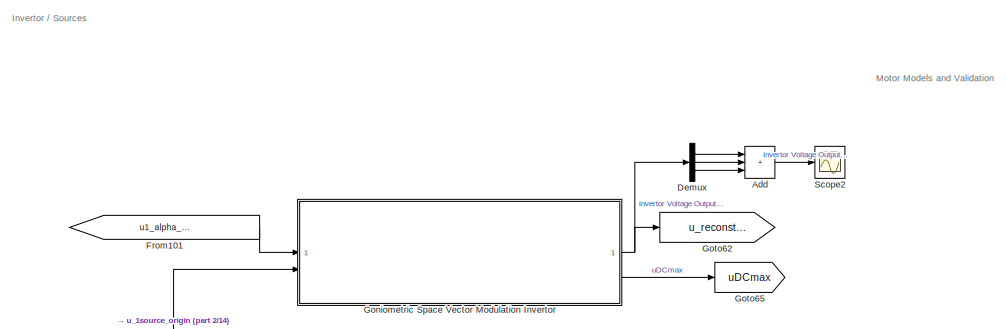
[diagram: root canvas - part 1/14, top left region]
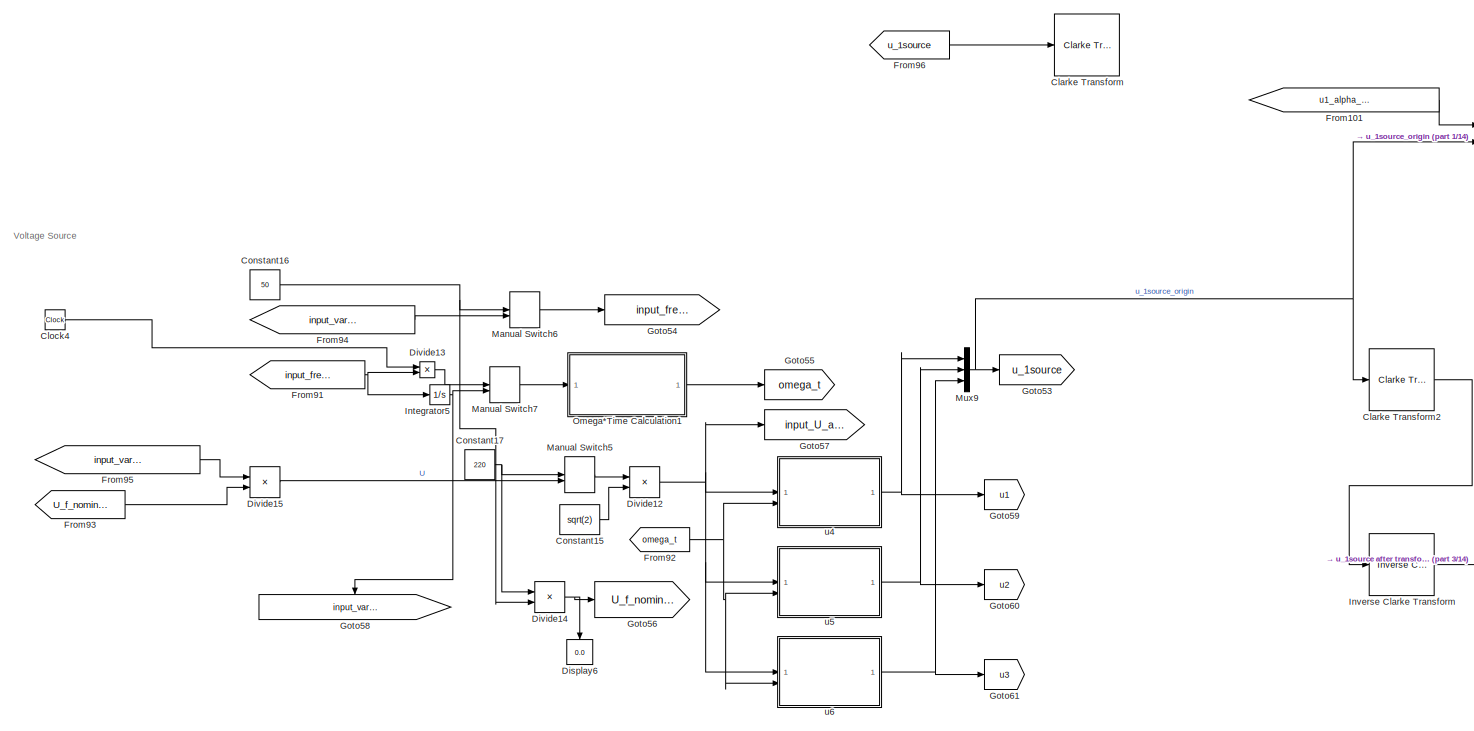
[diagram: root canvas - part 2/14, top left region]
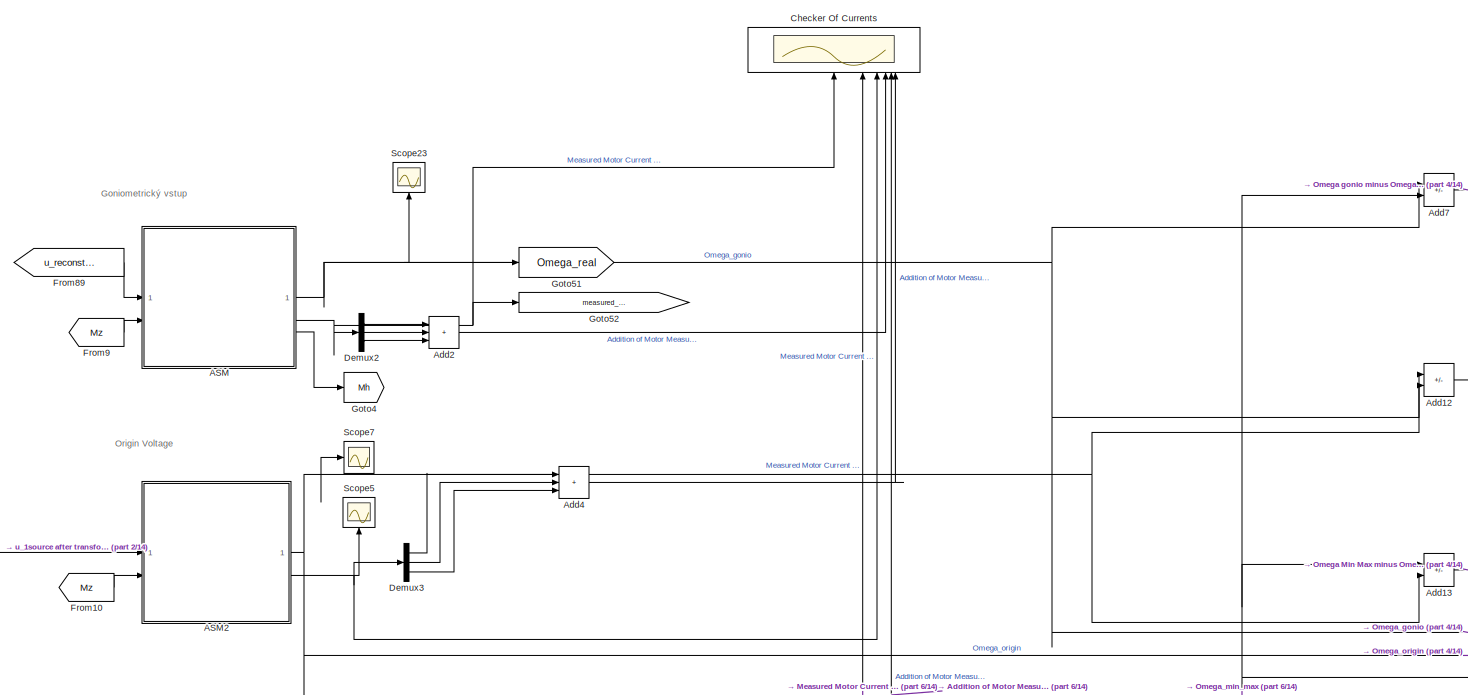
[diagram: root canvas - part 3/14, top center region]
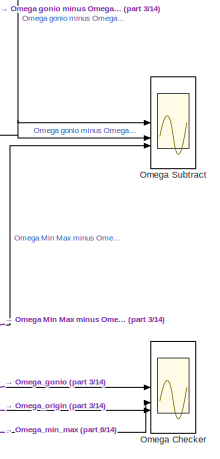
[diagram: root canvas - part 4/14, top center region]
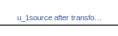
[diagram: root canvas - part 5/14, top center region]
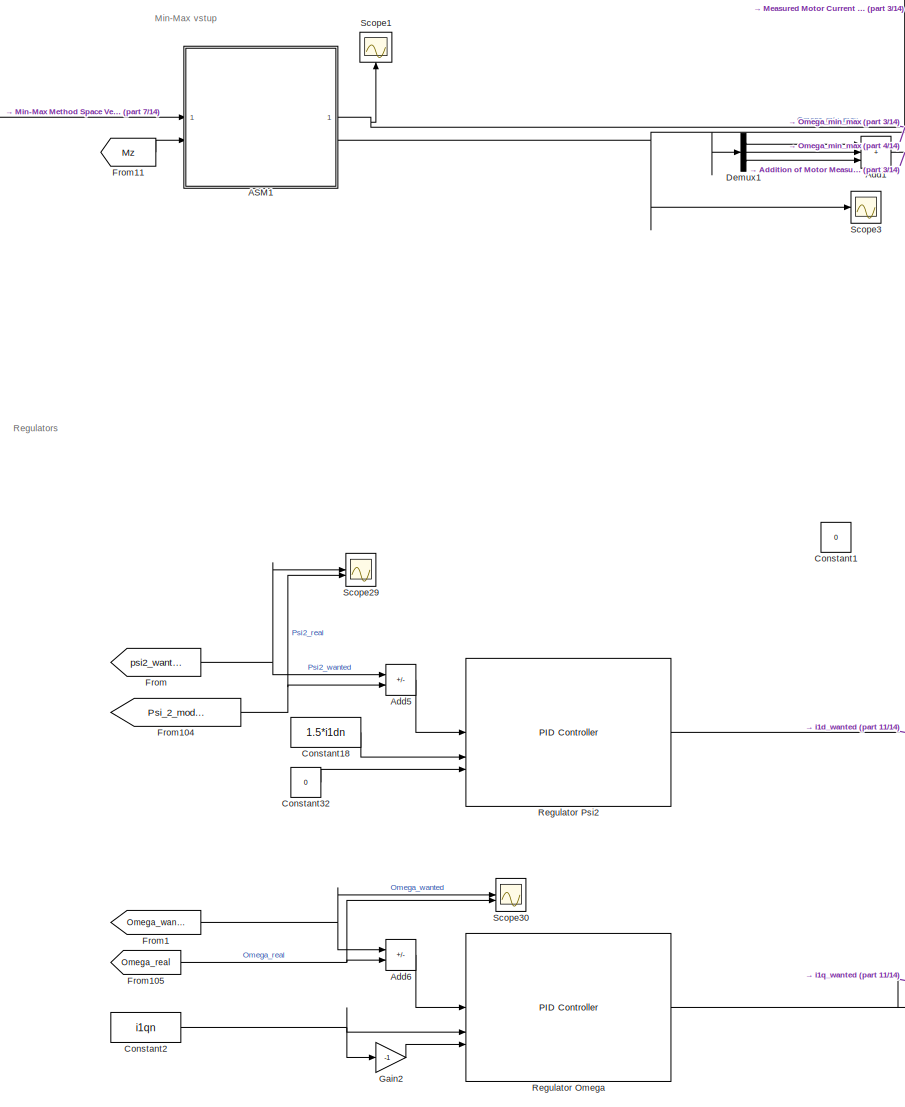
[diagram: root canvas - part 6/14, central region]
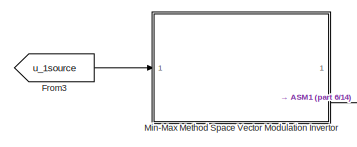
[diagram: root canvas - part 7/14, middle left region]
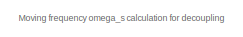
[diagram: root canvas - part 8/14, top right region]
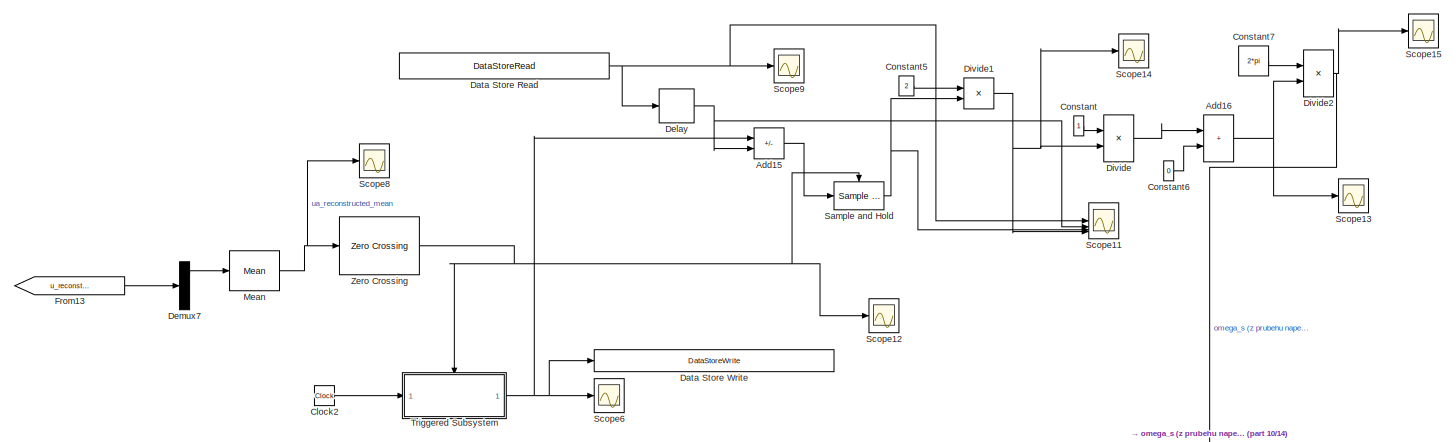
[diagram: root canvas - part 9/14, middle right region]
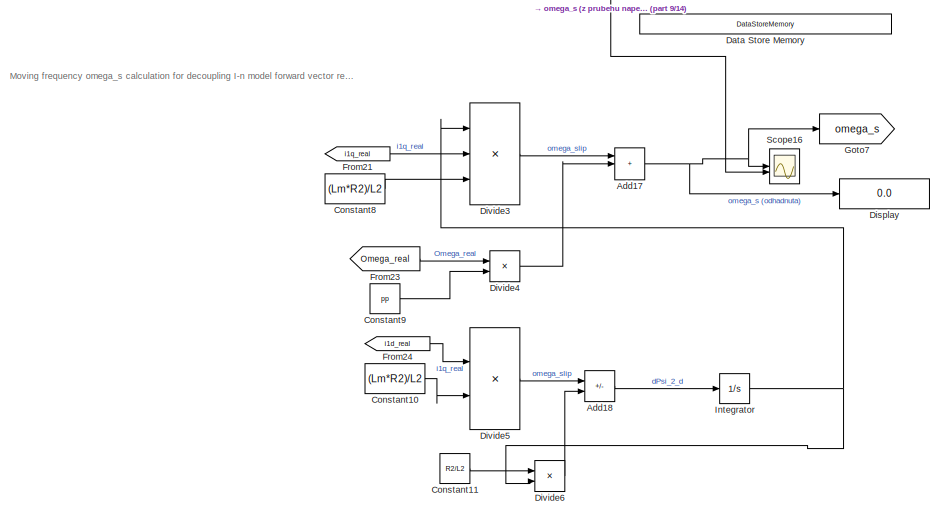
[diagram: root canvas - part 10/14, middle right region]
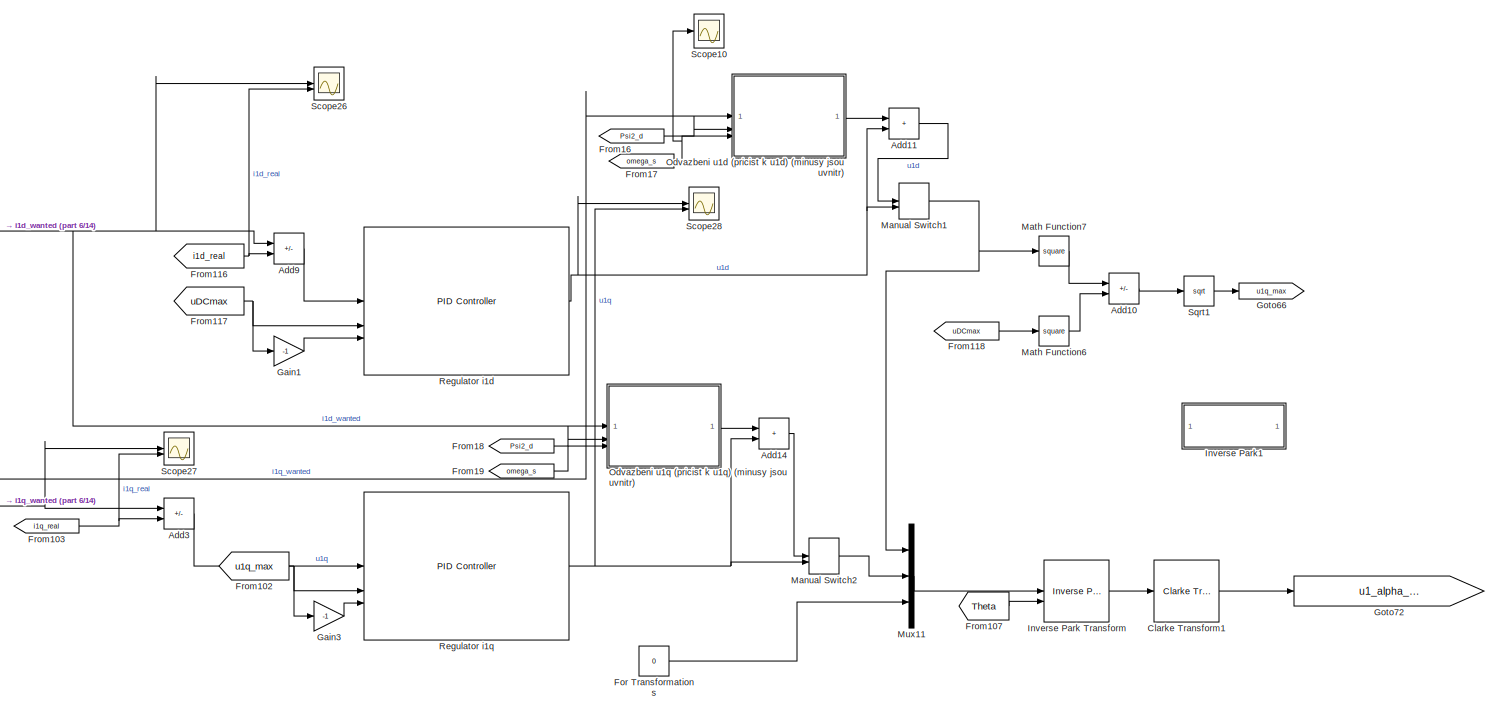
[diagram: root canvas - part 11/14, central region]
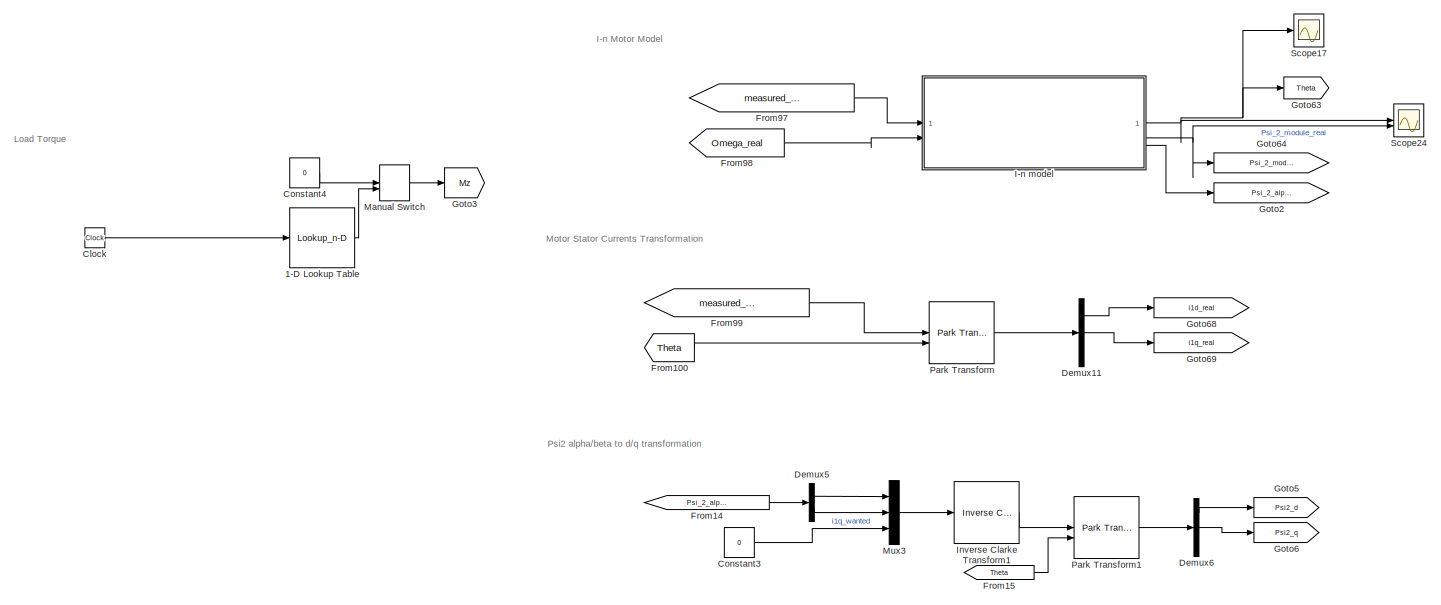
[diagram: root canvas - part 12/14, middle left region]
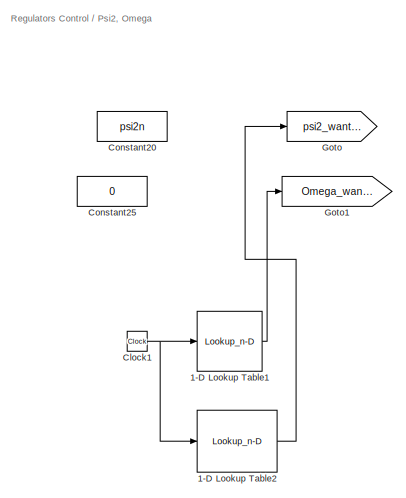
[diagram: root canvas - part 13/14, middle left region]
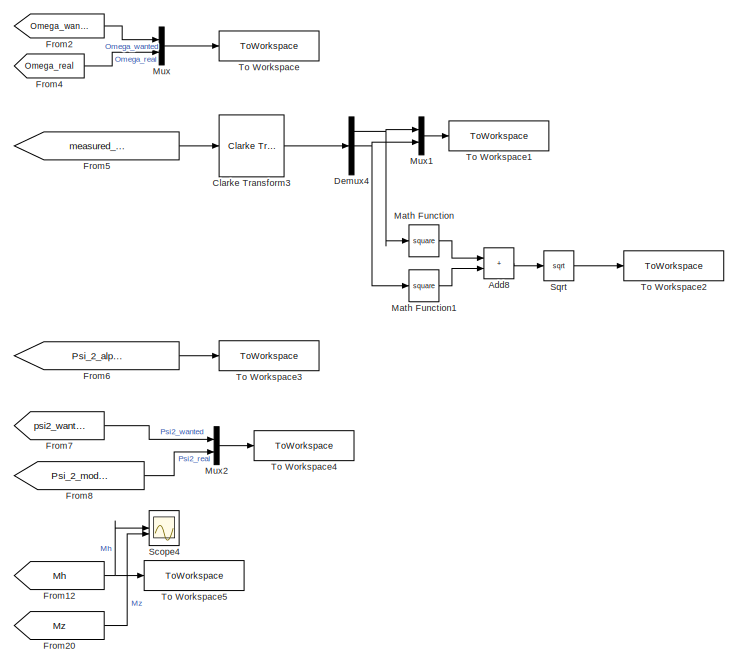
[diagram: root canvas - part 14/14, bottom center region]
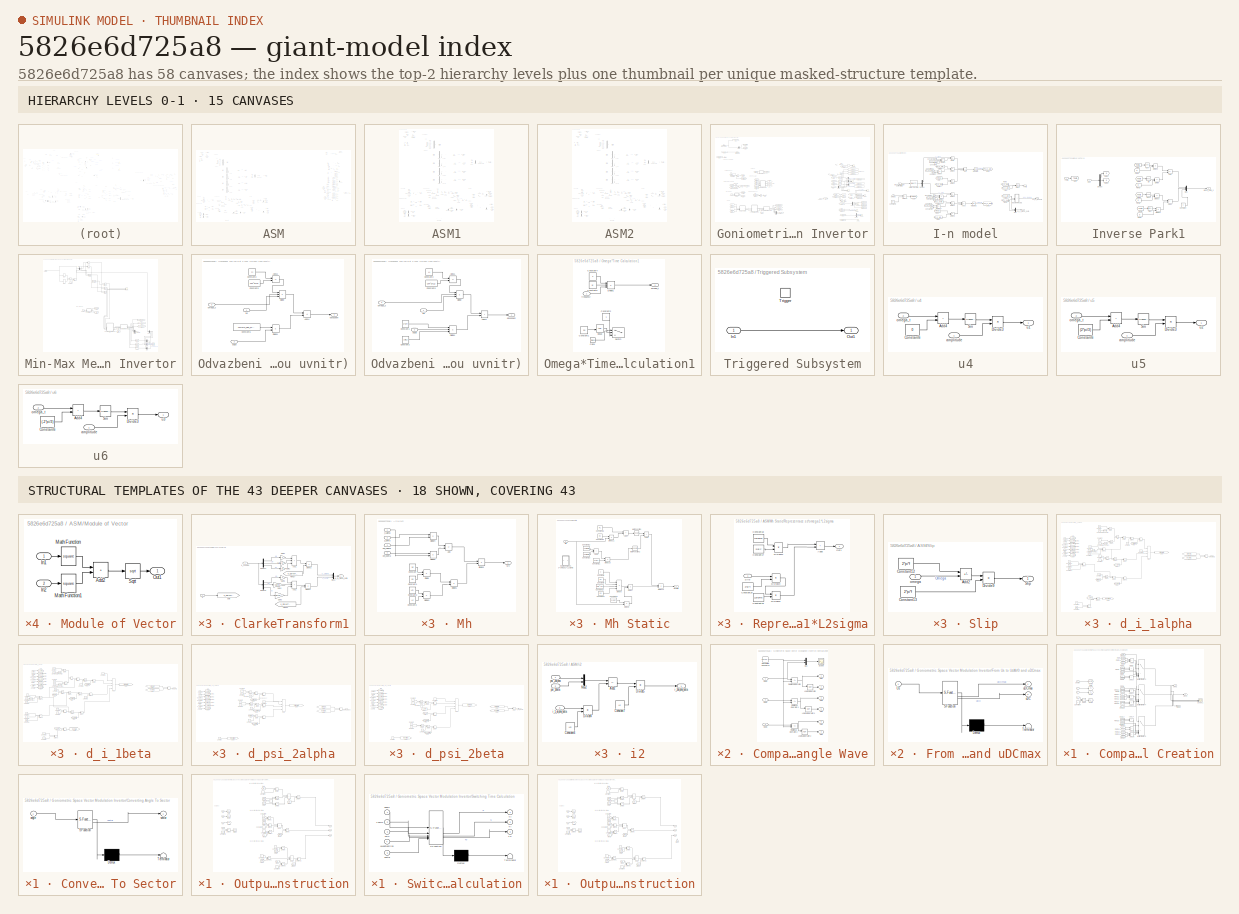
[diagram: thumbnail index - top-2 hierarchy levels (15 canvases) + 18 structural-template representatives of the remaining 43 canvases]
MODEL slx_5826e6d725a8
KIND model
CONFIG AbsTol = auto
CONFIG EnableMultiTasking = off
CONFIG FixedStep = 10e-6
CONFIG InitFcn = model_
CONFIG MaxStep = auto
CONFIG MinStep = auto
CONFIG RelTol = 1e-3
CONFIG SampleTimeConstraint = Unconstrained
CONFIG SolverName = ode4
CONFIG StartTime = 0.0
CONFIG StopTime = 1.3
BLOCK [Lookup_n-D] 1-D Lookup Table
  BreakpointsForDimension1 = [0;1.02;1.020000000009;3]
  InputPortMap = u0
  InternalRulePriority = Speed
  NumberOfTableDimensions = 1
  RndMeth = Simplest
  Table = [0;0;40;40]
BLOCK [Lookup_n-D] 1-D Lookup Table1
  BreakpointsForDimension1 = [0;0.45;0.4500001;1.5]
  InputPortMap = u0
  InternalRulePriority = Speed
  NumberOfTableDimensions = 1
  RndMeth = Simplest
  Table = [0;0;100;100]
BLOCK [Lookup_n-D] 1-D Lookup Table2
  BreakpointsForDimension1 = [0;1.04;1.04000009;3]
  InputPortMap = u0
  InternalRulePriority = Speed
  NumberOfTableDimensions = 1
  RndMeth = Simplest
  Table = [0.9032;0.9032;0.6323;0.6323]
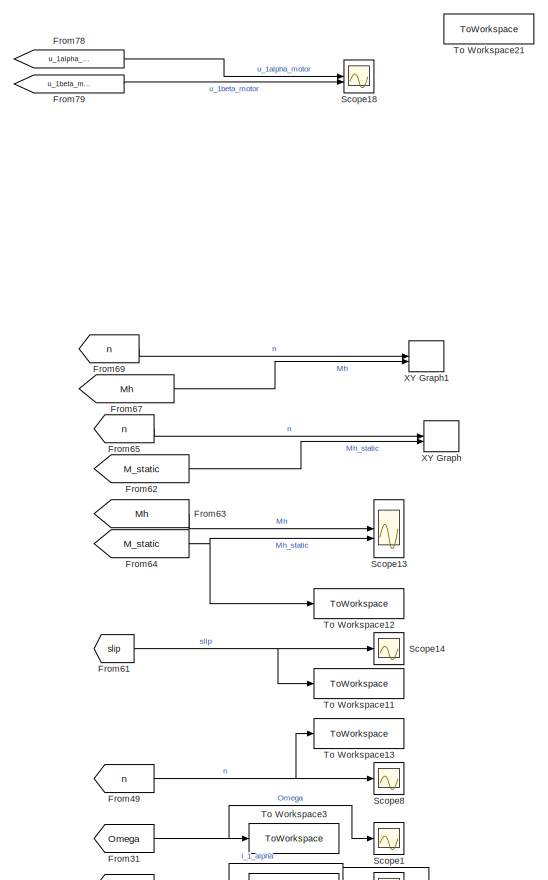
[diagram: ASM - part 1/8, top right region]
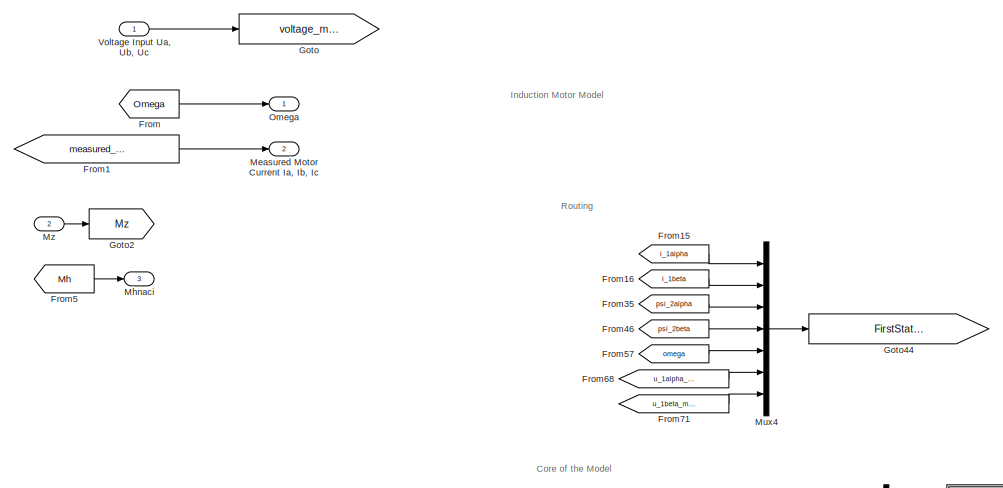
[diagram: ASM - part 2/8, top left region]
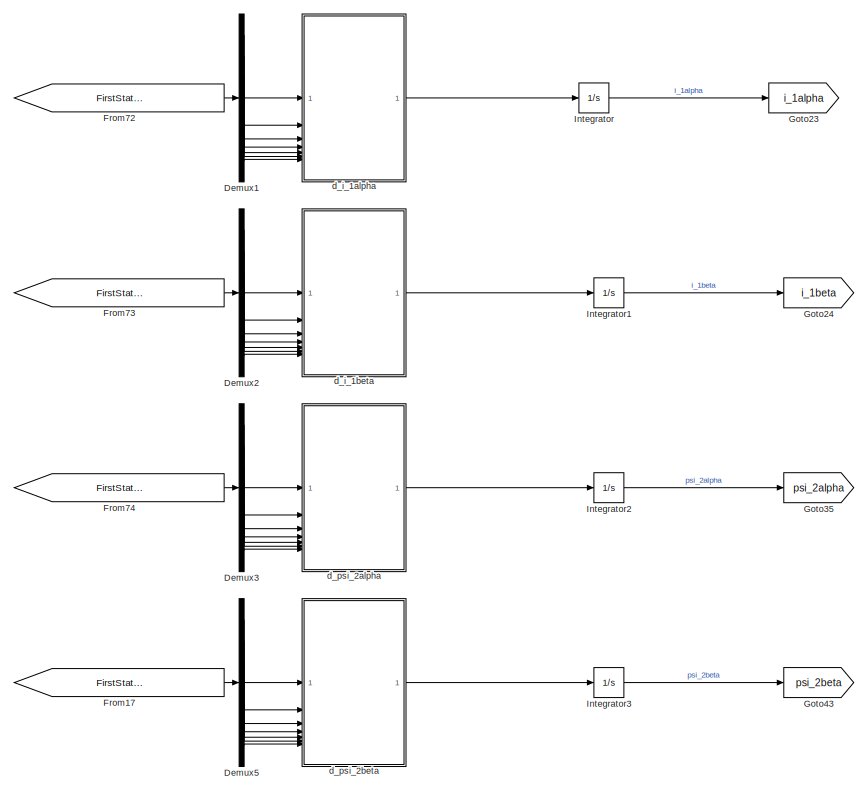
[diagram: ASM - part 3/8, middle left region]
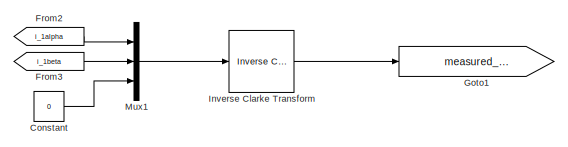
[diagram: ASM - part 4/8, central region]
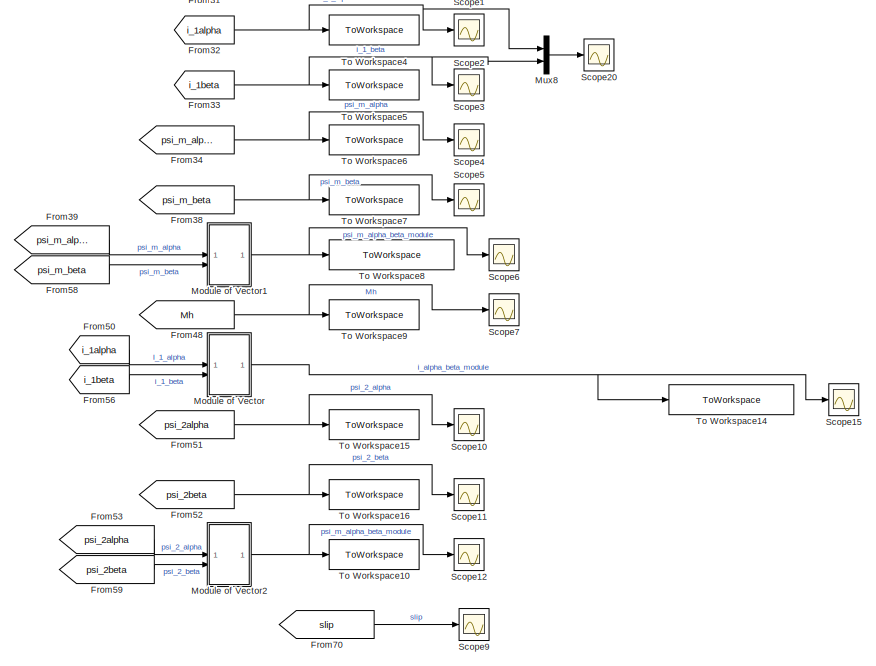
[diagram: ASM - part 5/8, middle right region]
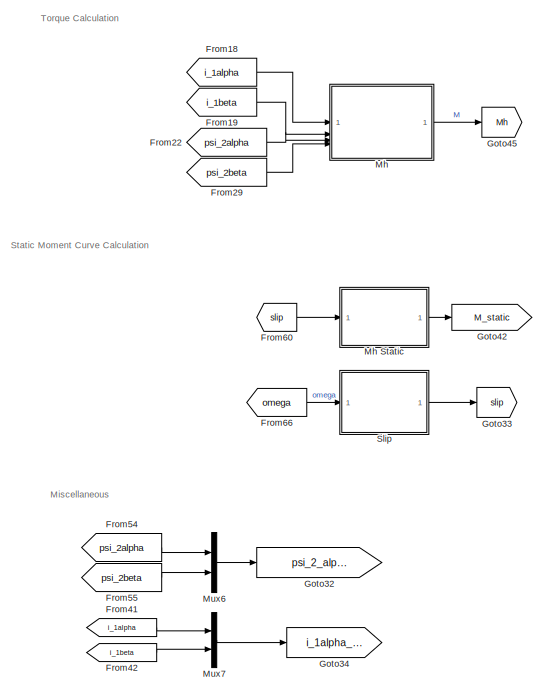
[diagram: ASM - part 6/8, bottom left region]
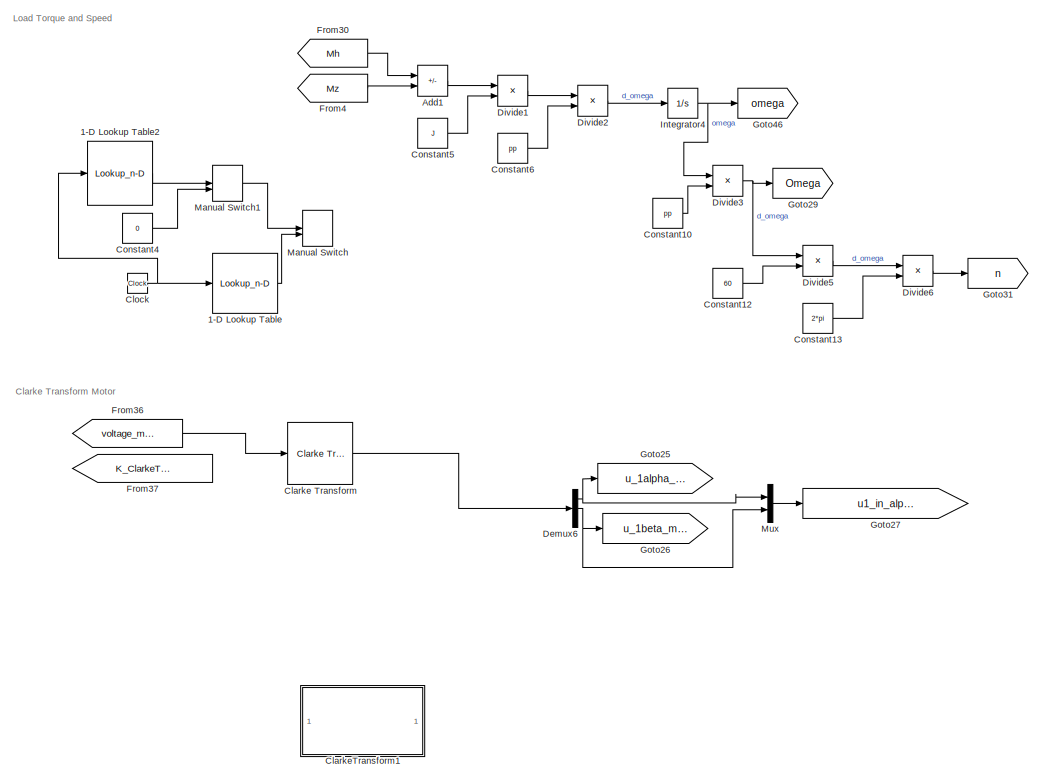
[diagram: ASM - part 7/8, bottom left region]
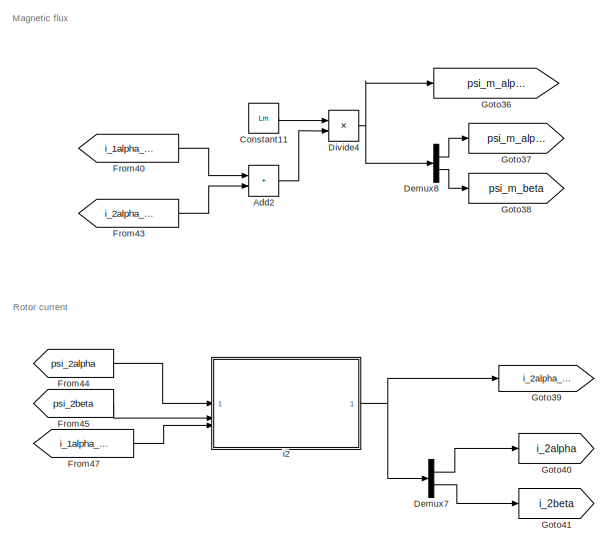
[diagram: ASM - part 8/8, bottom center region]
BLOCK [SubSystem] ASM
BLOCK [Lookup_n-D] ASM/1-D Lookup Table
  BreakpointsForDimension1 = [0;1.00001;1.001;10]
  Commented = on
  InputPortMap = u0
  InternalRulePriority = Speed
  NumberOfTableDimensions = 1
  RndMeth = Simplest
  Table = [0;0;25;25]
BLOCK [Lookup_n-D] ASM/1-D Lookup Table2
  BreakpointsForDimension1 = [1;2;10]
  Commented = on
  InputPortMap = u0
  InternalRulePriority = Speed
  NumberOfTableDimensions = 1
  RndMeth = Simplest
  Table = [0;0;78.48]
BLOCK [Sum] ASM/Add1
  IconShape = rectangular
  Inputs = +-
BLOCK [Sum] ASM/Add2
  IconShape = rectangular
BLOCK [Reference] ASM/Clarke Transform  REF=eeTransforms/Clarke Transform
  LibrarySourceBlock = ee_sl_lib/Mathematical\nTransforms/Clarke Transform
  SourceBlock = eeTransforms/Clarke Transform
  SourceType = Clarke Transform
BLOCK [SubSystem] ASM/ClarkeTransform1
  Commented = on
BLOCK [Sum] ASM/ClarkeTransform1/Add1
  IconShape = rectangular
  Inputs = +++
BLOCK [Sum] ASM/ClarkeTransform1/Add2
  IconShape = rectangular
  Inputs = +++
BLOCK [Demux] ASM/ClarkeTransform1/Demux4
  Outputs = 3
BLOCK [Demux] ASM/ClarkeTransform1/Demux5
  Outputs = 3
BLOCK [Product] ASM/ClarkeTransform1/Divide2
  Inputs = **
BLOCK [Product] ASM/ClarkeTransform1/Divide3
  Inputs = **
BLOCK [From] ASM/ClarkeTransform1/From17
  GotoTag = K_ClarkeTransform
BLOCK [From] ASM/ClarkeTransform1/From19
  GotoTag = K_ClarkeTransform
BLOCK [Gain] ASM/ClarkeTransform1/Gain
  Gain = -1/2
BLOCK [Gain] ASM/ClarkeTransform1/Gain1
  Gain = -1/2
BLOCK [Gain] ASM/ClarkeTransform1/Gain2
  Gain = -sqrt(3)/2
BLOCK [Gain] ASM/ClarkeTransform1/Gain3
  Gain = sqrt(3)/2
BLOCK [Gain] ASM/ClarkeTransform1/Gain4
BLOCK [Gain] ASM/ClarkeTransform1/Gain5
  Gain = 0
BLOCK [Goto] ASM/ClarkeTransform1/Goto
  GotoTag = K_ClarkeTransform
BLOCK [Inport] ASM/ClarkeTransform1/K
  Port = 2
BLOCK [Mux] ASM/ClarkeTransform1/Mux2
  DisplayOption = bar
  Inputs = 2
BLOCK [Outport] ASM/ClarkeTransform1/u1_in_alpha_beta
BLOCK [Inport] ASM/ClarkeTransform1/u_1source
BLOCK [Clock] ASM/Clock
  Commented = on
BLOCK [Constant] ASM/Constant
  Value = 0
BLOCK [Constant] ASM/Constant10
  Value = pp
BLOCK [Constant] ASM/Constant11
  Value = Lm
BLOCK [Constant] ASM/Constant12
  Value = 60
BLOCK [Constant] ASM/Constant13
  Value = 2*pi
BLOCK [Constant] ASM/Constant4
  Commented = on
  Value = 0
BLOCK [Constant] ASM/Constant5
  Value = J
BLOCK [Constant] ASM/Constant6
  Value = pp
BLOCK [Demux] ASM/Demux1
  Outputs = 7
BLOCK [Demux] ASM/Demux2
  Outputs = 7
BLOCK [Demux] ASM/Demux3
  Outputs = 7
BLOCK [Demux] ASM/Demux5
  Outputs = 7
BLOCK [Demux] ASM/Demux6
  Outputs = 3
BLOCK [Demux] ASM/Demux7
  Outputs = 2
BLOCK [Demux] ASM/Demux8
  Outputs = 2
BLOCK [Product] ASM/Divide1
  Inputs = */
BLOCK [Product] ASM/Divide2
  Inputs = **
BLOCK [Product] ASM/Divide3
  Inputs = */
BLOCK [Product] ASM/Divide4
  Inputs = **
BLOCK [Product] ASM/Divide5
  Inputs = **
BLOCK [Product] ASM/Divide6
  Inputs = */
BLOCK [From] ASM/From
  GotoTag = Omega
BLOCK [From] ASM/From1
  GotoTag = measured_motor_current
BLOCK [From] ASM/From15
  GotoTag = i_1alpha
BLOCK [From] ASM/From16
  GotoTag = i_1beta
BLOCK [From] ASM/From17
  GotoTag = FirstStateEquationVariables
BLOCK [From] ASM/From18
  GotoTag = i_1alpha
BLOCK [From] ASM/From19
  GotoTag = i_1beta
BLOCK [From] ASM/From2
  GotoTag = i_1alpha
BLOCK [From] ASM/From22
  GotoTag = psi_2alpha
BLOCK [From] ASM/From29
  GotoTag = psi_2beta
BLOCK [From] ASM/From3
  GotoTag = i_1beta
BLOCK [From] ASM/From30
  GotoTag = Mh
BLOCK [From] ASM/From31
  GotoTag = Omega
BLOCK [From] ASM/From32
  GotoTag = i_1alpha
BLOCK [From] ASM/From33
  GotoTag = i_1beta
BLOCK [From] ASM/From34
  GotoTag = psi_m_alpha
BLOCK [From] ASM/From35
  GotoTag = psi_2alpha
BLOCK [From] ASM/From36
  GotoTag = voltage_motor_input
BLOCK [From] ASM/From37
  GotoTag = K_ClarkeTransform_motor
BLOCK [From] ASM/From38
  GotoTag = psi_m_beta
BLOCK [From] ASM/From39
  GotoTag = psi_m_alpha
BLOCK [From] ASM/From4
  GotoTag = Mz
BLOCK [From] ASM/From40
  GotoTag = i_1alpha_beta
BLOCK [From] ASM/From41
  GotoTag = i_1alpha
BLOCK [From] ASM/From42
  GotoTag = i_1beta
BLOCK [From] ASM/From43
  GotoTag = i_2alpha_beta
BLOCK [From] ASM/From44
  GotoTag = psi_2alpha
BLOCK [From] ASM/From45
  GotoTag = psi_2beta
BLOCK [From] ASM/From46
  GotoTag = psi_2beta
BLOCK [From] ASM/From47
  GotoTag = i_1alpha_beta
BLOCK [From] ASM/From48
  GotoTag = Mh
BLOCK [From] ASM/From49
  GotoTag = n
BLOCK [From] ASM/From5
  GotoTag = Mh
BLOCK [From] ASM/From50
  GotoTag = i_1alpha
BLOCK [From] ASM/From51
  GotoTag = psi_2alpha
BLOCK [From] ASM/From52
  GotoTag = psi_2beta
BLOCK [From] ASM/From53
  GotoTag = psi_2alpha
BLOCK [From] ASM/From54
  GotoTag = psi_2alpha
BLOCK [From] ASM/From55
  GotoTag = psi_2beta
BLOCK [From] ASM/From56
  GotoTag = i_1beta
BLOCK [From] ASM/From57
  GotoTag = omega
BLOCK [From] ASM/From58
  GotoTag = psi_m_beta
BLOCK [From] ASM/From59
  GotoTag = psi_2beta
BLOCK [From] ASM/From60
  GotoTag = slip
BLOCK [From] ASM/From61
  GotoTag = slip
BLOCK [From] ASM/From62
  Commented = on
  GotoTag = M_static
BLOCK [From] ASM/From63
  GotoTag = Mh
BLOCK [From] ASM/From64
  GotoTag = M_static
BLOCK [From] ASM/From65
  Commented = on
  GotoTag = n
BLOCK [From] ASM/From66
  GotoTag = omega
BLOCK [From] ASM/From67
  Commented = on
  GotoTag = Mh
BLOCK [From] ASM/From68
  GotoTag = u_1alpha_motor
BLOCK [From] ASM/From69
  Commented = on
  GotoTag = n
BLOCK [From] ASM/From70
  GotoTag = slip
BLOCK [From] ASM/From71
  GotoTag = u_1beta_motor
BLOCK [From] ASM/From72
  GotoTag = FirstStateEquationVariables
BLOCK [From] ASM/From73
  GotoTag = FirstStateEquationVariables
BLOCK [From] ASM/From74
  GotoTag = FirstStateEquationVariables
BLOCK [From] ASM/From78
  GotoTag = u_1alpha_motor
BLOCK [From] ASM/From79
  GotoTag = u_1beta_motor
BLOCK [Goto] ASM/Goto
  GotoTag = voltage_motor_input
BLOCK [Goto] ASM/Goto1
  GotoTag = measured_motor_current
BLOCK [Goto] ASM/Goto2
  GotoTag = Mz
BLOCK [Goto] ASM/Goto23
  GotoTag = i_1alpha
BLOCK [Goto] ASM/Goto24
  GotoTag = i_1beta
BLOCK [Goto] ASM/Goto25
  GotoTag = u_1alpha_motor
BLOCK [Goto] ASM/Goto26
  GotoTag = u_1beta_motor
BLOCK [Goto] ASM/Goto27
  GotoTag = u1_in_alpha_beta_motor
BLOCK [Goto] ASM/Goto29
  GotoTag = Omega
BLOCK [Goto] ASM/Goto31
  GotoTag = n
BLOCK [Goto] ASM/Goto32
  GotoTag = psi_2_alpha_beta
BLOCK [Goto] ASM/Goto33
  GotoTag = slip
BLOCK [Goto] ASM/Goto34
  GotoTag = i_1alpha_beta
BLOCK [Goto] ASM/Goto35
  GotoTag = psi_2alpha
BLOCK [Goto] ASM/Goto36
  GotoTag = psi_m_alpha_beta
BLOCK [Goto] ASM/Goto37
  GotoTag = psi_m_alpha
BLOCK [Goto] ASM/Goto38
  GotoTag = psi_m_beta
BLOCK [Goto] ASM/Goto39
  GotoTag = i_2alpha_beta
BLOCK [Goto] ASM/Goto40
  GotoTag = i_2alpha
BLOCK [Goto] ASM/Goto41
  GotoTag = i_2beta
BLOCK [Goto] ASM/Goto42
  GotoTag = M_static
BLOCK [Goto] ASM/Goto43
  GotoTag = psi_2beta
BLOCK [Goto] ASM/Goto44
  GotoTag = FirstStateEquationVariables
BLOCK [Goto] ASM/Goto45
  GotoTag = Mh
BLOCK [Goto] ASM/Goto46
  GotoTag = omega
BLOCK [Integrator] ASM/Integrator
BLOCK [Integrator] ASM/Integrator1
BLOCK [Integrator] ASM/Integrator2
BLOCK [Integrator] ASM/Integrator3
BLOCK [Integrator] ASM/Integrator4
BLOCK [Reference] ASM/Inverse Clarke Transform  REF=eeTransforms/Inverse
Clarke Transform
  LibrarySourceBlock = ee_sl_lib/Mathematical\nTransforms/Inverse\nClarke Transform
  SourceBlock = eeTransforms/Inverse\nClarke Transform
  SourceType = Inverse Clarke Transform
BLOCK [ManualSwitch] ASM/Manual Switch
  Commented = on
BLOCK [ManualSwitch] ASM/Manual Switch1
  Commented = on
  CurrentSetting = 0
BLOCK [Outport] ASM/Measured Motor Current Ia, Ib, Ic
  Port = 2
BLOCK [SubSystem] ASM/Mh
BLOCK [SubSystem] ASM/Mh Static
BLOCK [Sum] ASM/Mh Static/Add3
  IconShape = rectangular
BLOCK [Sum] ASM/Mh Static/Add4
  IconShape = rectangular
BLOCK [Sum] ASM/Mh Static/Add6
  IconShape = rectangular
BLOCK [Constant] ASM/Mh Static/Constant10
  Value = 230^(2)
BLOCK [Constant] ASM/Mh Static/Constant11
  Value = pp
BLOCK [Constant] ASM/Mh Static/Constant14
  Value = 2*pi*f
BLOCK [Constant] ASM/Mh Static/Constant15
  Value = R1
BLOCK [Constant] ASM/Mh Static/Constant16
  Value = R2
BLOCK [Constant] ASM/Mh Static/Constant21
  Value = 2*pi*f
BLOCK [Constant] ASM/Mh Static/Constant22
  Value = L1sigma
BLOCK [Constant] ASM/Mh Static/Constant23
  Value = L2sigma
BLOCK [Constant] ASM/Mh Static/Constant8
  Value = 3
BLOCK [Constant] ASM/Mh Static/Constant9
  Value = R2
BLOCK [Product] ASM/Mh Static/Divide10
  Inputs = /*
BLOCK [Product] ASM/Mh Static/Divide11
  Inputs = */
BLOCK [Product] ASM/Mh Static/Divide15
  Inputs = **
BLOCK [Product] ASM/Mh Static/Divide6
  Inputs = ****
BLOCK [Product] ASM/Mh Static/Divide7
  Inputs = */
BLOCK [Product] ASM/Mh Static/Divide8
  Inputs = **
BLOCK [Math] ASM/Mh Static/Math Function
  Operator = square
BLOCK [Math] ASM/Mh Static/Math Function2
  Operator = square
BLOCK [Outport] ASM/Mh Static/Mh Static
BLOCK [SubSystem] ASM/Mh Static/Reprezentace s s*omega1*L2sigma
BLOCK [Sum] ASM/Mh Static/Reprezentace s s*omega1*L2sigma/Add5
  IconShape = rectangular
BLOCK [Constant] ASM/Mh Static/Reprezentace s s*omega1*L2sigma/Constant17
  Value = 2*pi*f
BLOCK [Constant] ASM/Mh Static/Reprezentace s s*omega1*L2sigma/Constant18
  Value = L1sigma
BLOCK [Constant] ASM/Mh Static/Reprezentace s s*omega1*L2sigma/Constant19
  Value = L2sigma
BLOCK [Constant] ASM/Mh Static/Reprezentace s s*omega1*L2sigma/Constant20
  Value = 2*pi*f
BLOCK [Product] ASM/Mh Static/Reprezentace s s*omega1*L2sigma/Divide12
  Inputs = **
BLOCK [Product] ASM/Mh Static/Reprezentace s s*omega1*L2sigma/Divide13
  Inputs = **
BLOCK [Product] ASM/Mh Static/Reprezentace s s*omega1*L2sigma/Divide14
  Inputs = **
BLOCK [Outport] ASM/Mh Static/Reprezentace s s*omega1*L2sigma/Out1
BLOCK [Inport] ASM/Mh Static/Reprezentace s s*omega1*L2sigma/Slip
BLOCK [Inport] ASM/Mh Static/Slip
BLOCK [Sum] ASM/Mh/Add
  IconShape = rectangular
  Inputs = +-
BLOCK [Constant] ASM/Mh/Constant
  Value = 3/2
BLOCK [Constant] ASM/Mh/Constant1
  Value = pp
BLOCK [Constant] ASM/Mh/Constant2
  Value = Lm
BLOCK [Constant] ASM/Mh/Constant3
  Value = L2
BLOCK [Product] ASM/Mh/Divide
  Inputs = **
BLOCK [Product] ASM/Mh/Divide1
  Inputs = **
BLOCK [Product] ASM/Mh/Divide2
  Inputs = */
BLOCK [Product] ASM/Mh/Divide3
  Inputs = **
BLOCK [Product] ASM/Mh/Divide4
  Inputs = **
BLOCK [Product] ASM/Mh/Divide5
  Inputs = **
BLOCK [Outport] ASM/Mh/Mh
BLOCK [Inport] ASM/Mh/i_1alpha
BLOCK [Inport] ASM/Mh/i_1beta
  Port = 2
BLOCK [Inport] ASM/Mh/phi_2alpha
  Port = 3
BLOCK [Inport] ASM/Mh/phi_2beta
  Port = 4
BLOCK [Outport] ASM/Mhnaci
  Port = 3
BLOCK [SubSystem] ASM/Module of Vector
BLOCK [Sum] ASM/Module of Vector/Add2
  IconShape = rectangular
BLOCK [Inport] ASM/Module of Vector/In1
BLOCK [Inport] ASM/Module of Vector/In2
  Port = 2
BLOCK [Math] ASM/Module of Vector/Math Function
  Operator = square
BLOCK [Math] ASM/Module of Vector/Math Function1
  Operator = square
BLOCK [Outport] ASM/Module of Vector/Out1
BLOCK [Sqrt] ASM/Module of Vector/Sqrt
BLOCK [SubSystem] ASM/Module of Vector1
BLOCK [Sum] ASM/Module of Vector1/Add2
  IconShape = rectangular
BLOCK [Inport] ASM/Module of Vector1/In1
BLOCK [Inport] ASM/Module of Vector1/In2
  Port = 2
BLOCK [Math] ASM/Module of Vector1/Math Function
  Operator = square
BLOCK [Math] ASM/Module of Vector1/Math Function1
  Operator = square
BLOCK [Outport] ASM/Module of Vector1/Out1
BLOCK [Sqrt] ASM/Module of Vector1/Sqrt
BLOCK [SubSystem] ASM/Module of Vector2
BLOCK [Sum] ASM/Module of Vector2/Add2
  IconShape = rectangular
BLOCK [Inport] ASM/Module of Vector2/In1
BLOCK [Inport] ASM/Module of Vector2/In2
  Port = 2
BLOCK [Math] ASM/Module of Vector2/Math Function
  Operator = square
BLOCK [Math] ASM/Module of Vector2/Math Function1
  Operator = square
BLOCK [Outport] ASM/Module of Vector2/Out1
BLOCK [Sqrt] ASM/Module of Vector2/Sqrt
BLOCK [Mux] ASM/Mux
  DisplayOption = bar
  Inputs = 2
BLOCK [Mux] ASM/Mux1
  DisplayOption = bar
  Inputs = 3
BLOCK [Mux] ASM/Mux4
  DisplayOption = bar
  Inputs = 7
BLOCK [Mux] ASM/Mux6
  DisplayOption = bar
  Inputs = 2
BLOCK [Mux] ASM/Mux7
  DisplayOption = bar
  Inputs = 2
BLOCK [Mux] ASM/Mux8
  DisplayOption = bar
  Inputs = 2
BLOCK [Inport] ASM/Mz
  Port = 2
BLOCK [Outport] ASM/Omega
BLOCK [Scope] ASM/Scope1
  Floating = off
  NumInputPorts = 1
  ScopeSpecificationString = Simulink.scopes.TimeScopeBlockCfg('CurrentConfiguration', extmgr.ConfigurationSet(extmgr.Configuration('Core','General UI',true),extmgr.Configuration('Core','Source UI',true),extmgr.Configuration('Sources','WiredSimulink',true,'DataLoggingVariableName','ScopeData2'),extmgr.Configuration('Visuals','Time Domain',true,'SerializedDisplays',{struct('MinYLimReal','-19.65877','MaxYLimReal','176.92894','Y...<+1448ch>
BLOCK [Scope] ASM/Scope10
  Floating = off
  NumInputPorts = 1
  ScopeSpecificationString = Simulink.scopes.TimeScopeBlockCfg('CurrentConfiguration', extmgr.ConfigurationSet(extmgr.Configuration('Core','General UI',true),extmgr.Configuration('Core','Source UI',true),extmgr.Configuration('Sources','WiredSimulink',true,'DataLoggingVariableName','ScopeData3'),extmgr.Configuration('Visuals','Time Domain',true,'SerializedDisplays',{struct('MinYLimReal','-1.26191','MaxYLimReal','1.26156','YLab...<+1370ch>
BLOCK [Scope] ASM/Scope11
  Floating = off
  NumInputPorts = 1
  ScopeSpecificationString = Simulink.scopes.TimeScopeBlockCfg('CurrentConfiguration', extmgr.ConfigurationSet(extmgr.Configuration('Core','General UI',true),extmgr.Configuration('Core','Source UI',true),extmgr.Configuration('Sources','WiredSimulink',true,'DataLoggingVariableName','ScopeData4'),extmgr.Configuration('Visuals','Time Domain',true,'SerializedDisplays',{struct('MinYLimReal','-1.26139','MaxYLimReal','1.26202','YLab...<+1369ch>
BLOCK [Scope] ASM/Scope12
  Floating = off
  NumInputPorts = 1
  ScopeSpecificationString = Simulink.scopes.TimeScopeBlockCfg('CurrentConfiguration', extmgr.ConfigurationSet(extmgr.Configuration('Core','General UI',true),extmgr.Configuration('Core','Source UI',true),extmgr.Configuration('Sources','WiredSimulink',true,'DataLoggingVariableName','ScopeData5'),extmgr.Configuration('Visuals','Time Domain',true,'SerializedDisplays',{struct('MinYLimReal','-0.12621','MaxYLimReal','1.13591','YLab...<+1431ch>
BLOCK [Scope] ASM/Scope13
  Floating = off
  NumInputPorts = 2
  ScopeSpecificationString = Simulink.scopes.TimeScopeBlockCfg('CurrentConfiguration', extmgr.ConfigurationSet(extmgr.Configuration('Core','General UI',true),extmgr.Configuration('Core','Source UI',true),extmgr.Configuration('Sources','WiredSimulink',true,'DataLoggingVariableName','ScopeData6'),extmgr.Configuration('Visuals','Time Domain',true,'SerializedDisplays',{struct('MinYLimReal','-152.49004','MaxYLimReal','350.07124','...<+2094ch>
BLOCK [Scope] ASM/Scope14
  Floating = off
  NumInputPorts = 1
  ScopeSpecificationString = Simulink.scopes.TimeScopeBlockCfg('CurrentConfiguration', extmgr.ConfigurationSet(extmgr.Configuration('Core','General UI',true),extmgr.Configuration('Core','Source UI',true),extmgr.Configuration('Sources','WiredSimulink',true,'DataLoggingVariableName','ScopeData7'),extmgr.Configuration('Visuals','Time Domain',true),extmgr.Configuration('Tools','Plot Navigation',true),extmgr.Configuration('Tools',...<+40ch>
BLOCK [Scope] ASM/Scope15
  Floating = off
  NumInputPorts = 1
  ScopeSpecificationString = Simulink.scopes.TimeScopeBlockCfg('CurrentConfiguration', extmgr.ConfigurationSet(extmgr.Configuration('Core','General UI',true),extmgr.Configuration('Core','Source UI',true),extmgr.Configuration('Sources','WiredSimulink',true,'DataLoggingVariableName','ScopeData8'),extmgr.Configuration('Visuals','Time Domain',true,'SerializedDisplays',{struct('MinYLimReal','-14.5556','MaxYLimReal','291.24811','YL...<+1460ch>
BLOCK [Scope] ASM/Scope18
  Floating = off
  NumInputPorts = 2
  ScopeSpecificationString = Simulink.scopes.TimeScopeBlockCfg('CurrentConfiguration', extmgr.ConfigurationSet(extmgr.Configuration('Core','General UI',true),extmgr.Configuration('Core','Source UI',true),extmgr.Configuration('Sources','WiredSimulink',true,'DataLoggingVariableName','ScopeData11'),extmgr.Configuration('Visuals','Time Domain',true,'SerializedDisplays',{struct('MinYLimReal','-415.47679','MaxYLimReal','391.61207',...<+2100ch>
BLOCK [Scope] ASM/Scope2
  Floating = off
  NumInputPorts = 1
  ScopeSpecificationString = Simulink.scopes.TimeScopeBlockCfg('CurrentConfiguration', extmgr.ConfigurationSet(extmgr.Configuration('Core','General UI',true),extmgr.Configuration('Core','Source UI',true),extmgr.Configuration('Sources','WiredSimulink',true,'DataLoggingVariableName','ScopeData12'),extmgr.Configuration('Visuals','Time Domain',true,'SerializedDisplays',{struct('MinYLimReal','-314.32778','MaxYLimReal','274.80014',...<+1456ch>
BLOCK [Scope] ASM/Scope20
  Floating = off
  NumInputPorts = 1
  ScopeSpecificationString = Simulink.scopes.TimeScopeBlockCfg('CurrentConfiguration', extmgr.ConfigurationSet(extmgr.Configuration('Core','General UI',true),extmgr.Configuration('Core','Source UI',true),extmgr.Configuration('Sources','WiredSimulink',true,'DataLoggingVariableName','ScopeData13'),extmgr.Configuration('Visuals','Time Domain',true,'SerializedDisplays',{struct('MinYLimReal','-283.27283','MaxYLimReal','327.84965',...<+1467ch>
BLOCK [Scope] ASM/Scope3
  Floating = off
  NumInputPorts = 1
  ScopeSpecificationString = Simulink.scopes.TimeScopeBlockCfg('CurrentConfiguration', extmgr.ConfigurationSet(extmgr.Configuration('Core','General UI',true),extmgr.Configuration('Core','Source UI',true),extmgr.Configuration('Sources','WiredSimulink',true,'DataLoggingVariableName','ScopeData14'),extmgr.Configuration('Visuals','Time Domain',true,'SerializedDisplays',{struct('MinYLimReal','-109.46548','MaxYLimReal','113.10964',...<+1382ch>
BLOCK [Scope] ASM/Scope4
  Floating = off
  NumInputPorts = 1
  ScopeSpecificationString = Simulink.scopes.TimeScopeBlockCfg('CurrentConfiguration', extmgr.ConfigurationSet(extmgr.Configuration('Core','General UI',true),extmgr.Configuration('Core','Source UI',true),extmgr.Configuration('Sources','WiredSimulink',true,'DataLoggingVariableName','ScopeData15'),extmgr.Configuration('Visuals','Time Domain',true,'SerializedDisplays',{struct('MinYLimReal','-0.89475','MaxYLimReal','0.89497','YLa...<+1371ch>
BLOCK [Scope] ASM/Scope5
  Floating = off
  NumInputPorts = 1
  ScopeSpecificationString = Simulink.scopes.TimeScopeBlockCfg('CurrentConfiguration', extmgr.ConfigurationSet(extmgr.Configuration('Core','General UI',true),extmgr.Configuration('Core','Source UI',true),extmgr.Configuration('Sources','WiredSimulink',true,'DataLoggingVariableName','ScopeData16'),extmgr.Configuration('Visuals','Time Domain',true,'SerializedDisplays',{struct('MinYLimReal','-0.14485','MaxYLimReal','0.01609','YLa...<+1370ch>
BLOCK [Scope] ASM/Scope6
  Floating = off
  NumInputPorts = 1
  ScopeSpecificationString = Simulink.scopes.TimeScopeBlockCfg('CurrentConfiguration', extmgr.ConfigurationSet(extmgr.Configuration('Core','General UI',true),extmgr.Configuration('Core','Source UI',true),extmgr.Configuration('Sources','WiredSimulink',true,'DataLoggingVariableName','ScopeData17'),extmgr.Configuration('Visuals','Time Domain',true,'SerializedDisplays',{struct('MinYLimReal','-0.08953','MaxYLimReal','0.80575','YLa...<+1408ch>
BLOCK [Scope] ASM/Scope7
  Floating = off
  NumInputPorts = 1
  ScopeSpecificationString = Simulink.scopes.TimeScopeBlockCfg('CurrentConfiguration', extmgr.ConfigurationSet(extmgr.Configuration('Core','General UI',true),extmgr.Configuration('Core','Source UI',true),extmgr.Configuration('Sources','WiredSimulink',true,'DataLoggingVariableName','ScopeData18'),extmgr.Configuration('Visuals','Time Domain',true,'SerializedDisplays',{struct('MinYLimReal','-57.09539','MaxYLimReal','284.27984','...<+1419ch>
BLOCK [Scope] ASM/Scope8
  Floating = off
  NumInputPorts = 1
  ScopeSpecificationString = Simulink.scopes.TimeScopeBlockCfg('CurrentConfiguration', extmgr.ConfigurationSet(extmgr.Configuration('Core','General UI',true),extmgr.Configuration('Core','Source UI',true),extmgr.Configuration('Sources','WiredSimulink',true,'DataLoggingVariableName','ScopeData19'),extmgr.Configuration('Visuals','Time Domain',true,'SerializedDisplays',{struct('MinYLimReal','-511.51699','MaxYLimReal','1735.12295'...<+1453ch>
BLOCK [Scope] ASM/Scope9
  Floating = off
  NumInputPorts = 1
  ScopeSpecificationString = Simulink.scopes.TimeScopeBlockCfg('CurrentConfiguration', extmgr.ConfigurationSet(extmgr.Configuration('Core','General UI',true),extmgr.Configuration('Core','Source UI',true),extmgr.Configuration('Sources','WiredSimulink',true,'DataLoggingVariableName','ScopeData20'),extmgr.Configuration('Visuals','Time Domain',true,'SerializedDisplays',{struct('MinYLimReal','-0.96553','MaxYLimReal','1.21847','YLa...<+1437ch>
BLOCK [SubSystem] ASM/Slip
BLOCK [Sum] ASM/Slip/Add2
  IconShape = rectangular
  Inputs = +-
BLOCK [Constant] ASM/Slip/Constant12
  Value = 2*pi*f
BLOCK [Constant] ASM/Slip/Constant13
  Value = 2*pi*f
BLOCK [Product] ASM/Slip/Divide9
  Inputs = */
BLOCK [Outport] ASM/Slip/Slip
BLOCK [Inport] ASM/Slip/omega
BLOCK [ToWorkspace] ASM/To Workspace10
  FixptAsFi = on
  MaxDataPoints = inf
  SampleTime = -1
  SaveFormat = Timeseries
  VariableName = psi_2_alpha_beta_module1
BLOCK [ToWorkspace] ASM/To Workspace11
  FixptAsFi = on
  MaxDataPoints = inf
  SampleTime = -1
  SaveFormat = Timeseries
  VariableName = slip1
BLOCK [ToWorkspace] ASM/To Workspace12
  FixptAsFi = on
  MaxDataPoints = inf
  SampleTime = -1
  SaveFormat = Timeseries
  VariableName = mh_static1
BLOCK [ToWorkspace] ASM/To Workspace13
  FixptAsFi = on
  MaxDataPoints = inf
  SampleTime = -1
  SaveFormat = Timeseries
  VariableName = n1
BLOCK [ToWorkspace] ASM/To Workspace14
  FixptAsFi = on
  MaxDataPoints = inf
  SampleTime = -1
  SaveFormat = Timeseries
  VariableName = i_1_alpha_beta_module1
BLOCK [ToWorkspace] ASM/To Workspace15
  FixptAsFi = on
  MaxDataPoints = inf
  SampleTime = -1
  SaveFormat = Timeseries
  VariableName = psi_2_alpha1
BLOCK [ToWorkspace] ASM/To Workspace16
  FixptAsFi = on
  MaxDataPoints = inf
  SampleTime = -1
  SaveFormat = Timeseries
  VariableName = psi_2_beta1
BLOCK [ToWorkspace] ASM/To Workspace21
  FixptAsFi = on
  MaxDataPoints = inf
  SampleTime = -1
  SaveFormat = Timeseries
  VariableName = u3_source1
BLOCK [ToWorkspace] ASM/To Workspace3
  FixptAsFi = on
  MaxDataPoints = inf
  SampleTime = -1
  SaveFormat = Timeseries
  VariableName = Omega1
BLOCK [ToWorkspace] ASM/To Workspace4
  FixptAsFi = on
  MaxDataPoints = inf
  SampleTime = -1
  SaveFormat = Timeseries
  VariableName = i_1alpha1
BLOCK [ToWorkspace] ASM/To Workspace5
  FixptAsFi = on
  MaxDataPoints = inf
  SampleTime = -1
  SaveFormat = Timeseries
  VariableName = i_1beta1
BLOCK [ToWorkspace] ASM/To Workspace6
  FixptAsFi = on
  MaxDataPoints = inf
  SampleTime = -1
  SaveFormat = Timeseries
  VariableName = psi_m_alpha1
BLOCK [ToWorkspace] ASM/To Workspace7
  FixptAsFi = on
  MaxDataPoints = inf
  SampleTime = -1
  SaveFormat = Timeseries
  VariableName = psi_m_beta1
BLOCK [ToWorkspace] ASM/To Workspace8
  FixptAsFi = on
  MaxDataPoints = inf
  SampleTime = -1
  SaveFormat = Timeseries
  VariableName = psi_m_alpha_beta_module1
BLOCK [ToWorkspace] ASM/To Workspace9
  FixptAsFi = on
  MaxDataPoints = inf
  SampleTime = -1
  SaveFormat = Timeseries
  VariableName = Mh1
BLOCK [Inport] ASM/Voltage Input Ua, Ub, Uc
BLOCK [Record] ASM/XY Graph
  Commented = on
  CompatibilityTag = XY
  FileSettingsInternal = {"entries":[{"content":{"excelSettings":{"content":{},"type":"Streamout.ExcelSettings"}},"type":"Streamout.FileSettingStorage","uuid":"c8a957cb-e6b8-4b51-a749-9efeca271d01"}],"packageUris":["http://schema.mathworks.com/mf0/streamout_blocks/R2020a"],"version":"1.0"}
  Layout = [1 1]
  SignalsInternal = {"entries":[{"content":{"signals":[{"content":{"blockPath":["model_vec/ASM/XY Graph"],"channel":[],"dimensions":[1],"domain":"model_vec/ASM/XY Graph","lineColor":"#a2142f","plots":[1],"port":1,"sid":[],"signalID":890,"signalName":"n"},"type":"RecordBlkView.Signal","uuid":"11359bd5-c93e-4a74-89aa-0be98840e253"},{"content":{"blockPath":["model_vec/ASM/XY Graph"],"channel":[],"dimensions":[1],"domain...<+373ch>
  VisualizationBindings = {"xyplotplugin":{"info":[{"series":[{"bindingParametersList":[{"parameter":"X-Axis","signalID":890,"signalName":"n"},{"parameter":"Y-Axis","signalID":893,"signalName":"Mh_static"}],"seriesID":16905}],"subplotID":1}]}}
BLOCK [Record] ASM/XY Graph1
  Commented = on
  CompatibilityTag = XY
  FileSettingsInternal = {"entries":[{"content":{"excelSettings":{"content":{},"type":"Streamout.ExcelSettings"}},"type":"Streamout.FileSettingStorage","uuid":"ece9c392-97d7-42b2-8769-a4c18fe8b02c"}],"packageUris":["http://schema.mathworks.com/mf0/streamout_blocks/R2020a"],"version":"1.0"}
  Layout = [1 1]
  SignalsInternal = {"entries":[{"content":{"signals":[{"content":{"blockPath":["model_vec/ASM/XY Graph1"],"channel":[],"dimensions":[1],"domain":"model_vec/ASM/XY Graph1","lineColor":"#a2142f","plots":[1],"port":1,"sid":[],"signalID":898,"signalName":"n"},"type":"RecordBlkView.Signal","uuid":"95364762-3763-4469-81c3-67c64f8346b3"},{"content":{"blockPath":["model_vec/ASM/XY Graph1"],"channel":[],"dimensions":[1],"dom...<+370ch>
  VisualizationBindings = {"xyplotplugin":{"info":[{"series":[{"bindingParametersList":[{"parameter":"X-Axis","signalID":898,"signalName":"n"},{"parameter":"Y-Axis","signalID":901,"signalName":"Mh"}],"seriesID":35191}],"subplotID":1}]}}
BLOCK [SubSystem] ASM/d_i_1alpha
BLOCK [Sum] ASM/d_i_1alpha/Add
  IconShape = rectangular
BLOCK [Sum] ASM/d_i_1alpha/Add1
  IconShape = rectangular
  Inputs = ++++
BLOCK [Sum] ASM/d_i_1alpha/Add2
  IconShape = rectangular
BLOCK [Constant] ASM/d_i_1alpha/Constant
  Value = R2
BLOCK [Constant] ASM/d_i_1alpha/Constant1
  Value = Lm
BLOCK [Constant] ASM/d_i_1alpha/Constant10
  Value = L1
BLOCK [Constant] ASM/d_i_1alpha/Constant11
  Value = sigma
BLOCK [Constant] ASM/d_i_1alpha/Constant12
  Value = L1
BLOCK [Constant] ASM/d_i_1alpha/Constant13
  Value = L1
BLOCK [Constant] ASM/d_i_1alpha/Constant14
  Value = sigma
BLOCK [Constant] ASM/d_i_1alpha/Constant15
  Value = L2
BLOCK [Constant] ASM/d_i_1alpha/Constant16
  Value = sigma
BLOCK [Constant] ASM/d_i_1alpha/Constant2
  Value = L2
BLOCK [Constant] ASM/d_i_1alpha/Constant3
  Value = R1
BLOCK [Constant] ASM/d_i_1alpha/Constant4
  Value = -1
BLOCK [Constant] ASM/d_i_1alpha/Constant5
  Value = R2
BLOCK [Constant] ASM/d_i_1alpha/Constant6
  Value = Lm
BLOCK [Constant] ASM/d_i_1alpha/Constant7
  Value = Lm
BLOCK [Constant] ASM/d_i_1alpha/Constant8
  Value = 0
BLOCK [Constant] ASM/d_i_1alpha/Constant9
  Value = L2
BLOCK [Product] ASM/d_i_1alpha/Divide
  Inputs = **
BLOCK [Product] ASM/d_i_1alpha/Divide1
  Inputs = **
BLOCK [Product] ASM/d_i_1alpha/Divide10
  Inputs = **
BLOCK [Product] ASM/d_i_1alpha/Divide11
  Inputs = */
BLOCK [Product] ASM/d_i_1alpha/Divide12
  Inputs = ***
BLOCK [Product] ASM/d_i_1alpha/Divide13
  Inputs = **
BLOCK [Product] ASM/d_i_1alpha/Divide14
  Inputs = ***
BLOCK [Product] ASM/d_i_1alpha/Divide2
  Inputs = */
BLOCK [Product] ASM/d_i_1alpha/Divide3
  Inputs = **
BLOCK [Product] ASM/d_i_1alpha/Divide4
  Inputs = **
BLOCK [Product] ASM/d_i_1alpha/Divide5
  Inputs = **
BLOCK [Product] ASM/d_i_1alpha/Divide6
  Inputs = */
BLOCK [Product] ASM/d_i_1alpha/Divide7
  Inputs = **
BLOCK [Product] ASM/d_i_1alpha/Divide8
  Inputs = **
BLOCK [Product] ASM/d_i_1alpha/Divide9
  Inputs = */
BLOCK [From] ASM/d_i_1alpha/From
  GotoTag = i_1alpha
BLOCK [From] ASM/d_i_1alpha/From1
  GotoTag = psi_2alpha
BLOCK [From] ASM/d_i_1alpha/From2
  GotoTag = omega
BLOCK [From] ASM/d_i_1alpha/From3
  GotoTag = psi_2beta
BLOCK [From] ASM/d_i_1alpha/From4
  GotoTag = u_1alpha
BLOCK [From] ASM/d_i_1alpha/From5
  GotoTag = StateMatrix_x_StateVector
BLOCK [From] ASM/d_i_1alpha/From6
  GotoTag = InputMatrix_x_Input
BLOCK [Goto] ASM/d_i_1alpha/Goto
  GotoTag = i_1alpha
BLOCK [Goto] ASM/d_i_1alpha/Goto1
  GotoTag = i_1beta
BLOCK [Goto] ASM/d_i_1alpha/Goto2
  GotoTag = psi_2alpha
BLOCK [Goto] ASM/d_i_1alpha/Goto3
  GotoTag = psi_2beta
BLOCK [Goto] ASM/d_i_1alpha/Goto4
  GotoTag = omega
BLOCK [Goto] ASM/d_i_1alpha/Goto5
  GotoTag = u_1alpha
BLOCK [Goto] ASM/d_i_1alpha/Goto6
  GotoTag = u_1beta
BLOCK [Goto] ASM/d_i_1alpha/Goto7
  GotoTag = StateMatrix_x_StateVector
BLOCK [Goto] ASM/d_i_1alpha/Goto8
  GotoTag = InputMatrix_x_Input
BLOCK [Math] ASM/d_i_1alpha/Math Function
  Operator = square
BLOCK [Math] ASM/d_i_1alpha/Math Function1
  Operator = square
BLOCK [Math] ASM/d_i_1alpha/Math Function2
  Operator = square
BLOCK [Outport] ASM/d_i_1alpha/d_i_1alpha
BLOCK [Inport] ASM/d_i_1alpha/i_1alpha
BLOCK [Inport] ASM/d_i_1alpha/i_1beta
  Port = 2
BLOCK [Inport] ASM/d_i_1alpha/omega
  Port = 5
BLOCK [Inport] ASM/d_i_1alpha/psi_2alpha
  Port = 3
BLOCK [Inport] ASM/d_i_1alpha/psi_2beta
  Port = 4
BLOCK [Inport] ASM/d_i_1alpha/u_1alpha
  Port = 6
BLOCK [Inport] ASM/d_i_1alpha/u_1beta
  Port = 7
BLOCK [SubSystem] ASM/d_i_1beta
BLOCK [Sum] ASM/d_i_1beta/Add
  IconShape = rectangular
BLOCK [Sum] ASM/d_i_1beta/Add1
  IconShape = rectangular
  Inputs = ++++
BLOCK [Sum] ASM/d_i_1beta/Add2
  IconShape = rectangular
BLOCK [Constant] ASM/d_i_1beta/Constant
  Value = R2
BLOCK [Constant] ASM/d_i_1beta/Constant1
  Value = Lm
BLOCK [Constant] ASM/d_i_1beta/Constant10
  Value = L1
BLOCK [Constant] ASM/d_i_1beta/Constant11
  Value = sigma
BLOCK [Constant] ASM/d_i_1beta/Constant12
  Value = L2
BLOCK [Constant] ASM/d_i_1beta/Constant13
  Value = L1
BLOCK [Constant] ASM/d_i_1beta/Constant14
  Value = sigma
BLOCK [Constant] ASM/d_i_1beta/Constant15
  Value = L2
BLOCK [Constant] ASM/d_i_1beta/Constant16
  Value = L1
BLOCK [Constant] ASM/d_i_1beta/Constant17
  Value = sigma
BLOCK [Constant] ASM/d_i_1beta/Constant2
  Value = L2
BLOCK [Constant] ASM/d_i_1beta/Constant3
  Value = R1
BLOCK [Constant] ASM/d_i_1beta/Constant4
  Value = -1
BLOCK [Constant] ASM/d_i_1beta/Constant5
  Value = R2
BLOCK [Constant] ASM/d_i_1beta/Constant6
  Value = Lm
BLOCK [Constant] ASM/d_i_1beta/Constant7
  Value = Lm
BLOCK [Constant] ASM/d_i_1beta/Constant8
  Value = 0
BLOCK [Constant] ASM/d_i_1beta/Constant9
  Value = -1
BLOCK [Product] ASM/d_i_1beta/Divide
  Inputs = **
BLOCK [Product] ASM/d_i_1beta/Divide1
  Inputs = **
BLOCK [Product] ASM/d_i_1beta/Divide10
  Inputs = **
BLOCK [Product] ASM/d_i_1beta/Divide11
  Inputs = */
BLOCK [Product] ASM/d_i_1beta/Divide12
  Inputs = **
BLOCK [Product] ASM/d_i_1beta/Divide13
  Inputs = ***
BLOCK [Product] ASM/d_i_1beta/Divide14
  Inputs = ***
BLOCK [Product] ASM/d_i_1beta/Divide15
  Inputs = **
BLOCK [Product] ASM/d_i_1beta/Divide2
  Inputs = */
BLOCK [Product] ASM/d_i_1beta/Divide3
  Inputs = **
BLOCK [Product] ASM/d_i_1beta/Divide4
  Inputs = **
BLOCK [Product] ASM/d_i_1beta/Divide5
  Inputs = **
BLOCK [Product] ASM/d_i_1beta/Divide6
  Inputs = */
BLOCK [Product] ASM/d_i_1beta/Divide7
  Inputs = **
BLOCK [Product] ASM/d_i_1beta/Divide8
  Inputs = **
BLOCK [Product] ASM/d_i_1beta/Divide9
  Inputs = */
BLOCK [From] ASM/d_i_1beta/From1
  GotoTag = psi_2beta
BLOCK [From] ASM/d_i_1beta/From2
  GotoTag = omega
BLOCK [From] ASM/d_i_1beta/From3
  GotoTag = i_1beta
BLOCK [From] ASM/d_i_1beta/From4
  GotoTag = u_1beta
BLOCK [From] ASM/d_i_1beta/From5
  GotoTag = StateMatrix_x_StateVector
BLOCK [From] ASM/d_i_1beta/From6
  GotoTag = InputMatrix_x_Input
BLOCK [From] ASM/d_i_1beta/From7
  GotoTag = psi_2alpha
BLOCK [Goto] ASM/d_i_1beta/Goto
  GotoTag = i_1alpha
BLOCK [Goto] ASM/d_i_1beta/Goto1
  GotoTag = i_1beta
BLOCK [Goto] ASM/d_i_1beta/Goto2
  GotoTag = psi_2alpha
BLOCK [Goto] ASM/d_i_1beta/Goto3
  GotoTag = psi_2beta
BLOCK [Goto] ASM/d_i_1beta/Goto4
  GotoTag = omega
BLOCK [Goto] ASM/d_i_1beta/Goto5
  GotoTag = u_1alpha
BLOCK [Goto] ASM/d_i_1beta/Goto6
  GotoTag = u_1beta
BLOCK [Goto] ASM/d_i_1beta/Goto7
  GotoTag = StateMatrix_x_StateVector
BLOCK [Goto] ASM/d_i_1beta/Goto8
  GotoTag = InputMatrix_x_Input
BLOCK [Math] ASM/d_i_1beta/Math Function
  Operator = square
BLOCK [Math] ASM/d_i_1beta/Math Function1
  Operator = square
BLOCK [Math] ASM/d_i_1beta/Math Function2
  Operator = square
BLOCK [Outport] ASM/d_i_1beta/d_i_1beta
BLOCK [Inport] ASM/d_i_1beta/i_1alpha
BLOCK [Inport] ASM/d_i_1beta/i_1beta
  Port = 2
BLOCK [Inport] ASM/d_i_1beta/omega
  Port = 5
BLOCK [Inport] ASM/d_i_1beta/psi_2alpha
  Port = 3
BLOCK [Inport] ASM/d_i_1beta/psi_2beta
  Port = 4
BLOCK [Inport] ASM/d_i_1beta/u_1alpha
  Port = 6
BLOCK [Inport] ASM/d_i_1beta/u_1beta
  Port = 7
BLOCK [SubSystem] ASM/d_psi_2alpha
BLOCK [Sum] ASM/d_psi_2alpha/Add1
  IconShape = rectangular
  Inputs = ++++
BLOCK [Sum] ASM/d_psi_2alpha/Add2
  IconShape = rectangular
BLOCK [Constant] ASM/d_psi_2alpha/Constant
  Value = 0
BLOCK [Constant] ASM/d_psi_2alpha/Constant1
  Value = -1
BLOCK [Constant] ASM/d_psi_2alpha/Constant2
  Value = -1
BLOCK [Constant] ASM/d_psi_2alpha/Constant3
  Value = R2
BLOCK [Constant] ASM/d_psi_2alpha/Constant4
  Value = L2
BLOCK [Constant] ASM/d_psi_2alpha/Constant5
  Value = Lm
BLOCK [Constant] ASM/d_psi_2alpha/Constant6
  Value = R2
BLOCK [Constant] ASM/d_psi_2alpha/Constant7
  Value = L2
BLOCK [Constant] ASM/d_psi_2alpha/Constant8
  Value = 0
BLOCK [Product] ASM/d_psi_2alpha/Divide
  Inputs = **
BLOCK [Product] ASM/d_psi_2alpha/Divide1
  Inputs = **
BLOCK [Product] ASM/d_psi_2alpha/Divide2
  Inputs = */
BLOCK [Product] ASM/d_psi_2alpha/Divide3
  Inputs = **
BLOCK [Product] ASM/d_psi_2alpha/Divide4
  Inputs = **
BLOCK [Product] ASM/d_psi_2alpha/Divide5
  Inputs = **
BLOCK [Product] ASM/d_psi_2alpha/Divide6
  Inputs = */
BLOCK [Product] ASM/d_psi_2alpha/Divide7
  Inputs = **
BLOCK [From] ASM/d_psi_2alpha/From
  GotoTag = omega
BLOCK [From] ASM/d_psi_2alpha/From1
  GotoTag = psi_2beta
BLOCK [From] ASM/d_psi_2alpha/From2
  GotoTag = psi_2alpha
BLOCK [From] ASM/d_psi_2alpha/From3
  GotoTag = i_1alpha
BLOCK [From] ASM/d_psi_2alpha/From5
  GotoTag = StateMatrix_x_StateVector
BLOCK [From] ASM/d_psi_2alpha/From6
  GotoTag = InputMatrix_x_Input
BLOCK [Goto] ASM/d_psi_2alpha/Goto
  GotoTag = i_1alpha
BLOCK [Goto] ASM/d_psi_2alpha/Goto1
  GotoTag = i_1beta
BLOCK [Goto] ASM/d_psi_2alpha/Goto2
  GotoTag = psi_2alpha
BLOCK [Goto] ASM/d_psi_2alpha/Goto3
  GotoTag = psi_2beta
BLOCK [Goto] ASM/d_psi_2alpha/Goto4
  GotoTag = omega
BLOCK [Goto] ASM/d_psi_2alpha/Goto5
  GotoTag = u_1alpha
BLOCK [Goto] ASM/d_psi_2alpha/Goto6
  GotoTag = u_1beta
BLOCK [Goto] ASM/d_psi_2alpha/Goto7
  GotoTag = StateMatrix_x_StateVector
BLOCK [Goto] ASM/d_psi_2alpha/Goto8
  GotoTag = InputMatrix_x_Input
BLOCK [Outport] ASM/d_psi_2alpha/d_psi_2alpha
BLOCK [Inport] ASM/d_psi_2alpha/i_1alpha
BLOCK [Inport] ASM/d_psi_2alpha/i_1beta
  Port = 2
BLOCK [Inport] ASM/d_psi_2alpha/omega
  Port = 5
BLOCK [Inport] ASM/d_psi_2alpha/psi_2alpha
  Port = 3
BLOCK [Inport] ASM/d_psi_2alpha/psi_2beta
  Port = 4
BLOCK [Inport] ASM/d_psi_2alpha/u_1alpha
  Port = 6
BLOCK [Inport] ASM/d_psi_2alpha/u_1beta
  Port = 7
BLOCK [SubSystem] ASM/d_psi_2beta
BLOCK [Sum] ASM/d_psi_2beta/Add1
  IconShape = rectangular
  Inputs = ++++
BLOCK [Sum] ASM/d_psi_2beta/Add2
  IconShape = rectangular
BLOCK [Constant] ASM/d_psi_2beta/Constant
  Value = 0
BLOCK [Constant] ASM/d_psi_2beta/Constant2
  Value = -1
BLOCK [Constant] ASM/d_psi_2beta/Constant3
  Value = R2
BLOCK [Constant] ASM/d_psi_2beta/Constant4
  Value = L2
BLOCK [Constant] ASM/d_psi_2beta/Constant5
  Value = Lm
BLOCK [Constant] ASM/d_psi_2beta/Constant6
  Value = R2
BLOCK [Constant] ASM/d_psi_2beta/Constant7
  Value = L2
BLOCK [Constant] ASM/d_psi_2beta/Constant8
  Value = 0
BLOCK [Product] ASM/d_psi_2beta/Divide1
  Inputs = **
BLOCK [Product] ASM/d_psi_2beta/Divide2
  Inputs = */
BLOCK [Product] ASM/d_psi_2beta/Divide3
  Inputs = **
BLOCK [Product] ASM/d_psi_2beta/Divide4
  Inputs = **
BLOCK [Product] ASM/d_psi_2beta/Divide5
  Inputs = **
BLOCK [Product] ASM/d_psi_2beta/Divide6
  Inputs = */
BLOCK [Product] ASM/d_psi_2beta/Divide7
  Inputs = **
BLOCK [From] ASM/d_psi_2beta/From
  GotoTag = omega
BLOCK [From] ASM/d_psi_2beta/From1
  GotoTag = psi_2alpha
BLOCK [From] ASM/d_psi_2beta/From2
  GotoTag = psi_2beta
BLOCK [From] ASM/d_psi_2beta/From3
  GotoTag = i_1beta
BLOCK [From] ASM/d_psi_2beta/From5
  GotoTag = StateMatrix_x_StateVector
BLOCK [From] ASM/d_psi_2beta/From6
  GotoTag = InputMatrix_x_Input
BLOCK [Goto] ASM/d_psi_2beta/Goto
  GotoTag = i_1alpha
BLOCK [Goto] ASM/d_psi_2beta/Goto1
  GotoTag = i_1beta
BLOCK [Goto] ASM/d_psi_2beta/Goto2
  GotoTag = psi_2alpha
BLOCK [Goto] ASM/d_psi_2beta/Goto3
  GotoTag = psi_2beta
BLOCK [Goto] ASM/d_psi_2beta/Goto4
  GotoTag = omega
BLOCK [Goto] ASM/d_psi_2beta/Goto5
  GotoTag = u_1alpha
BLOCK [Goto] ASM/d_psi_2beta/Goto6
  GotoTag = u_1beta
BLOCK [Goto] ASM/d_psi_2beta/Goto7
  GotoTag = StateMatrix_x_StateVector
BLOCK [Goto] ASM/d_psi_2beta/Goto8
  GotoTag = InputMatrix_x_Input
BLOCK [Outport] ASM/d_psi_2beta/d_psi_2beta
BLOCK [Inport] ASM/d_psi_2beta/i_1alpha
BLOCK [Inport] ASM/d_psi_2beta/i_1beta
  Port = 2
BLOCK [Inport] ASM/d_psi_2beta/omega
  Port = 5
BLOCK [Inport] ASM/d_psi_2beta/psi_2alpha
  Port = 3
BLOCK [Inport] ASM/d_psi_2beta/psi_2beta
  Port = 4
BLOCK [Inport] ASM/d_psi_2beta/u_1alpha
  Port = 6
BLOCK [Inport] ASM/d_psi_2beta/u_1beta
  Port = 7
BLOCK [SubSystem] ASM/i2
BLOCK [Sum] ASM/i2/Add2
  IconShape = rectangular
  Inputs = +-
BLOCK [Constant] ASM/i2/Constant6
  Value = Lm
BLOCK [Constant] ASM/i2/Constant7
  Value = L2
BLOCK [Product] ASM/i2/Divide4
  Inputs = **
BLOCK [Product] ASM/i2/Divide5
  Inputs = */
BLOCK [Mux] ASM/i2/Mux2
  DisplayOption = bar
  Inputs = 2
BLOCK [Inport] ASM/i2/i_1_alpha_beta
  Port = 3
BLOCK [Outport] ASM/i2/i_2alpha_beta
BLOCK [Inport] ASM/i2/psi_2alpha
BLOCK [Inport] ASM/i2/psi_2beta
  Port = 2
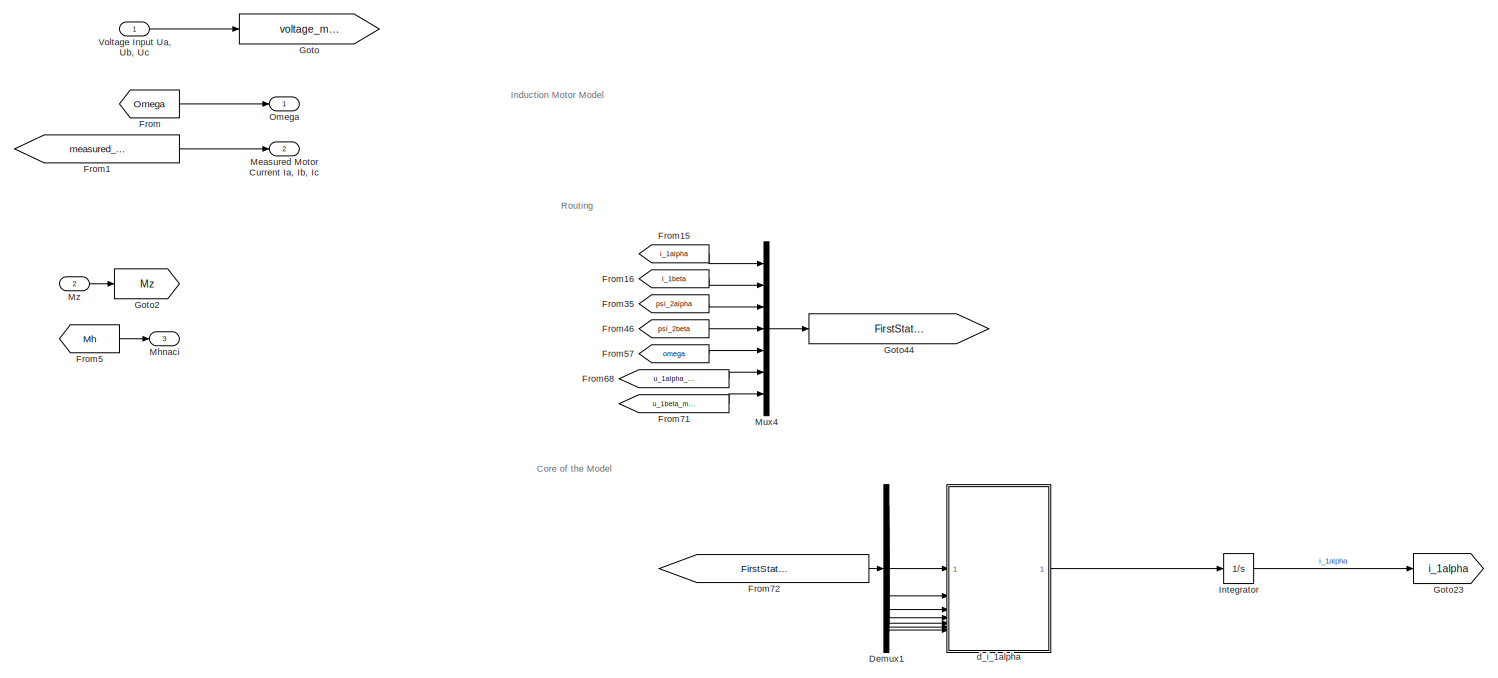
[diagram: ASM1 - part 1/5, top center region]
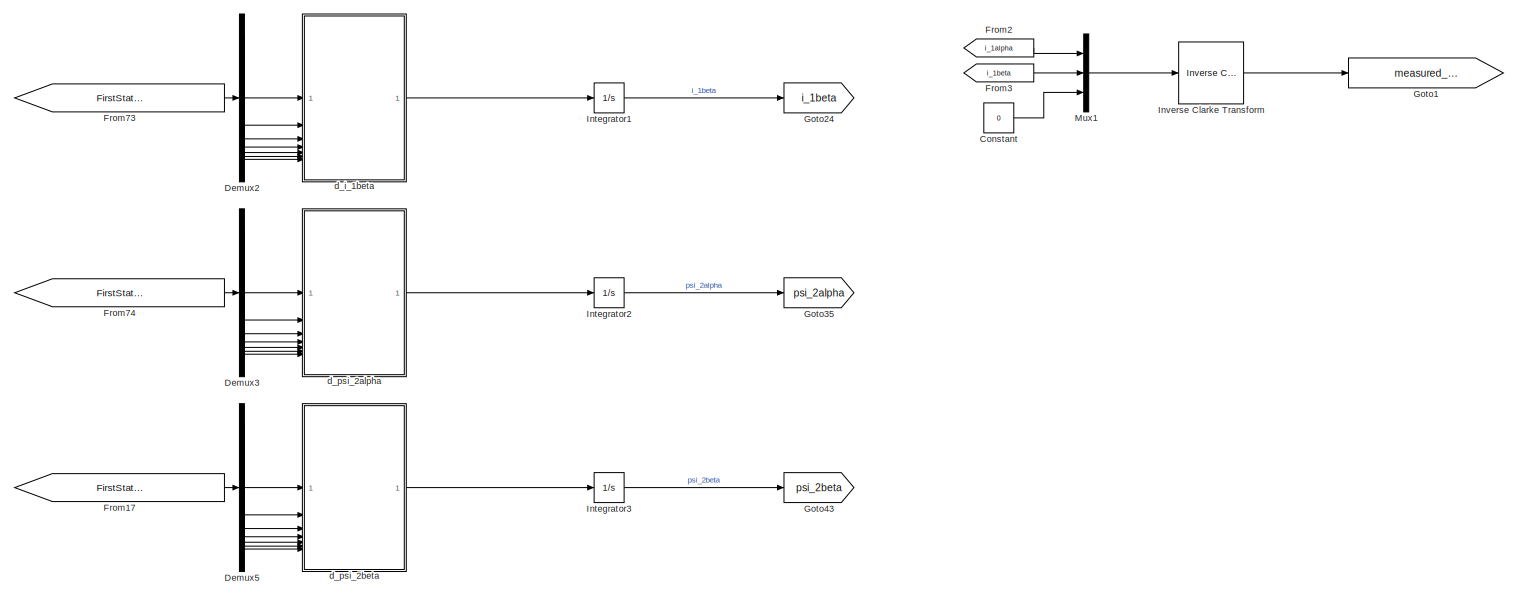
[diagram: ASM1 - part 2/5, central region]
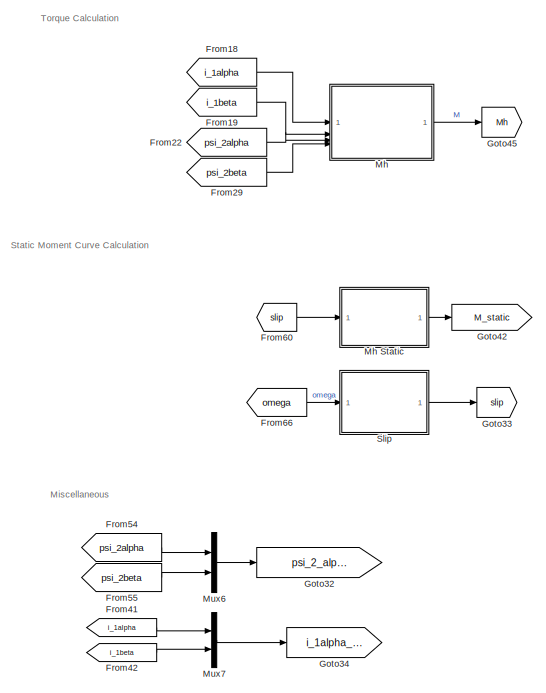
[diagram: ASM1 - part 3/5, bottom left region]
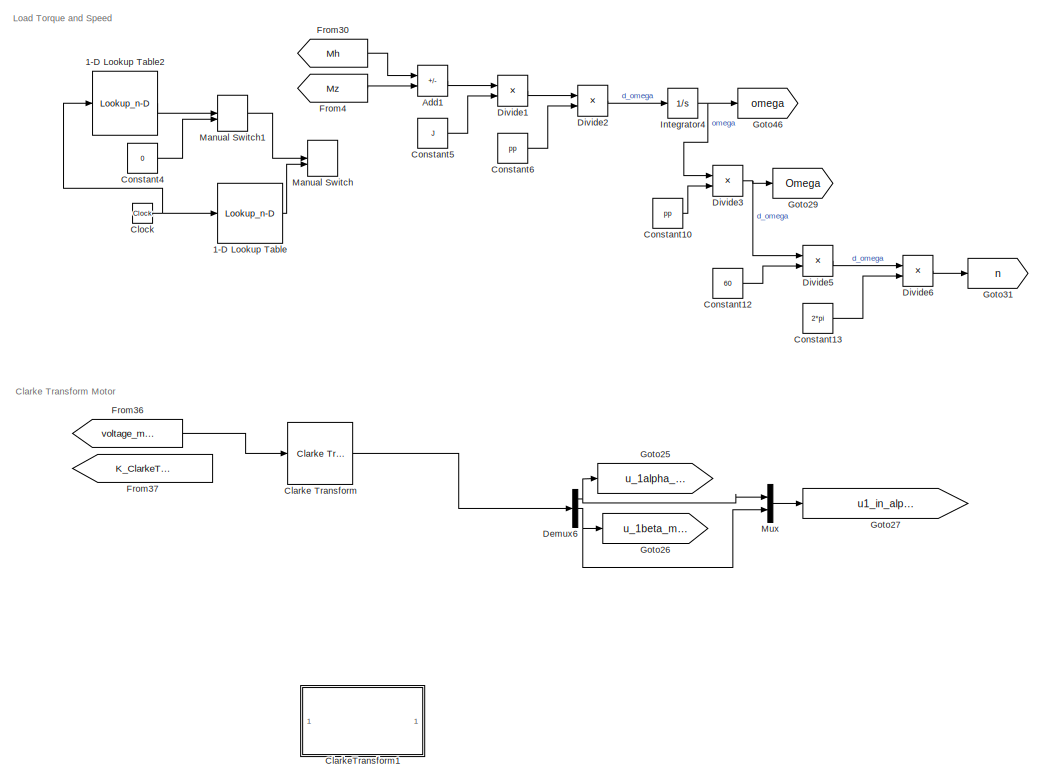
[diagram: ASM1 - part 4/5, bottom center region]
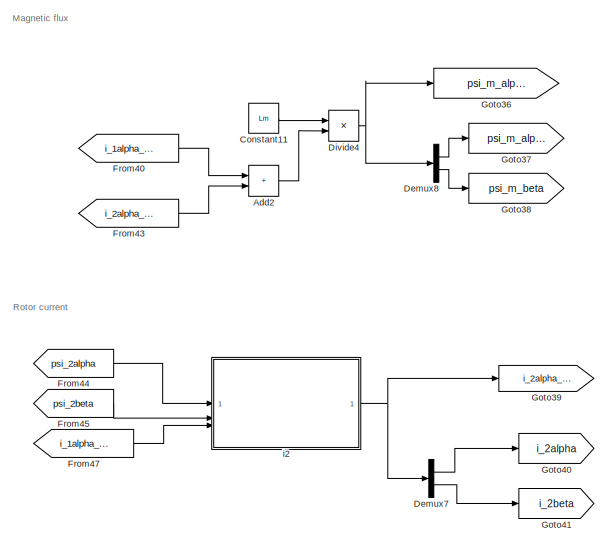
[diagram: ASM1 - part 5/5, bottom right region]
BLOCK [SubSystem] ASM1
BLOCK [Lookup_n-D] ASM1/1-D Lookup Table
  BreakpointsForDimension1 = [0;1.00001;1.001;10]
  InputPortMap = u0
  InternalRulePriority = Speed
  NumberOfTableDimensions = 1
  RndMeth = Simplest
  Table = [0;0;25;25]
BLOCK [Lookup_n-D] ASM1/1-D Lookup Table2
  BreakpointsForDimension1 = [1;2;10]
  InputPortMap = u0
  InternalRulePriority = Speed
  NumberOfTableDimensions = 1
  RndMeth = Simplest
  Table = [0;0;78.48]
BLOCK [Sum] ASM1/Add1
  IconShape = rectangular
  Inputs = +-
BLOCK [Sum] ASM1/Add2
  IconShape = rectangular
BLOCK [Reference] ASM1/Clarke Transform  REF=eeTransforms/Clarke Transform
  LibrarySourceBlock = ee_sl_lib/Mathematical\nTransforms/Clarke Transform
  SourceBlock = eeTransforms/Clarke Transform
  SourceType = Clarke Transform
BLOCK [SubSystem] ASM1/ClarkeTransform1
  Commented = on
BLOCK [Sum] ASM1/ClarkeTransform1/Add1
  IconShape = rectangular
  Inputs = +++
BLOCK [Sum] ASM1/ClarkeTransform1/Add2
  IconShape = rectangular
  Inputs = +++
BLOCK [Demux] ASM1/ClarkeTransform1/Demux4
  Outputs = 3
BLOCK [Demux] ASM1/ClarkeTransform1/Demux5
  Outputs = 3
BLOCK [Product] ASM1/ClarkeTransform1/Divide2
  Inputs = **
BLOCK [Product] ASM1/ClarkeTransform1/Divide3
  Inputs = **
BLOCK [From] ASM1/ClarkeTransform1/From17
  GotoTag = K_ClarkeTransform
BLOCK [From] ASM1/ClarkeTransform1/From19
  GotoTag = K_ClarkeTransform
BLOCK [Gain] ASM1/ClarkeTransform1/Gain
  Gain = -1/2
BLOCK [Gain] ASM1/ClarkeTransform1/Gain1
  Gain = -1/2
BLOCK [Gain] ASM1/ClarkeTransform1/Gain2
  Gain = -sqrt(3)/2
BLOCK [Gain] ASM1/ClarkeTransform1/Gain3
  Gain = sqrt(3)/2
BLOCK [Gain] ASM1/ClarkeTransform1/Gain4
BLOCK [Gain] ASM1/ClarkeTransform1/Gain5
  Gain = 0
BLOCK [Goto] ASM1/ClarkeTransform1/Goto
  GotoTag = K_ClarkeTransform
BLOCK [Inport] ASM1/ClarkeTransform1/K
  Port = 2
BLOCK [Mux] ASM1/ClarkeTransform1/Mux2
  DisplayOption = bar
  Inputs = 2
BLOCK [Outport] ASM1/ClarkeTransform1/u1_in_alpha_beta
BLOCK [Inport] ASM1/ClarkeTransform1/u_1source
BLOCK [Clock] ASM1/Clock
BLOCK [Constant] ASM1/Constant
  Value = 0
BLOCK [Constant] ASM1/Constant10
  Value = pp
BLOCK [Constant] ASM1/Constant11
  Value = Lm
BLOCK [Constant] ASM1/Constant12
  Value = 60
BLOCK [Constant] ASM1/Constant13
  Value = 2*pi
BLOCK [Constant] ASM1/Constant4
  Value = 0
BLOCK [Constant] ASM1/Constant5
  Value = J
BLOCK [Constant] ASM1/Constant6
  Value = pp
BLOCK [Demux] ASM1/Demux1
  Outputs = 7
BLOCK [Demux] ASM1/Demux2
  Outputs = 7
BLOCK [Demux] ASM1/Demux3
  Outputs = 7
BLOCK [Demux] ASM1/Demux5
  Outputs = 7
BLOCK [Demux] ASM1/Demux6
  Outputs = 3
BLOCK [Demux] ASM1/Demux7
  Outputs = 2
BLOCK [Demux] ASM1/Demux8
  Outputs = 2
BLOCK [Product] ASM1/Divide1
  Inputs = */
BLOCK [Product] ASM1/Divide2
  Inputs = **
BLOCK [Product] ASM1/Divide3
  Inputs = */
BLOCK [Product] ASM1/Divide4
  Inputs = **
BLOCK [Product] ASM1/Divide5
  Inputs = **
BLOCK [Product] ASM1/Divide6
  Inputs = */
BLOCK [From] ASM1/From
  GotoTag = Omega
BLOCK [From] ASM1/From1
  GotoTag = measured_motor_current
BLOCK [From] ASM1/From15
  GotoTag = i_1alpha
BLOCK [From] ASM1/From16
  GotoTag = i_1beta
BLOCK [From] ASM1/From17
  GotoTag = FirstStateEquationVariables
BLOCK [From] ASM1/From18
  GotoTag = i_1alpha
BLOCK [From] ASM1/From19
  GotoTag = i_1beta
BLOCK [From] ASM1/From2
  GotoTag = i_1alpha
BLOCK [From] ASM1/From22
  GotoTag = psi_2alpha
BLOCK [From] ASM1/From29
  GotoTag = psi_2beta
BLOCK [From] ASM1/From3
  GotoTag = i_1beta
BLOCK [From] ASM1/From30
  GotoTag = Mh
BLOCK [From] ASM1/From35
  GotoTag = psi_2alpha
BLOCK [From] ASM1/From36
  GotoTag = voltage_motor_input
BLOCK [From] ASM1/From37
  GotoTag = K_ClarkeTransform_motor
BLOCK [From] ASM1/From4
  GotoTag = Mz
BLOCK [From] ASM1/From40
  GotoTag = i_1alpha_beta
BLOCK [From] ASM1/From41
  GotoTag = i_1alpha
BLOCK [From] ASM1/From42
  GotoTag = i_1beta
BLOCK [From] ASM1/From43
  GotoTag = i_2alpha_beta
BLOCK [From] ASM1/From44
  GotoTag = psi_2alpha
BLOCK [From] ASM1/From45
  GotoTag = psi_2beta
BLOCK [From] ASM1/From46
  GotoTag = psi_2beta
BLOCK [From] ASM1/From47
  GotoTag = i_1alpha_beta
BLOCK [From] ASM1/From5
  GotoTag = Mh
BLOCK [From] ASM1/From54
  GotoTag = psi_2alpha
BLOCK [From] ASM1/From55
  GotoTag = psi_2beta
BLOCK [From] ASM1/From57
  GotoTag = omega
BLOCK [From] ASM1/From60
  GotoTag = slip
BLOCK [From] ASM1/From66
  GotoTag = omega
BLOCK [From] ASM1/From68
  GotoTag = u_1alpha_motor
BLOCK [From] ASM1/From71
  GotoTag = u_1beta_motor
BLOCK [From] ASM1/From72
  GotoTag = FirstStateEquationVariables
BLOCK [From] ASM1/From73
  GotoTag = FirstStateEquationVariables
BLOCK [From] ASM1/From74
  GotoTag = FirstStateEquationVariables
BLOCK [Goto] ASM1/Goto
  GotoTag = voltage_motor_input
BLOCK [Goto] ASM1/Goto1
  GotoTag = measured_motor_current
BLOCK [Goto] ASM1/Goto2
  GotoTag = Mz
BLOCK [Goto] ASM1/Goto23
  GotoTag = i_1alpha
BLOCK [Goto] ASM1/Goto24
  GotoTag = i_1beta
BLOCK [Goto] ASM1/Goto25
  GotoTag = u_1alpha_motor
BLOCK [Goto] ASM1/Goto26
  GotoTag = u_1beta_motor
BLOCK [Goto] ASM1/Goto27
  GotoTag = u1_in_alpha_beta_motor
BLOCK [Goto] ASM1/Goto29
  GotoTag = Omega
BLOCK [Goto] ASM1/Goto31
  GotoTag = n
BLOCK [Goto] ASM1/Goto32
  GotoTag = psi_2_alpha_beta
BLOCK [Goto] ASM1/Goto33
  GotoTag = slip
BLOCK [Goto] ASM1/Goto34
  GotoTag = i_1alpha_beta
BLOCK [Goto] ASM1/Goto35
  GotoTag = psi_2alpha
BLOCK [Goto] ASM1/Goto36
  GotoTag = psi_m_alpha_beta
BLOCK [Goto] ASM1/Goto37
  GotoTag = psi_m_alpha
BLOCK [Goto] ASM1/Goto38
  GotoTag = psi_m_beta
BLOCK [Goto] ASM1/Goto39
  GotoTag = i_2alpha_beta
BLOCK [Goto] ASM1/Goto40
  GotoTag = i_2alpha
BLOCK [Goto] ASM1/Goto41
  GotoTag = i_2beta
BLOCK [Goto] ASM1/Goto42
  GotoTag = M_static
BLOCK [Goto] ASM1/Goto43
  GotoTag = psi_2beta
BLOCK [Goto] ASM1/Goto44
  GotoTag = FirstStateEquationVariables
BLOCK [Goto] ASM1/Goto45
  GotoTag = Mh
BLOCK [Goto] ASM1/Goto46
  GotoTag = omega
BLOCK [Integrator] ASM1/Integrator
BLOCK [Integrator] ASM1/Integrator1
BLOCK [Integrator] ASM1/Integrator2
BLOCK [Integrator] ASM1/Integrator3
BLOCK [Integrator] ASM1/Integrator4
BLOCK [Reference] ASM1/Inverse Clarke Transform  REF=eeTransforms/Inverse
Clarke Transform
  LibrarySourceBlock = ee_sl_lib/Mathematical\nTransforms/Inverse\nClarke Transform
  SourceBlock = eeTransforms/Inverse\nClarke Transform
  SourceType = Inverse Clarke Transform
BLOCK [ManualSwitch] ASM1/Manual Switch
BLOCK [ManualSwitch] ASM1/Manual Switch1
  CurrentSetting = 0
BLOCK [Outport] ASM1/Measured Motor Current Ia, Ib, Ic
  Port = 2
BLOCK [SubSystem] ASM1/Mh
BLOCK [SubSystem] ASM1/Mh Static
BLOCK [Sum] ASM1/Mh Static/Add3
  IconShape = rectangular
BLOCK [Sum] ASM1/Mh Static/Add4
  IconShape = rectangular
BLOCK [Sum] ASM1/Mh Static/Add6
  IconShape = rectangular
BLOCK [Constant] ASM1/Mh Static/Constant10
  Value = 230^(2)
BLOCK [Constant] ASM1/Mh Static/Constant11
  Value = pp
BLOCK [Constant] ASM1/Mh Static/Constant14
  Value = 2*pi*f
BLOCK [Constant] ASM1/Mh Static/Constant15
  Value = R1
BLOCK [Constant] ASM1/Mh Static/Constant16
  Value = R2
BLOCK [Constant] ASM1/Mh Static/Constant21
  Value = 2*pi*f
BLOCK [Constant] ASM1/Mh Static/Constant22
  Value = L1sigma
BLOCK [Constant] ASM1/Mh Static/Constant23
  Value = L2sigma
BLOCK [Constant] ASM1/Mh Static/Constant8
  Value = 3
BLOCK [Constant] ASM1/Mh Static/Constant9
  Value = R2
BLOCK [Product] ASM1/Mh Static/Divide10
  Inputs = /*
BLOCK [Product] ASM1/Mh Static/Divide11
  Inputs = */
BLOCK [Product] ASM1/Mh Static/Divide15
  Inputs = **
BLOCK [Product] ASM1/Mh Static/Divide6
  Inputs = ****
BLOCK [Product] ASM1/Mh Static/Divide7
  Inputs = */
BLOCK [Product] ASM1/Mh Static/Divide8
  Inputs = **
BLOCK [Math] ASM1/Mh Static/Math Function
  Operator = square
BLOCK [Math] ASM1/Mh Static/Math Function2
  Operator = square
BLOCK [Outport] ASM1/Mh Static/Mh Static
BLOCK [SubSystem] ASM1/Mh Static/Reprezentace s s*omega1*L2sigma
BLOCK [Sum] ASM1/Mh Static/Reprezentace s s*omega1*L2sigma/Add5
  IconShape = rectangular
BLOCK [Constant] ASM1/Mh Static/Reprezentace s s*omega1*L2sigma/Constant17
  Value = 2*pi*f
BLOCK [Constant] ASM1/Mh Static/Reprezentace s s*omega1*L2sigma/Constant18
  Value = L1sigma
BLOCK [Constant] ASM1/Mh Static/Reprezentace s s*omega1*L2sigma/Constant19
  Value = L2sigma
BLOCK [Constant] ASM1/Mh Static/Reprezentace s s*omega1*L2sigma/Constant20
  Value = 2*pi*f
BLOCK [Product] ASM1/Mh Static/Reprezentace s s*omega1*L2sigma/Divide12
  Inputs = **
BLOCK [Product] ASM1/Mh Static/Reprezentace s s*omega1*L2sigma/Divide13
  Inputs = **
BLOCK [Product] ASM1/Mh Static/Reprezentace s s*omega1*L2sigma/Divide14
  Inputs = **
BLOCK [Outport] ASM1/Mh Static/Reprezentace s s*omega1*L2sigma/Out1
BLOCK [Inport] ASM1/Mh Static/Reprezentace s s*omega1*L2sigma/Slip
BLOCK [Inport] ASM1/Mh Static/Slip
BLOCK [Sum] ASM1/Mh/Add
  IconShape = rectangular
  Inputs = +-
BLOCK [Constant] ASM1/Mh/Constant
  Value = 3/2
BLOCK [Constant] ASM1/Mh/Constant1
  Value = pp
BLOCK [Constant] ASM1/Mh/Constant2
  Value = Lm
BLOCK [Constant] ASM1/Mh/Constant3
  Value = L2
BLOCK [Product] ASM1/Mh/Divide
  Inputs = **
BLOCK [Product] ASM1/Mh/Divide1
  Inputs = **
BLOCK [Product] ASM1/Mh/Divide2
  Inputs = */
BLOCK [Product] ASM1/Mh/Divide3
  Inputs = **
BLOCK [Product] ASM1/Mh/Divide4
  Inputs = **
BLOCK [Product] ASM1/Mh/Divide5
  Inputs = **
BLOCK [Outport] ASM1/Mh/Mh
BLOCK [Inport] ASM1/Mh/i_1alpha
BLOCK [Inport] ASM1/Mh/i_1beta
  Port = 2
BLOCK [Inport] ASM1/Mh/phi_2alpha
  Port = 3
BLOCK [Inport] ASM1/Mh/phi_2beta
  Port = 4
BLOCK [Outport] ASM1/Mhnaci
  Port = 3
BLOCK [Mux] ASM1/Mux
  DisplayOption = bar
  Inputs = 2
BLOCK [Mux] ASM1/Mux1
  DisplayOption = bar
  Inputs = 3
BLOCK [Mux] ASM1/Mux4
  DisplayOption = bar
  Inputs = 7
BLOCK [Mux] ASM1/Mux6
  DisplayOption = bar
  Inputs = 2
BLOCK [Mux] ASM1/Mux7
  DisplayOption = bar
  Inputs = 2
BLOCK [Inport] ASM1/Mz
  Port = 2
BLOCK [Outport] ASM1/Omega
BLOCK [SubSystem] ASM1/Slip
BLOCK [Sum] ASM1/Slip/Add2
  IconShape = rectangular
  Inputs = +-
BLOCK [Constant] ASM1/Slip/Constant12
  Value = 2*pi*f
BLOCK [Constant] ASM1/Slip/Constant13
  Value = 2*pi*f
BLOCK [Product] ASM1/Slip/Divide9
  Inputs = */
BLOCK [Outport] ASM1/Slip/Slip
BLOCK [Inport] ASM1/Slip/omega
BLOCK [Inport] ASM1/Voltage Input Ua, Ub, Uc
BLOCK [SubSystem] ASM1/d_i_1alpha
BLOCK [Sum] ASM1/d_i_1alpha/Add
  IconShape = rectangular
BLOCK [Sum] ASM1/d_i_1alpha/Add1
  IconShape = rectangular
  Inputs = ++++
BLOCK [Sum] ASM1/d_i_1alpha/Add2
  IconShape = rectangular
BLOCK [Constant] ASM1/d_i_1alpha/Constant
  Value = R2
BLOCK [Constant] ASM1/d_i_1alpha/Constant1
  Value = Lm
BLOCK [Constant] ASM1/d_i_1alpha/Constant10
  Value = L1
BLOCK [Constant] ASM1/d_i_1alpha/Constant11
  Value = sigma
BLOCK [Constant] ASM1/d_i_1alpha/Constant12
  Value = L1
BLOCK [Constant] ASM1/d_i_1alpha/Constant13
  Value = L1
BLOCK [Constant] ASM1/d_i_1alpha/Constant14
  Value = sigma
BLOCK [Constant] ASM1/d_i_1alpha/Constant15
  Value = L2
BLOCK [Constant] ASM1/d_i_1alpha/Constant16
  Value = sigma
BLOCK [Constant] ASM1/d_i_1alpha/Constant2
  Value = L2
BLOCK [Constant] ASM1/d_i_1alpha/Constant3
  Value = R1
BLOCK [Constant] ASM1/d_i_1alpha/Constant4
  Value = -1
BLOCK [Constant] ASM1/d_i_1alpha/Constant5
  Value = R2
BLOCK [Constant] ASM1/d_i_1alpha/Constant6
  Value = Lm
BLOCK [Constant] ASM1/d_i_1alpha/Constant7
  Value = Lm
BLOCK [Constant] ASM1/d_i_1alpha/Constant8
  Value = 0
BLOCK [Constant] ASM1/d_i_1alpha/Constant9
  Value = L2
BLOCK [Product] ASM1/d_i_1alpha/Divide
  Inputs = **
BLOCK [Product] ASM1/d_i_1alpha/Divide1
  Inputs = **
BLOCK [Product] ASM1/d_i_1alpha/Divide10
  Inputs = **
BLOCK [Product] ASM1/d_i_1alpha/Divide11
  Inputs = */
BLOCK [Product] ASM1/d_i_1alpha/Divide12
  Inputs = ***
BLOCK [Product] ASM1/d_i_1alpha/Divide13
  Inputs = **
BLOCK [Product] ASM1/d_i_1alpha/Divide14
  Inputs = ***
BLOCK [Product] ASM1/d_i_1alpha/Divide2
  Inputs = */
BLOCK [Product] ASM1/d_i_1alpha/Divide3
  Inputs = **
BLOCK [Product] ASM1/d_i_1alpha/Divide4
  Inputs = **
BLOCK [Product] ASM1/d_i_1alpha/Divide5
  Inputs = **
BLOCK [Product] ASM1/d_i_1alpha/Divide6
  Inputs = */
BLOCK [Product] ASM1/d_i_1alpha/Divide7
  Inputs = **
BLOCK [Product] ASM1/d_i_1alpha/Divide8
  Inputs = **
BLOCK [Product] ASM1/d_i_1alpha/Divide9
  Inputs = */
BLOCK [From] ASM1/d_i_1alpha/From
  GotoTag = i_1alpha
BLOCK [From] ASM1/d_i_1alpha/From1
  GotoTag = psi_2alpha
BLOCK [From] ASM1/d_i_1alpha/From2
  GotoTag = omega
BLOCK [From] ASM1/d_i_1alpha/From3
  GotoTag = psi_2beta
BLOCK [From] ASM1/d_i_1alpha/From4
  GotoTag = u_1alpha
BLOCK [From] ASM1/d_i_1alpha/From5
  GotoTag = StateMatrix_x_StateVector
BLOCK [From] ASM1/d_i_1alpha/From6
  GotoTag = InputMatrix_x_Input
BLOCK [Goto] ASM1/d_i_1alpha/Goto
  GotoTag = i_1alpha
BLOCK [Goto] ASM1/d_i_1alpha/Goto1
  GotoTag = i_1beta
BLOCK [Goto] ASM1/d_i_1alpha/Goto2
  GotoTag = psi_2alpha
BLOCK [Goto] ASM1/d_i_1alpha/Goto3
  GotoTag = psi_2beta
BLOCK [Goto] ASM1/d_i_1alpha/Goto4
  GotoTag = omega
BLOCK [Goto] ASM1/d_i_1alpha/Goto5
  GotoTag = u_1alpha
BLOCK [Goto] ASM1/d_i_1alpha/Goto6
  GotoTag = u_1beta
BLOCK [Goto] ASM1/d_i_1alpha/Goto7
  GotoTag = StateMatrix_x_StateVector
BLOCK [Goto] ASM1/d_i_1alpha/Goto8
  GotoTag = InputMatrix_x_Input
BLOCK [Math] ASM1/d_i_1alpha/Math Function
  Operator = square
BLOCK [Math] ASM1/d_i_1alpha/Math Function1
  Operator = square
BLOCK [Math] ASM1/d_i_1alpha/Math Function2
  Operator = square
BLOCK [Outport] ASM1/d_i_1alpha/d_i_1alpha
BLOCK [Inport] ASM1/d_i_1alpha/i_1alpha
BLOCK [Inport] ASM1/d_i_1alpha/i_1beta
  Port = 2
BLOCK [Inport] ASM1/d_i_1alpha/omega
  Port = 5
BLOCK [Inport] ASM1/d_i_1alpha/psi_2alpha
  Port = 3
BLOCK [Inport] ASM1/d_i_1alpha/psi_2beta
  Port = 4
BLOCK [Inport] ASM1/d_i_1alpha/u_1alpha
  Port = 6
BLOCK [Inport] ASM1/d_i_1alpha/u_1beta
  Port = 7
BLOCK [SubSystem] ASM1/d_i_1beta
BLOCK [Sum] ASM1/d_i_1beta/Add
  IconShape = rectangular
BLOCK [Sum] ASM1/d_i_1beta/Add1
  IconShape = rectangular
  Inputs = ++++
BLOCK [Sum] ASM1/d_i_1beta/Add2
  IconShape = rectangular
BLOCK [Constant] ASM1/d_i_1beta/Constant
  Value = R2
BLOCK [Constant] ASM1/d_i_1beta/Constant1
  Value = Lm
BLOCK [Constant] ASM1/d_i_1beta/Constant10
  Value = L1
BLOCK [Constant] ASM1/d_i_1beta/Constant11
  Value = sigma
BLOCK [Constant] ASM1/d_i_1beta/Constant12
  Value = L2
BLOCK [Constant] ASM1/d_i_1beta/Constant13
  Value = L1
BLOCK [Constant] ASM1/d_i_1beta/Constant14
  Value = sigma
BLOCK [Constant] ASM1/d_i_1beta/Constant15
  Value = L2
BLOCK [Constant] ASM1/d_i_1beta/Constant16
  Value = L1
BLOCK [Constant] ASM1/d_i_1beta/Constant17
  Value = sigma
BLOCK [Constant] ASM1/d_i_1beta/Constant2
  Value = L2
BLOCK [Constant] ASM1/d_i_1beta/Constant3
  Value = R1
BLOCK [Constant] ASM1/d_i_1beta/Constant4
  Value = -1
BLOCK [Constant] ASM1/d_i_1beta/Constant5
  Value = R2
BLOCK [Constant] ASM1/d_i_1beta/Constant6
  Value = Lm
BLOCK [Constant] ASM1/d_i_1beta/Constant7
  Value = Lm
BLOCK [Constant] ASM1/d_i_1beta/Constant8
  Value = 0
BLOCK [Constant] ASM1/d_i_1beta/Constant9
  Value = -1
BLOCK [Product] ASM1/d_i_1beta/Divide
  Inputs = **
BLOCK [Product] ASM1/d_i_1beta/Divide1
  Inputs = **
BLOCK [Product] ASM1/d_i_1beta/Divide10
  Inputs = **
BLOCK [Product] ASM1/d_i_1beta/Divide11
  Inputs = */
BLOCK [Product] ASM1/d_i_1beta/Divide12
  Inputs = **
BLOCK [Product] ASM1/d_i_1beta/Divide13
  Inputs = ***
BLOCK [Product] ASM1/d_i_1beta/Divide14
  Inputs = ***
BLOCK [Product] ASM1/d_i_1beta/Divide15
  Inputs = **
BLOCK [Product] ASM1/d_i_1beta/Divide2
  Inputs = */
BLOCK [Product] ASM1/d_i_1beta/Divide3
  Inputs = **
BLOCK [Product] ASM1/d_i_1beta/Divide4
  Inputs = **
BLOCK [Product] ASM1/d_i_1beta/Divide5
  Inputs = **
BLOCK [Product] ASM1/d_i_1beta/Divide6
  Inputs = */
BLOCK [Product] ASM1/d_i_1beta/Divide7
  Inputs = **
BLOCK [Product] ASM1/d_i_1beta/Divide8
  Inputs = **
BLOCK [Product] ASM1/d_i_1beta/Divide9
  Inputs = */
BLOCK [From] ASM1/d_i_1beta/From1
  GotoTag = psi_2beta
BLOCK [From] ASM1/d_i_1beta/From2
  GotoTag = omega
BLOCK [From] ASM1/d_i_1beta/From3
  GotoTag = i_1beta
BLOCK [From] ASM1/d_i_1beta/From4
  GotoTag = u_1beta
BLOCK [From] ASM1/d_i_1beta/From5
  GotoTag = StateMatrix_x_StateVector
BLOCK [From] ASM1/d_i_1beta/From6
  GotoTag = InputMatrix_x_Input
BLOCK [From] ASM1/d_i_1beta/From7
  GotoTag = psi_2alpha
BLOCK [Goto] ASM1/d_i_1beta/Goto
  GotoTag = i_1alpha
BLOCK [Goto] ASM1/d_i_1beta/Goto1
  GotoTag = i_1beta
BLOCK [Goto] ASM1/d_i_1beta/Goto2
  GotoTag = psi_2alpha
BLOCK [Goto] ASM1/d_i_1beta/Goto3
  GotoTag = psi_2beta
BLOCK [Goto] ASM1/d_i_1beta/Goto4
  GotoTag = omega
BLOCK [Goto] ASM1/d_i_1beta/Goto5
  GotoTag = u_1alpha
BLOCK [Goto] ASM1/d_i_1beta/Goto6
  GotoTag = u_1beta
BLOCK [Goto] ASM1/d_i_1beta/Goto7
  GotoTag = StateMatrix_x_StateVector
BLOCK [Goto] ASM1/d_i_1beta/Goto8
  GotoTag = InputMatrix_x_Input
BLOCK [Math] ASM1/d_i_1beta/Math Function
  Operator = square
BLOCK [Math] ASM1/d_i_1beta/Math Function1
  Operator = square
BLOCK [Math] ASM1/d_i_1beta/Math Function2
  Operator = square
BLOCK [Outport] ASM1/d_i_1beta/d_i_1beta
BLOCK [Inport] ASM1/d_i_1beta/i_1alpha
BLOCK [Inport] ASM1/d_i_1beta/i_1beta
  Port = 2
BLOCK [Inport] ASM1/d_i_1beta/omega
  Port = 5
BLOCK [Inport] ASM1/d_i_1beta/psi_2alpha
  Port = 3
BLOCK [Inport] ASM1/d_i_1beta/psi_2beta
  Port = 4
BLOCK [Inport] ASM1/d_i_1beta/u_1alpha
  Port = 6
BLOCK [Inport] ASM1/d_i_1beta/u_1beta
  Port = 7
BLOCK [SubSystem] ASM1/d_psi_2alpha
BLOCK [Sum] ASM1/d_psi_2alpha/Add1
  IconShape = rectangular
  Inputs = ++++
BLOCK [Sum] ASM1/d_psi_2alpha/Add2
  IconShape = rectangular
BLOCK [Constant] ASM1/d_psi_2alpha/Constant
  Value = 0
BLOCK [Constant] ASM1/d_psi_2alpha/Constant1
  Value = -1
BLOCK [Constant] ASM1/d_psi_2alpha/Constant2
  Value = -1
BLOCK [Constant] ASM1/d_psi_2alpha/Constant3
  Value = R2
BLOCK [Constant] ASM1/d_psi_2alpha/Constant4
  Value = L2
BLOCK [Constant] ASM1/d_psi_2alpha/Constant5
  Value = Lm
BLOCK [Constant] ASM1/d_psi_2alpha/Constant6
  Value = R2
BLOCK [Constant] ASM1/d_psi_2alpha/Constant7
  Value = L2
BLOCK [Constant] ASM1/d_psi_2alpha/Constant8
  Value = 0
BLOCK [Product] ASM1/d_psi_2alpha/Divide
  Inputs = **
BLOCK [Product] ASM1/d_psi_2alpha/Divide1
  Inputs = **
BLOCK [Product] ASM1/d_psi_2alpha/Divide2
  Inputs = */
BLOCK [Product] ASM1/d_psi_2alpha/Divide3
  Inputs = **
BLOCK [Product] ASM1/d_psi_2alpha/Divide4
  Inputs = **
BLOCK [Product] ASM1/d_psi_2alpha/Divide5
  Inputs = **
BLOCK [Product] ASM1/d_psi_2alpha/Divide6
  Inputs = */
BLOCK [Product] ASM1/d_psi_2alpha/Divide7
  Inputs = **
BLOCK [From] ASM1/d_psi_2alpha/From
  GotoTag = omega
BLOCK [From] ASM1/d_psi_2alpha/From1
  GotoTag = psi_2beta
BLOCK [From] ASM1/d_psi_2alpha/From2
  GotoTag = psi_2alpha
BLOCK [From] ASM1/d_psi_2alpha/From3
  GotoTag = i_1alpha
BLOCK [From] ASM1/d_psi_2alpha/From5
  GotoTag = StateMatrix_x_StateVector
BLOCK [From] ASM1/d_psi_2alpha/From6
  GotoTag = InputMatrix_x_Input
BLOCK [Goto] ASM1/d_psi_2alpha/Goto
  GotoTag = i_1alpha
BLOCK [Goto] ASM1/d_psi_2alpha/Goto1
  GotoTag = i_1beta
BLOCK [Goto] ASM1/d_psi_2alpha/Goto2
  GotoTag = psi_2alpha
BLOCK [Goto] ASM1/d_psi_2alpha/Goto3
  GotoTag = psi_2beta
BLOCK [Goto] ASM1/d_psi_2alpha/Goto4
  GotoTag = omega
BLOCK [Goto] ASM1/d_psi_2alpha/Goto5
  GotoTag = u_1alpha
BLOCK [Goto] ASM1/d_psi_2alpha/Goto6
  GotoTag = u_1beta
BLOCK [Goto] ASM1/d_psi_2alpha/Goto7
  GotoTag = StateMatrix_x_StateVector
BLOCK [Goto] ASM1/d_psi_2alpha/Goto8
  GotoTag = InputMatrix_x_Input
BLOCK [Outport] ASM1/d_psi_2alpha/d_psi_2alpha
BLOCK [Inport] ASM1/d_psi_2alpha/i_1alpha
BLOCK [Inport] ASM1/d_psi_2alpha/i_1beta
  Port = 2
BLOCK [Inport] ASM1/d_psi_2alpha/omega
  Port = 5
BLOCK [Inport] ASM1/d_psi_2alpha/psi_2alpha
  Port = 3
BLOCK [Inport] ASM1/d_psi_2alpha/psi_2beta
  Port = 4
BLOCK [Inport] ASM1/d_psi_2alpha/u_1alpha
  Port = 6
BLOCK [Inport] ASM1/d_psi_2alpha/u_1beta
  Port = 7
BLOCK [SubSystem] ASM1/d_psi_2beta
BLOCK [Sum] ASM1/d_psi_2beta/Add1
  IconShape = rectangular
  Inputs = ++++
BLOCK [Sum] ASM1/d_psi_2beta/Add2
  IconShape = rectangular
BLOCK [Constant] ASM1/d_psi_2beta/Constant
  Value = 0
BLOCK [Constant] ASM1/d_psi_2beta/Constant2
  Value = -1
BLOCK [Constant] ASM1/d_psi_2beta/Constant3
  Value = R2
BLOCK [Constant] ASM1/d_psi_2beta/Constant4
  Value = L2
BLOCK [Constant] ASM1/d_psi_2beta/Constant5
  Value = Lm
BLOCK [Constant] ASM1/d_psi_2beta/Constant6
  Value = R2
BLOCK [Constant] ASM1/d_psi_2beta/Constant7
  Value = L2
BLOCK [Constant] ASM1/d_psi_2beta/Constant8
  Value = 0
BLOCK [Product] ASM1/d_psi_2beta/Divide1
  Inputs = **
BLOCK [Product] ASM1/d_psi_2beta/Divide2
  Inputs = */
BLOCK [Product] ASM1/d_psi_2beta/Divide3
  Inputs = **
BLOCK [Product] ASM1/d_psi_2beta/Divide4
  Inputs = **
BLOCK [Product] ASM1/d_psi_2beta/Divide5
  Inputs = **
BLOCK [Product] ASM1/d_psi_2beta/Divide6
  Inputs = */
BLOCK [Product] ASM1/d_psi_2beta/Divide7
  Inputs = **
BLOCK [From] ASM1/d_psi_2beta/From
  GotoTag = omega
BLOCK [From] ASM1/d_psi_2beta/From1
  GotoTag = psi_2alpha
BLOCK [From] ASM1/d_psi_2beta/From2
  GotoTag = psi_2beta
BLOCK [From] ASM1/d_psi_2beta/From3
  GotoTag = i_1beta
BLOCK [From] ASM1/d_psi_2beta/From5
  GotoTag = StateMatrix_x_StateVector
BLOCK [From] ASM1/d_psi_2beta/From6
  GotoTag = InputMatrix_x_Input
BLOCK [Goto] ASM1/d_psi_2beta/Goto
  GotoTag = i_1alpha
BLOCK [Goto] ASM1/d_psi_2beta/Goto1
  GotoTag = i_1beta
BLOCK [Goto] ASM1/d_psi_2beta/Goto2
  GotoTag = psi_2alpha
BLOCK [Goto] ASM1/d_psi_2beta/Goto3
  GotoTag = psi_2beta
BLOCK [Goto] ASM1/d_psi_2beta/Goto4
  GotoTag = omega
BLOCK [Goto] ASM1/d_psi_2beta/Goto5
  GotoTag = u_1alpha
BLOCK [Goto] ASM1/d_psi_2beta/Goto6
  GotoTag = u_1beta
BLOCK [Goto] ASM1/d_psi_2beta/Goto7
  GotoTag = StateMatrix_x_StateVector
BLOCK [Goto] ASM1/d_psi_2beta/Goto8
  GotoTag = InputMatrix_x_Input
BLOCK [Outport] ASM1/d_psi_2beta/d_psi_2beta
BLOCK [Inport] ASM1/d_psi_2beta/i_1alpha
BLOCK [Inport] ASM1/d_psi_2beta/i_1beta
  Port = 2
BLOCK [Inport] ASM1/d_psi_2beta/omega
  Port = 5
BLOCK [Inport] ASM1/d_psi_2beta/psi_2alpha
  Port = 3
BLOCK [Inport] ASM1/d_psi_2beta/psi_2beta
  Port = 4
BLOCK [Inport] ASM1/d_psi_2beta/u_1alpha
  Port = 6
BLOCK [Inport] ASM1/d_psi_2beta/u_1beta
  Port = 7
BLOCK [SubSystem] ASM1/i2
BLOCK [Sum] ASM1/i2/Add2
  IconShape = rectangular
  Inputs = +-
BLOCK [Constant] ASM1/i2/Constant6
  Value = Lm
BLOCK [Constant] ASM1/i2/Constant7
  Value = L2
BLOCK [Product] ASM1/i2/Divide4
  Inputs = **
BLOCK [Product] ASM1/i2/Divide5
  Inputs = */
BLOCK [Mux] ASM1/i2/Mux2
  DisplayOption = bar
  Inputs = 2
BLOCK [Inport] ASM1/i2/i_1_alpha_beta
  Port = 3
BLOCK [Outport] ASM1/i2/i_2alpha_beta
BLOCK [Inport] ASM1/i2/psi_2alpha
BLOCK [Inport] ASM1/i2/psi_2beta
  Port = 2
BLOCK [SubSystem] ASM2
BLOCK [Lookup_n-D] ASM2/1-D Lookup Table
  BreakpointsForDimension1 = [0;1.00001;1.001;10]
  Commented = on
  InputPortMap = u0
  InternalRulePriority = Speed
  NumberOfTableDimensions = 1
  RndMeth = Simplest
  Table = [0;0;25;25]
BLOCK [Lookup_n-D] ASM2/1-D Lookup Table2
  BreakpointsForDimension1 = [1;2;10]
  Commented = on
  InputPortMap = u0
  InternalRulePriority = Speed
  NumberOfTableDimensions = 1
  RndMeth = Simplest
  Table = [0;0;78.48]
BLOCK [Sum] ASM2/Add1
  IconShape = rectangular
  Inputs = +-
BLOCK [Sum] ASM2/Add2
  IconShape = rectangular
BLOCK [Reference] ASM2/Clarke Transform  REF=eeTransforms/Clarke Transform
  LibrarySourceBlock = ee_sl_lib/Mathematical\nTransforms/Clarke Transform
  SourceBlock = eeTransforms/Clarke Transform
  SourceType = Clarke Transform
BLOCK [SubSystem] ASM2/ClarkeTransform1
  Commented = on
BLOCK [Sum] ASM2/ClarkeTransform1/Add1
  IconShape = rectangular
  Inputs = +++
BLOCK [Sum] ASM2/ClarkeTransform1/Add2
  IconShape = rectangular
  Inputs = +++
BLOCK [Demux] ASM2/ClarkeTransform1/Demux4
  Outputs = 3
BLOCK [Demux] ASM2/ClarkeTransform1/Demux5
  Outputs = 3
BLOCK [Product] ASM2/ClarkeTransform1/Divide2
  Inputs = **
BLOCK [Product] ASM2/ClarkeTransform1/Divide3
  Inputs = **
BLOCK [From] ASM2/ClarkeTransform1/From17
  GotoTag = K_ClarkeTransform
BLOCK [From] ASM2/ClarkeTransform1/From19
  GotoTag = K_ClarkeTransform
BLOCK [Gain] ASM2/ClarkeTransform1/Gain
  Gain = -1/2
BLOCK [Gain] ASM2/ClarkeTransform1/Gain1
  Gain = -1/2
BLOCK [Gain] ASM2/ClarkeTransform1/Gain2
  Gain = -sqrt(3)/2
BLOCK [Gain] ASM2/ClarkeTransform1/Gain3
  Gain = sqrt(3)/2
BLOCK [Gain] ASM2/ClarkeTransform1/Gain4
BLOCK [Gain] ASM2/ClarkeTransform1/Gain5
  Gain = 0
BLOCK [Goto] ASM2/ClarkeTransform1/Goto
  GotoTag = K_ClarkeTransform
BLOCK [Inport] ASM2/ClarkeTransform1/K
  Port = 2
BLOCK [Mux] ASM2/ClarkeTransform1/Mux2
  DisplayOption = bar
  Inputs = 2
BLOCK [Outport] ASM2/ClarkeTransform1/u1_in_alpha_beta
BLOCK [Inport] ASM2/ClarkeTransform1/u_1source
BLOCK [Clock] ASM2/Clock
  Commented = on
BLOCK [Constant] ASM2/Constant
  Value = 0
BLOCK [Constant] ASM2/Constant10
  Value = pp
BLOCK [Constant] ASM2/Constant11
  Value = Lm
BLOCK [Constant] ASM2/Constant12
  Value = 60
BLOCK [Constant] ASM2/Constant13
  Value = 2*pi
BLOCK [Constant] ASM2/Constant4
  Commented = on
  Value = 0
BLOCK [Constant] ASM2/Constant5
  Value = J
BLOCK [Constant] ASM2/Constant6
  Value = pp
BLOCK [Demux] ASM2/Demux1
  Outputs = 7
BLOCK [Demux] ASM2/Demux2
  Outputs = 7
BLOCK [Demux] ASM2/Demux3
  Outputs = 7
BLOCK [Demux] ASM2/Demux5
  Outputs = 7
BLOCK [Demux] ASM2/Demux6
  Outputs = 3
BLOCK [Demux] ASM2/Demux7
  Outputs = 2
BLOCK [Demux] ASM2/Demux8
  Outputs = 2
BLOCK [Product] ASM2/Divide1
  Inputs = */
BLOCK [Product] ASM2/Divide2
  Inputs = **
BLOCK [Product] ASM2/Divide3
  Inputs = */
BLOCK [Product] ASM2/Divide4
  Inputs = **
BLOCK [Product] ASM2/Divide5
  Inputs = **
BLOCK [Product] ASM2/Divide6
  Inputs = */
BLOCK [From] ASM2/From
  GotoTag = Omega
BLOCK [From] ASM2/From1
  GotoTag = measured_motor_current
BLOCK [From] ASM2/From15
  GotoTag = i_1alpha
BLOCK [From] ASM2/From16
  GotoTag = i_1beta
BLOCK [From] ASM2/From17
  GotoTag = FirstStateEquationVariables
BLOCK [From] ASM2/From18
  GotoTag = i_1alpha
BLOCK [From] ASM2/From19
  GotoTag = i_1beta
BLOCK [From] ASM2/From2
  GotoTag = i_1alpha
BLOCK [From] ASM2/From22
  GotoTag = psi_2alpha
BLOCK [From] ASM2/From29
  GotoTag = psi_2beta
BLOCK [From] ASM2/From3
  GotoTag = i_1beta
BLOCK [From] ASM2/From30
  GotoTag = Mh
BLOCK [From] ASM2/From35
  GotoTag = psi_2alpha
BLOCK [From] ASM2/From36
  GotoTag = voltage_motor_input
BLOCK [From] ASM2/From37
  GotoTag = K_ClarkeTransform_motor
BLOCK [From] ASM2/From4
  GotoTag = Mz
BLOCK [From] ASM2/From40
  GotoTag = i_1alpha_beta
BLOCK [From] ASM2/From41
  GotoTag = i_1alpha
BLOCK [From] ASM2/From42
  GotoTag = i_1beta
BLOCK [From] ASM2/From43
  GotoTag = i_2alpha_beta
BLOCK [From] ASM2/From44
  GotoTag = psi_2alpha
BLOCK [From] ASM2/From45
  GotoTag = psi_2beta
BLOCK [From] ASM2/From46
  GotoTag = psi_2beta
BLOCK [From] ASM2/From47
  GotoTag = i_1alpha_beta
BLOCK [From] ASM2/From5
  GotoTag = Mh
BLOCK [From] ASM2/From54
  GotoTag = psi_2alpha
BLOCK [From] ASM2/From55
  GotoTag = psi_2beta
BLOCK [From] ASM2/From57
  GotoTag = omega
BLOCK [From] ASM2/From60
  GotoTag = slip
BLOCK [From] ASM2/From66
  GotoTag = omega
BLOCK [From] ASM2/From68
  GotoTag = u_1alpha_motor
BLOCK [From] ASM2/From71
  GotoTag = u_1beta_motor
BLOCK [From] ASM2/From72
  GotoTag = FirstStateEquationVariables
BLOCK [From] ASM2/From73
  GotoTag = FirstStateEquationVariables
BLOCK [From] ASM2/From74
  GotoTag = FirstStateEquationVariables
BLOCK [Goto] ASM2/Goto
  GotoTag = voltage_motor_input
BLOCK [Goto] ASM2/Goto1
  GotoTag = measured_motor_current
BLOCK [Goto] ASM2/Goto2
  GotoTag = Mz
BLOCK [Goto] ASM2/Goto23
  GotoTag = i_1alpha
BLOCK [Goto] ASM2/Goto24
  GotoTag = i_1beta
BLOCK [Goto] ASM2/Goto25
  GotoTag = u_1alpha_motor
BLOCK [Goto] ASM2/Goto26
  GotoTag = u_1beta_motor
BLOCK [Goto] ASM2/Goto27
  GotoTag = u1_in_alpha_beta_motor
BLOCK [Goto] ASM2/Goto29
  GotoTag = Omega
BLOCK [Goto] ASM2/Goto31
  GotoTag = n
BLOCK [Goto] ASM2/Goto32
  GotoTag = psi_2_alpha_beta
BLOCK [Goto] ASM2/Goto33
  GotoTag = slip
BLOCK [Goto] ASM2/Goto34
  GotoTag = i_1alpha_beta
BLOCK [Goto] ASM2/Goto35
  GotoTag = psi_2alpha
BLOCK [Goto] ASM2/Goto36
  GotoTag = psi_m_alpha_beta
BLOCK [Goto] ASM2/Goto37
  GotoTag = psi_m_alpha
BLOCK [Goto] ASM2/Goto38
  GotoTag = psi_m_beta
BLOCK [Goto] ASM2/Goto39
  GotoTag = i_2alpha_beta
BLOCK [Goto] ASM2/Goto40
  GotoTag = i_2alpha
BLOCK [Goto] ASM2/Goto41
  GotoTag = i_2beta
BLOCK [Goto] ASM2/Goto42
  GotoTag = M_static
BLOCK [Goto] ASM2/Goto43
  GotoTag = psi_2beta
BLOCK [Goto] ASM2/Goto44
  GotoTag = FirstStateEquationVariables
BLOCK [Goto] ASM2/Goto45
  GotoTag = Mh
BLOCK [Goto] ASM2/Goto46
  GotoTag = omega
BLOCK [Integrator] ASM2/Integrator
BLOCK [Integrator] ASM2/Integrator1
BLOCK [Integrator] ASM2/Integrator2
BLOCK [Integrator] ASM2/Integrator3
BLOCK [Integrator] ASM2/Integrator4
BLOCK [Reference] ASM2/Inverse Clarke Transform  REF=eeTransforms/Inverse
Clarke Transform
  LibrarySourceBlock = ee_sl_lib/Mathematical\nTransforms/Inverse\nClarke Transform
  SourceBlock = eeTransforms/Inverse\nClarke Transform
  SourceType = Inverse Clarke Transform
BLOCK [ManualSwitch] ASM2/Manual Switch
  Commented = on
BLOCK [ManualSwitch] ASM2/Manual Switch1
  Commented = on
  CurrentSetting = 0
BLOCK [Outport] ASM2/Measured Motor Current Ia, Ib, Ic
  Port = 2
BLOCK [SubSystem] ASM2/Mh
BLOCK [SubSystem] ASM2/Mh Static
BLOCK [Sum] ASM2/Mh Static/Add3
  IconShape = rectangular
BLOCK [Sum] ASM2/Mh Static/Add4
  IconShape = rectangular
BLOCK [Sum] ASM2/Mh Static/Add6
  IconShape = rectangular
BLOCK [Constant] ASM2/Mh Static/Constant10
  Value = 230^(2)
BLOCK [Constant] ASM2/Mh Static/Constant11
  Value = pp
BLOCK [Constant] ASM2/Mh Static/Constant14
  Value = 2*pi*f
BLOCK [Constant] ASM2/Mh Static/Constant15
  Value = R1
BLOCK [Constant] ASM2/Mh Static/Constant16
  Value = R2
BLOCK [Constant] ASM2/Mh Static/Constant21
  Value = 2*pi*f
BLOCK [Constant] ASM2/Mh Static/Constant22
  Value = L1sigma
BLOCK [Constant] ASM2/Mh Static/Constant23
  Value = L2sigma
BLOCK [Constant] ASM2/Mh Static/Constant8
  Value = 3
BLOCK [Constant] ASM2/Mh Static/Constant9
  Value = R2
BLOCK [Product] ASM2/Mh Static/Divide10
  Inputs = /*
BLOCK [Product] ASM2/Mh Static/Divide11
  Inputs = */
BLOCK [Product] ASM2/Mh Static/Divide15
  Inputs = **
BLOCK [Product] ASM2/Mh Static/Divide6
  Inputs = ****
BLOCK [Product] ASM2/Mh Static/Divide7
  Inputs = */
BLOCK [Product] ASM2/Mh Static/Divide8
  Inputs = **
BLOCK [Math] ASM2/Mh Static/Math Function
  Operator = square
BLOCK [Math] ASM2/Mh Static/Math Function2
  Operator = square
BLOCK [Outport] ASM2/Mh Static/Mh Static
BLOCK [SubSystem] ASM2/Mh Static/Reprezentace s s*omega1*L2sigma
BLOCK [Sum] ASM2/Mh Static/Reprezentace s s*omega1*L2sigma/Add5
  IconShape = rectangular
BLOCK [Constant] ASM2/Mh Static/Reprezentace s s*omega1*L2sigma/Constant17
  Value = 2*pi*f
BLOCK [Constant] ASM2/Mh Static/Reprezentace s s*omega1*L2sigma/Constant18
  Value = L1sigma
BLOCK [Constant] ASM2/Mh Static/Reprezentace s s*omega1*L2sigma/Constant19
  Value = L2sigma
BLOCK [Constant] ASM2/Mh Static/Reprezentace s s*omega1*L2sigma/Constant20
  Value = 2*pi*f
BLOCK [Product] ASM2/Mh Static/Reprezentace s s*omega1*L2sigma/Divide12
  Inputs = **
BLOCK [Product] ASM2/Mh Static/Reprezentace s s*omega1*L2sigma/Divide13
  Inputs = **
BLOCK [Product] ASM2/Mh Static/Reprezentace s s*omega1*L2sigma/Divide14
  Inputs = **
BLOCK [Outport] ASM2/Mh Static/Reprezentace s s*omega1*L2sigma/Out1
BLOCK [Inport] ASM2/Mh Static/Reprezentace s s*omega1*L2sigma/Slip
BLOCK [Inport] ASM2/Mh Static/Slip
BLOCK [Sum] ASM2/Mh/Add
  IconShape = rectangular
  Inputs = +-
BLOCK [Constant] ASM2/Mh/Constant
  Value = 3/2
BLOCK [Constant] ASM2/Mh/Constant1
  Value = pp
BLOCK [Constant] ASM2/Mh/Constant2
  Value = Lm
BLOCK [Constant] ASM2/Mh/Constant3
  Value = L2
BLOCK [Product] ASM2/Mh/Divide
  Inputs = **
BLOCK [Product] ASM2/Mh/Divide1
  Inputs = **
BLOCK [Product] ASM2/Mh/Divide2
  Inputs = */
BLOCK [Product] ASM2/Mh/Divide3
  Inputs = **
BLOCK [Product] ASM2/Mh/Divide4
  Inputs = **
BLOCK [Product] ASM2/Mh/Divide5
  Inputs = **
BLOCK [Outport] ASM2/Mh/Mh
BLOCK [Inport] ASM2/Mh/i_1alpha
BLOCK [Inport] ASM2/Mh/i_1beta
  Port = 2
BLOCK [Inport] ASM2/Mh/phi_2alpha
  Port = 3
BLOCK [Inport] ASM2/Mh/phi_2beta
  Port = 4
BLOCK [Outport] ASM2/Mhnaci
  Port = 3
BLOCK [Mux] ASM2/Mux
  DisplayOption = bar
  Inputs = 2
BLOCK [Mux] ASM2/Mux1
  DisplayOption = bar
  Inputs = 3
BLOCK [Mux] ASM2/Mux4
  DisplayOption = bar
  Inputs = 7
BLOCK [Mux] ASM2/Mux6
  DisplayOption = bar
  Inputs = 2
BLOCK [Mux] ASM2/Mux7
  DisplayOption = bar
  Inputs = 2
BLOCK [Inport] ASM2/Mz
  Port = 2
BLOCK [Outport] ASM2/Omega
BLOCK [SubSystem] ASM2/Slip
BLOCK [Sum] ASM2/Slip/Add2
  IconShape = rectangular
  Inputs = +-
BLOCK [Constant] ASM2/Slip/Constant12
  Value = 2*pi*f
BLOCK [Constant] ASM2/Slip/Constant13
  Value = 2*pi*f
BLOCK [Product] ASM2/Slip/Divide9
  Inputs = */
BLOCK [Outport] ASM2/Slip/Slip
BLOCK [Inport] ASM2/Slip/omega
BLOCK [Inport] ASM2/Voltage Input Ua, Ub, Uc
BLOCK [SubSystem] ASM2/d_i_1alpha
BLOCK [Sum] ASM2/d_i_1alpha/Add
  IconShape = rectangular
BLOCK [Sum] ASM2/d_i_1alpha/Add1
  IconShape = rectangular
  Inputs = ++++
BLOCK [Sum] ASM2/d_i_1alpha/Add2
  IconShape = rectangular
BLOCK [Constant] ASM2/d_i_1alpha/Constant
  Value = R2
BLOCK [Constant] ASM2/d_i_1alpha/Constant1
  Value = Lm
BLOCK [Constant] ASM2/d_i_1alpha/Constant10
  Value = L1
BLOCK [Constant] ASM2/d_i_1alpha/Constant11
  Value = sigma
BLOCK [Constant] ASM2/d_i_1alpha/Constant12
  Value = L1
BLOCK [Constant] ASM2/d_i_1alpha/Constant13
  Value = L1
BLOCK [Constant] ASM2/d_i_1alpha/Constant14
  Value = sigma
BLOCK [Constant] ASM2/d_i_1alpha/Constant15
  Value = L2
BLOCK [Constant] ASM2/d_i_1alpha/Constant16
  Value = sigma
BLOCK [Constant] ASM2/d_i_1alpha/Constant2
  Value = L2
BLOCK [Constant] ASM2/d_i_1alpha/Constant3
  Value = R1
BLOCK [Constant] ASM2/d_i_1alpha/Constant4
  Value = -1
BLOCK [Constant] ASM2/d_i_1alpha/Constant5
  Value = R2
BLOCK [Constant] ASM2/d_i_1alpha/Constant6
  Value = Lm
BLOCK [Constant] ASM2/d_i_1alpha/Constant7
  Value = Lm
BLOCK [Constant] ASM2/d_i_1alpha/Constant8
  Value = 0
BLOCK [Constant] ASM2/d_i_1alpha/Constant9
  Value = L2
BLOCK [Product] ASM2/d_i_1alpha/Divide
  Inputs = **
BLOCK [Product] ASM2/d_i_1alpha/Divide1
  Inputs = **
BLOCK [Product] ASM2/d_i_1alpha/Divide10
  Inputs = **
BLOCK [Product] ASM2/d_i_1alpha/Divide11
  Inputs = */
BLOCK [Product] ASM2/d_i_1alpha/Divide12
  Inputs = ***
BLOCK [Product] ASM2/d_i_1alpha/Divide13
  Inputs = **
BLOCK [Product] ASM2/d_i_1alpha/Divide14
  Inputs = ***
BLOCK [Product] ASM2/d_i_1alpha/Divide2
  Inputs = */
BLOCK [Product] ASM2/d_i_1alpha/Divide3
  Inputs = **
BLOCK [Product] ASM2/d_i_1alpha/Divide4
  Inputs = **
BLOCK [Product] ASM2/d_i_1alpha/Divide5
  Inputs = **
BLOCK [Product] ASM2/d_i_1alpha/Divide6
  Inputs = */
BLOCK [Product] ASM2/d_i_1alpha/Divide7
  Inputs = **
BLOCK [Product] ASM2/d_i_1alpha/Divide8
  Inputs = **
BLOCK [Product] ASM2/d_i_1alpha/Divide9
  Inputs = */
BLOCK [From] ASM2/d_i_1alpha/From
  GotoTag = i_1alpha
BLOCK [From] ASM2/d_i_1alpha/From1
  GotoTag = psi_2alpha
BLOCK [From] ASM2/d_i_1alpha/From2
  GotoTag = omega
BLOCK [From] ASM2/d_i_1alpha/From3
  GotoTag = psi_2beta
BLOCK [From] ASM2/d_i_1alpha/From4
  GotoTag = u_1alpha
BLOCK [From] ASM2/d_i_1alpha/From5
  GotoTag = StateMatrix_x_StateVector
BLOCK [From] ASM2/d_i_1alpha/From6
  GotoTag = InputMatrix_x_Input
BLOCK [Goto] ASM2/d_i_1alpha/Goto
  GotoTag = i_1alpha
BLOCK [Goto] ASM2/d_i_1alpha/Goto1
  GotoTag = i_1beta
BLOCK [Goto] ASM2/d_i_1alpha/Goto2
  GotoTag = psi_2alpha
BLOCK [Goto] ASM2/d_i_1alpha/Goto3
  GotoTag = psi_2beta
BLOCK [Goto] ASM2/d_i_1alpha/Goto4
  GotoTag = omega
BLOCK [Goto] ASM2/d_i_1alpha/Goto5
  GotoTag = u_1alpha
BLOCK [Goto] ASM2/d_i_1alpha/Goto6
  GotoTag = u_1beta
BLOCK [Goto] ASM2/d_i_1alpha/Goto7
  GotoTag = StateMatrix_x_StateVector
BLOCK [Goto] ASM2/d_i_1alpha/Goto8
  GotoTag = InputMatrix_x_Input
BLOCK [Math] ASM2/d_i_1alpha/Math Function
  Operator = square
BLOCK [Math] ASM2/d_i_1alpha/Math Function1
  Operator = square
BLOCK [Math] ASM2/d_i_1alpha/Math Function2
  Operator = square
BLOCK [Outport] ASM2/d_i_1alpha/d_i_1alpha
BLOCK [Inport] ASM2/d_i_1alpha/i_1alpha
BLOCK [Inport] ASM2/d_i_1alpha/i_1beta
  Port = 2
BLOCK [Inport] ASM2/d_i_1alpha/omega
  Port = 5
BLOCK [Inport] ASM2/d_i_1alpha/psi_2alpha
  Port = 3
BLOCK [Inport] ASM2/d_i_1alpha/psi_2beta
  Port = 4
BLOCK [Inport] ASM2/d_i_1alpha/u_1alpha
  Port = 6
BLOCK [Inport] ASM2/d_i_1alpha/u_1beta
  Port = 7
BLOCK [SubSystem] ASM2/d_i_1beta
BLOCK [Sum] ASM2/d_i_1beta/Add
  IconShape = rectangular
BLOCK [Sum] ASM2/d_i_1beta/Add1
  IconShape = rectangular
  Inputs = ++++
BLOCK [Sum] ASM2/d_i_1beta/Add2
  IconShape = rectangular
BLOCK [Constant] ASM2/d_i_1beta/Constant
  Value = R2
BLOCK [Constant] ASM2/d_i_1beta/Constant1
  Value = Lm
BLOCK [Constant] ASM2/d_i_1beta/Constant10
  Value = L1
BLOCK [Constant] ASM2/d_i_1beta/Constant11
  Value = sigma
BLOCK [Constant] ASM2/d_i_1beta/Constant12
  Value = L2
BLOCK [Constant] ASM2/d_i_1beta/Constant13
  Value = L1
BLOCK [Constant] ASM2/d_i_1beta/Constant14
  Value = sigma
BLOCK [Constant] ASM2/d_i_1beta/Constant15
  Value = L2
BLOCK [Constant] ASM2/d_i_1beta/Constant16
  Value = L1
BLOCK [Constant] ASM2/d_i_1beta/Constant17
  Value = sigma
BLOCK [Constant] ASM2/d_i_1beta/Constant2
  Value = L2
BLOCK [Constant] ASM2/d_i_1beta/Constant3
  Value = R1
BLOCK [Constant] ASM2/d_i_1beta/Constant4
  Value = -1
BLOCK [Constant] ASM2/d_i_1beta/Constant5
  Value = R2
BLOCK [Constant] ASM2/d_i_1beta/Constant6
  Value = Lm
BLOCK [Constant] ASM2/d_i_1beta/Constant7
  Value = Lm
BLOCK [Constant] ASM2/d_i_1beta/Constant8
  Value = 0
BLOCK [Constant] ASM2/d_i_1beta/Constant9
  Value = -1
BLOCK [Product] ASM2/d_i_1beta/Divide
  Inputs = **
BLOCK [Product] ASM2/d_i_1beta/Divide1
  Inputs = **
BLOCK [Product] ASM2/d_i_1beta/Divide10
  Inputs = **
BLOCK [Product] ASM2/d_i_1beta/Divide11
  Inputs = */
BLOCK [Product] ASM2/d_i_1beta/Divide12
  Inputs = **
BLOCK [Product] ASM2/d_i_1beta/Divide13
  Inputs = ***
BLOCK [Product] ASM2/d_i_1beta/Divide14
  Inputs = ***
BLOCK [Product] ASM2/d_i_1beta/Divide15
  Inputs = **
BLOCK [Product] ASM2/d_i_1beta/Divide2
  Inputs = */
BLOCK [Product] ASM2/d_i_1beta/Divide3
  Inputs = **
BLOCK [Product] ASM2/d_i_1beta/Divide4
  Inputs = **
BLOCK [Product] ASM2/d_i_1beta/Divide5
  Inputs = **
BLOCK [Product] ASM2/d_i_1beta/Divide6
  Inputs = */
BLOCK [Product] ASM2/d_i_1beta/Divide7
  Inputs = **
BLOCK [Product] ASM2/d_i_1beta/Divide8
  Inputs = **
BLOCK [Product] ASM2/d_i_1beta/Divide9
  Inputs = */
BLOCK [From] ASM2/d_i_1beta/From1
  GotoTag = psi_2beta
BLOCK [From] ASM2/d_i_1beta/From2
  GotoTag = omega
BLOCK [From] ASM2/d_i_1beta/From3
  GotoTag = i_1beta
BLOCK [From] ASM2/d_i_1beta/From4
  GotoTag = u_1beta
BLOCK [From] ASM2/d_i_1beta/From5
  GotoTag = StateMatrix_x_StateVector
BLOCK [From] ASM2/d_i_1beta/From6
  GotoTag = InputMatrix_x_Input
BLOCK [From] ASM2/d_i_1beta/From7
  GotoTag = psi_2alpha
BLOCK [Goto] ASM2/d_i_1beta/Goto
  GotoTag = i_1alpha
BLOCK [Goto] ASM2/d_i_1beta/Goto1
  GotoTag = i_1beta
BLOCK [Goto] ASM2/d_i_1beta/Goto2
  GotoTag = psi_2alpha
BLOCK [Goto] ASM2/d_i_1beta/Goto3
  GotoTag = psi_2beta
BLOCK [Goto] ASM2/d_i_1beta/Goto4
  GotoTag = omega
BLOCK [Goto] ASM2/d_i_1beta/Goto5
  GotoTag = u_1alpha
BLOCK [Goto] ASM2/d_i_1beta/Goto6
  GotoTag = u_1beta
BLOCK [Goto] ASM2/d_i_1beta/Goto7
  GotoTag = StateMatrix_x_StateVector
BLOCK [Goto] ASM2/d_i_1beta/Goto8
  GotoTag = InputMatrix_x_Input
BLOCK [Math] ASM2/d_i_1beta/Math Function
  Operator = square
BLOCK [Math] ASM2/d_i_1beta/Math Function1
  Operator = square
BLOCK [Math] ASM2/d_i_1beta/Math Function2
  Operator = square
BLOCK [Outport] ASM2/d_i_1beta/d_i_1beta
BLOCK [Inport] ASM2/d_i_1beta/i_1alpha
BLOCK [Inport] ASM2/d_i_1beta/i_1beta
  Port = 2
BLOCK [Inport] ASM2/d_i_1beta/omega
  Port = 5
BLOCK [Inport] ASM2/d_i_1beta/psi_2alpha
  Port = 3
BLOCK [Inport] ASM2/d_i_1beta/psi_2beta
  Port = 4
BLOCK [Inport] ASM2/d_i_1beta/u_1alpha
  Port = 6
BLOCK [Inport] ASM2/d_i_1beta/u_1beta
  Port = 7
BLOCK [SubSystem] ASM2/d_psi_2alpha
BLOCK [Sum] ASM2/d_psi_2alpha/Add1
  IconShape = rectangular
  Inputs = ++++
BLOCK [Sum] ASM2/d_psi_2alpha/Add2
  IconShape = rectangular
BLOCK [Constant] ASM2/d_psi_2alpha/Constant
  Value = 0
BLOCK [Constant] ASM2/d_psi_2alpha/Constant1
  Value = -1
BLOCK [Constant] ASM2/d_psi_2alpha/Constant2
  Value = -1
BLOCK [Constant] ASM2/d_psi_2alpha/Constant3
  Value = R2
BLOCK [Constant] ASM2/d_psi_2alpha/Constant4
  Value = L2
BLOCK [Constant] ASM2/d_psi_2alpha/Constant5
  Value = Lm
BLOCK [Constant] ASM2/d_psi_2alpha/Constant6
  Value = R2
BLOCK [Constant] ASM2/d_psi_2alpha/Constant7
  Value = L2
BLOCK [Constant] ASM2/d_psi_2alpha/Constant8
  Value = 0
BLOCK [Product] ASM2/d_psi_2alpha/Divide
  Inputs = **
BLOCK [Product] ASM2/d_psi_2alpha/Divide1
  Inputs = **
BLOCK [Product] ASM2/d_psi_2alpha/Divide2
  Inputs = */
BLOCK [Product] ASM2/d_psi_2alpha/Divide3
  Inputs = **
BLOCK [Product] ASM2/d_psi_2alpha/Divide4
  Inputs = **
BLOCK [Product] ASM2/d_psi_2alpha/Divide5
  Inputs = **
BLOCK [Product] ASM2/d_psi_2alpha/Divide6
  Inputs = */
BLOCK [Product] ASM2/d_psi_2alpha/Divide7
  Inputs = **
BLOCK [From] ASM2/d_psi_2alpha/From
  GotoTag = omega
BLOCK [From] ASM2/d_psi_2alpha/From1
  GotoTag = psi_2beta
BLOCK [From] ASM2/d_psi_2alpha/From2
  GotoTag = psi_2alpha
BLOCK [From] ASM2/d_psi_2alpha/From3
  GotoTag = i_1alpha
BLOCK [From] ASM2/d_psi_2alpha/From5
  GotoTag = StateMatrix_x_StateVector
BLOCK [From] ASM2/d_psi_2alpha/From6
  GotoTag = InputMatrix_x_Input
BLOCK [Goto] ASM2/d_psi_2alpha/Goto
  GotoTag = i_1alpha
BLOCK [Goto] ASM2/d_psi_2alpha/Goto1
  GotoTag = i_1beta
BLOCK [Goto] ASM2/d_psi_2alpha/Goto2
  GotoTag = psi_2alpha
BLOCK [Goto] ASM2/d_psi_2alpha/Goto3
  GotoTag = psi_2beta
BLOCK [Goto] ASM2/d_psi_2alpha/Goto4
  GotoTag = omega
BLOCK [Goto] ASM2/d_psi_2alpha/Goto5
  GotoTag = u_1alpha
BLOCK [Goto] ASM2/d_psi_2alpha/Goto6
  GotoTag = u_1beta
BLOCK [Goto] ASM2/d_psi_2alpha/Goto7
  GotoTag = StateMatrix_x_StateVector
BLOCK [Goto] ASM2/d_psi_2alpha/Goto8
  GotoTag = InputMatrix_x_Input
BLOCK [Outport] ASM2/d_psi_2alpha/d_psi_2alpha
BLOCK [Inport] ASM2/d_psi_2alpha/i_1alpha
BLOCK [Inport] ASM2/d_psi_2alpha/i_1beta
  Port = 2
BLOCK [Inport] ASM2/d_psi_2alpha/omega
  Port = 5
BLOCK [Inport] ASM2/d_psi_2alpha/psi_2alpha
  Port = 3
BLOCK [Inport] ASM2/d_psi_2alpha/psi_2beta
  Port = 4
BLOCK [Inport] ASM2/d_psi_2alpha/u_1alpha
  Port = 6
BLOCK [Inport] ASM2/d_psi_2alpha/u_1beta
  Port = 7
BLOCK [SubSystem] ASM2/d_psi_2beta
BLOCK [Sum] ASM2/d_psi_2beta/Add1
  IconShape = rectangular
  Inputs = ++++
BLOCK [Sum] ASM2/d_psi_2beta/Add2
  IconShape = rectangular
BLOCK [Constant] ASM2/d_psi_2beta/Constant
  Value = 0
BLOCK [Constant] ASM2/d_psi_2beta/Constant2
  Value = -1
BLOCK [Constant] ASM2/d_psi_2beta/Constant3
  Value = R2
BLOCK [Constant] ASM2/d_psi_2beta/Constant4
  Value = L2
BLOCK [Constant] ASM2/d_psi_2beta/Constant5
  Value = Lm
BLOCK [Constant] ASM2/d_psi_2beta/Constant6
  Value = R2
BLOCK [Constant] ASM2/d_psi_2beta/Constant7
  Value = L2
BLOCK [Constant] ASM2/d_psi_2beta/Constant8
  Value = 0
BLOCK [Product] ASM2/d_psi_2beta/Divide1
  Inputs = **
BLOCK [Product] ASM2/d_psi_2beta/Divide2
  Inputs = */
BLOCK [Product] ASM2/d_psi_2beta/Divide3
  Inputs = **
BLOCK [Product] ASM2/d_psi_2beta/Divide4
  Inputs = **
BLOCK [Product] ASM2/d_psi_2beta/Divide5
  Inputs = **
BLOCK [Product] ASM2/d_psi_2beta/Divide6
  Inputs = */
BLOCK [Product] ASM2/d_psi_2beta/Divide7
  Inputs = **
BLOCK [From] ASM2/d_psi_2beta/From
  GotoTag = omega
BLOCK [From] ASM2/d_psi_2beta/From1
  GotoTag = psi_2alpha
BLOCK [From] ASM2/d_psi_2beta/From2
  GotoTag = psi_2beta
BLOCK [From] ASM2/d_psi_2beta/From3
  GotoTag = i_1beta
BLOCK [From] ASM2/d_psi_2beta/From5
  GotoTag = StateMatrix_x_StateVector
BLOCK [From] ASM2/d_psi_2beta/From6
  GotoTag = InputMatrix_x_Input
BLOCK [Goto] ASM2/d_psi_2beta/Goto
  GotoTag = i_1alpha
BLOCK [Goto] ASM2/d_psi_2beta/Goto1
  GotoTag = i_1beta
BLOCK [Goto] ASM2/d_psi_2beta/Goto2
  GotoTag = psi_2alpha
BLOCK [Goto] ASM2/d_psi_2beta/Goto3
  GotoTag = psi_2beta
BLOCK [Goto] ASM2/d_psi_2beta/Goto4
  GotoTag = omega
BLOCK [Goto] ASM2/d_psi_2beta/Goto5
  GotoTag = u_1alpha
BLOCK [Goto] ASM2/d_psi_2beta/Goto6
  GotoTag = u_1beta
BLOCK [Goto] ASM2/d_psi_2beta/Goto7
  GotoTag = StateMatrix_x_StateVector
BLOCK [Goto] ASM2/d_psi_2beta/Goto8
  GotoTag = InputMatrix_x_Input
BLOCK [Outport] ASM2/d_psi_2beta/d_psi_2beta
BLOCK [Inport] ASM2/d_psi_2beta/i_1alpha
BLOCK [Inport] ASM2/d_psi_2beta/i_1beta
  Port = 2
BLOCK [Inport] ASM2/d_psi_2beta/omega
  Port = 5
BLOCK [Inport] ASM2/d_psi_2beta/psi_2alpha
  Port = 3
BLOCK [Inport] ASM2/d_psi_2beta/psi_2beta
  Port = 4
BLOCK [Inport] ASM2/d_psi_2beta/u_1alpha
  Port = 6
BLOCK [Inport] ASM2/d_psi_2beta/u_1beta
  Port = 7
BLOCK [SubSystem] ASM2/i2
BLOCK [Sum] ASM2/i2/Add2
  IconShape = rectangular
  Inputs = +-
BLOCK [Constant] ASM2/i2/Constant6
  Value = Lm
BLOCK [Constant] ASM2/i2/Constant7
  Value = L2
BLOCK [Product] ASM2/i2/Divide4
  Inputs = **
BLOCK [Product] ASM2/i2/Divide5
  Inputs = */
BLOCK [Mux] ASM2/i2/Mux2
  DisplayOption = bar
  Inputs = 2
BLOCK [Inport] ASM2/i2/i_1_alpha_beta
  Port = 3
BLOCK [Outport] ASM2/i2/i_2alpha_beta
BLOCK [Inport] ASM2/i2/psi_2alpha
BLOCK [Inport] ASM2/i2/psi_2beta
  Port = 2
BLOCK [Sum] Add
  IconShape = rectangular
  Inputs = +++
BLOCK [Sum] Add1
  IconShape = rectangular
  Inputs = +++
BLOCK [Sum] Add10
  IconShape = rectangular
  Inputs = -+
BLOCK [Sum] Add11
  IconShape = rectangular
BLOCK [Sum] Add12
  IconShape = rectangular
  Inputs = +-
BLOCK [Sum] Add13
  IconShape = rectangular
  Inputs = +-
BLOCK [Sum] Add14
  IconShape = rectangular
BLOCK [Sum] Add15
  IconShape = rectangular
  Inputs = +-
BLOCK [Sum] Add16
  IconShape = rectangular
BLOCK [Sum] Add17
  IconShape = rectangular
  Inputs = +++
BLOCK [Sum] Add18
  IconShape = rectangular
  Inputs = +-
BLOCK [Sum] Add2
  IconShape = rectangular
  Inputs = +++
BLOCK [Sum] Add3
  IconShape = rectangular
  Inputs = +-
BLOCK [Sum] Add4
  IconShape = rectangular
  Inputs = +++
BLOCK [Sum] Add5
  IconShape = rectangular
  Inputs = +-
BLOCK [Sum] Add6
  IconShape = rectangular
  Inputs = +-
BLOCK [Sum] Add7
  IconShape = rectangular
  Inputs = +-
BLOCK [Sum] Add8
  IconShape = rectangular
BLOCK [Sum] Add9
  IconShape = rectangular
  Inputs = +-
BLOCK [Scope] Checker Of Currents
  Floating = off
  NameLocation = right
  NumInputPorts = 6
  ScopeSpecificationString = Simulink.scopes.TimeScopeBlockCfg('CurrentConfiguration', extmgr.ConfigurationSet(extmgr.Configuration('Core','General UI',true),extmgr.Configuration('Core','Source UI',true),extmgr.Configuration('Sources','WiredSimulink',true,'DataLoggingVariableName','ScopeData3'),extmgr.Configuration('Visuals','Time Domain',true,'SerializedDisplays',{struct('MinYLimReal','-36.74612','MaxYLimReal','28.02072','YL...<+7043ch>
BLOCK [Reference] Clarke Transform  REF=eeTransforms/Clarke Transform
  LibrarySourceBlock = ee_sl_lib/Mathematical\nTransforms/Clarke Transform
  SourceBlock = eeTransforms/Clarke Transform
  SourceType = Clarke Transform
BLOCK [Reference] Clarke Transform1  REF=eeTransforms/Clarke Transform
  LibrarySourceBlock = ee_sl_lib/Mathematical\nTransforms/Clarke Transform
  SourceBlock = eeTransforms/Clarke Transform
  SourceType = Clarke Transform
BLOCK [Reference] Clarke Transform2  REF=eeTransforms/Clarke Transform
  LibrarySourceBlock = ee_sl_lib/Mathematical\nTransforms/Clarke Transform
  SourceBlock = eeTransforms/Clarke Transform
  SourceType = Clarke Transform
BLOCK [Reference] Clarke Transform3  REF=eeTransforms/Clarke Transform
  LibrarySourceBlock = ee_sl_lib/Mathematical\nTransforms/Clarke Transform
  SourceBlock = eeTransforms/Clarke Transform
  SourceType = Clarke Transform
BLOCK [Clock] Clock
BLOCK [Clock] Clock1
BLOCK [Clock] Clock2
BLOCK [Clock] Clock4
BLOCK [Constant] Constant
BLOCK [Constant] Constant1
  Value = 0
BLOCK [Constant] Constant10
  Value = (Lm*R2)/L2
BLOCK [Constant] Constant11
  Value = R2/L2
BLOCK [Constant] Constant15
  Value = sqrt(2)
BLOCK [Constant] Constant16
  Value = 50
BLOCK [Constant] Constant17
  Value = 220
BLOCK [Constant] Constant18
  Value = 1.5*i1dn
BLOCK [Constant] Constant2
  Value = i1qn
BLOCK [Constant] Constant20
  Value = psi2n
BLOCK [Constant] Constant25
  Value = 0
BLOCK [Constant] Constant3
  Value = 0
BLOCK [Constant] Constant32
  Value = 0
BLOCK [Constant] Constant4
  Value = 0
BLOCK [Constant] Constant5
  Value = 2
BLOCK [Constant] Constant6
  Value = 0
BLOCK [Constant] Constant7
  Value = 2*pi
BLOCK [Constant] Constant8
  Value = (Lm*R2)/L2
BLOCK [Constant] Constant9
  Value = pp
BLOCK [DataStoreMemory] Data Store Memory
  DataStoreName = reconstructed_voltage_zero_crossing_time
  ShowAdditionalParam = off
  WriteAfterWriteMsg = warning
BLOCK [DataStoreRead] Data Store Read
  DataStoreName = reconstructed_voltage_zero_crossing_time
  IndexOptions = Index vector (dialog)
  Indices = 1
  OutputSizes = 1
BLOCK [DataStoreWrite] Data Store Write
  DataStoreName = reconstructed_voltage_zero_crossing_time
  IndexOptions = Index vector (dialog)
  Indices = 1
  OutputSizes = 1
BLOCK [Delay] Delay
  DelayLength = 15
  InitialCondition = 0
  InputPortMap = u0
BLOCK [Demux] Demux
  Outputs = 3
BLOCK [Demux] Demux1
  Outputs = 3
BLOCK [Demux] Demux11
  Outputs = 3
BLOCK [Demux] Demux2
  Outputs = 3
BLOCK [Demux] Demux3
  Outputs = 3
BLOCK [Demux] Demux4
  Outputs = 3
BLOCK [Demux] Demux5
  Outputs = 2
BLOCK [Demux] Demux6
  Outputs = 3
BLOCK [Demux] Demux7
  Outputs = 3
BLOCK [Display] Display
  Decimation = 1
BLOCK [Display] Display6
  Decimation = 1
  NameLocation = left
BLOCK [Product] Divide
  Inputs = */
BLOCK [Product] Divide1
  Inputs = **
BLOCK [Product] Divide12
  Inputs = **
BLOCK [Product] Divide13
  Inputs = **
BLOCK [Product] Divide14
  Inputs = */
BLOCK [Product] Divide15
  Inputs = **
BLOCK [Product] Divide2
  Inputs = **
BLOCK [Product] Divide3
  Inputs = /**
BLOCK [Product] Divide4
  Inputs = **
BLOCK [Product] Divide5
  Inputs = **
BLOCK [Product] Divide6
  Inputs = **
BLOCK [Constant] For Transformations
  Value = 0
BLOCK [From] From
  GotoTag = psi2_wanted
BLOCK [From] From1
  GotoTag = Omega_wanted
BLOCK [From] From10
  GotoTag = Mz
BLOCK [From] From100
  GotoTag = Theta
BLOCK [From] From101
  GotoTag = u1_alpha_beta_0_to_inverter
BLOCK [From] From102
  GotoTag = u1q_max
BLOCK [From] From103
  GotoTag = i1q_real
BLOCK [From] From104
  GotoTag = Psi_2_module_real
BLOCK [From] From105
  GotoTag = Omega_real
BLOCK [From] From107
  GotoTag = Theta
BLOCK [From] From11
  GotoTag = Mz
BLOCK [From] From116
  GotoTag = i1d_real
BLOCK [From] From117
  GotoTag = uDCmax
BLOCK [From] From118
  GotoTag = uDCmax
BLOCK [From] From12
  GotoTag = Mh
BLOCK [From] From13
  GotoTag = u_reconstruction
BLOCK [From] From14
  GotoTag = Psi_2_alpha_beta
BLOCK [From] From15
  GotoTag = Theta
BLOCK [From] From16
  GotoTag = Psi2_d
BLOCK [From] From17
  GotoTag = omega_s
BLOCK [From] From18
  GotoTag = Psi2_d
BLOCK [From] From19
  GotoTag = omega_s
BLOCK [From] From2
  GotoTag = Omega_wanted
BLOCK [From] From20
  GotoTag = Mz
BLOCK [From] From21
  GotoTag = i1q_real
BLOCK [From] From23
  GotoTag = Omega_real
BLOCK [From] From24
  GotoTag = i1d_real
BLOCK [From] From3
  GotoTag = u_1source
BLOCK [From] From4
  GotoTag = Omega_real
BLOCK [From] From5
  GotoTag = measured_motor_current
BLOCK [From] From6
  GotoTag = Psi_2_alpha_beta
BLOCK [From] From7
  GotoTag = psi2_wanted
BLOCK [From] From8
  GotoTag = Psi_2_module_real
BLOCK [From] From89
  GotoTag = u_reconstruction
BLOCK [From] From9
  GotoTag = Mz
BLOCK [From] From91
  GotoTag = input_frequency
BLOCK [From] From92
  GotoTag = omega_t
BLOCK [From] From93
  GotoTag = U_f_nominal
BLOCK [From] From94
  GotoTag = input_variable_frequency
BLOCK [From] From95
  GotoTag = input_variable_frequency
BLOCK [From] From96
  GotoTag = u_1source
BLOCK [From] From97
  GotoTag = measured_motor_current
BLOCK [From] From98
  GotoTag = Omega_real
BLOCK [From] From99
  GotoTag = measured_motor_current
BLOCK [Gain] Gain1
  Gain = -1
BLOCK [Gain] Gain2
  Gain = -1
BLOCK [Gain] Gain3
  Gain = -1
BLOCK [SubSystem] Goniometric Space Vector Modulation Invertor
BLOCK [Sum] Goniometric Space Vector Modulation Invertor/Add
  IconShape = rectangular
BLOCK [Trigonometry] Goniometric Space Vector Modulation Invertor/Atan2
  Operator = atan2
BLOCK [SubSystem] Goniometric Space Vector Modulation Invertor/Comparation of Signal with Triangle Wave
BLOCK [Logic] Goniometric Space Vector Modulation Invertor/Comparation of Signal with Triangle Wave/Logical Operator
  AllPortsSameDT = off
  Operator = NOT
  OutDataTypeStr = boolean
BLOCK [Logic] Goniometric Space Vector Modulation Invertor/Comparation of Signal with Triangle Wave/Logical Operator1
  AllPortsSameDT = off
  Operator = NOT
  OutDataTypeStr = boolean
BLOCK [Logic] Goniometric Space Vector Modulation Invertor/Comparation of Signal with Triangle Wave/Logical Operator2
  AllPortsSameDT = off
  Operator = NOT
  OutDataTypeStr = boolean
BLOCK [Mux] Goniometric Space Vector Modulation Invertor/Comparation of Signal with Triangle Wave/Mux
  DisplayOption = bar
  Inputs = 2
BLOCK [RelationalOperator] Goniometric Space Vector Modulation Invertor/Comparation of Signal with Triangle Wave/Relational Operator
  InputSameDT = off
  Operator = <=
  OutDataTypeStr = boolean
  RndMeth = Simplest
BLOCK [RelationalOperator] Goniometric Space Vector Modulation Invertor/Comparation of Signal with Triangle Wave/Relational Operator1
  InputSameDT = off
  Operator = <=
  OutDataTypeStr = boolean
  RndMeth = Simplest
BLOCK [RelationalOperator] Goniometric Space Vector Modulation Invertor/Comparation of Signal with Triangle Wave/Relational Operator2
  InputSameDT = off
  Operator = <=
  OutDataTypeStr = boolean
  RndMeth = Simplest
BLOCK [Reference] Goniometric Space Vector Modulation Invertor/Comparation of Signal with Triangle Wave/Repeating Sequence  REF=simulink/Sources/Repeating
Sequence
  SourceBlock = simulink/Sources/Repeating\nSequence
  SourceType = Repeating table
BLOCK [Scope] Goniometric Space Vector Modulation Invertor/Comparation of Signal with Triangle Wave/Scope
  Floating = off
  NumInputPorts = 1
  ScopeSpecificationString = Simulink.scopes.TimeScopeBlockCfg('CurrentConfiguration', extmgr.ConfigurationSet(extmgr.Configuration('Core','General UI',true),extmgr.Configuration('Core','Source UI',true),extmgr.Configuration('Sources','WiredSimulink',true,'DataLoggingVariableName','ScopeData5'),extmgr.Configuration('Visuals','Time Domain',true,'SerializedDisplays',{struct('MinYLimReal','-0.28727','MaxYLimReal','1.28394','YLab...<+1819ch>
BLOCK [Outport] Goniometric Space Vector Modulation Invertor/Comparation of Signal with Triangle Wave/Sw1
BLOCK [Outport] Goniometric Space Vector Modulation Invertor/Comparation of Signal with Triangle Wave/Sw2
  Port = 2
BLOCK [Outport] Goniometric Space Vector Modulation Invertor/Comparation of Signal with Triangle Wave/Sw3
  Port = 3
BLOCK [Outport] Goniometric Space Vector Modulation Invertor/Comparation of Signal with Triangle Wave/Sw4
  Port = 4
BLOCK [Outport] Goniometric Space Vector Modulation Invertor/Comparation of Signal with Triangle Wave/Sw5
  Port = 5
BLOCK [Outport] Goniometric Space Vector Modulation Invertor/Comparation of Signal with Triangle Wave/Sw6
  Port = 6
BLOCK [Inport] Goniometric Space Vector Modulation Invertor/Comparation of Signal with Triangle Wave/sine1
BLOCK [Inport] Goniometric Space Vector Modulation Invertor/Comparation of Signal with Triangle Wave/sine2
  Port = 2
BLOCK [Inport] Goniometric Space Vector Modulation Invertor/Comparation of Signal with Triangle Wave/sine3
  Port = 3
BLOCK [SubSystem] Goniometric Space Vector Modulation Invertor/Compare Level Creation
BLOCK [Sum] Goniometric Space Vector Modulation Invertor/Compare Level Creation/Add10
  IconShape = rectangular
BLOCK [Sum] Goniometric Space Vector Modulation Invertor/Compare Level Creation/Add11
  IconShape = rectangular
BLOCK [Sum] Goniometric Space Vector Modulation Invertor/Compare Level Creation/Add12
  IconShape = rectangular
  Inputs = +++
BLOCK [Sum] Goniometric Space Vector Modulation Invertor/Compare Level Creation/Add13
  IconShape = rectangular
BLOCK [Sum] Goniometric Space Vector Modulation Invertor/Compare Level Creation/Add14
  IconShape = rectangular
BLOCK [Sum] Goniometric Space Vector Modulation Invertor/Compare Level Creation/Add15
  IconShape = rectangular
BLOCK [Sum] Goniometric Space Vector Modulation Invertor/Compare Level Creation/Add16
  IconShape = rectangular
  Inputs = +++
BLOCK [Sum] Goniometric Space Vector Modulation Invertor/Compare Level Creation/Add8
  IconShape = rectangular
  Inputs = +++
BLOCK [Sum] Goniometric Space Vector Modulation Invertor/Compare Level Creation/Add9
  IconShape = rectangular
BLOCK [Constant] Goniometric Space Vector Modulation Invertor/Compare Level Creation/Constant
  Value = 2
BLOCK [Product] Goniometric Space Vector Modulation Invertor/Compare Level Creation/Divide
  Inputs = */
BLOCK [From] Goniometric Space Vector Modulation Invertor/Compare Level Creation/From
  GotoTag = Tl
BLOCK [From] Goniometric Space Vector Modulation Invertor/Compare Level Creation/From1
  GotoTag = Tr
BLOCK [From] Goniometric Space Vector Modulation Invertor/Compare Level Creation/From10
  GotoTag = Tl
BLOCK [From] Goniometric Space Vector Modulation Invertor/Compare Level Creation/From11
  GotoTag = Tl
BLOCK [From] Goniometric Space Vector Modulation Invertor/Compare Level Creation/From12
  GotoTag = Tr
BLOCK [From] Goniometric Space Vector Modulation Invertor/Compare Level Creation/From13
  GotoTag = T0_2
BLOCK [From] Goniometric Space Vector Modulation Invertor/Compare Level Creation/From14
  GotoTag = Tr
BLOCK [From] Goniometric Space Vector Modulation Invertor/Compare Level Creation/From15
  GotoTag = T0_2
BLOCK [From] Goniometric Space Vector Modulation Invertor/Compare Level Creation/From16
  GotoTag = T0_2
BLOCK [From] Goniometric Space Vector Modulation Invertor/Compare Level Creation/From17
  GotoTag = Tr
BLOCK [From] Goniometric Space Vector Modulation Invertor/Compare Level Creation/From18
  GotoTag = T0_2
BLOCK [From] Goniometric Space Vector Modulation Invertor/Compare Level Creation/From19
  GotoTag = T0_2
BLOCK [From] Goniometric Space Vector Modulation Invertor/Compare Level Creation/From2
  GotoTag = T0_2
BLOCK [From] Goniometric Space Vector Modulation Invertor/Compare Level Creation/From20
  GotoTag = Tl
BLOCK [From] Goniometric Space Vector Modulation Invertor/Compare Level Creation/From21
  GotoTag = T0_2
BLOCK [From] Goniometric Space Vector Modulation Invertor/Compare Level Creation/From22
  GotoTag = Tl
BLOCK [From] Goniometric Space Vector Modulation Invertor/Compare Level Creation/From23
  GotoTag = Tr
BLOCK [From] Goniometric Space Vector Modulation Invertor/Compare Level Creation/From24
  GotoTag = T0_2
BLOCK [From] Goniometric Space Vector Modulation Invertor/Compare Level Creation/From25
  GotoTag = sector
BLOCK [From] Goniometric Space Vector Modulation Invertor/Compare Level Creation/From3
  GotoTag = Tr
BLOCK [From] Goniometric Space Vector Modulation Invertor/Compare Level Creation/From4
  GotoTag = T0_2
BLOCK [From] Goniometric Space Vector Modulation Invertor/Compare Level Creation/From5
  GotoTag = T0_2
BLOCK [From] Goniometric Space Vector Modulation Invertor/Compare Level Creation/From6
  GotoTag = T0_2
BLOCK [From] Goniometric Space Vector Modulation Invertor/Compare Level Creation/From7
  GotoTag = Tl
BLOCK [From] Goniometric Space Vector Modulation Invertor/Compare Level Creation/From8
  GotoTag = T0_2
BLOCK [From] Goniometric Space Vector Modulation Invertor/Compare Level Creation/From9
  GotoTag = T0_2
BLOCK [Goto] Goniometric Space Vector Modulation Invertor/Compare Level Creation/Goto
  GotoTag = Tr
BLOCK [Goto] Goniometric Space Vector Modulation Invertor/Compare Level Creation/Goto1
  GotoTag = Tl
BLOCK [Goto] Goniometric Space Vector Modulation Invertor/Compare Level Creation/Goto2
  GotoTag = T0_2
BLOCK [Goto] Goniometric Space Vector Modulation Invertor/Compare Level Creation/Goto3
  GotoTag = sector
BLOCK [MultiPortSwitch] Goniometric Space Vector Modulation Invertor/Compare Level Creation/Multiport Switch3
  DiagnosticForDefault = None
  InputSameDT = off
  Inputs = 6
  SaturateOnIntegerOverflow = off
BLOCK [MultiPortSwitch] Goniometric Space Vector Modulation Invertor/Compare Level Creation/Multiport Switch4
  DiagnosticForDefault = None
  InputSameDT = off
  Inputs = 6
  SaturateOnIntegerOverflow = off
BLOCK [MultiPortSwitch] Goniometric Space Vector Modulation Invertor/Compare Level Creation/Multiport Switch5
  DiagnosticForDefault = None
  InputSameDT = off
  Inputs = 6
  SaturateOnIntegerOverflow = off
BLOCK [Scope] Goniometric Space Vector Modulation Invertor/Compare Level Creation/Scope1
  Floating = off
  NumInputPorts = 3
  ScopeSpecificationString = Simulink.scopes.TimeScopeBlockCfg('CurrentConfiguration', extmgr.ConfigurationSet(extmgr.Configuration('Core','General UI',true),extmgr.Configuration('Core','Source UI',true),extmgr.Configuration('Sources','WiredSimulink',true,'DataLoggingVariableName','ScopeData1'),extmgr.Configuration('Visuals','Time Domain',true,'SerializedDisplays',{struct('MinYLimReal','0.05912','MaxYLimReal','0.94088','YLabe...<+2842ch>
BLOCK [Inport] Goniometric Space Vector Modulation Invertor/Compare Level Creation/T0
  Port = 3
BLOCK [Inport] Goniometric Space Vector Modulation Invertor/Compare Level Creation/Tl
  Port = 2
BLOCK [Inport] Goniometric Space Vector Modulation Invertor/Compare Level Creation/Tr
BLOCK [Inport] Goniometric Space Vector Modulation Invertor/Compare Level Creation/sector
  Port = 4
BLOCK [Outport] Goniometric Space Vector Modulation Invertor/Compare Level Creation/sine1
BLOCK [Outport] Goniometric Space Vector Modulation Invertor/Compare Level Creation/sine2
  Port = 2
BLOCK [Outport] Goniometric Space Vector Modulation Invertor/Compare Level Creation/sine3
  Port = 3
BLOCK [Constant] Goniometric Space Vector Modulation Invertor/Constant
  Value = Us
BLOCK [Constant] Goniometric Space Vector Modulation Invertor/Constant1
  Value = svmFrequency
BLOCK [Constant] Goniometric Space Vector Modulation Invertor/Constant2
BLOCK [SubSystem] Goniometric Space Vector Modulation Invertor/Converting Angle To Sector
  ErrorFcn = Stateflow.Translate.translate
  LibrarySourceBlock = simulink/User-Defined\nFunctions/MATLAB Function
  PermitHierarchicalResolution = ExplicitOnly
  SFBlockType = MATLAB Function
  TreatAsAtomicUnit = on
BLOCK [Demux] Goniometric Space Vector Modulation Invertor/Converting Angle To Sector/ Demux 
  Outputs = 1
BLOCK [S-Function] Goniometric Space Vector Modulation Invertor/Converting Angle To Sector/ SFunction 
  EnableBusSupport = on
  FunctionName = sf_sfun
  PortCounts = [1 2]
  SFcnIsStateOwnerBlock = off
  SFunctionDeploymentMode = off
  Tag = Stateflow S-Function 3
BLOCK [Terminator] Goniometric Space Vector Modulation Invertor/Converting Angle To Sector/ Terminator 
BLOCK [Inport] Goniometric Space Vector Modulation Invertor/Converting Angle To Sector/angle
BLOCK [Outport] Goniometric Space Vector Modulation Invertor/Converting Angle To Sector/sector
BLOCK [Demux] Goniometric Space Vector Modulation Invertor/Demux
  Outputs = 3
BLOCK [Demux] Goniometric Space Vector Modulation Invertor/Demux1
  Outputs = 3
BLOCK [Demux] Goniometric Space Vector Modulation Invertor/Demux10
  Outputs = 3
BLOCK [Demux] Goniometric Space Vector Modulation Invertor/Demux9
  Outputs = 3
BLOCK [Display] Goniometric Space Vector Modulation Invertor/Display1
  Decimation = 1
BLOCK [Display] Goniometric Space Vector Modulation Invertor/Display2
  Decimation = 1
BLOCK [Display] Goniometric Space Vector Modulation Invertor/Display3
  Decimation = 1
BLOCK [Display] Goniometric Space Vector Modulation Invertor/Display5
  Decimation = 1
BLOCK [Product] Goniometric Space Vector Modulation Invertor/Divide
  Inputs = */
BLOCK [Product] Goniometric Space Vector Modulation Invertor/Divide9
  Inputs = */
BLOCK [From] Goniometric Space Vector Modulation Invertor/From
  GotoTag = u_1beta
BLOCK [SubSystem] Goniometric Space Vector Modulation Invertor/From Us to UdAV0 and uDCmax
  ErrorFcn = Stateflow.Translate.translate
  LibrarySourceBlock = simulink/User-Defined\nFunctions/MATLAB Function
  PermitHierarchicalResolution = ExplicitOnly
  SFBlockType = MATLAB Function
  TreatAsAtomicUnit = on
BLOCK [Demux] Goniometric Space Vector Modulation Invertor/From Us to UdAV0 and uDCmax/ Demux 
  Outputs = 1
BLOCK [S-Function] Goniometric Space Vector Modulation Invertor/From Us to UdAV0 and uDCmax/ SFunction 
  EnableBusSupport = on
  FunctionName = sf_sfun
  PortCounts = [1 3]
  SFcnIsStateOwnerBlock = off
  SFunctionDeploymentMode = off
  Tag = Stateflow S-Function 2
BLOCK [Terminator] Goniometric Space Vector Modulation Invertor/From Us to UdAV0 and uDCmax/ Terminator 
BLOCK [Inport] Goniometric Space Vector Modulation Invertor/From Us to UdAV0 and uDCmax/Us
BLOCK [Outport] Goniometric Space Vector Modulation Invertor/From Us to UdAV0 and uDCmax/uDC
  Port = 2
BLOCK [Outport] Goniometric Space Vector Modulation Invertor/From Us to UdAV0 and uDCmax/uDCmax
BLOCK [From] Goniometric Space Vector Modulation Invertor/From1
  GotoTag = u_1alpha
BLOCK [From] Goniometric Space Vector Modulation Invertor/From10
  GotoTag = Tl
BLOCK [From] Goniometric Space Vector Modulation Invertor/From11
  GotoTag = Tr
BLOCK [From] Goniometric Space Vector Modulation Invertor/From12
  GotoTag = T0
BLOCK [From] Goniometric Space Vector Modulation Invertor/From13
  GotoTag = sector
BLOCK [From] Goniometric Space Vector Modulation Invertor/From14
  GotoTag = uDC
  NameLocation = right
BLOCK [From] Goniometric Space Vector Modulation Invertor/From15
  GotoTag = u_reconstruction
BLOCK [From] Goniometric Space Vector Modulation Invertor/From16
  GotoTag = uDCmax
BLOCK [From] Goniometric Space Vector Modulation Invertor/From2
  GotoTag = angle
BLOCK [From] Goniometric Space Vector Modulation Invertor/From25
  GotoTag = u1_reconstruction
BLOCK [From] Goniometric Space Vector Modulation Invertor/From26
  GotoTag = u_1source
BLOCK [From] Goniometric Space Vector Modulation Invertor/From27
  GotoTag = u2_reconstruction
BLOCK [From] Goniometric Space Vector Modulation Invertor/From28
  GotoTag = u3_reconstruction
BLOCK [From] Goniometric Space Vector Modulation Invertor/From3
  GotoTag = Tpwm
BLOCK [From] Goniometric Space Vector Modulation Invertor/From4
  GotoTag = uDC
BLOCK [From] Goniometric Space Vector Modulation Invertor/From5
  GotoTag = u_1alpha
BLOCK [From] Goniometric Space Vector Modulation Invertor/From6
  GotoTag = u_1beta
BLOCK [From] Goniometric Space Vector Modulation Invertor/From7
  GotoTag = uWantedSize
BLOCK [From] Goniometric Space Vector Modulation Invertor/From75
  GotoTag = u_reconstruction
BLOCK [From] Goniometric Space Vector Modulation Invertor/From76
  GotoTag = u_reconstruction
BLOCK [From] Goniometric Space Vector Modulation Invertor/From77
  GotoTag = input_frequency
BLOCK [From] Goniometric Space Vector Modulation Invertor/From78
  GotoTag = u_1alpha_motor
BLOCK [From] Goniometric Space Vector Modulation Invertor/From79
  GotoTag = u_1beta_motor
BLOCK [From] Goniometric Space Vector Modulation Invertor/From8
  GotoTag = angle
BLOCK [From] Goniometric Space Vector Modulation Invertor/From81
  GotoTag = input_U_amplitude
BLOCK [From] Goniometric Space Vector Modulation Invertor/From82
  GotoTag = input_U_amplitude
BLOCK [From] Goniometric Space Vector Modulation Invertor/From83
  GotoTag = input_frequency
BLOCK [From] Goniometric Space Vector Modulation Invertor/From84
  GotoTag = u_1source
BLOCK [From] Goniometric Space Vector Modulation Invertor/From87
  GotoTag = input_variable_frequency
BLOCK [From] Goniometric Space Vector Modulation Invertor/From88
  GotoTag = input_variable_frequency_after_int
BLOCK [From] Goniometric Space Vector Modulation Invertor/From9
  GotoTag = sector
BLOCK [From] Goniometric Space Vector Modulation Invertor/From90
  GotoTag = input_U_amplitude
BLOCK [Goto] Goniometric Space Vector Modulation Invertor/Goto
  GotoTag = uDCmax
BLOCK [Goto] Goniometric Space Vector Modulation Invertor/Goto1
  GotoTag = Tpwm
BLOCK [Goto] Goniometric Space Vector Modulation Invertor/Goto11
  GotoTag = T0
BLOCK [Goto] Goniometric Space Vector Modulation Invertor/Goto14
  GotoTag = sector
BLOCK [Goto] Goniometric Space Vector Modulation Invertor/Goto16
  GotoTag = svmFrequency
BLOCK [Goto] Goniometric Space Vector Modulation Invertor/Goto17
  GotoTag = uDC
BLOCK [Goto] Goniometric Space Vector Modulation Invertor/Goto2
  GotoTag = angle
BLOCK [Goto] Goniometric Space Vector Modulation Invertor/Goto20
  GotoTag = u2_reconstruction
BLOCK [Goto] Goniometric Space Vector Modulation Invertor/Goto21
  GotoTag = u1_reconstruction
BLOCK [Goto] Goniometric Space Vector Modulation Invertor/Goto22
  GotoTag = u3_reconstruction
BLOCK [Goto] Goniometric Space Vector Modulation Invertor/Goto23
  GotoTag = u_1alpha
BLOCK [Goto] Goniometric Space Vector Modulation Invertor/Goto24
  GotoTag = u_1beta
BLOCK [Goto] Goniometric Space Vector Modulation Invertor/Goto25
  GotoTag = u1_in_alpha_beta
BLOCK [Goto] Goniometric Space Vector Modulation Invertor/Goto3
  GotoTag = u_1source
BLOCK [Goto] Goniometric Space Vector Modulation Invertor/Goto30
  GotoTag = u_reconstruction
BLOCK [Goto] Goniometric Space Vector Modulation Invertor/Goto4
  GotoTag = uWantedSize
BLOCK [Goto] Goniometric Space Vector Modulation Invertor/Goto5
  GotoTag = Tr
BLOCK [Goto] Goniometric Space Vector Modulation Invertor/Goto6
  GotoTag = Tl
BLOCK [Inport] Goniometric Space Vector Modulation Invertor/Invertor Voltage Input Ualpha, Ubeta
BLOCK [Outport] Goniometric Space Vector Modulation Invertor/Invertor Voltage Output Ua, Ub, Uc
BLOCK [Math] Goniometric Space Vector Modulation Invertor/Math Function
  Operator = square
BLOCK [Math] Goniometric Space Vector Modulation Invertor/Math Function1
  Operator = square
BLOCK [Reference] Goniometric Space Vector Modulation Invertor/Mean  REF=spsMeanLib/Mean
  LibrarySourceBlock = sps_lib/Sensors and Measurements/Mean
  SourceBlock = spsMeanLib/Mean
  SourceType = Mean
BLOCK [Reference] Goniometric Space Vector Modulation Invertor/Mean1  REF=spsMeanLib/Mean
  LibrarySourceBlock = sps_lib/Sensors and Measurements/Mean
  SourceBlock = spsMeanLib/Mean
  SourceType = Mean
BLOCK [Reference] Goniometric Space Vector Modulation Invertor/Mean2  REF=spsMeanLib/Mean
  LibrarySourceBlock = sps_lib/Sensors and Measurements/Mean
  SourceBlock = spsMeanLib/Mean
  SourceType = Mean
BLOCK [Mux] Goniometric Space Vector Modulation Invertor/Mux
  DisplayOption = bar
  Inputs = 2
BLOCK [Mux] Goniometric Space Vector Modulation Invertor/Mux2
  DisplayOption = bar
  Inputs = 2
BLOCK [Mux] Goniometric Space Vector Modulation Invertor/Mux3
  DisplayOption = bar
  Inputs = 2
BLOCK [Mux] Goniometric Space Vector Modulation Invertor/Mux5
  DisplayOption = bar
  Inputs = 3
BLOCK [SubSystem] Goniometric Space Vector Modulation Invertor/Output Voltage of Inverter Reconstruction
BLOCK [Sum] Goniometric Space Vector Modulation Invertor/Output Voltage of Inverter Reconstruction/Add
  IconShape = rectangular
  Inputs = +++
BLOCK [Sum] Goniometric Space Vector Modulation Invertor/Output Voltage of Inverter Reconstruction/Add1
  IconShape = rectangular
  Inputs = +++
BLOCK [Sum] Goniometric Space Vector Modulation Invertor/Output Voltage of Inverter Reconstruction/Add2
  IconShape = rectangular
  Inputs = +++
BLOCK [Constant] Goniometric Space Vector Modulation Invertor/Output Voltage of Inverter Reconstruction/Constant
  Value = 2
BLOCK [Constant] Goniometric Space Vector Modulation Invertor/Output Voltage of Inverter Reconstruction/Constant1
  Value = -1
BLOCK [Constant] Goniometric Space Vector Modulation Invertor/Output Voltage of Inverter Reconstruction/Constant2
  Value = -1
BLOCK [Constant] Goniometric Space Vector Modulation Invertor/Output Voltage of Inverter Reconstruction/Constant3
  Value = 1/3
BLOCK [Constant] Goniometric Space Vector Modulation Invertor/Output Voltage of Inverter Reconstruction/Constant4
  Value = 2
BLOCK [Constant] Goniometric Space Vector Modulation Invertor/Output Voltage of Inverter Reconstruction/Constant5
  Value = -1
BLOCK [Constant] Goniometric Space Vector Modulation Invertor/Output Voltage of Inverter Reconstruction/Constant6
  Value = -1
BLOCK [Constant] Goniometric Space Vector Modulation Invertor/Output Voltage of Inverter Reconstruction/Constant7
  Value = 2
BLOCK [Constant] Goniometric Space Vector Modulation Invertor/Output Voltage of Inverter Reconstruction/Constant8
  Value = -1
BLOCK [Product] Goniometric Space Vector Modulation Invertor/Output Voltage of Inverter Reconstruction/Divide
  Inputs = **
BLOCK [Product] Goniometric Space Vector Modulation Invertor/Output Voltage of Inverter Reconstruction/Divide1
  Inputs = **
BLOCK [Product] Goniometric Space Vector Modulation Invertor/Output Voltage of Inverter Reconstruction/Divide10
  Inputs = **
BLOCK [Product] Goniometric Space Vector Modulation Invertor/Output Voltage of Inverter Reconstruction/Divide11
  Inputs = **
BLOCK [Product] Goniometric Space Vector Modulation Invertor/Output Voltage of Inverter Reconstruction/Divide12
  Inputs = **
BLOCK [Product] Goniometric Space Vector Modulation Invertor/Output Voltage of Inverter Reconstruction/Divide2
  Inputs = **
BLOCK [Product] Goniometric Space Vector Modulation Invertor/Output Voltage of Inverter Reconstruction/Divide3
  Inputs = **
BLOCK [Product] Goniometric Space Vector Modulation Invertor/Output Voltage of Inverter Reconstruction/Divide4
  Inputs = **
BLOCK [Product] Goniometric Space Vector Modulation Invertor/Output Voltage of Inverter Reconstruction/Divide5
  Inputs = **
BLOCK [Product] Goniometric Space Vector Modulation Invertor/Output Voltage of Inverter Reconstruction/Divide6
  Inputs = **
BLOCK [Product] Goniometric Space Vector Modulation Invertor/Output Voltage of Inverter Reconstruction/Divide7
  Inputs = **
BLOCK [Product] Goniometric Space Vector Modulation Invertor/Output Voltage of Inverter Reconstruction/Divide8
  Inputs = **
BLOCK [Product] Goniometric Space Vector Modulation Invertor/Output Voltage of Inverter Reconstruction/Divide9
  Inputs = **
BLOCK [From] Goniometric Space Vector Modulation Invertor/Output Voltage of Inverter Reconstruction/From
  GotoTag = Sa
BLOCK [From] Goniometric Space Vector Modulation Invertor/Output Voltage of Inverter Reconstruction/From1
  GotoTag = Sb
BLOCK [From] Goniometric Space Vector Modulation Invertor/Output Voltage of Inverter Reconstruction/From10
  GotoTag = Sb
BLOCK [From] Goniometric Space Vector Modulation Invertor/Output Voltage of Inverter Reconstruction/From11
  GotoTag = uDC
BLOCK [From] Goniometric Space Vector Modulation Invertor/Output Voltage of Inverter Reconstruction/From2
  GotoTag = Sc
BLOCK [From] Goniometric Space Vector Modulation Invertor/Output Voltage of Inverter Reconstruction/From3
  GotoTag = uDC
BLOCK [From] Goniometric Space Vector Modulation Invertor/Output Voltage of Inverter Reconstruction/From4
  GotoTag = Sa
BLOCK [From] Goniometric Space Vector Modulation Invertor/Output Voltage of Inverter Reconstruction/From5
  GotoTag = Sb
BLOCK [From] Goniometric Space Vector Modulation Invertor/Output Voltage of Inverter Reconstruction/From6
  GotoTag = Sc
BLOCK [From] Goniometric Space Vector Modulation Invertor/Output Voltage of Inverter Reconstruction/From7
  GotoTag = uDC
BLOCK [From] Goniometric Space Vector Modulation Invertor/Output Voltage of Inverter Reconstruction/From8
  GotoTag = Sa
BLOCK [From] Goniometric Space Vector Modulation Invertor/Output Voltage of Inverter Reconstruction/From9
  GotoTag = Sc
BLOCK [Goto] Goniometric Space Vector Modulation Invertor/Output Voltage of Inverter Reconstruction/Goto
  GotoTag = Sa
BLOCK [Goto] Goniometric Space Vector Modulation Invertor/Output Voltage of Inverter Reconstruction/Goto1
  GotoTag = Sb
BLOCK [Goto] Goniometric Space Vector Modulation Invertor/Output Voltage of Inverter Reconstruction/Goto2
  GotoTag = Sc
BLOCK [Goto] Goniometric Space Vector Modulation Invertor/Output Voltage of Inverter Reconstruction/Goto3
  GotoTag = uDC
BLOCK [Inport] Goniometric Space Vector Modulation Invertor/Output Voltage of Inverter Reconstruction/Sa
BLOCK [Inport] Goniometric Space Vector Modulation Invertor/Output Voltage of Inverter Reconstruction/Sb
  Port = 2
BLOCK [Inport] Goniometric Space Vector Modulation Invertor/Output Voltage of Inverter Reconstruction/Sc
  Port = 3
BLOCK [Outport] Goniometric Space Vector Modulation Invertor/Output Voltage of Inverter Reconstruction/u1
BLOCK [Outport] Goniometric Space Vector Modulation Invertor/Output Voltage of Inverter Reconstruction/u2
  Port = 2
BLOCK [Outport] Goniometric Space Vector Modulation Invertor/Output Voltage of Inverter Reconstruction/u3
  Port = 3
BLOCK [Inport] Goniometric Space Vector Modulation Invertor/Output Voltage of Inverter Reconstruction/uDC
  Port = 4
BLOCK [Scope] Goniometric Space Vector Modulation Invertor/Scope16
  Floating = off
  NumInputPorts = 1
  ScopeSpecificationString = Simulink.scopes.TimeScopeBlockCfg('CurrentConfiguration', extmgr.ConfigurationSet(extmgr.Configuration('Core','General UI',true),extmgr.Configuration('Core','Source UI',true),extmgr.Configuration('Sources','WiredSimulink',true,'DataLoggingVariableName','ScopeData9'),extmgr.Configuration('Visuals','Time Domain',true,'SerializedDisplays',{struct('MinYLimReal','-450.15816','MaxYLimReal','450.15816','...<+1462ch>
BLOCK [Scope] Goniometric Space Vector Modulation Invertor/Scope17
  Floating = off
  NumInputPorts = 3
  ScopeSpecificationString = Simulink.scopes.TimeScopeBlockCfg('CurrentConfiguration', extmgr.ConfigurationSet(extmgr.Configuration('Core','General UI',true),extmgr.Configuration('Core','Source UI',true),extmgr.Configuration('Sources','WiredSimulink',true,'DataLoggingVariableName','ScopeData10'),extmgr.Configuration('Visuals','Time Domain',true,'SerializedDisplays',{struct('MinYLimReal','-450.15816','MaxYLimReal','450.15816',...<+2843ch>
BLOCK [Scope] Goniometric Space Vector Modulation Invertor/Scope18
  Floating = off
  NumInputPorts = 2
  ScopeSpecificationString = Simulink.scopes.TimeScopeBlockCfg('CurrentConfiguration', extmgr.ConfigurationSet(extmgr.Configuration('Core','General UI',true),extmgr.Configuration('Core','Source UI',true),extmgr.Configuration('Sources','WiredSimulink',true,'DataLoggingVariableName','ScopeData11'),extmgr.Configuration('Visuals','Time Domain',true,'SerializedDisplays',{struct('MinYLimReal','-415.47679','MaxYLimReal','391.61207',...<+2100ch>
BLOCK [Scope] Goniometric Space Vector Modulation Invertor/Scope19
  Floating = off
  NumInputPorts = 3
  ScopeSpecificationString = Simulink.scopes.TimeScopeBlockCfg('CurrentConfiguration', extmgr.ConfigurationSet(extmgr.Configuration('Core','General UI',true),extmgr.Configuration('Core','Source UI',true),extmgr.Configuration('Sources','WiredSimulink',true,'DataLoggingVariableName','ScopeData12'),extmgr.Configuration('Visuals','Time Domain',true,'SerializedDisplays',{struct('MinYLimReal','-406.5864','MaxYLimReal','406.5864','Y...<+2803ch>
BLOCK [Scope] Goniometric Space Vector Modulation Invertor/Scope21
  Floating = off
  NumInputPorts = 3
  ScopeSpecificationString = Simulink.scopes.TimeScopeBlockCfg('CurrentConfiguration', extmgr.ConfigurationSet(extmgr.Configuration('Core','General UI',true),extmgr.Configuration('Core','Source UI',true),extmgr.Configuration('Sources','WiredSimulink',true,'DataLoggingVariableName','ScopeData15'),extmgr.Configuration('Visuals','Time Domain',true,'SerializedDisplays',{struct('MinYLimReal','-450.15816','MaxYLimReal','450.15816',...<+2819ch>
BLOCK [Scope] Goniometric Space Vector Modulation Invertor/Scope22
  Floating = off
  NumInputPorts = 2
  ScopeSpecificationString = Simulink.scopes.TimeScopeBlockCfg('CurrentConfiguration', extmgr.ConfigurationSet(extmgr.Configuration('Core','General UI',true),extmgr.Configuration('Core','Source UI',true),extmgr.Configuration('Sources','WiredSimulink',true,'DataLoggingVariableName','ScopeData16'),extmgr.Configuration('Visuals','Time Domain',true,'SerializedDisplays',{struct('MinYLimReal','105.71246','MaxYLimReal','349.6643','Y...<+2043ch>
BLOCK [Scope] Goniometric Space Vector Modulation Invertor/Scope25
  Floating = off
  NumInputPorts = 2
  ScopeSpecificationString = Simulink.scopes.TimeScopeBlockCfg('CurrentConfiguration', extmgr.ConfigurationSet(extmgr.Configuration('Core','General UI',true),extmgr.Configuration('Core','Source UI',true),extmgr.Configuration('Sources','WiredSimulink',true,'DataLoggingVariableName','ScopeData17'),extmgr.Configuration('Visuals','Time Domain',true,'SerializedDisplays',{struct('MinYLimReal','-1.00000','MaxYLimReal','1.00000','YLa...<+2154ch>
BLOCK [Scope] Goniometric Space Vector Modulation Invertor/Scope6
  Floating = off
  NumInputPorts = 3
  ScopeSpecificationString = Simulink.scopes.TimeScopeBlockCfg('CurrentConfiguration', extmgr.ConfigurationSet(extmgr.Configuration('Core','General UI',true),extmgr.Configuration('Core','Source UI',true),extmgr.Configuration('Sources','WiredSimulink',true,'DataLoggingVariableName','ScopeData21'),extmgr.Configuration('Visuals','Time Domain',true,'SerializedDisplays',{struct('MinYLimReal','-420.14761','MaxYLimReal','351.65639',...<+2953ch>
BLOCK [Sqrt] Goniometric Space Vector Modulation Invertor/Sqrt
BLOCK [SubSystem] Goniometric Space Vector Modulation Invertor/Switching Time Calculation
  ErrorFcn = Stateflow.Translate.translate
  LibrarySourceBlock = simulink/User-Defined\nFunctions/MATLAB Function
  PermitHierarchicalResolution = ExplicitOnly
  SFBlockType = MATLAB Function
  TreatAsAtomicUnit = on
BLOCK [Demux] Goniometric Space Vector Modulation Invertor/Switching Time Calculation/ Demux 
  Outputs = 1
BLOCK [S-Function] Goniometric Space Vector Modulation Invertor/Switching Time Calculation/ SFunction 
  EnableBusSupport = on
  FunctionName = sf_sfun
  PortCounts = [5 4]
  SFcnIsStateOwnerBlock = off
  SFunctionDeploymentMode = off
  Tag = Stateflow S-Function 5
BLOCK [Terminator] Goniometric Space Vector Modulation Invertor/Switching Time Calculation/ Terminator 
BLOCK [Outport] Goniometric Space Vector Modulation Invertor/Switching Time Calculation/T0
  Port = 3
BLOCK [Outport] Goniometric Space Vector Modulation Invertor/Switching Time Calculation/Tl
  Port = 2
BLOCK [Inport] Goniometric Space Vector Modulation Invertor/Switching Time Calculation/Tpwm
  Port = 2
BLOCK [Outport] Goniometric Space Vector Modulation Invertor/Switching Time Calculation/Tr
BLOCK [Inport] Goniometric Space Vector Modulation Invertor/Switching Time Calculation/angle
BLOCK [Inport] Goniometric Space Vector Modulation Invertor/Switching Time Calculation/sector
  Port = 5
BLOCK [Inport] Goniometric Space Vector Modulation Invertor/Switching Time Calculation/uDC
  Port = 3
BLOCK [Inport] Goniometric Space Vector Modulation Invertor/Switching Time Calculation/uWantedSize
  Port = 4
BLOCK [Inport] Goniometric Space Vector Modulation Invertor/Test Ua Ub Uc
  Port = 2
BLOCK [ToWorkspace] Goniometric Space Vector Modulation Invertor/To Workspace
  FixptAsFi = on
  MaxDataPoints = inf
  SampleTime = -1
  SaveFormat = Timeseries
  VariableName = u1_reconstruction_mean_compare_input_u1
BLOCK [ToWorkspace] Goniometric Space Vector Modulation Invertor/To Workspace1
  FixptAsFi = on
  MaxDataPoints = inf
  SampleTime = -1
  SaveFormat = Timeseries
  VariableName = u2_reconstruction_mean_compare_input_u2
BLOCK [ToWorkspace] Goniometric Space Vector Modulation Invertor/To Workspace17
  FixptAsFi = on
  MaxDataPoints = inf
  SampleTime = -1
  SaveFormat = Timeseries
  VariableName = U_input_amplitude
BLOCK [ToWorkspace] Goniometric Space Vector Modulation Invertor/To Workspace18
  FixptAsFi = on
  MaxDataPoints = inf
  SampleTime = -1
  SaveFormat = Timeseries
  VariableName = input_frequency
BLOCK [ToWorkspace] Goniometric Space Vector Modulation Invertor/To Workspace19
  FixptAsFi = on
  MaxDataPoints = inf
  SampleTime = -1
  SaveFormat = Timeseries
  VariableName = u1_source
BLOCK [ToWorkspace] Goniometric Space Vector Modulation Invertor/To Workspace2
  FixptAsFi = on
  MaxDataPoints = inf
  SampleTime = -1
  SaveFormat = Timeseries
  VariableName = u3_reconstruction_mean_compare_input_u3
BLOCK [ToWorkspace] Goniometric Space Vector Modulation Invertor/To Workspace20
  FixptAsFi = on
  MaxDataPoints = inf
  SampleTime = -1
  SaveFormat = Timeseries
  VariableName = u2_source
BLOCK [ToWorkspace] Goniometric Space Vector Modulation Invertor/To Workspace21
  FixptAsFi = on
  MaxDataPoints = inf
  SampleTime = -1
  SaveFormat = Timeseries
  VariableName = u3_source
BLOCK [ToWorkspace] Goniometric Space Vector Modulation Invertor/To Workspace23
  FixptAsFi = on
  MaxDataPoints = inf
  SampleTime = -1
  SaveFormat = Timeseries
  VariableName = u1_reconstruction_mean
BLOCK [ToWorkspace] Goniometric Space Vector Modulation Invertor/To Workspace24
  FixptAsFi = on
  MaxDataPoints = inf
  SampleTime = -1
  SaveFormat = Timeseries
  VariableName = u2_reconstruction_mean
BLOCK [ToWorkspace] Goniometric Space Vector Modulation Invertor/To Workspace25
  FixptAsFi = on
  MaxDataPoints = inf
  SampleTime = -1
  SaveFormat = Timeseries
  VariableName = u3_reconstruction_mean
BLOCK [Record] Goniometric Space Vector Modulation Invertor/XY Graph2
  CompatibilityTag = XY
  FileSettingsInternal = {"entries":[{"content":{"excelSettings":{"content":{},"type":"Streamout.ExcelSettings"}},"type":"Streamout.FileSettingStorage","uuid":"02ea5c6f-de8f-4b43-b0a6-6bc7c7bf4af1"}],"packageUris":["http://schema.mathworks.com/mf0/streamout_blocks/R2020a"],"version":"1.0"}
  Layout = [1 1]
  SignalsInternal = {"entries":[{"content":{"signals":[{"content":{"blockPath":["model_vec/Goniometric Space Vector Modulation Invertor/XY Graph2"],"channel":[],"dimensions":[1],"domain":"model_vec/Goniometric Space Vector Modulation Invertor/XY Graph2","lineColor":"#0072bd","plots":[],"port":1,"sid":[""],"signalID":2164,"signalName":"input_U_amplitude"},"type":"RecordBlkView.Signal","uuid":"30d02a87-ee14-4616-b6b9-5...<+567ch>
  VisualizationBindings = {"xyplotplugin":{"info":[{"series":[],"subplotID":1}]}}
BLOCK [Outport] Goniometric Space Vector Modulation Invertor/uDCmax
  Port = 2
BLOCK [Goto] Goto
  GotoTag = psi2_wanted
BLOCK [Goto] Goto1
  GotoTag = Omega_wanted
BLOCK [Goto] Goto2
  GotoTag = Psi_2_alpha_beta
BLOCK [Goto] Goto3
  GotoTag = Mz
BLOCK [Goto] Goto4
  GotoTag = Mh
BLOCK [Goto] Goto5
  GotoTag = Psi2_d
BLOCK [Goto] Goto51
  GotoTag = Omega_real
BLOCK [Goto] Goto52
  GotoTag = measured_motor_current
BLOCK [Goto] Goto53
  GotoTag = u_1source
BLOCK [Goto] Goto54
  GotoTag = input_frequency
BLOCK [Goto] Goto55
  GotoTag = omega_t
BLOCK [Goto] Goto56
  GotoTag = U_f_nominal
BLOCK [Goto] Goto57
  GotoTag = input_U_amplitude
BLOCK [Goto] Goto58
  GotoTag = input_variable_frequency_after_int
  NameLocation = left
BLOCK [Goto] Goto59
  GotoTag = u1
BLOCK [Goto] Goto6
  GotoTag = Psi2_q
BLOCK [Goto] Goto60
  GotoTag = u2
BLOCK [Goto] Goto61
  GotoTag = u3
BLOCK [Goto] Goto62
  GotoTag = u_reconstruction
BLOCK [Goto] Goto63
  GotoTag = Theta
BLOCK [Goto] Goto64
  GotoTag = Psi_2_module_real
BLOCK [Goto] Goto65
  GotoTag = uDCmax
BLOCK [Goto] Goto66
  GotoTag = u1q_max
BLOCK [Goto] Goto68
  GotoTag = i1d_real
BLOCK [Goto] Goto69
  GotoTag = i1q_real
BLOCK [Goto] Goto7
  GotoTag = omega_s
BLOCK [Goto] Goto72
  GotoTag = u1_alpha_beta_0_to_inverter
BLOCK [SubSystem] I-n model
BLOCK [Sum] I-n model/Add
  IconShape = rectangular
  Inputs = +--
BLOCK [Sum] I-n model/Add1
  IconShape = rectangular
  Inputs = +-+
BLOCK [Trigonometry] I-n model/Atan2
  Operator = atan2
BLOCK [Reference] I-n model/Clarke Transform  REF=eeTransforms/Clarke Transform
  LibrarySourceBlock = ee_sl_lib/Mathematical\nTransforms/Clarke Transform
  SourceBlock = eeTransforms/Clarke Transform
  SourceType = Clarke Transform
BLOCK [Constant] I-n model/Constant10
  Value = Lm
BLOCK [Constant] I-n model/Constant11
  Value = L2
BLOCK [Constant] I-n model/Constant12
  Value = L2
BLOCK [Constant] I-n model/Constant13
  Value = R2_vec_model
BLOCK [Constant] I-n model/Constant14
  Value = R2_vec_model
BLOCK [Constant] I-n model/Constant2
  Value = R2_vec_model
BLOCK [Constant] I-n model/Constant4
  Value = pp
BLOCK [Constant] I-n model/Constant5
  Value = R2_vec_model
BLOCK [Constant] I-n model/Constant7
  Value = L2
BLOCK [Constant] I-n model/Constant8
  Value = Lm
BLOCK [Constant] I-n model/Constant9
  Value = L2
BLOCK [Demux] I-n model/Demux
  Outputs = 3
BLOCK [Product] I-n model/Divide
  Inputs = **
BLOCK [Product] I-n model/Divide1
  Inputs = **
BLOCK [Product] I-n model/Divide10
  Inputs = */
BLOCK [Product] I-n model/Divide2
  Inputs = **
BLOCK [Product] I-n model/Divide3
  Inputs = **
BLOCK [Product] I-n model/Divide4
  Inputs = **
BLOCK [Product] I-n model/Divide5
  Inputs = **
BLOCK [Product] I-n model/Divide6
  Inputs = **
BLOCK [Product] I-n model/Divide7
  Inputs = */
BLOCK [Product] I-n model/Divide8
  Inputs = **/
BLOCK [Product] I-n model/Divide9
  Inputs = **/
BLOCK [From] I-n model/From
  GotoTag = omega
BLOCK [From] I-n model/From1
  GotoTag = Psi_2_beta
BLOCK [From] I-n model/From2
  GotoTag = Psi_2_alpha
BLOCK [From] I-n model/From3
  GotoTag = Psi_2_beta
BLOCK [From] I-n model/From4
  GotoTag = omega
BLOCK [From] I-n model/From5
  GotoTag = Psi_2_alpha
BLOCK [From] I-n model/From6
  GotoTag = Psi_2_beta
BLOCK [From] I-n model/From7
  GotoTag = Psi_2_alpha
BLOCK [From] I-n model/From8
  GotoTag = Psi_2_alpha
BLOCK [From] I-n model/From9
  GotoTag = Psi_2_beta
BLOCK [Goto] I-n model/Goto
  GotoTag = omega
BLOCK [Goto] I-n model/Goto1
  GotoTag = Psi_2_alpha
BLOCK [Goto] I-n model/Goto2
  GotoTag = Psi_2_beta
BLOCK [Integrator] I-n model/Integrator
BLOCK [Integrator] I-n model/Integrator1
BLOCK [Inport] I-n model/Measured Motor Current Ia, Ib, Ic
BLOCK [SubSystem] I-n model/Module of Vector1
BLOCK [Sum] I-n model/Module of Vector1/Add2
  IconShape = rectangular
BLOCK [Inport] I-n model/Module of Vector1/In1
BLOCK [Inport] I-n model/Module of Vector1/In2
  Port = 2
BLOCK [Math] I-n model/Module of Vector1/Math Function
  Operator = square
BLOCK [Math] I-n model/Module of Vector1/Math Function1
  Operator = square
BLOCK [Outport] I-n model/Module of Vector1/Psi
BLOCK [Sqrt] I-n model/Module of Vector1/Sqrt
BLOCK [Mux] I-n model/Mux
  DisplayOption = bar
  Inputs = 2
BLOCK [Inport] I-n model/Omega
  Port = 2
BLOCK [Outport] I-n model/Psi_2_alpha_beta
  Port = 3
BLOCK [Outport] I-n model/Psi_2_module
  Port = 2
BLOCK [Outport] I-n model/Theta
BLOCK [Integrator] Integrator
BLOCK [Integrator] Integrator5
  InitialCondition = 20
  LowerSaturationLimit = -50
  UpperSaturationLimit = 50
BLOCK [Reference] Inverse Clarke Transform  REF=eeTransforms/Inverse
Clarke Transform
  LibrarySourceBlock = ee_sl_lib/Mathematical\nTransforms/Inverse\nClarke Transform
  SourceBlock = eeTransforms/Inverse\nClarke Transform
  SourceType = Inverse Clarke Transform
BLOCK [Reference] Inverse Clarke Transform1  REF=eeTransforms/Inverse
Clarke Transform
  LibrarySourceBlock = ee_sl_lib/Mathematical\nTransforms/Inverse\nClarke Transform
  SourceBlock = eeTransforms/Inverse\nClarke Transform
  SourceType = Inverse Clarke Transform
BLOCK [Reference] Inverse Park Transform  REF=eeTransforms/Inverse
Park Transform
  LibrarySourceBlock = ee_sl_lib/Mathematical\nTransforms/Inverse\nPark Transform
  SourceBlock = eeTransforms/Inverse\nPark Transform
  SourceType = Inverse Park Transform
BLOCK [SubSystem] Inverse Park1
  Commented = on
BLOCK [Sum] Inverse Park1/Add
  IconShape = rectangular
  Inputs = +-
BLOCK [Sum] Inverse Park1/Add1
  IconShape = rectangular
BLOCK [Constant] Inverse Park1/Constant
  Value = 0
BLOCK [Trigonometry] Inverse Park1/Cos
  Operator = cos
BLOCK [Trigonometry] Inverse Park1/Cos1
  Operator = cos
BLOCK [Demux] Inverse Park1/Demux
  Outputs = 3
BLOCK [Product] Inverse Park1/Divide
  Inputs = **
BLOCK [Product] Inverse Park1/Divide1
  Inputs = **
BLOCK [Product] Inverse Park1/Divide2
  Inputs = **
BLOCK [Product] Inverse Park1/Divide3
  Inputs = **
BLOCK [From] Inverse Park1/From
  GotoTag = Theta
BLOCK [From] Inverse Park1/From1
  GotoTag = Theta
BLOCK [From] Inverse Park1/From2
  GotoTag = d
BLOCK [From] Inverse Park1/From3
  GotoTag = q
BLOCK [From] Inverse Park1/From4
  GotoTag = Theta
BLOCK [From] Inverse Park1/From5
  GotoTag = Theta
BLOCK [From] Inverse Park1/From6
  GotoTag = q
BLOCK [From] Inverse Park1/From7
  GotoTag = d
BLOCK [Goto] Inverse Park1/Goto
  GotoTag = Theta
BLOCK [Goto] Inverse Park1/Goto1
  GotoTag = d
BLOCK [Goto] Inverse Park1/Goto2
  GotoTag = q
BLOCK [Mux] Inverse Park1/Mux
  DisplayOption = bar
  Inputs = 3
BLOCK [Trigonometry] Inverse Park1/Sin
BLOCK [Trigonometry] Inverse Park1/Sin1
BLOCK [Inport] Inverse Park1/Theta
  Port = 2
BLOCK [Outport] Inverse Park1/alpha_beta_0
BLOCK [Inport] Inverse Park1/dq0
BLOCK [ManualSwitch] Manual Switch
  CurrentSetting = 0
BLOCK [ManualSwitch] Manual Switch1
  CurrentSetting = 0
BLOCK [ManualSwitch] Manual Switch2
  CurrentSetting = 0
BLOCK [ManualSwitch] Manual Switch5
BLOCK [ManualSwitch] Manual Switch6
BLOCK [ManualSwitch] Manual Switch7
BLOCK [Math] Math Function
  Operator = square
BLOCK [Math] Math Function1
  Operator = square
BLOCK [Math] Math Function6
  Operator = square
BLOCK [Math] Math Function7
  Operator = square
BLOCK [Reference] Mean  REF=spsMeanLib/Mean
  LibrarySourceBlock = sps_lib/Sensors and Measurements/Mean
  SourceBlock = spsMeanLib/Mean
  SourceType = Mean
BLOCK [SubSystem] Min-Max Method Space Vector Modulation Invertor
BLOCK [Sum] Min-Max Method Space Vector Modulation Invertor/Add12
  IconShape = rectangular
BLOCK [Sum] Min-Max Method Space Vector Modulation Invertor/Add13
  IconShape = rectangular
  Inputs = +-
BLOCK [Sum] Min-Max Method Space Vector Modulation Invertor/Add14
  IconShape = rectangular
  Inputs = +-
BLOCK [Sum] Min-Max Method Space Vector Modulation Invertor/Add15
  IconShape = rectangular
  Inputs = +-
BLOCK [SubSystem] Min-Max Method Space Vector Modulation Invertor/Comparation of Signal with Triangle Wave
BLOCK [Logic] Min-Max Method Space Vector Modulation Invertor/Comparation of Signal with Triangle Wave/Logical Operator
  AllPortsSameDT = off
  Operator = NOT
  OutDataTypeStr = boolean
BLOCK [Logic] Min-Max Method Space Vector Modulation Invertor/Comparation of Signal with Triangle Wave/Logical Operator1
  AllPortsSameDT = off
  Operator = NOT
  OutDataTypeStr = boolean
BLOCK [Logic] Min-Max Method Space Vector Modulation Invertor/Comparation of Signal with Triangle Wave/Logical Operator2
  AllPortsSameDT = off
  Operator = NOT
  OutDataTypeStr = boolean
BLOCK [Mux] Min-Max Method Space Vector Modulation Invertor/Comparation of Signal with Triangle Wave/Mux
  DisplayOption = bar
  Inputs = 2
BLOCK [RelationalOperator] Min-Max Method Space Vector Modulation Invertor/Comparation of Signal with Triangle Wave/Relational Operator
  InputSameDT = off
  OutDataTypeStr = boolean
  RndMeth = Simplest
BLOCK [RelationalOperator] Min-Max Method Space Vector Modulation Invertor/Comparation of Signal with Triangle Wave/Relational Operator1
  InputSameDT = off
  OutDataTypeStr = boolean
  RndMeth = Simplest
BLOCK [RelationalOperator] Min-Max Method Space Vector Modulation Invertor/Comparation of Signal with Triangle Wave/Relational Operator2
  InputSameDT = off
  OutDataTypeStr = boolean
  RndMeth = Simplest
BLOCK [Reference] Min-Max Method Space Vector Modulation Invertor/Comparation of Signal with Triangle Wave/Repeating Sequence  REF=simulink/Sources/Repeating
Sequence
  SourceBlock = simulink/Sources/Repeating\nSequence
  SourceType = Repeating table
BLOCK [Scope] Min-Max Method Space Vector Modulation Invertor/Comparation of Signal with Triangle Wave/Scope
  Floating = off
  NumInputPorts = 1
  ScopeSpecificationString = Simulink.scopes.TimeScopeBlockCfg('CurrentConfiguration', extmgr.ConfigurationSet(extmgr.Configuration('Core','General UI',true),extmgr.Configuration('Core','Source UI',true),extmgr.Configuration('Sources','WiredSimulink',true,'DataLoggingVariableName','ScopeData5'),extmgr.Configuration('Visuals','Time Domain',true,'SerializedDisplays',{struct('MinYLimReal','-1.05223','MaxYLimReal','1.14498','YLab...<+1794ch>
BLOCK [Outport] Min-Max Method Space Vector Modulation Invertor/Comparation of Signal with Triangle Wave/Sw1
BLOCK [Outport] Min-Max Method Space Vector Modulation Invertor/Comparation of Signal with Triangle Wave/Sw2
  Port = 2
BLOCK [Outport] Min-Max Method Space Vector Modulation Invertor/Comparation of Signal with Triangle Wave/Sw3
  Port = 3
BLOCK [Outport] Min-Max Method Space Vector Modulation Invertor/Comparation of Signal with Triangle Wave/Sw4
  Port = 4
BLOCK [Outport] Min-Max Method Space Vector Modulation Invertor/Comparation of Signal with Triangle Wave/Sw5
  Port = 5
BLOCK [Outport] Min-Max Method Space Vector Modulation Invertor/Comparation of Signal with Triangle Wave/Sw6
  Port = 6
BLOCK [Inport] Min-Max Method Space Vector Modulation Invertor/Comparation of Signal with Triangle Wave/sine1
BLOCK [Inport] Min-Max Method Space Vector Modulation Invertor/Comparation of Signal with Triangle Wave/sine2
  Port = 2
BLOCK [Inport] Min-Max Method Space Vector Modulation Invertor/Comparation of Signal with Triangle Wave/sine3
  Port = 3
BLOCK [Constant] Min-Max Method Space Vector Modulation Invertor/Constant
  Value = Us
BLOCK [Constant] Min-Max Method Space Vector Modulation Invertor/Constant13
  Value = 270
BLOCK [Constant] Min-Max Method Space Vector Modulation Invertor/Constant14
  Value = 2
BLOCK [Demux] Min-Max Method Space Vector Modulation Invertor/Demux
  Outputs = 3
BLOCK [Demux] Min-Max Method Space Vector Modulation Invertor/Demux1
  Outputs = 3
BLOCK [Product] Min-Max Method Space Vector Modulation Invertor/Divide1
  Inputs = */
BLOCK [Product] Min-Max Method Space Vector Modulation Invertor/Divide10
  Inputs = */
BLOCK [Product] Min-Max Method Space Vector Modulation Invertor/Divide11
  Inputs = */
BLOCK [Product] Min-Max Method Space Vector Modulation Invertor/Divide2
  Inputs = */
BLOCK [SubSystem] Min-Max Method Space Vector Modulation Invertor/From Us to UdAV0 and uDCmax
  ErrorFcn = Stateflow.Translate.translate
  LibrarySourceBlock = simulink/User-Defined\nFunctions/MATLAB Function
  PermitHierarchicalResolution = ExplicitOnly
  SFBlockType = MATLAB Function
  TreatAsAtomicUnit = on
BLOCK [Demux] Min-Max Method Space Vector Modulation Invertor/From Us to UdAV0 and uDCmax/ Demux 
  Outputs = 1
BLOCK [S-Function] Min-Max Method Space Vector Modulation Invertor/From Us to UdAV0 and uDCmax/ SFunction 
  EnableBusSupport = on
  FunctionName = sf_sfun
  PortCounts = [1 3]
  SFcnIsStateOwnerBlock = off
  SFunctionDeploymentMode = off
  Tag = Stateflow S-Function 1
BLOCK [Terminator] Min-Max Method Space Vector Modulation Invertor/From Us to UdAV0 and uDCmax/ Terminator 
BLOCK [Inport] Min-Max Method Space Vector Modulation Invertor/From Us to UdAV0 and uDCmax/Us
BLOCK [Outport] Min-Max Method Space Vector Modulation Invertor/From Us to UdAV0 and uDCmax/uDC
  Port = 2
BLOCK [Outport] Min-Max Method Space Vector Modulation Invertor/From Us to UdAV0 and uDCmax/uDCmax
BLOCK [From] Min-Max Method Space Vector Modulation Invertor/From14
  GotoTag = uDC
  NameLocation = right
BLOCK [Goto] Min-Max Method Space Vector Modulation Invertor/Goto
  GotoTag = uDCmax
BLOCK [Goto] Min-Max Method Space Vector Modulation Invertor/Goto17
  GotoTag = uDC
BLOCK [Goto] Min-Max Method Space Vector Modulation Invertor/Goto20
  GotoTag = u2_reconstruction
BLOCK [Goto] Min-Max Method Space Vector Modulation Invertor/Goto21
  GotoTag = u1_reconstruction
BLOCK [Goto] Min-Max Method Space Vector Modulation Invertor/Goto22
  GotoTag = u3_reconstruction
BLOCK [MinMax] Min-Max Method Space Vector Modulation Invertor/Max2
  Function = max
BLOCK [MinMax] Min-Max Method Space Vector Modulation Invertor/Max3
BLOCK [Reference] Min-Max Method Space Vector Modulation Invertor/Mean  REF=spsMeanLib/Mean
  LibrarySourceBlock = sps_lib/Sensors and Measurements/Mean
  SourceBlock = spsMeanLib/Mean
  SourceType = Mean
BLOCK [Reference] Min-Max Method Space Vector Modulation Invertor/Mean1  REF=spsMeanLib/Mean
  LibrarySourceBlock = sps_lib/Sensors and Measurements/Mean
  SourceBlock = spsMeanLib/Mean
  SourceType = Mean
BLOCK [Reference] Min-Max Method Space Vector Modulation Invertor/Mean2  REF=spsMeanLib/Mean
  LibrarySourceBlock = sps_lib/Sensors and Measurements/Mean
  SourceBlock = spsMeanLib/Mean
  SourceType = Mean
BLOCK [Mux] Min-Max Method Space Vector Modulation Invertor/Mux
  DisplayOption = bar
  Inputs = 2
BLOCK [Mux] Min-Max Method Space Vector Modulation Invertor/Mux2
  DisplayOption = bar
  Inputs = 2
BLOCK [Mux] Min-Max Method Space Vector Modulation Invertor/Mux3
  DisplayOption = bar
  Inputs = 2
BLOCK [Mux] Min-Max Method Space Vector Modulation Invertor/Mux5
  DisplayOption = bar
  Inputs = 3
BLOCK [SubSystem] Min-Max Method Space Vector Modulation Invertor/Output Voltage of Inverter Reconstruction
BLOCK [Sum] Min-Max Method Space Vector Modulation Invertor/Output Voltage of Inverter Reconstruction/Add
  IconShape = rectangular
  Inputs = +++
BLOCK [Sum] Min-Max Method Space Vector Modulation Invertor/Output Voltage of Inverter Reconstruction/Add1
  IconShape = rectangular
  Inputs = +++
BLOCK [Sum] Min-Max Method Space Vector Modulation Invertor/Output Voltage of Inverter Reconstruction/Add2
  IconShape = rectangular
  Inputs = +++
BLOCK [Constant] Min-Max Method Space Vector Modulation Invertor/Output Voltage of Inverter Reconstruction/Constant
  Value = 2
BLOCK [Constant] Min-Max Method Space Vector Modulation Invertor/Output Voltage of Inverter Reconstruction/Constant1
  Value = -1
BLOCK [Constant] Min-Max Method Space Vector Modulation Invertor/Output Voltage of Inverter Reconstruction/Constant2
  Value = -1
BLOCK [Constant] Min-Max Method Space Vector Modulation Invertor/Output Voltage of Inverter Reconstruction/Constant3
  Value = 1/3
BLOCK [Constant] Min-Max Method Space Vector Modulation Invertor/Output Voltage of Inverter Reconstruction/Constant4
  Value = 2
BLOCK [Constant] Min-Max Method Space Vector Modulation Invertor/Output Voltage of Inverter Reconstruction/Constant5
  Value = -1
BLOCK [Constant] Min-Max Method Space Vector Modulation Invertor/Output Voltage of Inverter Reconstruction/Constant6
  Value = -1
BLOCK [Constant] Min-Max Method Space Vector Modulation Invertor/Output Voltage of Inverter Reconstruction/Constant7
  Value = 2
BLOCK [Constant] Min-Max Method Space Vector Modulation Invertor/Output Voltage of Inverter Reconstruction/Constant8
  Value = -1
BLOCK [Product] Min-Max Method Space Vector Modulation Invertor/Output Voltage of Inverter Reconstruction/Divide
  Inputs = **
BLOCK [Product] Min-Max Method Space Vector Modulation Invertor/Output Voltage of Inverter Reconstruction/Divide1
  Inputs = **
BLOCK [Product] Min-Max Method Space Vector Modulation Invertor/Output Voltage of Inverter Reconstruction/Divide10
  Inputs = **
BLOCK [Product] Min-Max Method Space Vector Modulation Invertor/Output Voltage of Inverter Reconstruction/Divide11
  Inputs = **
BLOCK [Product] Min-Max Method Space Vector Modulation Invertor/Output Voltage of Inverter Reconstruction/Divide12
  Inputs = **
BLOCK [Product] Min-Max Method Space Vector Modulation Invertor/Output Voltage of Inverter Reconstruction/Divide2
  Inputs = **
BLOCK [Product] Min-Max Method Space Vector Modulation Invertor/Output Voltage of Inverter Reconstruction/Divide3
  Inputs = **
BLOCK [Product] Min-Max Method Space Vector Modulation Invertor/Output Voltage of Inverter Reconstruction/Divide4
  Inputs = **
BLOCK [Product] Min-Max Method Space Vector Modulation Invertor/Output Voltage of Inverter Reconstruction/Divide5
  Inputs = **
BLOCK [Product] Min-Max Method Space Vector Modulation Invertor/Output Voltage of Inverter Reconstruction/Divide6
  Inputs = **
BLOCK [Product] Min-Max Method Space Vector Modulation Invertor/Output Voltage of Inverter Reconstruction/Divide7
  Inputs = **
BLOCK [Product] Min-Max Method Space Vector Modulation Invertor/Output Voltage of Inverter Reconstruction/Divide8
  Inputs = **
BLOCK [Product] Min-Max Method Space Vector Modulation Invertor/Output Voltage of Inverter Reconstruction/Divide9
  Inputs = **
BLOCK [From] Min-Max Method Space Vector Modulation Invertor/Output Voltage of Inverter Reconstruction/From
  GotoTag = Sa
BLOCK [From] Min-Max Method Space Vector Modulation Invertor/Output Voltage of Inverter Reconstruction/From1
  GotoTag = Sb
BLOCK [From] Min-Max Method Space Vector Modulation Invertor/Output Voltage of Inverter Reconstruction/From10
  GotoTag = Sb
BLOCK [From] Min-Max Method Space Vector Modulation Invertor/Output Voltage of Inverter Reconstruction/From11
  GotoTag = uDC
BLOCK [From] Min-Max Method Space Vector Modulation Invertor/Output Voltage of Inverter Reconstruction/From2
  GotoTag = Sc
BLOCK [From] Min-Max Method Space Vector Modulation Invertor/Output Voltage of Inverter Reconstruction/From3
  GotoTag = uDC
BLOCK [From] Min-Max Method Space Vector Modulation Invertor/Output Voltage of Inverter Reconstruction/From4
  GotoTag = Sa
BLOCK [From] Min-Max Method Space Vector Modulation Invertor/Output Voltage of Inverter Reconstruction/From5
  GotoTag = Sb
BLOCK [From] Min-Max Method Space Vector Modulation Invertor/Output Voltage of Inverter Reconstruction/From6
  GotoTag = Sc
BLOCK [From] Min-Max Method Space Vector Modulation Invertor/Output Voltage of Inverter Reconstruction/From7
  GotoTag = uDC
BLOCK [From] Min-Max Method Space Vector Modulation Invertor/Output Voltage of Inverter Reconstruction/From8
  GotoTag = Sa
BLOCK [From] Min-Max Method Space Vector Modulation Invertor/Output Voltage of Inverter Reconstruction/From9
  GotoTag = Sc
BLOCK [Gain] Min-Max Method Space Vector Modulation Invertor/Output Voltage of Inverter Reconstruction/Gain3
  Gain = -1
  NameLocation = right
BLOCK [Goto] Min-Max Method Space Vector Modulation Invertor/Output Voltage of Inverter Reconstruction/Goto
  GotoTag = Sa
BLOCK [Goto] Min-Max Method Space Vector Modulation Invertor/Output Voltage of Inverter Reconstruction/Goto1
  GotoTag = Sb
BLOCK [Goto] Min-Max Method Space Vector Modulation Invertor/Output Voltage of Inverter Reconstruction/Goto2
  GotoTag = Sc
BLOCK [Goto] Min-Max Method Space Vector Modulation Invertor/Output Voltage of Inverter Reconstruction/Goto3
  GotoTag = uDC
BLOCK [Inport] Min-Max Method Space Vector Modulation Invertor/Output Voltage of Inverter Reconstruction/Sa
BLOCK [Inport] Min-Max Method Space Vector Modulation Invertor/Output Voltage of Inverter Reconstruction/Sb
  Port = 2
BLOCK [Inport] Min-Max Method Space Vector Modulation Invertor/Output Voltage of Inverter Reconstruction/Sc
  Port = 3
BLOCK [Outport] Min-Max Method Space Vector Modulation Invertor/Output Voltage of Inverter Reconstruction/u1
BLOCK [Outport] Min-Max Method Space Vector Modulation Invertor/Output Voltage of Inverter Reconstruction/u2
  Port = 2
BLOCK [Outport] Min-Max Method Space Vector Modulation Invertor/Output Voltage of Inverter Reconstruction/u3
  Port = 3
BLOCK [Inport] Min-Max Method Space Vector Modulation Invertor/Output Voltage of Inverter Reconstruction/uDC
  Port = 4
BLOCK [Scope] Min-Max Method Space Vector Modulation Invertor/Scope1
  Floating = off
  NumInputPorts = 3
  ScopeSpecificationString = Simulink.scopes.TimeScopeBlockCfg('CurrentConfiguration', extmgr.ConfigurationSet(extmgr.Configuration('Core','General UI',true),extmgr.Configuration('Core','Source UI',true),extmgr.Configuration('Sources','WiredSimulink',true,'DataLoggingVariableName','ScopeData6'),extmgr.Configuration('Visuals','Time Domain',true,'SerializedDisplays',{struct('MinYLimReal','-420.14761','MaxYLimReal','420.14761','...<+2903ch>
BLOCK [Scope] Min-Max Method Space Vector Modulation Invertor/Scope6
  Floating = off
  NumInputPorts = 3
  ScopeSpecificationString = Simulink.scopes.TimeScopeBlockCfg('CurrentConfiguration', extmgr.ConfigurationSet(extmgr.Configuration('Core','General UI',true),extmgr.Configuration('Core','Source UI',true),extmgr.Configuration('Sources','WiredSimulink',true,'DataLoggingVariableName','ScopeData4'),extmgr.Configuration('Visuals','Time Domain',true,'SerializedDisplays',{struct('MinYLimReal','-1.08253','MaxYLimReal','1.08253','YLab...<+2746ch>
BLOCK [Inport] Min-Max Method Space Vector Modulation Invertor/Ua Ub Uc
BLOCK [Outport] Min-Max Method Space Vector Modulation Invertor/u_reconstruction
BLOCK [Mux] Mux
  DisplayOption = bar
  Inputs = 2
BLOCK [Mux] Mux1
  DisplayOption = bar
  Inputs = 2
BLOCK [Mux] Mux11
  DisplayOption = bar
  Inputs = 3
BLOCK [Mux] Mux2
  DisplayOption = bar
  Inputs = 2
BLOCK [Mux] Mux3
  DisplayOption = bar
  Inputs = 3
BLOCK [Mux] Mux9
  DisplayOption = bar
  Inputs = 3
BLOCK [SubSystem] Odvazbeni u1d (pricist k u1d) (minusy jsou uvnitr)
BLOCK [Sum] Odvazbeni u1d (pricist k u1d) (minusy jsou uvnitr)/Add11
  IconShape = rectangular
  Inputs = +-
BLOCK [Sum] Odvazbeni u1d (pricist k u1d) (minusy jsou uvnitr)/Add14
  IconShape = rectangular
  Inputs = --
BLOCK [Constant] Odvazbeni u1d (pricist k u1d) (minusy jsou uvnitr)/Constant3
  Value = L1
BLOCK [Constant] Odvazbeni u1d (pricist k u1d) (minusy jsou uvnitr)/Constant5
  Value = Lm^2/L2
BLOCK [Constant] Odvazbeni u1d (pricist k u1d) (minusy jsou uvnitr)/Constant6
  Value = Lm*R2_vec_model/L2^2
BLOCK [Product] Odvazbeni u1d (pricist k u1d) (minusy jsou uvnitr)/Divide
  Inputs = ***
BLOCK [Product] Odvazbeni u1d (pricist k u1d) (minusy jsou uvnitr)/Divide1
  Inputs = **
BLOCK [Inport] Odvazbeni u1d (pricist k u1d) (minusy jsou uvnitr)/i1q
BLOCK [Outport] Odvazbeni u1d (pricist k u1d) (minusy jsou uvnitr)/odvazbeni
BLOCK [Inport] Odvazbeni u1d (pricist k u1d) (minusy jsou uvnitr)/omega_s
  Port = 3
BLOCK [Inport] Odvazbeni u1d (pricist k u1d) (minusy jsou uvnitr)/psi2d
  Port = 2
BLOCK [SubSystem] Odvazbeni u1q (pricist k u1q) (minusy jsou uvnitr)
BLOCK [Sum] Odvazbeni u1q (pricist k u1q) (minusy jsou uvnitr)/Add11
  IconShape = rectangular
  Inputs = +-
BLOCK [Sum] Odvazbeni u1q (pricist k u1q) (minusy jsou uvnitr)/Add14
  IconShape = rectangular
BLOCK [Constant] Odvazbeni u1q (pricist k u1q) (minusy jsou uvnitr)/Constant1
  Value = 2*pi*f
BLOCK [Constant] Odvazbeni u1q (pricist k u1q) (minusy jsou uvnitr)/Constant2
  Value = Lm/L2
BLOCK [Constant] Odvazbeni u1q (pricist k u1q) (minusy jsou uvnitr)/Constant3
  Value = L1
BLOCK [Constant] Odvazbeni u1q (pricist k u1q) (minusy jsou uvnitr)/Constant5
  Value = Lm^2/L2
BLOCK [Product] Odvazbeni u1q (pricist k u1q) (minusy jsou uvnitr)/Divide
  Inputs = ***
BLOCK [Product] Odvazbeni u1q (pricist k u1q) (minusy jsou uvnitr)/Divide1
  Inputs = ***
BLOCK [Inport] Odvazbeni u1q (pricist k u1q) (minusy jsou uvnitr)/i1d
BLOCK [Outport] Odvazbeni u1q (pricist k u1q) (minusy jsou uvnitr)/odvazbeni
BLOCK [Inport] Odvazbeni u1q (pricist k u1q) (minusy jsou uvnitr)/omega_s
  Port = 3
BLOCK [Inport] Odvazbeni u1q (pricist k u1q) (minusy jsou uvnitr)/psi2d
  Port = 2
BLOCK [Scope] Omega Checker
  Floating = off
  NumInputPorts = 3
  ScopeSpecificationString = Simulink.scopes.TimeScopeBlockCfg('CurrentConfiguration', extmgr.ConfigurationSet(extmgr.Configuration('Core','General UI',true),extmgr.Configuration('Core','Source UI',true),extmgr.Configuration('Sources','WiredSimulink',true,'DataLoggingVariableName','ScopeData7'),extmgr.Configuration('Visuals','Time Domain',true,'SerializedDisplays',{struct('MinYLimReal','-2.27908','MaxYLimReal','0.31423','YLab...<+2809ch>
BLOCK [Scope] Omega Subtract
  Floating = off
  NumInputPorts = 3
  ScopeSpecificationString = Simulink.scopes.TimeScopeBlockCfg('CurrentConfiguration', extmgr.ConfigurationSet(extmgr.Configuration('Core','General UI',true),extmgr.Configuration('Core','Source UI',true),extmgr.Configuration('Sources','WiredSimulink',true,'DataLoggingVariableName','ScopeData6'),extmgr.Configuration('Visuals','Time Domain',true,'SerializedDisplays',{struct('MinYLimReal','-0.15783','MaxYLimReal','0.60704','YLab...<+2865ch>
BLOCK [SubSystem] Omega*Time Calculation1
BLOCK [Clock] Omega*Time Calculation1/Clock
  Commented = on
BLOCK [Constant] Omega*Time Calculation1/Constant1
  Commented = on
  Value = 50
BLOCK [Constant] Omega*Time Calculation1/Constant2
  Commented = on
BLOCK [Constant] Omega*Time Calculation1/Constant4
  Value = 2
BLOCK [Constant] Omega*Time Calculation1/Constant5
  Value = pi
BLOCK [Product] Omega*Time Calculation1/Divide1
  Inputs = ***
BLOCK [RelationalOperator] Omega*Time Calculation1/Equal
  Commented = on
  InputSameDT = off
  OutDataTypeStr = boolean
  RndMeth = Simplest
BLOCK [Switch] Omega*Time Calculation1/Switch
  Commented = on
  Criteria = u2 > Threshold
  InputSameDT = off
  SaturateOnIntegerOverflow = off
BLOCK [Inport] Omega*Time Calculation1/frequency
BLOCK [Outport] Omega*Time Calculation1/omega_t
BLOCK [Reference] Park Transform  REF=eeTransforms/Park Transform
  LibrarySourceBlock = ee_sl_lib/Mathematical\nTransforms/Park Transform
  SourceBlock = eeTransforms/Park Transform
  SourceType = Park Transform
BLOCK [Reference] Park Transform1  REF=eeTransforms/Park Transform
  LibrarySourceBlock = ee_sl_lib/Mathematical\nTransforms/Park Transform
  SourceBlock = eeTransforms/Park Transform
  SourceType = Park Transform
BLOCK [Reference] Regulator Omega  REF=slpidlib/PID Controller
  LibrarySourceBlock = simulink/Continuous/PID Controller
  SourceBlock = slpidlib/PID Controller
  SourceType = PID 1dof
BLOCK [Reference] Regulator Psi2  REF=slpidlib/PID Controller
  LibrarySourceBlock = simulink/Continuous/PID Controller
  SourceBlock = slpidlib/PID Controller
  SourceType = PID 1dof
BLOCK [Reference] Regulator i1d  REF=slpidlib/PID Controller
  LibrarySourceBlock = simulink/Continuous/PID Controller
  SourceBlock = slpidlib/PID Controller
  SourceType = PID 1dof
BLOCK [Reference] Regulator i1q  REF=slpidlib/PID Controller
  LibrarySourceBlock = simulink/Continuous/PID Controller
  SourceBlock = slpidlib/PID Controller
  SourceType = PID 1dof
BLOCK [Reference] Sample and Hold  REF=dspsigops/Sample
and Hold
  LibrarySourceBlock = dsphdlsupportsigops/Sample\nand Hold
  SourceBlock = dspsigops/Sample\nand Hold
  SourceType = Sample and Hold
BLOCK [Scope] Scope1
  Floating = off
  NameLocation = right
  NumInputPorts = 1
  ScopeSpecificationString = Simulink.scopes.TimeScopeBlockCfg('CurrentConfiguration', extmgr.ConfigurationSet(extmgr.Configuration('Core','General UI',true),extmgr.Configuration('Core','Source UI',true),extmgr.Configuration('Sources','WiredSimulink',true,'DataLoggingVariableName','ScopeData1'),extmgr.Configuration('Visuals','Time Domain',true,'SerializedDisplays',{struct('MinYLimReal','-180.45248','MaxYLimReal','20.05028','Y...<+1414ch>
BLOCK [Scope] Scope10
  Floating = off
  NumInputPorts = 1
  ScopeSpecificationString = Simulink.scopes.TimeScopeBlockCfg('CurrentConfiguration', extmgr.ConfigurationSet(extmgr.Configuration('Core','General UI',true),extmgr.Configuration('Core','Source UI',true),extmgr.Configuration('Sources','WiredSimulink',true,'DataLoggingVariableName','ScopeData5'),extmgr.Configuration('Visuals','Time Domain',true,'SerializedDisplays',{struct('MinYLimReal','-416.66667','MaxYLimReal','3750.00000',...<+1485ch>
BLOCK [Scope] Scope11
  Floating = off
  NumInputPorts = 4
  ScopeSpecificationString = Simulink.scopes.TimeScopeBlockCfg('CurrentConfiguration', extmgr.ConfigurationSet(extmgr.Configuration('Core','General UI',true),extmgr.Configuration('Core','Source UI',true),extmgr.Configuration('Sources','WiredSimulink',true,'DataLoggingVariableName','ScopeData6'),extmgr.Configuration('Visuals','Time Domain',true,'SerializedDisplays',{struct('MinYLimReal','-0.10307','MaxYLimReal','0.92765','YLab...<+3842ch>
BLOCK [Scope] Scope12
  Floating = off
  NumInputPorts = 1
  ScopeSpecificationString = Simulink.scopes.TimeScopeBlockCfg('CurrentConfiguration', extmgr.ConfigurationSet(extmgr.Configuration('Core','General UI',true),extmgr.Configuration('Core','Source UI',true),extmgr.Configuration('Sources','WiredSimulink',true,'DataLoggingVariableName','ScopeData7'),extmgr.Configuration('Visuals','Time Domain',true,'SerializedDisplays',{struct('MinYLimReal','-0.00995','MaxYLimReal','1.05418','YLab...<+1447ch>
BLOCK [Scope] Scope13
  Floating = off
  NumInputPorts = 1
  ScopeSpecificationString = Simulink.scopes.TimeScopeBlockCfg('CurrentConfiguration', extmgr.ConfigurationSet(extmgr.Configuration('Core','General UI',true),extmgr.Configuration('Core','Source UI',true),extmgr.Configuration('Sources','WiredSimulink',true,'DataLoggingVariableName','ScopeData8'),extmgr.Configuration('Visuals','Time Domain',true,'SerializedDisplays',{struct('MinYLimReal','-4.13414','MaxYLimReal','37.2073','YLab...<+1438ch>
BLOCK [Scope] Scope14
  Floating = off
  NumInputPorts = 1
  ScopeSpecificationString = Simulink.scopes.TimeScopeBlockCfg('CurrentConfiguration', extmgr.ConfigurationSet(extmgr.Configuration('Core','General UI',true),extmgr.Configuration('Core','Source UI',true),extmgr.Configuration('Sources','WiredSimulink',true,'DataLoggingVariableName','ScopeData9'),extmgr.Configuration('Visuals','Time Domain',true,'SerializedDisplays',{struct('MinYLimReal','-0.11278','MaxYLimReal','1.01501','YLab...<+1416ch>
BLOCK [Scope] Scope15
  Floating = off
  NumInputPorts = 1
  ScopeSpecificationString = Simulink.scopes.TimeScopeBlockCfg('CurrentConfiguration', extmgr.ConfigurationSet(extmgr.Configuration('Core','General UI',true),extmgr.Configuration('Core','Source UI',true),extmgr.Configuration('Sources','WiredSimulink',true,'DataLoggingVariableName','ScopeData1'),extmgr.Configuration('Visuals','Time Domain',true,'SerializedDisplays',{struct('MinYLimReal','-4.13414','MaxYLimReal','37.2073','YLab...<+1459ch>
BLOCK [Scope] Scope16
  Floating = off
  NumInputPorts = 2
  ScopeSpecificationString = Simulink.scopes.TimeScopeBlockCfg('CurrentConfiguration', extmgr.ConfigurationSet(extmgr.Configuration('Core','General UI',true),extmgr.Configuration('Core','Source UI',true),extmgr.Configuration('Sources','WiredSimulink',true,'DataLoggingVariableName','ScopeData1'),extmgr.Configuration('Visuals','Time Domain',true,'SerializedDisplays',{struct('MinYLimReal','-25.96149','MaxYLimReal','233.65344','Y...<+2179ch>
BLOCK [Scope] Scope17
  Floating = off
  NumInputPorts = 2
  ScopeSpecificationString = Simulink.scopes.TimeScopeBlockCfg('CurrentConfiguration', extmgr.ConfigurationSet(extmgr.Configuration('Core','General UI',true),extmgr.Configuration('Core','Source UI',true),extmgr.Configuration('Sources','WiredSimulink',true,'DataLoggingVariableName','ScopeData1'),extmgr.Configuration('Visuals','Time Domain',true,'SerializedDisplays',{struct('MinYLimReal','-3.92686','MaxYLimReal','3.92685','YLab...<+2096ch>
BLOCK [Scope] Scope2
  Floating = off
  NumInputPorts = 1
  ScopeSpecificationString = Simulink.scopes.TimeScopeBlockCfg('CurrentConfiguration', extmgr.ConfigurationSet(extmgr.Configuration('Core','General UI',true),extmgr.Configuration('Core','Source UI',true),extmgr.Configuration('Sources','WiredSimulink',true,'DataLoggingVariableName','ScopeData1'),extmgr.Configuration('Visuals','Time Domain',true,'SerializedDisplays',{struct('MinYLimReal','-1.00000','MaxYLimReal','1.00000','YLab...<+1457ch>
BLOCK [Scope] Scope23
  Floating = off
  NameLocation = right
  NumInputPorts = 1
  ScopeSpecificationString = Simulink.scopes.TimeScopeBlockCfg('CurrentConfiguration', extmgr.ConfigurationSet(extmgr.Configuration('Core','General UI',true),extmgr.Configuration('Core','Source UI',true),extmgr.Configuration('Sources','WiredSimulink',true,'DataLoggingVariableName','ScopeData8'),extmgr.Configuration('Visuals','Time Domain',true,'SerializedDisplays',{struct('MinYLimReal','-12.56421','MaxYLimReal','113.07789','Y...<+1409ch>
BLOCK [Scope] Scope24
  Floating = off
  NumInputPorts = 2
  ScopeSpecificationString = Simulink.scopes.TimeScopeBlockCfg('CurrentConfiguration', extmgr.ConfigurationSet(extmgr.Configuration('Core','General UI',true),extmgr.Configuration('Core','Source UI',true),extmgr.Configuration('Sources','WiredSimulink',true,'DataLoggingVariableName','ScopeData9'),extmgr.Configuration('Visuals','Time Domain',true,'SerializedDisplays',{struct('MinYLimReal','-3.92686','MaxYLimReal','3.92685','YLab...<+2103ch>
BLOCK [Scope] Scope26
  Floating = off
  NumInputPorts = 2
  ScopeSpecificationString = Simulink.scopes.TimeScopeBlockCfg('CurrentConfiguration', extmgr.ConfigurationSet(extmgr.Configuration('Core','General UI',true),extmgr.Configuration('Core','Source UI',true),extmgr.Configuration('Sources','WiredSimulink',true,'DataLoggingVariableName','ScopeData1'),extmgr.Configuration('Visuals','Time Domain',true,'SerializedDisplays',{struct('MinYLimReal','-544.95434','MaxYLimReal','475.58071','...<+1468ch>
BLOCK [Scope] Scope27
  Floating = off
  NumInputPorts = 2
  ScopeSpecificationString = Simulink.scopes.TimeScopeBlockCfg('CurrentConfiguration', extmgr.ConfigurationSet(extmgr.Configuration('Core','General UI',true),extmgr.Configuration('Core','Source UI',true),extmgr.Configuration('Sources','WiredSimulink',true,'DataLoggingVariableName','ScopeData3'),extmgr.Configuration('Visuals','Time Domain',true,'SerializedDisplays',{struct('MinYLimReal','-36.45868','MaxYLimReal','36.90015','YL...<+1485ch>
BLOCK [Scope] Scope28
  Floating = off
  NumInputPorts = 2
  ScopeSpecificationString = Simulink.scopes.TimeScopeBlockCfg('CurrentConfiguration', extmgr.ConfigurationSet(extmgr.Configuration('Core','General UI',true),extmgr.Configuration('Core','Source UI',true),extmgr.Configuration('Sources','WiredSimulink',true,'DataLoggingVariableName','ScopeData4'),extmgr.Configuration('Visuals','Time Domain',true,'SerializedDisplays',{struct('MinYLimReal','-389.84837','MaxYLimReal','389.8484','Y...<+1428ch>
BLOCK [Scope] Scope29
  Floating = off
  NumInputPorts = 2
  ScopeSpecificationString = Simulink.scopes.TimeScopeBlockCfg('CurrentConfiguration', extmgr.ConfigurationSet(extmgr.Configuration('Core','General UI',true),extmgr.Configuration('Core','Source UI',true),extmgr.Configuration('Sources','WiredSimulink',true,'DataLoggingVariableName','ScopeData5'),extmgr.Configuration('Visuals','Time Domain',true,'SerializedDisplays',{struct('MinYLimReal','-0.1129','MaxYLimReal','0.94133','YLabe...<+1479ch>
BLOCK [Scope] Scope3
  Floating = off
  NumInputPorts = 1
  ScopeSpecificationString = Simulink.scopes.TimeScopeBlockCfg('CurrentConfiguration', extmgr.ConfigurationSet(extmgr.Configuration('Core','General UI',true),extmgr.Configuration('Core','Source UI',true),extmgr.Configuration('Sources','WiredSimulink',true,'DataLoggingVariableName','ScopeData2'),extmgr.Configuration('Visuals','Time Domain',true,'SerializedDisplays',{struct('MinYLimReal','-296.14177','MaxYLimReal','324.84259','...<+1574ch>
BLOCK [Scope] Scope30
  Floating = off
  NumInputPorts = 2
  ScopeSpecificationString = Simulink.scopes.TimeScopeBlockCfg('CurrentConfiguration', extmgr.ConfigurationSet(extmgr.Configuration('Core','General UI',true),extmgr.Configuration('Core','Source UI',true),extmgr.Configuration('Sources','WiredSimulink',true,'DataLoggingVariableName','ScopeData1'),extmgr.Configuration('Visuals','Time Domain',true,'SerializedDisplays',{struct('MinYLimReal','-43.99813','MaxYLimReal','115.99979','Y...<+1493ch>
BLOCK [Scope] Scope4
  Floating = off
  NumInputPorts = 2
  ScopeSpecificationString = Simulink.scopes.TimeScopeBlockCfg('CurrentConfiguration', extmgr.ConfigurationSet(extmgr.Configuration('Core','General UI',true),extmgr.Configuration('Core','Source UI',true),extmgr.Configuration('Sources','WiredSimulink',true,'DataLoggingVariableName','ScopeData1'),extmgr.Configuration('Visuals','Time Domain',true,'SerializedDisplays',{struct('MinYLimReal','-85.9996','MaxYLimReal','96.13866','YLa...<+2130ch>
BLOCK [Scope] Scope5
  Floating = off
  NameLocation = right
  NumInputPorts = 1
  ScopeSpecificationString = Simulink.scopes.TimeScopeBlockCfg('CurrentConfiguration', extmgr.ConfigurationSet(extmgr.Configuration('Core','General UI',true),extmgr.Configuration('Core','Source UI',true),extmgr.Configuration('Sources','WiredSimulink',true,'DataLoggingVariableName','ScopeData4'),extmgr.Configuration('Visuals','Time Domain',true,'SerializedDisplays',{struct('MinYLimReal','-300.47783','MaxYLimReal','329.48723','...<+1568ch>
BLOCK [Scope] Scope6
  Floating = off
  NumInputPorts = 1
  ScopeSpecificationString = Simulink.scopes.TimeScopeBlockCfg('CurrentConfiguration', extmgr.ConfigurationSet(extmgr.Configuration('Core','General UI',true),extmgr.Configuration('Core','Source UI',true),extmgr.Configuration('Sources','WiredSimulink',true,'DataLoggingVariableName','ScopeData2'),extmgr.Configuration('Visuals','Time Domain',true,'SerializedDisplays',{struct('MinYLimReal','-0.11278','MaxYLimReal','1.01501','YLab...<+1732ch>
BLOCK [Scope] Scope7
  Floating = off
  NumInputPorts = 1
  ScopeSpecificationString = Simulink.scopes.TimeScopeBlockCfg('CurrentConfiguration', extmgr.ConfigurationSet(extmgr.Configuration('Core','General UI',true),extmgr.Configuration('Core','Source UI',true),extmgr.Configuration('Sources','WiredSimulink',true,'DataLoggingVariableName','ScopeData5'),extmgr.Configuration('Visuals','Time Domain',true,'SerializedDisplays',{struct('MinYLimReal','-180.26401','MaxYLimReal','20.02933','Y...<+1438ch>
BLOCK [Scope] Scope8
  Floating = off
  NumInputPorts = 1
  ScopeSpecificationString = Simulink.scopes.TimeScopeBlockCfg('CurrentConfiguration', extmgr.ConfigurationSet(extmgr.Configuration('Core','General UI',true),extmgr.Configuration('Core','Source UI',true),extmgr.Configuration('Sources','WiredSimulink',true,'DataLoggingVariableName','ScopeData3'),extmgr.Configuration('Visuals','Time Domain',true,'SerializedDisplays',{struct('MinYLimReal','-1.00000','MaxYLimReal','1.00000','YLab...<+1779ch>
BLOCK [Scope] Scope9
  Floating = off
  NumInputPorts = 1
  ScopeSpecificationString = Simulink.scopes.TimeScopeBlockCfg('CurrentConfiguration', extmgr.ConfigurationSet(extmgr.Configuration('Core','General UI',true),extmgr.Configuration('Core','Source UI',true),extmgr.Configuration('Sources','WiredSimulink',true,'DataLoggingVariableName','ScopeData4'),extmgr.Configuration('Visuals','Time Domain',true,'SerializedDisplays',{struct('MinYLimReal','-0.11278','MaxYLimReal','1.01501','YLab...<+1424ch>
BLOCK [Sqrt] Sqrt
BLOCK [Sqrt] Sqrt1
BLOCK [ToWorkspace] To Workspace
  FixptAsFi = on
  MaxDataPoints = inf
  SampleTime = -1
  SaveFormat = Timeseries
  VariableName = omega_wanted_real
BLOCK [ToWorkspace] To Workspace1
  FixptAsFi = on
  MaxDataPoints = inf
  SampleTime = -1
  SaveFormat = Timeseries
  VariableName = i_1alpha_1beta
BLOCK [ToWorkspace] To Workspace2
  FixptAsFi = on
  MaxDataPoints = inf
  SampleTime = -1
  SaveFormat = Timeseries
  VariableName = i_1_module
BLOCK [ToWorkspace] To Workspace3
  FixptAsFi = on
  MaxDataPoints = inf
  SampleTime = -1
  SaveFormat = Timeseries
  VariableName = Psi_2_alpha_beta
BLOCK [ToWorkspace] To Workspace4
  FixptAsFi = on
  MaxDataPoints = inf
  SampleTime = -1
  SaveFormat = Timeseries
  VariableName = Psi_2_wanted_real
BLOCK [ToWorkspace] To Workspace5
  FixptAsFi = on
  MaxDataPoints = inf
  SampleTime = -1
  SaveFormat = Timeseries
  VariableName = Mh
BLOCK [SubSystem] Triggered Subsystem
  TreatAsAtomicUnit = on
BLOCK [Inport] Triggered Subsystem/In1
BLOCK [Outport] Triggered Subsystem/Out1
BLOCK [TriggerPort] Triggered Subsystem/Trigger
  StatesWhenEnabling = held
  VariantControl = (inherit)
BLOCK [Reference] Zero Crossing  REF=dspsigops/Zero Crossing
  SourceBlock = dspsigops/Zero Crossing
  SourceType = Zero Crossing
  UserDataPersistent = on
BLOCK [SubSystem] u4
BLOCK [Sum] u4/Add4
  IconShape = rectangular
BLOCK [Constant] u4/Constant6
  Value = 0
BLOCK [Product] u4/Divide3
  Inputs = **
BLOCK [Trigonometry] u4/Sin
BLOCK [Inport] u4/amplitude
BLOCK [Inport] u4/omega_t
  Port = 2
BLOCK [Outport] u4/u1
BLOCK [SubSystem] u5
BLOCK [Sum] u5/Add4
  IconShape = rectangular
BLOCK [Constant] u5/Constant6
  Value = (2*pi/3)
BLOCK [Product] u5/Divide3
  Inputs = **
BLOCK [Trigonometry] u5/Sin
BLOCK [Inport] u5/amplitude
BLOCK [Inport] u5/omega_t
  Port = 2
BLOCK [Outport] u5/u2
BLOCK [SubSystem] u6
BLOCK [Sum] u6/Add4
  IconShape = rectangular
BLOCK [Constant] u6/Constant6
  Value = (-2*pi/3)
BLOCK [Product] u6/Divide3
  Inputs = **
BLOCK [Trigonometry] u6/Sin
BLOCK [Inport] u6/amplitude
BLOCK [Inport] u6/omega_t
  Port = 2
BLOCK [Outport] u6/u3
ANNOTATION (root): Goniometrický vstup
ANNOTATION (root): I-n Motor Model
ANNOTATION (root): Invertor / Sources
ANNOTATION (root): Load Torque
ANNOTATION (root): Min-Max vstup
ANNOTATION (root): Motor Models and Validation
ANNOTATION (root): Motor Stator Currents Transformation
ANNOTATION (root): Moving frequency omega_s calculation for decoupling I-n model forward vector regulation
ANNOTATION (root): Moving frequency omega_s calculation for decoupling
ANNOTATION (root): Origin Voltage
ANNOTATION (root): Psi2 alpha/beta to d/q transformation
ANNOTATION (root): Regulators Control / Psi2, Omega
ANNOTATION (root): Regulators
ANNOTATION (root): Voltage Source
ANNOTATION ASM: Clarke Transform Motor
ANNOTATION ASM: Core of the Model
ANNOTATION ASM: Load Torque and Speed
ANNOTATION ASM: Magnetic flux
ANNOTATION ASM: Miscellaneous
ANNOTATION ASM: Rotor current
ANNOTATION ASM: Routing
ANNOTATION ASM: Static Moment Curve Calculation
ANNOTATION ASM: Torque Calculation
ANNOTATION ASM: Induction Motor Model
ANNOTATION ASM/d_psi_2alpha: je to jen pro úplnost
ANNOTATION ASM1: Clarke Transform Motor
ANNOTATION ASM1: Core of the Model
ANNOTATION ASM1: Load Torque and Speed
ANNOTATION ASM1: Magnetic flux
ANNOTATION ASM1: Miscellaneous
ANNOTATION ASM1: Rotor current
ANNOTATION ASM1: Routing
ANNOTATION ASM1: Static Moment Curve Calculation
ANNOTATION ASM1: Torque Calculation
ANNOTATION ASM1: Induction Motor Model
ANNOTATION ASM1/d_psi_2alpha: je to jen pro úplnost
ANNOTATION ASM2: Clarke Transform Motor
ANNOTATION ASM2: Core of the Model
ANNOTATION ASM2: Load Torque and Speed
ANNOTATION ASM2: Magnetic flux
ANNOTATION ASM2: Miscellaneous
ANNOTATION ASM2: Rotor current
ANNOTATION ASM2: Routing
ANNOTATION ASM2: Static Moment Curve Calculation
ANNOTATION ASM2: Torque Calculation
ANNOTATION ASM2: Induction Motor Model
ANNOTATION ASM2/d_psi_2alpha: je to jen pro úplnost
ANNOTATION Goniometric Space Vector Modulation Invertor: Angle to Sector
ANNOTATION Goniometric Space Vector Modulation Invertor: Switching Time Calculation
ANNOTATION Goniometric Space Vector Modulation Invertor: amplitude of wanted vector of voltage
ANNOTATION Goniometric Space Vector Modulation Invertor: angle of alpha beta space vec
ANNOTATION Goniometric Space Vector Modulation Invertor: from LL voltage to DC
ANNOTATION Goniometric Space Vector Modulation Invertor: Core of SVM
ANNOTATION Goniometric Space Vector Modulation Invertor: SVM Switching Frequency
ANNOTATION Goniometric Space Vector Modulation Invertor: Invertor – Space Vector Modulation
ANNOTATION Goniometric Space Vector Modulation Invertor/Output Voltage of Inverter Reconstruction: reconstruction of Ua voltage
ANNOTATION Goniometric Space Vector Modulation Invertor/Output Voltage of Inverter Reconstruction: reconstruction of Ub voltage
ANNOTATION Goniometric Space Vector Modulation Invertor/Output Voltage of Inverter Reconstruction: reconstruction of Uc voltage
ANNOTATION Goniometric Space Vector Modulation Invertor/Output Voltage of Inverter Reconstruction: sources
ANNOTATION Min-Max Method Space Vector Modulation Invertor: from LL voltage to DC
ANNOTATION Min-Max Method Space Vector Modulation Invertor/Output Voltage of Inverter Reconstruction: reconstruction of Ua voltage
ANNOTATION Min-Max Method Space Vector Modulation Invertor/Output Voltage of Inverter Reconstruction: reconstruction of Ub voltage
ANNOTATION Min-Max Method Space Vector Modulation Invertor/Output Voltage of Inverter Reconstruction: reconstruction of Uc voltage
ANNOTATION Min-Max Method Space Vector Modulation Invertor/Output Voltage of Inverter Reconstruction: sources
LINE 1-D Lookup Table1:1 -> Goto1:1
LINE 1-D Lookup Table2:1 -> Goto:1
LINE 1-D Lookup Table:1 -> Manual Switch:2
LINE ASM/1-D Lookup Table2:1 -> ASM/Manual Switch1:1
LINE ASM/1-D Lookup Table:1 -> ASM/Manual Switch:2
LINE ASM/Add1:1 -> ASM/Divide1:1
LINE ASM/Add2:1 -> ASM/Divide4:2
LINE ASM/Clarke Transform:1 -> ASM/Demux6:1
LINE ASM/ClarkeTransform1/Add1:1 -> ASM/ClarkeTransform1/Divide2:1
LINE ASM/ClarkeTransform1/Add2:1 -> ASM/ClarkeTransform1/Divide3:1
LINE ASM/ClarkeTransform1/Demux4:1 -> ASM/ClarkeTransform1/Gain4:1
LINE ASM/ClarkeTransform1/Demux4:2 -> ASM/ClarkeTransform1/Gain:1
LINE ASM/ClarkeTransform1/Demux4:3 -> ASM/ClarkeTransform1/Gain1:1
LINE ASM/ClarkeTransform1/Demux5:1 -> ASM/ClarkeTransform1/Gain5:1
LINE ASM/ClarkeTransform1/Demux5:2 -> ASM/ClarkeTransform1/Gain2:1
LINE ASM/ClarkeTransform1/Demux5:3 -> ASM/ClarkeTransform1/Gain3:1
LINE ASM/ClarkeTransform1/Divide2:1 -> ASM/ClarkeTransform1/Mux2:1
LINE ASM/ClarkeTransform1/Divide3:1 -> ASM/ClarkeTransform1/Mux2:2
LINE ASM/ClarkeTransform1/From17:1 -> ASM/ClarkeTransform1/Divide2:2
LINE ASM/ClarkeTransform1/From19:1 -> ASM/ClarkeTransform1/Divide3:2
LINE ASM/ClarkeTransform1/Gain1:1 -> ASM/ClarkeTransform1/Add1:3
LINE ASM/ClarkeTransform1/Gain2:1 -> ASM/ClarkeTransform1/Add2:2
LINE ASM/ClarkeTransform1/Gain3:1 -> ASM/ClarkeTransform1/Add2:3
LINE ASM/ClarkeTransform1/Gain4:1 -> ASM/ClarkeTransform1/Add1:1
LINE ASM/ClarkeTransform1/Gain5:1 -> ASM/ClarkeTransform1/Add2:1
LINE ASM/ClarkeTransform1/Gain:1 -> ASM/ClarkeTransform1/Add1:2
LINE ASM/ClarkeTransform1/K:1 -> ASM/ClarkeTransform1/Goto:1
LINE ASM/ClarkeTransform1/Mux2:1 -> ASM/ClarkeTransform1/u1_in_alpha_beta:1
NET ASM/ClarkeTransform1/u_1source:1 -> ASM/ClarkeTransform1/Demux4:1, ASM/ClarkeTransform1/Demux5:1
NET ASM/Clock:1 -> ASM/1-D Lookup Table2:1, ASM/1-D Lookup Table:1
LINE ASM/Constant10:1 -> ASM/Divide3:2
LINE ASM/Constant11:1 -> ASM/Divide4:1
LINE ASM/Constant12:1 -> ASM/Divide5:2
LINE ASM/Constant13:1 -> ASM/Divide6:2
LINE ASM/Constant4:1 -> ASM/Manual Switch1:2
LINE ASM/Constant5:1 -> ASM/Divide1:2
LINE ASM/Constant6:1 -> ASM/Divide2:2
LINE ASM/Constant:1 -> ASM/Mux1:3
LINE ASM/Demux1:1 -> ASM/d_i_1alpha:1
LINE ASM/Demux1:2 -> ASM/d_i_1alpha:2
LINE ASM/Demux1:3 -> ASM/d_i_1alpha:3
LINE ASM/Demux1:4 -> ASM/d_i_1alpha:4
LINE ASM/Demux1:5 -> ASM/d_i_1alpha:5
LINE ASM/Demux1:6 -> ASM/d_i_1alpha:6
LINE ASM/Demux1:7 -> ASM/d_i_1alpha:7
LINE ASM/Demux2:1 -> ASM/d_i_1beta:1
LINE ASM/Demux2:2 -> ASM/d_i_1beta:2
LINE ASM/Demux2:3 -> ASM/d_i_1beta:3
LINE ASM/Demux2:4 -> ASM/d_i_1beta:4
LINE ASM/Demux2:5 -> ASM/d_i_1beta:5
LINE ASM/Demux2:6 -> ASM/d_i_1beta:6
LINE ASM/Demux2:7 -> ASM/d_i_1beta:7
LINE ASM/Demux3:1 -> ASM/d_psi_2alpha:1
LINE ASM/Demux3:2 -> ASM/d_psi_2alpha:2
LINE ASM/Demux3:3 -> ASM/d_psi_2alpha:3
LINE ASM/Demux3:4 -> ASM/d_psi_2alpha:4
LINE ASM/Demux3:5 -> ASM/d_psi_2alpha:5
LINE ASM/Demux3:6 -> ASM/d_psi_2alpha:6
LINE ASM/Demux3:7 -> ASM/d_psi_2alpha:7
LINE ASM/Demux5:1 -> ASM/d_psi_2beta:1
LINE ASM/Demux5:2 -> ASM/d_psi_2beta:2
LINE ASM/Demux5:3 -> ASM/d_psi_2beta:3
LINE ASM/Demux5:4 -> ASM/d_psi_2beta:4
LINE ASM/Demux5:5 -> ASM/d_psi_2beta:5
LINE ASM/Demux5:6 -> ASM/d_psi_2beta:6
LINE ASM/Demux5:7 -> ASM/d_psi_2beta:7
NET ASM/Demux6:1 -> ASM/Goto25:1, ASM/Mux:1
NET ASM/Demux6:2 -> ASM/Goto26:1, ASM/Mux:2
LINE ASM/Demux7:1 -> ASM/Goto40:1
LINE ASM/Demux7:2 -> ASM/Goto41:1
LINE ASM/Demux8:1 -> ASM/Goto37:1
LINE ASM/Demux8:2 -> ASM/Goto38:1
LINE ASM/Divide1:1 -> ASM/Divide2:1
LINE ASM/Divide2:1 -> ASM/Integrator4:1
NET ASM/Divide3:1 -> ASM/Divide5:1, ASM/Goto29:1
NET ASM/Divide4:1 -> ASM/Demux8:1, ASM/Goto36:1
LINE ASM/Divide5:1 -> ASM/Divide6:1
LINE ASM/Divide6:1 -> ASM/Goto31:1
LINE ASM/From15:1 -> ASM/Mux4:1
LINE ASM/From16:1 -> ASM/Mux4:2
LINE ASM/From17:1 -> ASM/Demux5:1
LINE ASM/From18:1 -> ASM/Mh:1
LINE ASM/From19:1 -> ASM/Mh:2
LINE ASM/From1:1 -> ASM/Measured Motor Current Ia, Ib, Ic:1
LINE ASM/From22:1 -> ASM/Mh:3
LINE ASM/From29:1 -> ASM/Mh:4
LINE ASM/From2:1 -> ASM/Mux1:1
LINE ASM/From30:1 -> ASM/Add1:1
NET ASM/From31:1 -> ASM/Scope1:1, ASM/To Workspace3:1
NET ASM/From32:1 -> ASM/Mux8:1, ASM/Scope2:1, ASM/To Workspace4:1
NET ASM/From33:1 -> ASM/Mux8:2, ASM/Scope3:1, ASM/To Workspace5:1
NET ASM/From34:1 -> ASM/Scope4:1, ASM/To Workspace6:1
LINE ASM/From35:1 -> ASM/Mux4:3
LINE ASM/From36:1 -> ASM/Clarke Transform:1
NET ASM/From38:1 -> ASM/Scope5:1, ASM/To Workspace7:1
LINE ASM/From39:1 -> ASM/Module of Vector1:1
LINE ASM/From3:1 -> ASM/Mux1:2
LINE ASM/From40:1 -> ASM/Add2:1
LINE ASM/From41:1 -> ASM/Mux7:1
LINE ASM/From42:1 -> ASM/Mux7:2
LINE ASM/From43:1 -> ASM/Add2:2
LINE ASM/From44:1 -> ASM/i2:1
LINE ASM/From45:1 -> ASM/i2:2
LINE ASM/From46:1 -> ASM/Mux4:4
LINE ASM/From47:1 -> ASM/i2:3
NET ASM/From48:1 -> ASM/Scope7:1, ASM/To Workspace9:1
NET ASM/From49:1 -> ASM/Scope8:1, ASM/To Workspace13:1
LINE ASM/From4:1 -> ASM/Add1:2
LINE ASM/From50:1 -> ASM/Module of Vector:1
NET ASM/From51:1 -> ASM/Scope10:1, ASM/To Workspace15:1
NET ASM/From52:1 -> ASM/Scope11:1, ASM/To Workspace16:1
LINE ASM/From53:1 -> ASM/Module of Vector2:1
LINE ASM/From54:1 -> ASM/Mux6:1
LINE ASM/From55:1 -> ASM/Mux6:2
LINE ASM/From56:1 -> ASM/Module of Vector:2
LINE ASM/From57:1 -> ASM/Mux4:5
LINE ASM/From58:1 -> ASM/Module of Vector1:2
LINE ASM/From59:1 -> ASM/Module of Vector2:2
LINE ASM/From5:1 -> ASM/Mhnaci:1
LINE ASM/From60:1 -> ASM/Mh Static:1
NET ASM/From61:1 -> ASM/Scope14:1, ASM/To Workspace11:1
LINE ASM/From62:1 -> ASM/XY Graph:2
LINE ASM/From63:1 -> ASM/Scope13:1
NET ASM/From64:1 -> ASM/Scope13:2, ASM/To Workspace12:1
LINE ASM/From65:1 -> ASM/XY Graph:1
LINE ASM/From66:1 -> ASM/Slip:1
LINE ASM/From67:1 -> ASM/XY Graph1:2
LINE ASM/From68:1 -> ASM/Mux4:6
LINE ASM/From69:1 -> ASM/XY Graph1:1
LINE ASM/From70:1 -> ASM/Scope9:1
LINE ASM/From71:1 -> ASM/Mux4:7
LINE ASM/From72:1 -> ASM/Demux1:1
LINE ASM/From73:1 -> ASM/Demux2:1
LINE ASM/From74:1 -> ASM/Demux3:1
LINE ASM/From78:1 -> ASM/Scope18:1
LINE ASM/From79:1 -> ASM/Scope18:2
LINE ASM/From:1 -> ASM/Omega:1
LINE ASM/Integrator1:1 -> ASM/Goto24:1
LINE ASM/Integrator2:1 -> ASM/Goto35:1
LINE ASM/Integrator3:1 -> ASM/Goto43:1
NET ASM/Integrator4:1 -> ASM/Divide3:1, ASM/Goto46:1
LINE ASM/Integrator:1 -> ASM/Goto23:1
LINE ASM/Inverse Clarke Transform:1 -> ASM/Goto1:1
LINE ASM/Manual Switch1:1 -> ASM/Manual Switch:1
LINE ASM/Mh Static/Add3:1 -> ASM/Mh Static/Divide10:1
LINE ASM/Mh Static/Add4:1 -> ASM/Mh Static/Math Function:1
LINE ASM/Mh Static/Add6:1 -> ASM/Mh Static/Divide15:1
LINE ASM/Mh Static/Constant10:1 -> ASM/Mh Static/Divide6:3
LINE ASM/Mh Static/Constant11:1 -> ASM/Mh Static/Divide6:4
LINE ASM/Mh Static/Constant14:1 -> ASM/Mh Static/Divide8:1
LINE ASM/Mh Static/Constant15:1 -> ASM/Mh Static/Add4:1
LINE ASM/Mh Static/Constant16:1 -> ASM/Mh Static/Divide11:1
LINE ASM/Mh Static/Constant21:1 -> ASM/Mh Static/Divide15:2
LINE ASM/Mh Static/Constant22:1 -> ASM/Mh Static/Add6:1
LINE ASM/Mh Static/Constant23:1 -> ASM/Mh Static/Add6:2
LINE ASM/Mh Static/Constant8:1 -> ASM/Mh Static/Divide6:1
LINE ASM/Mh Static/Constant9:1 -> ASM/Mh Static/Divide6:2
LINE ASM/Mh Static/Divide10:1 -> ASM/Mh Static/Mh Static:1
LINE ASM/Mh Static/Divide11:1 -> ASM/Mh Static/Add4:2
LINE ASM/Mh Static/Divide15:1 -> ASM/Mh Static/Math Function2:1
LINE ASM/Mh Static/Divide6:1 -> ASM/Mh Static/Divide7:1
LINE ASM/Mh Static/Divide7:1 -> ASM/Mh Static/Divide10:2
LINE ASM/Mh Static/Divide8:1 -> ASM/Mh Static/Divide7:2
LINE ASM/Mh Static/Math Function2:1 -> ASM/Mh Static/Add3:2
LINE ASM/Mh Static/Math Function:1 -> ASM/Mh Static/Add3:1
LINE ASM/Mh Static/Reprezentace s s*omega1*L2sigma/Add5:1 -> ASM/Mh Static/Reprezentace s s*omega1*L2sigma/Out1:1
LINE ASM/Mh Static/Reprezentace s s*omega1*L2sigma/Constant17:1 -> ASM/Mh Static/Reprezentace s s*omega1*L2sigma/Divide12:2
LINE ASM/Mh Static/Reprezentace s s*omega1*L2sigma/Constant18:1 -> ASM/Mh Static/Reprezentace s s*omega1*L2sigma/Divide12:1
LINE ASM/Mh Static/Reprezentace s s*omega1*L2sigma/Constant19:1 -> ASM/Mh Static/Reprezentace s s*omega1*L2sigma/Divide13:2
LINE ASM/Mh Static/Reprezentace s s*omega1*L2sigma/Constant20:1 -> ASM/Mh Static/Reprezentace s s*omega1*L2sigma/Divide14:2
LINE ASM/Mh Static/Reprezentace s s*omega1*L2sigma/Divide12:1 -> ASM/Mh Static/Reprezentace s s*omega1*L2sigma/Add5:1
LINE ASM/Mh Static/Reprezentace s s*omega1*L2sigma/Divide13:1 -> ASM/Mh Static/Reprezentace s s*omega1*L2sigma/Add5:2
LINE ASM/Mh Static/Reprezentace s s*omega1*L2sigma/Divide14:1 -> ASM/Mh Static/Reprezentace s s*omega1*L2sigma/Divide13:1
LINE ASM/Mh Static/Reprezentace s s*omega1*L2sigma/Slip:1 -> ASM/Mh Static/Reprezentace s s*omega1*L2sigma/Divide14:1
NET ASM/Mh Static/Slip:1 -> ASM/Mh Static/Divide11:2, ASM/Mh Static/Divide8:2
LINE ASM/Mh Static:1 -> ASM/Goto42:1
LINE ASM/Mh/Add:1 -> ASM/Mh/Divide3:1
LINE ASM/Mh/Constant1:1 -> ASM/Mh/Divide:2
LINE ASM/Mh/Constant2:1 -> ASM/Mh/Divide2:1
LINE ASM/Mh/Constant3:1 -> ASM/Mh/Divide2:2
LINE ASM/Mh/Constant:1 -> ASM/Mh/Divide:1
LINE ASM/Mh/Divide1:1 -> ASM/Mh/Divide3:2
LINE ASM/Mh/Divide2:1 -> ASM/Mh/Divide1:2
LINE ASM/Mh/Divide3:1 -> ASM/Mh/Mh:1
LINE ASM/Mh/Divide4:1 -> ASM/Mh/Add:1
LINE ASM/Mh/Divide5:1 -> ASM/Mh/Add:2
LINE ASM/Mh/Divide:1 -> ASM/Mh/Divide1:1
LINE ASM/Mh/i_1alpha:1 -> ASM/Mh/Divide5:2
LINE ASM/Mh/i_1beta:1 -> ASM/Mh/Divide4:1
LINE ASM/Mh/phi_2alpha:1 -> ASM/Mh/Divide4:2
LINE ASM/Mh/phi_2beta:1 -> ASM/Mh/Divide5:1
LINE ASM/Mh:1 -> ASM/Goto45:1
LINE ASM/Module of Vector/Add2:1 -> ASM/Module of Vector/Sqrt:1
LINE ASM/Module of Vector/In1:1 -> ASM/Module of Vector/Math Function:1
LINE ASM/Module of Vector/In2:1 -> ASM/Module of Vector/Math Function1:1
LINE ASM/Module of Vector/Math Function1:1 -> ASM/Module of Vector/Add2:2
LINE ASM/Module of Vector/Math Function:1 -> ASM/Module of Vector/Add2:1
LINE ASM/Module of Vector/Sqrt:1 -> ASM/Module of Vector/Out1:1
LINE ASM/Module of Vector1/Add2:1 -> ASM/Module of Vector1/Sqrt:1
LINE ASM/Module of Vector1/In1:1 -> ASM/Module of Vector1/Math Function:1
LINE ASM/Module of Vector1/In2:1 -> ASM/Module of Vector1/Math Function1:1
LINE ASM/Module of Vector1/Math Function1:1 -> ASM/Module of Vector1/Add2:2
LINE ASM/Module of Vector1/Math Function:1 -> ASM/Module of Vector1/Add2:1
LINE ASM/Module of Vector1/Sqrt:1 -> ASM/Module of Vector1/Out1:1
NET ASM/Module of Vector1:1 -> ASM/Scope6:1, ASM/To Workspace8:1
LINE ASM/Module of Vector2/Add2:1 -> ASM/Module of Vector2/Sqrt:1
LINE ASM/Module of Vector2/In1:1 -> ASM/Module of Vector2/Math Function:1
LINE ASM/Module of Vector2/In2:1 -> ASM/Module of Vector2/Math Function1:1
LINE ASM/Module of Vector2/Math Function1:1 -> ASM/Module of Vector2/Add2:2
LINE ASM/Module of Vector2/Math Function:1 -> ASM/Module of Vector2/Add2:1
LINE ASM/Module of Vector2/Sqrt:1 -> ASM/Module of Vector2/Out1:1
NET ASM/Module of Vector2:1 -> ASM/Scope12:1, ASM/To Workspace10:1
NET ASM/Module of Vector:1 -> ASM/Scope15:1, ASM/To Workspace14:1
LINE ASM/Mux1:1 -> ASM/Inverse Clarke Transform:1
LINE ASM/Mux4:1 -> ASM/Goto44:1
LINE ASM/Mux6:1 -> ASM/Goto32:1
LINE ASM/Mux7:1 -> ASM/Goto34:1
LINE ASM/Mux8:1 -> ASM/Scope20:1
LINE ASM/Mux:1 -> ASM/Goto27:1
LINE ASM/Mz:1 -> ASM/Goto2:1
LINE ASM/Slip/Add2:1 -> ASM/Slip/Divide9:1
LINE ASM/Slip/Constant12:1 -> ASM/Slip/Add2:1
LINE ASM/Slip/Constant13:1 -> ASM/Slip/Divide9:2
LINE ASM/Slip/Divide9:1 -> ASM/Slip/Slip:1
LINE ASM/Slip/omega:1 -> ASM/Slip/Add2:2
LINE ASM/Slip:1 -> ASM/Goto33:1
LINE ASM/Voltage Input Ua, Ub, Uc:1 -> ASM/Goto:1
LINE ASM/d_i_1alpha/Add1:1 -> ASM/d_i_1alpha/Goto7:1
LINE ASM/d_i_1alpha/Add2:1 -> ASM/d_i_1alpha/d_i_1alpha:1
LINE ASM/d_i_1alpha/Add:1 -> ASM/d_i_1alpha/Divide2:1
LINE ASM/d_i_1alpha/Constant10:1 -> ASM/d_i_1alpha/Divide12:1
LINE ASM/d_i_1alpha/Constant11:1 -> ASM/d_i_1alpha/Divide12:3
LINE ASM/d_i_1alpha/Constant12:1 -> ASM/d_i_1alpha/Divide13:1
LINE ASM/d_i_1alpha/Constant13:1 -> ASM/d_i_1alpha/Divide14:1
LINE ASM/d_i_1alpha/Constant14:1 -> ASM/d_i_1alpha/Divide14:3
LINE ASM/d_i_1alpha/Constant15:1 -> ASM/d_i_1alpha/Divide14:2
LINE ASM/d_i_1alpha/Constant16:1 -> ASM/d_i_1alpha/Divide13:2
LINE ASM/d_i_1alpha/Constant1:1 -> ASM/d_i_1alpha/Math Function:1
LINE ASM/d_i_1alpha/Constant2:1 -> ASM/d_i_1alpha/Math Function1:1
LINE ASM/d_i_1alpha/Constant3:1 -> ASM/d_i_1alpha/Divide1:1
LINE ASM/d_i_1alpha/Constant4:1 -> ASM/d_i_1alpha/Divide3:2
LINE ASM/d_i_1alpha/Constant5:1 -> ASM/d_i_1alpha/Divide5:1
LINE ASM/d_i_1alpha/Constant6:1 -> ASM/d_i_1alpha/Divide5:2
LINE ASM/d_i_1alpha/Constant7:1 -> ASM/d_i_1alpha/Divide8:1
LINE ASM/d_i_1alpha/Constant8:1 -> ASM/d_i_1alpha/Add1:2
LINE ASM/d_i_1alpha/Constant9:1 -> ASM/d_i_1alpha/Math Function2:1
LINE ASM/d_i_1alpha/Constant:1 -> ASM/d_i_1alpha/Divide:1
LINE ASM/d_i_1alpha/Divide10:1 -> ASM/d_i_1alpha/Add1:4
LINE ASM/d_i_1alpha/Divide11:1 -> ASM/d_i_1alpha/Goto8:1
NET ASM/d_i_1alpha/Divide12:1 -> ASM/d_i_1alpha/Divide2:2, ASM/d_i_1alpha/Divide6:2
LINE ASM/d_i_1alpha/Divide13:1 -> ASM/d_i_1alpha/Divide11:2
LINE ASM/d_i_1alpha/Divide14:1 -> ASM/d_i_1alpha/Divide9:2
LINE ASM/d_i_1alpha/Divide1:1 -> ASM/d_i_1alpha/Add:2
LINE ASM/d_i_1alpha/Divide2:1 -> ASM/d_i_1alpha/Divide3:1
LINE ASM/d_i_1alpha/Divide3:1 -> ASM/d_i_1alpha/Divide4:1
LINE ASM/d_i_1alpha/Divide4:1 -> ASM/d_i_1alpha/Add1:1
LINE ASM/d_i_1alpha/Divide5:1 -> ASM/d_i_1alpha/Divide6:1
LINE ASM/d_i_1alpha/Divide6:1 -> ASM/d_i_1alpha/Divide7:1
LINE ASM/d_i_1alpha/Divide7:1 -> ASM/d_i_1alpha/Add1:3
LINE ASM/d_i_1alpha/Divide8:1 -> ASM/d_i_1alpha/Divide9:1
LINE ASM/d_i_1alpha/Divide9:1 -> ASM/d_i_1alpha/Divide10:1
LINE ASM/d_i_1alpha/Divide:1 -> ASM/d_i_1alpha/Add:1
LINE ASM/d_i_1alpha/From1:1 -> ASM/d_i_1alpha/Divide7:2
LINE ASM/d_i_1alpha/From2:1 -> ASM/d_i_1alpha/Divide8:2
LINE ASM/d_i_1alpha/From3:1 -> ASM/d_i_1alpha/Divide10:2
LINE ASM/d_i_1alpha/From4:1 -> ASM/d_i_1alpha/Divide11:1
LINE ASM/d_i_1alpha/From5:1 -> ASM/d_i_1alpha/Add2:1
LINE ASM/d_i_1alpha/From6:1 -> ASM/d_i_1alpha/Add2:2
LINE ASM/d_i_1alpha/From:1 -> ASM/d_i_1alpha/Divide4:2
LINE ASM/d_i_1alpha/Math Function1:1 -> ASM/d_i_1alpha/Divide1:2
LINE ASM/d_i_1alpha/Math Function2:1 -> ASM/d_i_1alpha/Divide12:2
LINE ASM/d_i_1alpha/Math Function:1 -> ASM/d_i_1alpha/Divide:2
LINE ASM/d_i_1alpha/i_1alpha:1 -> ASM/d_i_1alpha/Goto:1
LINE ASM/d_i_1alpha/i_1beta:1 -> ASM/d_i_1alpha/Goto1:1
LINE ASM/d_i_1alpha/omega:1 -> ASM/d_i_1alpha/Goto4:1
LINE ASM/d_i_1alpha/psi_2alpha:1 -> ASM/d_i_1alpha/Goto2:1
LINE ASM/d_i_1alpha/psi_2beta:1 -> ASM/d_i_1alpha/Goto3:1
LINE ASM/d_i_1alpha/u_1alpha:1 -> ASM/d_i_1alpha/Goto5:1
LINE ASM/d_i_1alpha/u_1beta:1 -> ASM/d_i_1alpha/Goto6:1
LINE ASM/d_i_1alpha:1 -> ASM/Integrator:1
LINE ASM/d_i_1beta/Add1:1 -> ASM/d_i_1beta/Goto7:1
LINE ASM/d_i_1beta/Add2:1 -> ASM/d_i_1beta/d_i_1beta:1
LINE ASM/d_i_1beta/Add:1 -> ASM/d_i_1beta/Divide2:1
LINE ASM/d_i_1beta/Constant10:1 -> ASM/d_i_1beta/Divide13:1
LINE ASM/d_i_1beta/Constant11:1 -> ASM/d_i_1beta/Divide13:3
LINE ASM/d_i_1beta/Constant12:1 -> ASM/d_i_1beta/Math Function2:1
LINE ASM/d_i_1beta/Constant13:1 -> ASM/d_i_1beta/Divide14:1
LINE ASM/d_i_1beta/Constant14:1 -> ASM/d_i_1beta/Divide14:3
LINE ASM/d_i_1beta/Constant15:1 -> ASM/d_i_1beta/Divide14:2
LINE ASM/d_i_1beta/Constant16:1 -> ASM/d_i_1beta/Divide15:1
LINE ASM/d_i_1beta/Constant17:1 -> ASM/d_i_1beta/Divide15:2
LINE ASM/d_i_1beta/Constant1:1 -> ASM/d_i_1beta/Math Function:1
LINE ASM/d_i_1beta/Constant2:1 -> ASM/d_i_1beta/Math Function1:1
LINE ASM/d_i_1beta/Constant3:1 -> ASM/d_i_1beta/Divide1:1
LINE ASM/d_i_1beta/Constant4:1 -> ASM/d_i_1beta/Divide3:2
LINE ASM/d_i_1beta/Constant5:1 -> ASM/d_i_1beta/Divide5:1
LINE ASM/d_i_1beta/Constant6:1 -> ASM/d_i_1beta/Divide5:2
LINE ASM/d_i_1beta/Constant7:1 -> ASM/d_i_1beta/Divide8:1
LINE ASM/d_i_1beta/Constant8:1 -> ASM/d_i_1beta/Add1:1
LINE ASM/d_i_1beta/Constant9:1 -> ASM/d_i_1beta/Divide12:2
LINE ASM/d_i_1beta/Constant:1 -> ASM/d_i_1beta/Divide:1
LINE ASM/d_i_1beta/Divide10:1 -> ASM/d_i_1beta/Divide12:1
LINE ASM/d_i_1beta/Divide11:1 -> ASM/d_i_1beta/Goto8:1
LINE ASM/d_i_1beta/Divide12:1 -> ASM/d_i_1beta/Add1:3
NET ASM/d_i_1beta/Divide13:1 -> ASM/d_i_1beta/Divide2:2, ASM/d_i_1beta/Divide6:2
LINE ASM/d_i_1beta/Divide14:1 -> ASM/d_i_1beta/Divide9:2
LINE ASM/d_i_1beta/Divide15:1 -> ASM/d_i_1beta/Divide11:2
LINE ASM/d_i_1beta/Divide1:1 -> ASM/d_i_1beta/Add:2
LINE ASM/d_i_1beta/Divide2:1 -> ASM/d_i_1beta/Divide3:1
LINE ASM/d_i_1beta/Divide3:1 -> ASM/d_i_1beta/Divide4:1
LINE ASM/d_i_1beta/Divide4:1 -> ASM/d_i_1beta/Add1:2
LINE ASM/d_i_1beta/Divide5:1 -> ASM/d_i_1beta/Divide6:1
LINE ASM/d_i_1beta/Divide6:1 -> ASM/d_i_1beta/Divide7:1
LINE ASM/d_i_1beta/Divide7:1 -> ASM/d_i_1beta/Add1:4
LINE ASM/d_i_1beta/Divide8:1 -> ASM/d_i_1beta/Divide9:1
LINE ASM/d_i_1beta/Divide9:1 -> ASM/d_i_1beta/Divide10:1
LINE ASM/d_i_1beta/Divide:1 -> ASM/d_i_1beta/Add:1
LINE ASM/d_i_1beta/From1:1 -> ASM/d_i_1beta/Divide7:2
LINE ASM/d_i_1beta/From2:1 -> ASM/d_i_1beta/Divide8:2
LINE ASM/d_i_1beta/From3:1 -> ASM/d_i_1beta/Divide4:2
LINE ASM/d_i_1beta/From4:1 -> ASM/d_i_1beta/Divide11:1
LINE ASM/d_i_1beta/From5:1 -> ASM/d_i_1beta/Add2:1
LINE ASM/d_i_1beta/From6:1 -> ASM/d_i_1beta/Add2:2
LINE ASM/d_i_1beta/From7:1 -> ASM/d_i_1beta/Divide10:2
LINE ASM/d_i_1beta/Math Function1:1 -> ASM/d_i_1beta/Divide1:2
LINE ASM/d_i_1beta/Math Function2:1 -> ASM/d_i_1beta/Divide13:2
LINE ASM/d_i_1beta/Math Function:1 -> ASM/d_i_1beta/Divide:2
LINE ASM/d_i_1beta/i_1alpha:1 -> ASM/d_i_1beta/Goto:1
LINE ASM/d_i_1beta/i_1beta:1 -> ASM/d_i_1beta/Goto1:1
LINE ASM/d_i_1beta/omega:1 -> ASM/d_i_1beta/Goto4:1
LINE ASM/d_i_1beta/psi_2alpha:1 -> ASM/d_i_1beta/Goto2:1
LINE ASM/d_i_1beta/psi_2beta:1 -> ASM/d_i_1beta/Goto3:1
LINE ASM/d_i_1beta/u_1alpha:1 -> ASM/d_i_1beta/Goto5:1
LINE ASM/d_i_1beta/u_1beta:1 -> ASM/d_i_1beta/Goto6:1
LINE ASM/d_i_1beta:1 -> ASM/Integrator1:1
LINE ASM/d_psi_2alpha/Add1:1 -> ASM/d_psi_2alpha/Goto7:1
LINE ASM/d_psi_2alpha/Add2:1 -> ASM/d_psi_2alpha/d_psi_2alpha:1
LINE ASM/d_psi_2alpha/Constant1:1 -> ASM/d_psi_2alpha/Divide:2
LINE ASM/d_psi_2alpha/Constant2:1 -> ASM/d_psi_2alpha/Divide3:2
LINE ASM/d_psi_2alpha/Constant3:1 -> ASM/d_psi_2alpha/Divide2:1
LINE ASM/d_psi_2alpha/Constant4:1 -> ASM/d_psi_2alpha/Divide2:2
LINE ASM/d_psi_2alpha/Constant5:1 -> ASM/d_psi_2alpha/Divide5:1
LINE ASM/d_psi_2alpha/Constant6:1 -> ASM/d_psi_2alpha/Divide5:2
LINE ASM/d_psi_2alpha/Constant7:1 -> ASM/d_psi_2alpha/Divide6:2
LINE ASM/d_psi_2alpha/Constant8:1 -> ASM/d_psi_2alpha/Add1:2
LINE ASM/d_psi_2alpha/Constant:1 -> ASM/d_psi_2alpha/Goto8:1
LINE ASM/d_psi_2alpha/Divide1:1 -> ASM/d_psi_2alpha/Add1:4
LINE ASM/d_psi_2alpha/Divide2:1 -> ASM/d_psi_2alpha/Divide3:1
LINE ASM/d_psi_2alpha/Divide3:1 -> ASM/d_psi_2alpha/Divide4:1
LINE ASM/d_psi_2alpha/Divide4:1 -> ASM/d_psi_2alpha/Add1:3
LINE ASM/d_psi_2alpha/Divide5:1 -> ASM/d_psi_2alpha/Divide6:1
LINE ASM/d_psi_2alpha/Divide6:1 -> ASM/d_psi_2alpha/Divide7:1
LINE ASM/d_psi_2alpha/Divide7:1 -> ASM/d_psi_2alpha/Add1:1
LINE ASM/d_psi_2alpha/Divide:1 -> ASM/d_psi_2alpha/Divide1:1
LINE ASM/d_psi_2alpha/From1:1 -> ASM/d_psi_2alpha/Divide1:2
LINE ASM/d_psi_2alpha/From2:1 -> ASM/d_psi_2alpha/Divide4:2
LINE ASM/d_psi_2alpha/From3:1 -> ASM/d_psi_2alpha/Divide7:2
LINE ASM/d_psi_2alpha/From5:1 -> ASM/d_psi_2alpha/Add2:1
LINE ASM/d_psi_2alpha/From6:1 -> ASM/d_psi_2alpha/Add2:2
LINE ASM/d_psi_2alpha/From:1 -> ASM/d_psi_2alpha/Divide:1
LINE ASM/d_psi_2alpha/i_1alpha:1 -> ASM/d_psi_2alpha/Goto:1
LINE ASM/d_psi_2alpha/i_1beta:1 -> ASM/d_psi_2alpha/Goto1:1
LINE ASM/d_psi_2alpha/omega:1 -> ASM/d_psi_2alpha/Goto4:1
LINE ASM/d_psi_2alpha/psi_2alpha:1 -> ASM/d_psi_2alpha/Goto2:1
LINE ASM/d_psi_2alpha/psi_2beta:1 -> ASM/d_psi_2alpha/Goto3:1
LINE ASM/d_psi_2alpha/u_1alpha:1 -> ASM/d_psi_2alpha/Goto5:1
LINE ASM/d_psi_2alpha/u_1beta:1 -> ASM/d_psi_2alpha/Goto6:1
LINE ASM/d_psi_2alpha:1 -> ASM/Integrator2:1
LINE ASM/d_psi_2beta/Add1:1 -> ASM/d_psi_2beta/Goto7:1
LINE ASM/d_psi_2beta/Add2:1 -> ASM/d_psi_2beta/d_psi_2beta:1
LINE ASM/d_psi_2beta/Constant2:1 -> ASM/d_psi_2beta/Divide3:2
LINE ASM/d_psi_2beta/Constant3:1 -> ASM/d_psi_2beta/Divide2:1
LINE ASM/d_psi_2beta/Constant4:1 -> ASM/d_psi_2beta/Divide2:2
LINE ASM/d_psi_2beta/Constant5:1 -> ASM/d_psi_2beta/Divide5:1
LINE ASM/d_psi_2beta/Constant6:1 -> ASM/d_psi_2beta/Divide5:2
LINE ASM/d_psi_2beta/Constant7:1 -> ASM/d_psi_2beta/Divide6:2
LINE ASM/d_psi_2beta/Constant8:1 -> ASM/d_psi_2beta/Add1:1
LINE ASM/d_psi_2beta/Constant:1 -> ASM/d_psi_2beta/Goto8:1
LINE ASM/d_psi_2beta/Divide1:1 -> ASM/d_psi_2beta/Add1:3
LINE ASM/d_psi_2beta/Divide2:1 -> ASM/d_psi_2beta/Divide3:1
LINE ASM/d_psi_2beta/Divide3:1 -> ASM/d_psi_2beta/Divide4:1
LINE ASM/d_psi_2beta/Divide4:1 -> ASM/d_psi_2beta/Add1:4
LINE ASM/d_psi_2beta/Divide5:1 -> ASM/d_psi_2beta/Divide6:1
LINE ASM/d_psi_2beta/Divide6:1 -> ASM/d_psi_2beta/Divide7:1
LINE ASM/d_psi_2beta/Divide7:1 -> ASM/d_psi_2beta/Add1:2
LINE ASM/d_psi_2beta/From1:1 -> ASM/d_psi_2beta/Divide1:2
LINE ASM/d_psi_2beta/From2:1 -> ASM/d_psi_2beta/Divide4:2
LINE ASM/d_psi_2beta/From3:1 -> ASM/d_psi_2beta/Divide7:2
LINE ASM/d_psi_2beta/From5:1 -> ASM/d_psi_2beta/Add2:1
LINE ASM/d_psi_2beta/From6:1 -> ASM/d_psi_2beta/Add2:2
LINE ASM/d_psi_2beta/From:1 -> ASM/d_psi_2beta/Divide1:1
LINE ASM/d_psi_2beta/i_1alpha:1 -> ASM/d_psi_2beta/Goto:1
LINE ASM/d_psi_2beta/i_1beta:1 -> ASM/d_psi_2beta/Goto1:1
LINE ASM/d_psi_2beta/omega:1 -> ASM/d_psi_2beta/Goto4:1
LINE ASM/d_psi_2beta/psi_2alpha:1 -> ASM/d_psi_2beta/Goto2:1
LINE ASM/d_psi_2beta/psi_2beta:1 -> ASM/d_psi_2beta/Goto3:1
LINE ASM/d_psi_2beta/u_1alpha:1 -> ASM/d_psi_2beta/Goto5:1
LINE ASM/d_psi_2beta/u_1beta:1 -> ASM/d_psi_2beta/Goto6:1
LINE ASM/d_psi_2beta:1 -> ASM/Integrator3:1
LINE ASM/i2/Add2:1 -> ASM/i2/Divide5:1
LINE ASM/i2/Constant6:1 -> ASM/i2/Divide4:2
LINE ASM/i2/Constant7:1 -> ASM/i2/Divide5:2
LINE ASM/i2/Divide4:1 -> ASM/i2/Add2:2
LINE ASM/i2/Divide5:1 -> ASM/i2/i_2alpha_beta:1
LINE ASM/i2/Mux2:1 -> ASM/i2/Add2:1
LINE ASM/i2/i_1_alpha_beta:1 -> ASM/i2/Divide4:1
LINE ASM/i2/psi_2alpha:1 -> ASM/i2/Mux2:1
LINE ASM/i2/psi_2beta:1 -> ASM/i2/Mux2:2
NET ASM/i2:1 -> ASM/Demux7:1, ASM/Goto39:1
LINE ASM1/1-D Lookup Table2:1 -> ASM1/Manual Switch1:1
LINE ASM1/1-D Lookup Table:1 -> ASM1/Manual Switch:2
LINE ASM1/Add1:1 -> ASM1/Divide1:1
LINE ASM1/Add2:1 -> ASM1/Divide4:2
LINE ASM1/Clarke Transform:1 -> ASM1/Demux6:1
LINE ASM1/ClarkeTransform1/Add1:1 -> ASM1/ClarkeTransform1/Divide2:1
LINE ASM1/ClarkeTransform1/Add2:1 -> ASM1/ClarkeTransform1/Divide3:1
LINE ASM1/ClarkeTransform1/Demux4:1 -> ASM1/ClarkeTransform1/Gain4:1
LINE ASM1/ClarkeTransform1/Demux4:2 -> ASM1/ClarkeTransform1/Gain:1
LINE ASM1/ClarkeTransform1/Demux4:3 -> ASM1/ClarkeTransform1/Gain1:1
LINE ASM1/ClarkeTransform1/Demux5:1 -> ASM1/ClarkeTransform1/Gain5:1
LINE ASM1/ClarkeTransform1/Demux5:2 -> ASM1/ClarkeTransform1/Gain2:1
LINE ASM1/ClarkeTransform1/Demux5:3 -> ASM1/ClarkeTransform1/Gain3:1
LINE ASM1/ClarkeTransform1/Divide2:1 -> ASM1/ClarkeTransform1/Mux2:1
LINE ASM1/ClarkeTransform1/Divide3:1 -> ASM1/ClarkeTransform1/Mux2:2
LINE ASM1/ClarkeTransform1/From17:1 -> ASM1/ClarkeTransform1/Divide2:2
LINE ASM1/ClarkeTransform1/From19:1 -> ASM1/ClarkeTransform1/Divide3:2
LINE ASM1/ClarkeTransform1/Gain1:1 -> ASM1/ClarkeTransform1/Add1:3
LINE ASM1/ClarkeTransform1/Gain2:1 -> ASM1/ClarkeTransform1/Add2:2
LINE ASM1/ClarkeTransform1/Gain3:1 -> ASM1/ClarkeTransform1/Add2:3
LINE ASM1/ClarkeTransform1/Gain4:1 -> ASM1/ClarkeTransform1/Add1:1
LINE ASM1/ClarkeTransform1/Gain5:1 -> ASM1/ClarkeTransform1/Add2:1
LINE ASM1/ClarkeTransform1/Gain:1 -> ASM1/ClarkeTransform1/Add1:2
LINE ASM1/ClarkeTransform1/K:1 -> ASM1/ClarkeTransform1/Goto:1
LINE ASM1/ClarkeTransform1/Mux2:1 -> ASM1/ClarkeTransform1/u1_in_alpha_beta:1
NET ASM1/ClarkeTransform1/u_1source:1 -> ASM1/ClarkeTransform1/Demux4:1, ASM1/ClarkeTransform1/Demux5:1
NET ASM1/Clock:1 -> ASM1/1-D Lookup Table2:1, ASM1/1-D Lookup Table:1
LINE ASM1/Constant10:1 -> ASM1/Divide3:2
LINE ASM1/Constant11:1 -> ASM1/Divide4:1
LINE ASM1/Constant12:1 -> ASM1/Divide5:2
LINE ASM1/Constant13:1 -> ASM1/Divide6:2
LINE ASM1/Constant4:1 -> ASM1/Manual Switch1:2
LINE ASM1/Constant5:1 -> ASM1/Divide1:2
LINE ASM1/Constant6:1 -> ASM1/Divide2:2
LINE ASM1/Constant:1 -> ASM1/Mux1:3
LINE ASM1/Demux1:1 -> ASM1/d_i_1alpha:1
LINE ASM1/Demux1:2 -> ASM1/d_i_1alpha:2
LINE ASM1/Demux1:3 -> ASM1/d_i_1alpha:3
LINE ASM1/Demux1:4 -> ASM1/d_i_1alpha:4
LINE ASM1/Demux1:5 -> ASM1/d_i_1alpha:5
LINE ASM1/Demux1:6 -> ASM1/d_i_1alpha:6
LINE ASM1/Demux1:7 -> ASM1/d_i_1alpha:7
LINE ASM1/Demux2:1 -> ASM1/d_i_1beta:1
LINE ASM1/Demux2:2 -> ASM1/d_i_1beta:2
LINE ASM1/Demux2:3 -> ASM1/d_i_1beta:3
LINE ASM1/Demux2:4 -> ASM1/d_i_1beta:4
LINE ASM1/Demux2:5 -> ASM1/d_i_1beta:5
LINE ASM1/Demux2:6 -> ASM1/d_i_1beta:6
LINE ASM1/Demux2:7 -> ASM1/d_i_1beta:7
LINE ASM1/Demux3:1 -> ASM1/d_psi_2alpha:1
LINE ASM1/Demux3:2 -> ASM1/d_psi_2alpha:2
LINE ASM1/Demux3:3 -> ASM1/d_psi_2alpha:3
LINE ASM1/Demux3:4 -> ASM1/d_psi_2alpha:4
LINE ASM1/Demux3:5 -> ASM1/d_psi_2alpha:5
LINE ASM1/Demux3:6 -> ASM1/d_psi_2alpha:6
LINE ASM1/Demux3:7 -> ASM1/d_psi_2alpha:7
LINE ASM1/Demux5:1 -> ASM1/d_psi_2beta:1
LINE ASM1/Demux5:2 -> ASM1/d_psi_2beta:2
LINE ASM1/Demux5:3 -> ASM1/d_psi_2beta:3
LINE ASM1/Demux5:4 -> ASM1/d_psi_2beta:4
LINE ASM1/Demux5:5 -> ASM1/d_psi_2beta:5
LINE ASM1/Demux5:6 -> ASM1/d_psi_2beta:6
LINE ASM1/Demux5:7 -> ASM1/d_psi_2beta:7
NET ASM1/Demux6:1 -> ASM1/Goto25:1, ASM1/Mux:1
NET ASM1/Demux6:2 -> ASM1/Goto26:1, ASM1/Mux:2
LINE ASM1/Demux7:1 -> ASM1/Goto40:1
LINE ASM1/Demux7:2 -> ASM1/Goto41:1
LINE ASM1/Demux8:1 -> ASM1/Goto37:1
LINE ASM1/Demux8:2 -> ASM1/Goto38:1
LINE ASM1/Divide1:1 -> ASM1/Divide2:1
LINE ASM1/Divide2:1 -> ASM1/Integrator4:1
NET ASM1/Divide3:1 -> ASM1/Divide5:1, ASM1/Goto29:1
NET ASM1/Divide4:1 -> ASM1/Demux8:1, ASM1/Goto36:1
LINE ASM1/Divide5:1 -> ASM1/Divide6:1
LINE ASM1/Divide6:1 -> ASM1/Goto31:1
LINE ASM1/From15:1 -> ASM1/Mux4:1
LINE ASM1/From16:1 -> ASM1/Mux4:2
LINE ASM1/From17:1 -> ASM1/Demux5:1
LINE ASM1/From18:1 -> ASM1/Mh:1
LINE ASM1/From19:1 -> ASM1/Mh:2
LINE ASM1/From1:1 -> ASM1/Measured Motor Current Ia, Ib, Ic:1
LINE ASM1/From22:1 -> ASM1/Mh:3
LINE ASM1/From29:1 -> ASM1/Mh:4
LINE ASM1/From2:1 -> ASM1/Mux1:1
LINE ASM1/From30:1 -> ASM1/Add1:1
LINE ASM1/From35:1 -> ASM1/Mux4:3
LINE ASM1/From36:1 -> ASM1/Clarke Transform:1
LINE ASM1/From3:1 -> ASM1/Mux1:2
LINE ASM1/From40:1 -> ASM1/Add2:1
LINE ASM1/From41:1 -> ASM1/Mux7:1
LINE ASM1/From42:1 -> ASM1/Mux7:2
LINE ASM1/From43:1 -> ASM1/Add2:2
LINE ASM1/From44:1 -> ASM1/i2:1
LINE ASM1/From45:1 -> ASM1/i2:2
LINE ASM1/From46:1 -> ASM1/Mux4:4
LINE ASM1/From47:1 -> ASM1/i2:3
LINE ASM1/From4:1 -> ASM1/Add1:2
LINE ASM1/From54:1 -> ASM1/Mux6:1
LINE ASM1/From55:1 -> ASM1/Mux6:2
LINE ASM1/From57:1 -> ASM1/Mux4:5
LINE ASM1/From5:1 -> ASM1/Mhnaci:1
LINE ASM1/From60:1 -> ASM1/Mh Static:1
LINE ASM1/From66:1 -> ASM1/Slip:1
LINE ASM1/From68:1 -> ASM1/Mux4:6
LINE ASM1/From71:1 -> ASM1/Mux4:7
LINE ASM1/From72:1 -> ASM1/Demux1:1
LINE ASM1/From73:1 -> ASM1/Demux2:1
LINE ASM1/From74:1 -> ASM1/Demux3:1
LINE ASM1/From:1 -> ASM1/Omega:1
LINE ASM1/Integrator1:1 -> ASM1/Goto24:1
LINE ASM1/Integrator2:1 -> ASM1/Goto35:1
LINE ASM1/Integrator3:1 -> ASM1/Goto43:1
NET ASM1/Integrator4:1 -> ASM1/Divide3:1, ASM1/Goto46:1
LINE ASM1/Integrator:1 -> ASM1/Goto23:1
LINE ASM1/Inverse Clarke Transform:1 -> ASM1/Goto1:1
LINE ASM1/Manual Switch1:1 -> ASM1/Manual Switch:1
LINE ASM1/Mh Static/Add3:1 -> ASM1/Mh Static/Divide10:1
LINE ASM1/Mh Static/Add4:1 -> ASM1/Mh Static/Math Function:1
LINE ASM1/Mh Static/Add6:1 -> ASM1/Mh Static/Divide15:1
LINE ASM1/Mh Static/Constant10:1 -> ASM1/Mh Static/Divide6:3
LINE ASM1/Mh Static/Constant11:1 -> ASM1/Mh Static/Divide6:4
LINE ASM1/Mh Static/Constant14:1 -> ASM1/Mh Static/Divide8:1
LINE ASM1/Mh Static/Constant15:1 -> ASM1/Mh Static/Add4:1
LINE ASM1/Mh Static/Constant16:1 -> ASM1/Mh Static/Divide11:1
LINE ASM1/Mh Static/Constant21:1 -> ASM1/Mh Static/Divide15:2
LINE ASM1/Mh Static/Constant22:1 -> ASM1/Mh Static/Add6:1
LINE ASM1/Mh Static/Constant23:1 -> ASM1/Mh Static/Add6:2
LINE ASM1/Mh Static/Constant8:1 -> ASM1/Mh Static/Divide6:1
LINE ASM1/Mh Static/Constant9:1 -> ASM1/Mh Static/Divide6:2
LINE ASM1/Mh Static/Divide10:1 -> ASM1/Mh Static/Mh Static:1
LINE ASM1/Mh Static/Divide11:1 -> ASM1/Mh Static/Add4:2
LINE ASM1/Mh Static/Divide15:1 -> ASM1/Mh Static/Math Function2:1
LINE ASM1/Mh Static/Divide6:1 -> ASM1/Mh Static/Divide7:1
LINE ASM1/Mh Static/Divide7:1 -> ASM1/Mh Static/Divide10:2
LINE ASM1/Mh Static/Divide8:1 -> ASM1/Mh Static/Divide7:2
LINE ASM1/Mh Static/Math Function2:1 -> ASM1/Mh Static/Add3:2
LINE ASM1/Mh Static/Math Function:1 -> ASM1/Mh Static/Add3:1
LINE ASM1/Mh Static/Reprezentace s s*omega1*L2sigma/Add5:1 -> ASM1/Mh Static/Reprezentace s s*omega1*L2sigma/Out1:1
LINE ASM1/Mh Static/Reprezentace s s*omega1*L2sigma/Constant17:1 -> ASM1/Mh Static/Reprezentace s s*omega1*L2sigma/Divide12:2
LINE ASM1/Mh Static/Reprezentace s s*omega1*L2sigma/Constant18:1 -> ASM1/Mh Static/Reprezentace s s*omega1*L2sigma/Divide12:1
LINE ASM1/Mh Static/Reprezentace s s*omega1*L2sigma/Constant19:1 -> ASM1/Mh Static/Reprezentace s s*omega1*L2sigma/Divide13:2
LINE ASM1/Mh Static/Reprezentace s s*omega1*L2sigma/Constant20:1 -> ASM1/Mh Static/Reprezentace s s*omega1*L2sigma/Divide14:2
LINE ASM1/Mh Static/Reprezentace s s*omega1*L2sigma/Divide12:1 -> ASM1/Mh Static/Reprezentace s s*omega1*L2sigma/Add5:1
LINE ASM1/Mh Static/Reprezentace s s*omega1*L2sigma/Divide13:1 -> ASM1/Mh Static/Reprezentace s s*omega1*L2sigma/Add5:2
LINE ASM1/Mh Static/Reprezentace s s*omega1*L2sigma/Divide14:1 -> ASM1/Mh Static/Reprezentace s s*omega1*L2sigma/Divide13:1
LINE ASM1/Mh Static/Reprezentace s s*omega1*L2sigma/Slip:1 -> ASM1/Mh Static/Reprezentace s s*omega1*L2sigma/Divide14:1
NET ASM1/Mh Static/Slip:1 -> ASM1/Mh Static/Divide11:2, ASM1/Mh Static/Divide8:2
LINE ASM1/Mh Static:1 -> ASM1/Goto42:1
LINE ASM1/Mh/Add:1 -> ASM1/Mh/Divide3:1
LINE ASM1/Mh/Constant1:1 -> ASM1/Mh/Divide:2
LINE ASM1/Mh/Constant2:1 -> ASM1/Mh/Divide2:1
LINE ASM1/Mh/Constant3:1 -> ASM1/Mh/Divide2:2
LINE ASM1/Mh/Constant:1 -> ASM1/Mh/Divide:1
LINE ASM1/Mh/Divide1:1 -> ASM1/Mh/Divide3:2
LINE ASM1/Mh/Divide2:1 -> ASM1/Mh/Divide1:2
LINE ASM1/Mh/Divide3:1 -> ASM1/Mh/Mh:1
LINE ASM1/Mh/Divide4:1 -> ASM1/Mh/Add:1
LINE ASM1/Mh/Divide5:1 -> ASM1/Mh/Add:2
LINE ASM1/Mh/Divide:1 -> ASM1/Mh/Divide1:1
LINE ASM1/Mh/i_1alpha:1 -> ASM1/Mh/Divide5:2
LINE ASM1/Mh/i_1beta:1 -> ASM1/Mh/Divide4:1
LINE ASM1/Mh/phi_2alpha:1 -> ASM1/Mh/Divide4:2
LINE ASM1/Mh/phi_2beta:1 -> ASM1/Mh/Divide5:1
LINE ASM1/Mh:1 -> ASM1/Goto45:1
LINE ASM1/Mux1:1 -> ASM1/Inverse Clarke Transform:1
LINE ASM1/Mux4:1 -> ASM1/Goto44:1
LINE ASM1/Mux6:1 -> ASM1/Goto32:1
LINE ASM1/Mux7:1 -> ASM1/Goto34:1
LINE ASM1/Mux:1 -> ASM1/Goto27:1
LINE ASM1/Mz:1 -> ASM1/Goto2:1
LINE ASM1/Slip/Add2:1 -> ASM1/Slip/Divide9:1
LINE ASM1/Slip/Constant12:1 -> ASM1/Slip/Add2:1
LINE ASM1/Slip/Constant13:1 -> ASM1/Slip/Divide9:2
LINE ASM1/Slip/Divide9:1 -> ASM1/Slip/Slip:1
LINE ASM1/Slip/omega:1 -> ASM1/Slip/Add2:2
LINE ASM1/Slip:1 -> ASM1/Goto33:1
LINE ASM1/Voltage Input Ua, Ub, Uc:1 -> ASM1/Goto:1
LINE ASM1/d_i_1alpha/Add1:1 -> ASM1/d_i_1alpha/Goto7:1
LINE ASM1/d_i_1alpha/Add2:1 -> ASM1/d_i_1alpha/d_i_1alpha:1
LINE ASM1/d_i_1alpha/Add:1 -> ASM1/d_i_1alpha/Divide2:1
LINE ASM1/d_i_1alpha/Constant10:1 -> ASM1/d_i_1alpha/Divide12:1
LINE ASM1/d_i_1alpha/Constant11:1 -> ASM1/d_i_1alpha/Divide12:3
LINE ASM1/d_i_1alpha/Constant12:1 -> ASM1/d_i_1alpha/Divide13:1
LINE ASM1/d_i_1alpha/Constant13:1 -> ASM1/d_i_1alpha/Divide14:1
LINE ASM1/d_i_1alpha/Constant14:1 -> ASM1/d_i_1alpha/Divide14:3
LINE ASM1/d_i_1alpha/Constant15:1 -> ASM1/d_i_1alpha/Divide14:2
LINE ASM1/d_i_1alpha/Constant16:1 -> ASM1/d_i_1alpha/Divide13:2
LINE ASM1/d_i_1alpha/Constant1:1 -> ASM1/d_i_1alpha/Math Function:1
LINE ASM1/d_i_1alpha/Constant2:1 -> ASM1/d_i_1alpha/Math Function1:1
LINE ASM1/d_i_1alpha/Constant3:1 -> ASM1/d_i_1alpha/Divide1:1
LINE ASM1/d_i_1alpha/Constant4:1 -> ASM1/d_i_1alpha/Divide3:2
LINE ASM1/d_i_1alpha/Constant5:1 -> ASM1/d_i_1alpha/Divide5:1
LINE ASM1/d_i_1alpha/Constant6:1 -> ASM1/d_i_1alpha/Divide5:2
LINE ASM1/d_i_1alpha/Constant7:1 -> ASM1/d_i_1alpha/Divide8:1
LINE ASM1/d_i_1alpha/Constant8:1 -> ASM1/d_i_1alpha/Add1:2
LINE ASM1/d_i_1alpha/Constant9:1 -> ASM1/d_i_1alpha/Math Function2:1
LINE ASM1/d_i_1alpha/Constant:1 -> ASM1/d_i_1alpha/Divide:1
LINE ASM1/d_i_1alpha/Divide10:1 -> ASM1/d_i_1alpha/Add1:4
LINE ASM1/d_i_1alpha/Divide11:1 -> ASM1/d_i_1alpha/Goto8:1
NET ASM1/d_i_1alpha/Divide12:1 -> ASM1/d_i_1alpha/Divide2:2, ASM1/d_i_1alpha/Divide6:2
LINE ASM1/d_i_1alpha/Divide13:1 -> ASM1/d_i_1alpha/Divide11:2
LINE ASM1/d_i_1alpha/Divide14:1 -> ASM1/d_i_1alpha/Divide9:2
LINE ASM1/d_i_1alpha/Divide1:1 -> ASM1/d_i_1alpha/Add:2
LINE ASM1/d_i_1alpha/Divide2:1 -> ASM1/d_i_1alpha/Divide3:1
LINE ASM1/d_i_1alpha/Divide3:1 -> ASM1/d_i_1alpha/Divide4:1
LINE ASM1/d_i_1alpha/Divide4:1 -> ASM1/d_i_1alpha/Add1:1
LINE ASM1/d_i_1alpha/Divide5:1 -> ASM1/d_i_1alpha/Divide6:1
LINE ASM1/d_i_1alpha/Divide6:1 -> ASM1/d_i_1alpha/Divide7:1
LINE ASM1/d_i_1alpha/Divide7:1 -> ASM1/d_i_1alpha/Add1:3
LINE ASM1/d_i_1alpha/Divide8:1 -> ASM1/d_i_1alpha/Divide9:1
LINE ASM1/d_i_1alpha/Divide9:1 -> ASM1/d_i_1alpha/Divide10:1
LINE ASM1/d_i_1alpha/Divide:1 -> ASM1/d_i_1alpha/Add:1
LINE ASM1/d_i_1alpha/From1:1 -> ASM1/d_i_1alpha/Divide7:2
LINE ASM1/d_i_1alpha/From2:1 -> ASM1/d_i_1alpha/Divide8:2
LINE ASM1/d_i_1alpha/From3:1 -> ASM1/d_i_1alpha/Divide10:2
LINE ASM1/d_i_1alpha/From4:1 -> ASM1/d_i_1alpha/Divide11:1
LINE ASM1/d_i_1alpha/From5:1 -> ASM1/d_i_1alpha/Add2:1
LINE ASM1/d_i_1alpha/From6:1 -> ASM1/d_i_1alpha/Add2:2
LINE ASM1/d_i_1alpha/From:1 -> ASM1/d_i_1alpha/Divide4:2
LINE ASM1/d_i_1alpha/Math Function1:1 -> ASM1/d_i_1alpha/Divide1:2
LINE ASM1/d_i_1alpha/Math Function2:1 -> ASM1/d_i_1alpha/Divide12:2
LINE ASM1/d_i_1alpha/Math Function:1 -> ASM1/d_i_1alpha/Divide:2
LINE ASM1/d_i_1alpha/i_1alpha:1 -> ASM1/d_i_1alpha/Goto:1
LINE ASM1/d_i_1alpha/i_1beta:1 -> ASM1/d_i_1alpha/Goto1:1
LINE ASM1/d_i_1alpha/omega:1 -> ASM1/d_i_1alpha/Goto4:1
LINE ASM1/d_i_1alpha/psi_2alpha:1 -> ASM1/d_i_1alpha/Goto2:1
LINE ASM1/d_i_1alpha/psi_2beta:1 -> ASM1/d_i_1alpha/Goto3:1
LINE ASM1/d_i_1alpha/u_1alpha:1 -> ASM1/d_i_1alpha/Goto5:1
LINE ASM1/d_i_1alpha/u_1beta:1 -> ASM1/d_i_1alpha/Goto6:1
LINE ASM1/d_i_1alpha:1 -> ASM1/Integrator:1
LINE ASM1/d_i_1beta/Add1:1 -> ASM1/d_i_1beta/Goto7:1
LINE ASM1/d_i_1beta/Add2:1 -> ASM1/d_i_1beta/d_i_1beta:1
LINE ASM1/d_i_1beta/Add:1 -> ASM1/d_i_1beta/Divide2:1
LINE ASM1/d_i_1beta/Constant10:1 -> ASM1/d_i_1beta/Divide13:1
LINE ASM1/d_i_1beta/Constant11:1 -> ASM1/d_i_1beta/Divide13:3
LINE ASM1/d_i_1beta/Constant12:1 -> ASM1/d_i_1beta/Math Function2:1
LINE ASM1/d_i_1beta/Constant13:1 -> ASM1/d_i_1beta/Divide14:1
LINE ASM1/d_i_1beta/Constant14:1 -> ASM1/d_i_1beta/Divide14:3
LINE ASM1/d_i_1beta/Constant15:1 -> ASM1/d_i_1beta/Divide14:2
LINE ASM1/d_i_1beta/Constant16:1 -> ASM1/d_i_1beta/Divide15:1
LINE ASM1/d_i_1beta/Constant17:1 -> ASM1/d_i_1beta/Divide15:2
LINE ASM1/d_i_1beta/Constant1:1 -> ASM1/d_i_1beta/Math Function:1
LINE ASM1/d_i_1beta/Constant2:1 -> ASM1/d_i_1beta/Math Function1:1
LINE ASM1/d_i_1beta/Constant3:1 -> ASM1/d_i_1beta/Divide1:1
LINE ASM1/d_i_1beta/Constant4:1 -> ASM1/d_i_1beta/Divide3:2
LINE ASM1/d_i_1beta/Constant5:1 -> ASM1/d_i_1beta/Divide5:1
LINE ASM1/d_i_1beta/Constant6:1 -> ASM1/d_i_1beta/Divide5:2
LINE ASM1/d_i_1beta/Constant7:1 -> ASM1/d_i_1beta/Divide8:1
LINE ASM1/d_i_1beta/Constant8:1 -> ASM1/d_i_1beta/Add1:1
LINE ASM1/d_i_1beta/Constant9:1 -> ASM1/d_i_1beta/Divide12:2
LINE ASM1/d_i_1beta/Constant:1 -> ASM1/d_i_1beta/Divide:1
LINE ASM1/d_i_1beta/Divide10:1 -> ASM1/d_i_1beta/Divide12:1
LINE ASM1/d_i_1beta/Divide11:1 -> ASM1/d_i_1beta/Goto8:1
LINE ASM1/d_i_1beta/Divide12:1 -> ASM1/d_i_1beta/Add1:3
NET ASM1/d_i_1beta/Divide13:1 -> ASM1/d_i_1beta/Divide2:2, ASM1/d_i_1beta/Divide6:2
LINE ASM1/d_i_1beta/Divide14:1 -> ASM1/d_i_1beta/Divide9:2
LINE ASM1/d_i_1beta/Divide15:1 -> ASM1/d_i_1beta/Divide11:2
LINE ASM1/d_i_1beta/Divide1:1 -> ASM1/d_i_1beta/Add:2
LINE ASM1/d_i_1beta/Divide2:1 -> ASM1/d_i_1beta/Divide3:1
LINE ASM1/d_i_1beta/Divide3:1 -> ASM1/d_i_1beta/Divide4:1
LINE ASM1/d_i_1beta/Divide4:1 -> ASM1/d_i_1beta/Add1:2
LINE ASM1/d_i_1beta/Divide5:1 -> ASM1/d_i_1beta/Divide6:1
LINE ASM1/d_i_1beta/Divide6:1 -> ASM1/d_i_1beta/Divide7:1
LINE ASM1/d_i_1beta/Divide7:1 -> ASM1/d_i_1beta/Add1:4
LINE ASM1/d_i_1beta/Divide8:1 -> ASM1/d_i_1beta/Divide9:1
LINE ASM1/d_i_1beta/Divide9:1 -> ASM1/d_i_1beta/Divide10:1
LINE ASM1/d_i_1beta/Divide:1 -> ASM1/d_i_1beta/Add:1
LINE ASM1/d_i_1beta/From1:1 -> ASM1/d_i_1beta/Divide7:2
LINE ASM1/d_i_1beta/From2:1 -> ASM1/d_i_1beta/Divide8:2
LINE ASM1/d_i_1beta/From3:1 -> ASM1/d_i_1beta/Divide4:2
LINE ASM1/d_i_1beta/From4:1 -> ASM1/d_i_1beta/Divide11:1
LINE ASM1/d_i_1beta/From5:1 -> ASM1/d_i_1beta/Add2:1
LINE ASM1/d_i_1beta/From6:1 -> ASM1/d_i_1beta/Add2:2
LINE ASM1/d_i_1beta/From7:1 -> ASM1/d_i_1beta/Divide10:2
LINE ASM1/d_i_1beta/Math Function1:1 -> ASM1/d_i_1beta/Divide1:2
LINE ASM1/d_i_1beta/Math Function2:1 -> ASM1/d_i_1beta/Divide13:2
LINE ASM1/d_i_1beta/Math Function:1 -> ASM1/d_i_1beta/Divide:2
LINE ASM1/d_i_1beta/i_1alpha:1 -> ASM1/d_i_1beta/Goto:1
LINE ASM1/d_i_1beta/i_1beta:1 -> ASM1/d_i_1beta/Goto1:1
LINE ASM1/d_i_1beta/omega:1 -> ASM1/d_i_1beta/Goto4:1
LINE ASM1/d_i_1beta/psi_2alpha:1 -> ASM1/d_i_1beta/Goto2:1
LINE ASM1/d_i_1beta/psi_2beta:1 -> ASM1/d_i_1beta/Goto3:1
LINE ASM1/d_i_1beta/u_1alpha:1 -> ASM1/d_i_1beta/Goto5:1
LINE ASM1/d_i_1beta/u_1beta:1 -> ASM1/d_i_1beta/Goto6:1
LINE ASM1/d_i_1beta:1 -> ASM1/Integrator1:1
LINE ASM1/d_psi_2alpha/Add1:1 -> ASM1/d_psi_2alpha/Goto7:1
LINE ASM1/d_psi_2alpha/Add2:1 -> ASM1/d_psi_2alpha/d_psi_2alpha:1
LINE ASM1/d_psi_2alpha/Constant1:1 -> ASM1/d_psi_2alpha/Divide:2
LINE ASM1/d_psi_2alpha/Constant2:1 -> ASM1/d_psi_2alpha/Divide3:2
LINE ASM1/d_psi_2alpha/Constant3:1 -> ASM1/d_psi_2alpha/Divide2:1
LINE ASM1/d_psi_2alpha/Constant4:1 -> ASM1/d_psi_2alpha/Divide2:2
LINE ASM1/d_psi_2alpha/Constant5:1 -> ASM1/d_psi_2alpha/Divide5:1
LINE ASM1/d_psi_2alpha/Constant6:1 -> ASM1/d_psi_2alpha/Divide5:2
LINE ASM1/d_psi_2alpha/Constant7:1 -> ASM1/d_psi_2alpha/Divide6:2
LINE ASM1/d_psi_2alpha/Constant8:1 -> ASM1/d_psi_2alpha/Add1:2
LINE ASM1/d_psi_2alpha/Constant:1 -> ASM1/d_psi_2alpha/Goto8:1
LINE ASM1/d_psi_2alpha/Divide1:1 -> ASM1/d_psi_2alpha/Add1:4
LINE ASM1/d_psi_2alpha/Divide2:1 -> ASM1/d_psi_2alpha/Divide3:1
LINE ASM1/d_psi_2alpha/Divide3:1 -> ASM1/d_psi_2alpha/Divide4:1
LINE ASM1/d_psi_2alpha/Divide4:1 -> ASM1/d_psi_2alpha/Add1:3
LINE ASM1/d_psi_2alpha/Divide5:1 -> ASM1/d_psi_2alpha/Divide6:1
LINE ASM1/d_psi_2alpha/Divide6:1 -> ASM1/d_psi_2alpha/Divide7:1
LINE ASM1/d_psi_2alpha/Divide7:1 -> ASM1/d_psi_2alpha/Add1:1
LINE ASM1/d_psi_2alpha/Divide:1 -> ASM1/d_psi_2alpha/Divide1:1
LINE ASM1/d_psi_2alpha/From1:1 -> ASM1/d_psi_2alpha/Divide1:2
LINE ASM1/d_psi_2alpha/From2:1 -> ASM1/d_psi_2alpha/Divide4:2
LINE ASM1/d_psi_2alpha/From3:1 -> ASM1/d_psi_2alpha/Divide7:2
LINE ASM1/d_psi_2alpha/From5:1 -> ASM1/d_psi_2alpha/Add2:1
LINE ASM1/d_psi_2alpha/From6:1 -> ASM1/d_psi_2alpha/Add2:2
LINE ASM1/d_psi_2alpha/From:1 -> ASM1/d_psi_2alpha/Divide:1
LINE ASM1/d_psi_2alpha/i_1alpha:1 -> ASM1/d_psi_2alpha/Goto:1
LINE ASM1/d_psi_2alpha/i_1beta:1 -> ASM1/d_psi_2alpha/Goto1:1
LINE ASM1/d_psi_2alpha/omega:1 -> ASM1/d_psi_2alpha/Goto4:1
LINE ASM1/d_psi_2alpha/psi_2alpha:1 -> ASM1/d_psi_2alpha/Goto2:1
LINE ASM1/d_psi_2alpha/psi_2beta:1 -> ASM1/d_psi_2alpha/Goto3:1
LINE ASM1/d_psi_2alpha/u_1alpha:1 -> ASM1/d_psi_2alpha/Goto5:1
LINE ASM1/d_psi_2alpha/u_1beta:1 -> ASM1/d_psi_2alpha/Goto6:1
LINE ASM1/d_psi_2alpha:1 -> ASM1/Integrator2:1
LINE ASM1/d_psi_2beta/Add1:1 -> ASM1/d_psi_2beta/Goto7:1
LINE ASM1/d_psi_2beta/Add2:1 -> ASM1/d_psi_2beta/d_psi_2beta:1
LINE ASM1/d_psi_2beta/Constant2:1 -> ASM1/d_psi_2beta/Divide3:2
LINE ASM1/d_psi_2beta/Constant3:1 -> ASM1/d_psi_2beta/Divide2:1
LINE ASM1/d_psi_2beta/Constant4:1 -> ASM1/d_psi_2beta/Divide2:2
LINE ASM1/d_psi_2beta/Constant5:1 -> ASM1/d_psi_2beta/Divide5:1
LINE ASM1/d_psi_2beta/Constant6:1 -> ASM1/d_psi_2beta/Divide5:2
LINE ASM1/d_psi_2beta/Constant7:1 -> ASM1/d_psi_2beta/Divide6:2
LINE ASM1/d_psi_2beta/Constant8:1 -> ASM1/d_psi_2beta/Add1:1
LINE ASM1/d_psi_2beta/Constant:1 -> ASM1/d_psi_2beta/Goto8:1
LINE ASM1/d_psi_2beta/Divide1:1 -> ASM1/d_psi_2beta/Add1:3
LINE ASM1/d_psi_2beta/Divide2:1 -> ASM1/d_psi_2beta/Divide3:1
LINE ASM1/d_psi_2beta/Divide3:1 -> ASM1/d_psi_2beta/Divide4:1
LINE ASM1/d_psi_2beta/Divide4:1 -> ASM1/d_psi_2beta/Add1:4
LINE ASM1/d_psi_2beta/Divide5:1 -> ASM1/d_psi_2beta/Divide6:1
LINE ASM1/d_psi_2beta/Divide6:1 -> ASM1/d_psi_2beta/Divide7:1
LINE ASM1/d_psi_2beta/Divide7:1 -> ASM1/d_psi_2beta/Add1:2
LINE ASM1/d_psi_2beta/From1:1 -> ASM1/d_psi_2beta/Divide1:2
LINE ASM1/d_psi_2beta/From2:1 -> ASM1/d_psi_2beta/Divide4:2
LINE ASM1/d_psi_2beta/From3:1 -> ASM1/d_psi_2beta/Divide7:2
LINE ASM1/d_psi_2beta/From5:1 -> ASM1/d_psi_2beta/Add2:1
LINE ASM1/d_psi_2beta/From6:1 -> ASM1/d_psi_2beta/Add2:2
LINE ASM1/d_psi_2beta/From:1 -> ASM1/d_psi_2beta/Divide1:1
LINE ASM1/d_psi_2beta/i_1alpha:1 -> ASM1/d_psi_2beta/Goto:1
LINE ASM1/d_psi_2beta/i_1beta:1 -> ASM1/d_psi_2beta/Goto1:1
LINE ASM1/d_psi_2beta/omega:1 -> ASM1/d_psi_2beta/Goto4:1
LINE ASM1/d_psi_2beta/psi_2alpha:1 -> ASM1/d_psi_2beta/Goto2:1
LINE ASM1/d_psi_2beta/psi_2beta:1 -> ASM1/d_psi_2beta/Goto3:1
LINE ASM1/d_psi_2beta/u_1alpha:1 -> ASM1/d_psi_2beta/Goto5:1
LINE ASM1/d_psi_2beta/u_1beta:1 -> ASM1/d_psi_2beta/Goto6:1
LINE ASM1/d_psi_2beta:1 -> ASM1/Integrator3:1
LINE ASM1/i2/Add2:1 -> ASM1/i2/Divide5:1
LINE ASM1/i2/Constant6:1 -> ASM1/i2/Divide4:2
LINE ASM1/i2/Constant7:1 -> ASM1/i2/Divide5:2
LINE ASM1/i2/Divide4:1 -> ASM1/i2/Add2:2
LINE ASM1/i2/Divide5:1 -> ASM1/i2/i_2alpha_beta:1
LINE ASM1/i2/Mux2:1 -> ASM1/i2/Add2:1
LINE ASM1/i2/i_1_alpha_beta:1 -> ASM1/i2/Divide4:1
LINE ASM1/i2/psi_2alpha:1 -> ASM1/i2/Mux2:1
LINE ASM1/i2/psi_2beta:1 -> ASM1/i2/Mux2:2
NET ASM1/i2:1 -> ASM1/Demux7:1, ASM1/Goto39:1
NET ASM1:1 -> Add13:1, Add7:2, Omega Checker:2, Scope1:1
NET ASM1:2 -> Checker Of Currents:2, Demux1:1, Scope3:1
LINE ASM2/1-D Lookup Table2:1 -> ASM2/Manual Switch1:1
LINE ASM2/1-D Lookup Table:1 -> ASM2/Manual Switch:2
LINE ASM2/Add1:1 -> ASM2/Divide1:1
LINE ASM2/Add2:1 -> ASM2/Divide4:2
LINE ASM2/Clarke Transform:1 -> ASM2/Demux6:1
LINE ASM2/ClarkeTransform1/Add1:1 -> ASM2/ClarkeTransform1/Divide2:1
LINE ASM2/ClarkeTransform1/Add2:1 -> ASM2/ClarkeTransform1/Divide3:1
LINE ASM2/ClarkeTransform1/Demux4:1 -> ASM2/ClarkeTransform1/Gain4:1
LINE ASM2/ClarkeTransform1/Demux4:2 -> ASM2/ClarkeTransform1/Gain:1
LINE ASM2/ClarkeTransform1/Demux4:3 -> ASM2/ClarkeTransform1/Gain1:1
LINE ASM2/ClarkeTransform1/Demux5:1 -> ASM2/ClarkeTransform1/Gain5:1
LINE ASM2/ClarkeTransform1/Demux5:2 -> ASM2/ClarkeTransform1/Gain2:1
LINE ASM2/ClarkeTransform1/Demux5:3 -> ASM2/ClarkeTransform1/Gain3:1
LINE ASM2/ClarkeTransform1/Divide2:1 -> ASM2/ClarkeTransform1/Mux2:1
LINE ASM2/ClarkeTransform1/Divide3:1 -> ASM2/ClarkeTransform1/Mux2:2
LINE ASM2/ClarkeTransform1/From17:1 -> ASM2/ClarkeTransform1/Divide2:2
LINE ASM2/ClarkeTransform1/From19:1 -> ASM2/ClarkeTransform1/Divide3:2
LINE ASM2/ClarkeTransform1/Gain1:1 -> ASM2/ClarkeTransform1/Add1:3
LINE ASM2/ClarkeTransform1/Gain2:1 -> ASM2/ClarkeTransform1/Add2:2
LINE ASM2/ClarkeTransform1/Gain3:1 -> ASM2/ClarkeTransform1/Add2:3
LINE ASM2/ClarkeTransform1/Gain4:1 -> ASM2/ClarkeTransform1/Add1:1
LINE ASM2/ClarkeTransform1/Gain5:1 -> ASM2/ClarkeTransform1/Add2:1
LINE ASM2/ClarkeTransform1/Gain:1 -> ASM2/ClarkeTransform1/Add1:2
LINE ASM2/ClarkeTransform1/K:1 -> ASM2/ClarkeTransform1/Goto:1
LINE ASM2/ClarkeTransform1/Mux2:1 -> ASM2/ClarkeTransform1/u1_in_alpha_beta:1
NET ASM2/ClarkeTransform1/u_1source:1 -> ASM2/ClarkeTransform1/Demux4:1, ASM2/ClarkeTransform1/Demux5:1
NET ASM2/Clock:1 -> ASM2/1-D Lookup Table2:1, ASM2/1-D Lookup Table:1
LINE ASM2/Constant10:1 -> ASM2/Divide3:2
LINE ASM2/Constant11:1 -> ASM2/Divide4:1
LINE ASM2/Constant12:1 -> ASM2/Divide5:2
LINE ASM2/Constant13:1 -> ASM2/Divide6:2
LINE ASM2/Constant4:1 -> ASM2/Manual Switch1:2
LINE ASM2/Constant5:1 -> ASM2/Divide1:2
LINE ASM2/Constant6:1 -> ASM2/Divide2:2
LINE ASM2/Constant:1 -> ASM2/Mux1:3
LINE ASM2/Demux1:1 -> ASM2/d_i_1alpha:1
LINE ASM2/Demux1:2 -> ASM2/d_i_1alpha:2
LINE ASM2/Demux1:3 -> ASM2/d_i_1alpha:3
LINE ASM2/Demux1:4 -> ASM2/d_i_1alpha:4
LINE ASM2/Demux1:5 -> ASM2/d_i_1alpha:5
LINE ASM2/Demux1:6 -> ASM2/d_i_1alpha:6
LINE ASM2/Demux1:7 -> ASM2/d_i_1alpha:7
LINE ASM2/Demux2:1 -> ASM2/d_i_1beta:1
LINE ASM2/Demux2:2 -> ASM2/d_i_1beta:2
LINE ASM2/Demux2:3 -> ASM2/d_i_1beta:3
LINE ASM2/Demux2:4 -> ASM2/d_i_1beta:4
LINE ASM2/Demux2:5 -> ASM2/d_i_1beta:5
LINE ASM2/Demux2:6 -> ASM2/d_i_1beta:6
LINE ASM2/Demux2:7 -> ASM2/d_i_1beta:7
LINE ASM2/Demux3:1 -> ASM2/d_psi_2alpha:1
LINE ASM2/Demux3:2 -> ASM2/d_psi_2alpha:2
LINE ASM2/Demux3:3 -> ASM2/d_psi_2alpha:3
LINE ASM2/Demux3:4 -> ASM2/d_psi_2alpha:4
LINE ASM2/Demux3:5 -> ASM2/d_psi_2alpha:5
LINE ASM2/Demux3:6 -> ASM2/d_psi_2alpha:6
LINE ASM2/Demux3:7 -> ASM2/d_psi_2alpha:7
LINE ASM2/Demux5:1 -> ASM2/d_psi_2beta:1
LINE ASM2/Demux5:2 -> ASM2/d_psi_2beta:2
LINE ASM2/Demux5:3 -> ASM2/d_psi_2beta:3
LINE ASM2/Demux5:4 -> ASM2/d_psi_2beta:4
LINE ASM2/Demux5:5 -> ASM2/d_psi_2beta:5
LINE ASM2/Demux5:6 -> ASM2/d_psi_2beta:6
LINE ASM2/Demux5:7 -> ASM2/d_psi_2beta:7
NET ASM2/Demux6:1 -> ASM2/Goto25:1, ASM2/Mux:1
NET ASM2/Demux6:2 -> ASM2/Goto26:1, ASM2/Mux:2
LINE ASM2/Demux7:1 -> ASM2/Goto40:1
LINE ASM2/Demux7:2 -> ASM2/Goto41:1
LINE ASM2/Demux8:1 -> ASM2/Goto37:1
LINE ASM2/Demux8:2 -> ASM2/Goto38:1
LINE ASM2/Divide1:1 -> ASM2/Divide2:1
LINE ASM2/Divide2:1 -> ASM2/Integrator4:1
NET ASM2/Divide3:1 -> ASM2/Divide5:1, ASM2/Goto29:1
NET ASM2/Divide4:1 -> ASM2/Demux8:1, ASM2/Goto36:1
LINE ASM2/Divide5:1 -> ASM2/Divide6:1
LINE ASM2/Divide6:1 -> ASM2/Goto31:1
LINE ASM2/From15:1 -> ASM2/Mux4:1
LINE ASM2/From16:1 -> ASM2/Mux4:2
LINE ASM2/From17:1 -> ASM2/Demux5:1
LINE ASM2/From18:1 -> ASM2/Mh:1
LINE ASM2/From19:1 -> ASM2/Mh:2
LINE ASM2/From1:1 -> ASM2/Measured Motor Current Ia, Ib, Ic:1
LINE ASM2/From22:1 -> ASM2/Mh:3
LINE ASM2/From29:1 -> ASM2/Mh:4
LINE ASM2/From2:1 -> ASM2/Mux1:1
LINE ASM2/From30:1 -> ASM2/Add1:1
LINE ASM2/From35:1 -> ASM2/Mux4:3
LINE ASM2/From36:1 -> ASM2/Clarke Transform:1
LINE ASM2/From3:1 -> ASM2/Mux1:2
LINE ASM2/From40:1 -> ASM2/Add2:1
LINE ASM2/From41:1 -> ASM2/Mux7:1
LINE ASM2/From42:1 -> ASM2/Mux7:2
LINE ASM2/From43:1 -> ASM2/Add2:2
LINE ASM2/From44:1 -> ASM2/i2:1
LINE ASM2/From45:1 -> ASM2/i2:2
LINE ASM2/From46:1 -> ASM2/Mux4:4
LINE ASM2/From47:1 -> ASM2/i2:3
LINE ASM2/From4:1 -> ASM2/Add1:2
LINE ASM2/From54:1 -> ASM2/Mux6:1
LINE ASM2/From55:1 -> ASM2/Mux6:2
LINE ASM2/From57:1 -> ASM2/Mux4:5
LINE ASM2/From5:1 -> ASM2/Mhnaci:1
LINE ASM2/From60:1 -> ASM2/Mh Static:1
LINE ASM2/From66:1 -> ASM2/Slip:1
LINE ASM2/From68:1 -> ASM2/Mux4:6
LINE ASM2/From71:1 -> ASM2/Mux4:7
LINE ASM2/From72:1 -> ASM2/Demux1:1
LINE ASM2/From73:1 -> ASM2/Demux2:1
LINE ASM2/From74:1 -> ASM2/Demux3:1
LINE ASM2/From:1 -> ASM2/Omega:1
LINE ASM2/Integrator1:1 -> ASM2/Goto24:1
LINE ASM2/Integrator2:1 -> ASM2/Goto35:1
LINE ASM2/Integrator3:1 -> ASM2/Goto43:1
NET ASM2/Integrator4:1 -> ASM2/Divide3:1, ASM2/Goto46:1
LINE ASM2/Integrator:1 -> ASM2/Goto23:1
LINE ASM2/Inverse Clarke Transform:1 -> ASM2/Goto1:1
LINE ASM2/Manual Switch1:1 -> ASM2/Manual Switch:1
LINE ASM2/Mh Static/Add3:1 -> ASM2/Mh Static/Divide10:1
LINE ASM2/Mh Static/Add4:1 -> ASM2/Mh Static/Math Function:1
LINE ASM2/Mh Static/Add6:1 -> ASM2/Mh Static/Divide15:1
LINE ASM2/Mh Static/Constant10:1 -> ASM2/Mh Static/Divide6:3
LINE ASM2/Mh Static/Constant11:1 -> ASM2/Mh Static/Divide6:4
LINE ASM2/Mh Static/Constant14:1 -> ASM2/Mh Static/Divide8:1
LINE ASM2/Mh Static/Constant15:1 -> ASM2/Mh Static/Add4:1
LINE ASM2/Mh Static/Constant16:1 -> ASM2/Mh Static/Divide11:1
LINE ASM2/Mh Static/Constant21:1 -> ASM2/Mh Static/Divide15:2
LINE ASM2/Mh Static/Constant22:1 -> ASM2/Mh Static/Add6:1
LINE ASM2/Mh Static/Constant23:1 -> ASM2/Mh Static/Add6:2
LINE ASM2/Mh Static/Constant8:1 -> ASM2/Mh Static/Divide6:1
LINE ASM2/Mh Static/Constant9:1 -> ASM2/Mh Static/Divide6:2
LINE ASM2/Mh Static/Divide10:1 -> ASM2/Mh Static/Mh Static:1
LINE ASM2/Mh Static/Divide11:1 -> ASM2/Mh Static/Add4:2
LINE ASM2/Mh Static/Divide15:1 -> ASM2/Mh Static/Math Function2:1
LINE ASM2/Mh Static/Divide6:1 -> ASM2/Mh Static/Divide7:1
LINE ASM2/Mh Static/Divide7:1 -> ASM2/Mh Static/Divide10:2
LINE ASM2/Mh Static/Divide8:1 -> ASM2/Mh Static/Divide7:2
LINE ASM2/Mh Static/Math Function2:1 -> ASM2/Mh Static/Add3:2
LINE ASM2/Mh Static/Math Function:1 -> ASM2/Mh Static/Add3:1
LINE ASM2/Mh Static/Reprezentace s s*omega1*L2sigma/Add5:1 -> ASM2/Mh Static/Reprezentace s s*omega1*L2sigma/Out1:1
LINE ASM2/Mh Static/Reprezentace s s*omega1*L2sigma/Constant17:1 -> ASM2/Mh Static/Reprezentace s s*omega1*L2sigma/Divide12:2
LINE ASM2/Mh Static/Reprezentace s s*omega1*L2sigma/Constant18:1 -> ASM2/Mh Static/Reprezentace s s*omega1*L2sigma/Divide12:1
LINE ASM2/Mh Static/Reprezentace s s*omega1*L2sigma/Constant19:1 -> ASM2/Mh Static/Reprezentace s s*omega1*L2sigma/Divide13:2
LINE ASM2/Mh Static/Reprezentace s s*omega1*L2sigma/Constant20:1 -> ASM2/Mh Static/Reprezentace s s*omega1*L2sigma/Divide14:2
LINE ASM2/Mh Static/Reprezentace s s*omega1*L2sigma/Divide12:1 -> ASM2/Mh Static/Reprezentace s s*omega1*L2sigma/Add5:1
LINE ASM2/Mh Static/Reprezentace s s*omega1*L2sigma/Divide13:1 -> ASM2/Mh Static/Reprezentace s s*omega1*L2sigma/Add5:2
LINE ASM2/Mh Static/Reprezentace s s*omega1*L2sigma/Divide14:1 -> ASM2/Mh Static/Reprezentace s s*omega1*L2sigma/Divide13:1
LINE ASM2/Mh Static/Reprezentace s s*omega1*L2sigma/Slip:1 -> ASM2/Mh Static/Reprezentace s s*omega1*L2sigma/Divide14:1
NET ASM2/Mh Static/Slip:1 -> ASM2/Mh Static/Divide11:2, ASM2/Mh Static/Divide8:2
LINE ASM2/Mh Static:1 -> ASM2/Goto42:1
LINE ASM2/Mh/Add:1 -> ASM2/Mh/Divide3:1
LINE ASM2/Mh/Constant1:1 -> ASM2/Mh/Divide:2
LINE ASM2/Mh/Constant2:1 -> ASM2/Mh/Divide2:1
LINE ASM2/Mh/Constant3:1 -> ASM2/Mh/Divide2:2
LINE ASM2/Mh/Constant:1 -> ASM2/Mh/Divide:1
LINE ASM2/Mh/Divide1:1 -> ASM2/Mh/Divide3:2
LINE ASM2/Mh/Divide2:1 -> ASM2/Mh/Divide1:2
LINE ASM2/Mh/Divide3:1 -> ASM2/Mh/Mh:1
LINE ASM2/Mh/Divide4:1 -> ASM2/Mh/Add:1
LINE ASM2/Mh/Divide5:1 -> ASM2/Mh/Add:2
LINE ASM2/Mh/Divide:1 -> ASM2/Mh/Divide1:1
LINE ASM2/Mh/i_1alpha:1 -> ASM2/Mh/Divide5:2
LINE ASM2/Mh/i_1beta:1 -> ASM2/Mh/Divide4:1
LINE ASM2/Mh/phi_2alpha:1 -> ASM2/Mh/Divide4:2
LINE ASM2/Mh/phi_2beta:1 -> ASM2/Mh/Divide5:1
LINE ASM2/Mh:1 -> ASM2/Goto45:1
LINE ASM2/Mux1:1 -> ASM2/Inverse Clarke Transform:1
LINE ASM2/Mux4:1 -> ASM2/Goto44:1
LINE ASM2/Mux6:1 -> ASM2/Goto32:1
LINE ASM2/Mux7:1 -> ASM2/Goto34:1
LINE ASM2/Mux:1 -> ASM2/Goto27:1
LINE ASM2/Mz:1 -> ASM2/Goto2:1
LINE ASM2/Slip/Add2:1 -> ASM2/Slip/Divide9:1
LINE ASM2/Slip/Constant12:1 -> ASM2/Slip/Add2:1
LINE ASM2/Slip/Constant13:1 -> ASM2/Slip/Divide9:2
LINE ASM2/Slip/Divide9:1 -> ASM2/Slip/Slip:1
LINE ASM2/Slip/omega:1 -> ASM2/Slip/Add2:2
LINE ASM2/Slip:1 -> ASM2/Goto33:1
LINE ASM2/Voltage Input Ua, Ub, Uc:1 -> ASM2/Goto:1
LINE ASM2/d_i_1alpha/Add1:1 -> ASM2/d_i_1alpha/Goto7:1
LINE ASM2/d_i_1alpha/Add2:1 -> ASM2/d_i_1alpha/d_i_1alpha:1
LINE ASM2/d_i_1alpha/Add:1 -> ASM2/d_i_1alpha/Divide2:1
LINE ASM2/d_i_1alpha/Constant10:1 -> ASM2/d_i_1alpha/Divide12:1
LINE ASM2/d_i_1alpha/Constant11:1 -> ASM2/d_i_1alpha/Divide12:3
LINE ASM2/d_i_1alpha/Constant12:1 -> ASM2/d_i_1alpha/Divide13:1
LINE ASM2/d_i_1alpha/Constant13:1 -> ASM2/d_i_1alpha/Divide14:1
LINE ASM2/d_i_1alpha/Constant14:1 -> ASM2/d_i_1alpha/Divide14:3
LINE ASM2/d_i_1alpha/Constant15:1 -> ASM2/d_i_1alpha/Divide14:2
LINE ASM2/d_i_1alpha/Constant16:1 -> ASM2/d_i_1alpha/Divide13:2
LINE ASM2/d_i_1alpha/Constant1:1 -> ASM2/d_i_1alpha/Math Function:1
LINE ASM2/d_i_1alpha/Constant2:1 -> ASM2/d_i_1alpha/Math Function1:1
LINE ASM2/d_i_1alpha/Constant3:1 -> ASM2/d_i_1alpha/Divide1:1
LINE ASM2/d_i_1alpha/Constant4:1 -> ASM2/d_i_1alpha/Divide3:2
LINE ASM2/d_i_1alpha/Constant5:1 -> ASM2/d_i_1alpha/Divide5:1
LINE ASM2/d_i_1alpha/Constant6:1 -> ASM2/d_i_1alpha/Divide5:2
LINE ASM2/d_i_1alpha/Constant7:1 -> ASM2/d_i_1alpha/Divide8:1
LINE ASM2/d_i_1alpha/Constant8:1 -> ASM2/d_i_1alpha/Add1:2
LINE ASM2/d_i_1alpha/Constant9:1 -> ASM2/d_i_1alpha/Math Function2:1
LINE ASM2/d_i_1alpha/Constant:1 -> ASM2/d_i_1alpha/Divide:1
LINE ASM2/d_i_1alpha/Divide10:1 -> ASM2/d_i_1alpha/Add1:4
LINE ASM2/d_i_1alpha/Divide11:1 -> ASM2/d_i_1alpha/Goto8:1
NET ASM2/d_i_1alpha/Divide12:1 -> ASM2/d_i_1alpha/Divide2:2, ASM2/d_i_1alpha/Divide6:2
LINE ASM2/d_i_1alpha/Divide13:1 -> ASM2/d_i_1alpha/Divide11:2
LINE ASM2/d_i_1alpha/Divide14:1 -> ASM2/d_i_1alpha/Divide9:2
LINE ASM2/d_i_1alpha/Divide1:1 -> ASM2/d_i_1alpha/Add:2
LINE ASM2/d_i_1alpha/Divide2:1 -> ASM2/d_i_1alpha/Divide3:1
LINE ASM2/d_i_1alpha/Divide3:1 -> ASM2/d_i_1alpha/Divide4:1
LINE ASM2/d_i_1alpha/Divide4:1 -> ASM2/d_i_1alpha/Add1:1
LINE ASM2/d_i_1alpha/Divide5:1 -> ASM2/d_i_1alpha/Divide6:1
LINE ASM2/d_i_1alpha/Divide6:1 -> ASM2/d_i_1alpha/Divide7:1
LINE ASM2/d_i_1alpha/Divide7:1 -> ASM2/d_i_1alpha/Add1:3
LINE ASM2/d_i_1alpha/Divide8:1 -> ASM2/d_i_1alpha/Divide9:1
LINE ASM2/d_i_1alpha/Divide9:1 -> ASM2/d_i_1alpha/Divide10:1
LINE ASM2/d_i_1alpha/Divide:1 -> ASM2/d_i_1alpha/Add:1
LINE ASM2/d_i_1alpha/From1:1 -> ASM2/d_i_1alpha/Divide7:2
LINE ASM2/d_i_1alpha/From2:1 -> ASM2/d_i_1alpha/Divide8:2
LINE ASM2/d_i_1alpha/From3:1 -> ASM2/d_i_1alpha/Divide10:2
LINE ASM2/d_i_1alpha/From4:1 -> ASM2/d_i_1alpha/Divide11:1
LINE ASM2/d_i_1alpha/From5:1 -> ASM2/d_i_1alpha/Add2:1
LINE ASM2/d_i_1alpha/From6:1 -> ASM2/d_i_1alpha/Add2:2
LINE ASM2/d_i_1alpha/From:1 -> ASM2/d_i_1alpha/Divide4:2
LINE ASM2/d_i_1alpha/Math Function1:1 -> ASM2/d_i_1alpha/Divide1:2
LINE ASM2/d_i_1alpha/Math Function2:1 -> ASM2/d_i_1alpha/Divide12:2
LINE ASM2/d_i_1alpha/Math Function:1 -> ASM2/d_i_1alpha/Divide:2
LINE ASM2/d_i_1alpha/i_1alpha:1 -> ASM2/d_i_1alpha/Goto:1
LINE ASM2/d_i_1alpha/i_1beta:1 -> ASM2/d_i_1alpha/Goto1:1
LINE ASM2/d_i_1alpha/omega:1 -> ASM2/d_i_1alpha/Goto4:1
LINE ASM2/d_i_1alpha/psi_2alpha:1 -> ASM2/d_i_1alpha/Goto2:1
LINE ASM2/d_i_1alpha/psi_2beta:1 -> ASM2/d_i_1alpha/Goto3:1
LINE ASM2/d_i_1alpha/u_1alpha:1 -> ASM2/d_i_1alpha/Goto5:1
LINE ASM2/d_i_1alpha/u_1beta:1 -> ASM2/d_i_1alpha/Goto6:1
LINE ASM2/d_i_1alpha:1 -> ASM2/Integrator:1
LINE ASM2/d_i_1beta/Add1:1 -> ASM2/d_i_1beta/Goto7:1
LINE ASM2/d_i_1beta/Add2:1 -> ASM2/d_i_1beta/d_i_1beta:1
LINE ASM2/d_i_1beta/Add:1 -> ASM2/d_i_1beta/Divide2:1
LINE ASM2/d_i_1beta/Constant10:1 -> ASM2/d_i_1beta/Divide13:1
LINE ASM2/d_i_1beta/Constant11:1 -> ASM2/d_i_1beta/Divide13:3
LINE ASM2/d_i_1beta/Constant12:1 -> ASM2/d_i_1beta/Math Function2:1
LINE ASM2/d_i_1beta/Constant13:1 -> ASM2/d_i_1beta/Divide14:1
LINE ASM2/d_i_1beta/Constant14:1 -> ASM2/d_i_1beta/Divide14:3
LINE ASM2/d_i_1beta/Constant15:1 -> ASM2/d_i_1beta/Divide14:2
LINE ASM2/d_i_1beta/Constant16:1 -> ASM2/d_i_1beta/Divide15:1
LINE ASM2/d_i_1beta/Constant17:1 -> ASM2/d_i_1beta/Divide15:2
LINE ASM2/d_i_1beta/Constant1:1 -> ASM2/d_i_1beta/Math Function:1
LINE ASM2/d_i_1beta/Constant2:1 -> ASM2/d_i_1beta/Math Function1:1
LINE ASM2/d_i_1beta/Constant3:1 -> ASM2/d_i_1beta/Divide1:1
LINE ASM2/d_i_1beta/Constant4:1 -> ASM2/d_i_1beta/Divide3:2
LINE ASM2/d_i_1beta/Constant5:1 -> ASM2/d_i_1beta/Divide5:1
LINE ASM2/d_i_1beta/Constant6:1 -> ASM2/d_i_1beta/Divide5:2
LINE ASM2/d_i_1beta/Constant7:1 -> ASM2/d_i_1beta/Divide8:1
LINE ASM2/d_i_1beta/Constant8:1 -> ASM2/d_i_1beta/Add1:1
LINE ASM2/d_i_1beta/Constant9:1 -> ASM2/d_i_1beta/Divide12:2
LINE ASM2/d_i_1beta/Constant:1 -> ASM2/d_i_1beta/Divide:1
LINE ASM2/d_i_1beta/Divide10:1 -> ASM2/d_i_1beta/Divide12:1
LINE ASM2/d_i_1beta/Divide11:1 -> ASM2/d_i_1beta/Goto8:1
LINE ASM2/d_i_1beta/Divide12:1 -> ASM2/d_i_1beta/Add1:3
NET ASM2/d_i_1beta/Divide13:1 -> ASM2/d_i_1beta/Divide2:2, ASM2/d_i_1beta/Divide6:2
LINE ASM2/d_i_1beta/Divide14:1 -> ASM2/d_i_1beta/Divide9:2
LINE ASM2/d_i_1beta/Divide15:1 -> ASM2/d_i_1beta/Divide11:2
LINE ASM2/d_i_1beta/Divide1:1 -> ASM2/d_i_1beta/Add:2
LINE ASM2/d_i_1beta/Divide2:1 -> ASM2/d_i_1beta/Divide3:1
LINE ASM2/d_i_1beta/Divide3:1 -> ASM2/d_i_1beta/Divide4:1
LINE ASM2/d_i_1beta/Divide4:1 -> ASM2/d_i_1beta/Add1:2
LINE ASM2/d_i_1beta/Divide5:1 -> ASM2/d_i_1beta/Divide6:1
LINE ASM2/d_i_1beta/Divide6:1 -> ASM2/d_i_1beta/Divide7:1
LINE ASM2/d_i_1beta/Divide7:1 -> ASM2/d_i_1beta/Add1:4
LINE ASM2/d_i_1beta/Divide8:1 -> ASM2/d_i_1beta/Divide9:1
LINE ASM2/d_i_1beta/Divide9:1 -> ASM2/d_i_1beta/Divide10:1
LINE ASM2/d_i_1beta/Divide:1 -> ASM2/d_i_1beta/Add:1
LINE ASM2/d_i_1beta/From1:1 -> ASM2/d_i_1beta/Divide7:2
LINE ASM2/d_i_1beta/From2:1 -> ASM2/d_i_1beta/Divide8:2
LINE ASM2/d_i_1beta/From3:1 -> ASM2/d_i_1beta/Divide4:2
LINE ASM2/d_i_1beta/From4:1 -> ASM2/d_i_1beta/Divide11:1
LINE ASM2/d_i_1beta/From5:1 -> ASM2/d_i_1beta/Add2:1
LINE ASM2/d_i_1beta/From6:1 -> ASM2/d_i_1beta/Add2:2
LINE ASM2/d_i_1beta/From7:1 -> ASM2/d_i_1beta/Divide10:2
LINE ASM2/d_i_1beta/Math Function1:1 -> ASM2/d_i_1beta/Divide1:2
LINE ASM2/d_i_1beta/Math Function2:1 -> ASM2/d_i_1beta/Divide13:2
LINE ASM2/d_i_1beta/Math Function:1 -> ASM2/d_i_1beta/Divide:2
LINE ASM2/d_i_1beta/i_1alpha:1 -> ASM2/d_i_1beta/Goto:1
LINE ASM2/d_i_1beta/i_1beta:1 -> ASM2/d_i_1beta/Goto1:1
LINE ASM2/d_i_1beta/omega:1 -> ASM2/d_i_1beta/Goto4:1
LINE ASM2/d_i_1beta/psi_2alpha:1 -> ASM2/d_i_1beta/Goto2:1
LINE ASM2/d_i_1beta/psi_2beta:1 -> ASM2/d_i_1beta/Goto3:1
LINE ASM2/d_i_1beta/u_1alpha:1 -> ASM2/d_i_1beta/Goto5:1
LINE ASM2/d_i_1beta/u_1beta:1 -> ASM2/d_i_1beta/Goto6:1
LINE ASM2/d_i_1beta:1 -> ASM2/Integrator1:1
LINE ASM2/d_psi_2alpha/Add1:1 -> ASM2/d_psi_2alpha/Goto7:1
LINE ASM2/d_psi_2alpha/Add2:1 -> ASM2/d_psi_2alpha/d_psi_2alpha:1
LINE ASM2/d_psi_2alpha/Constant1:1 -> ASM2/d_psi_2alpha/Divide:2
LINE ASM2/d_psi_2alpha/Constant2:1 -> ASM2/d_psi_2alpha/Divide3:2
LINE ASM2/d_psi_2alpha/Constant3:1 -> ASM2/d_psi_2alpha/Divide2:1
LINE ASM2/d_psi_2alpha/Constant4:1 -> ASM2/d_psi_2alpha/Divide2:2
LINE ASM2/d_psi_2alpha/Constant5:1 -> ASM2/d_psi_2alpha/Divide5:1
LINE ASM2/d_psi_2alpha/Constant6:1 -> ASM2/d_psi_2alpha/Divide5:2
LINE ASM2/d_psi_2alpha/Constant7:1 -> ASM2/d_psi_2alpha/Divide6:2
LINE ASM2/d_psi_2alpha/Constant8:1 -> ASM2/d_psi_2alpha/Add1:2
LINE ASM2/d_psi_2alpha/Constant:1 -> ASM2/d_psi_2alpha/Goto8:1
LINE ASM2/d_psi_2alpha/Divide1:1 -> ASM2/d_psi_2alpha/Add1:4
LINE ASM2/d_psi_2alpha/Divide2:1 -> ASM2/d_psi_2alpha/Divide3:1
LINE ASM2/d_psi_2alpha/Divide3:1 -> ASM2/d_psi_2alpha/Divide4:1
LINE ASM2/d_psi_2alpha/Divide4:1 -> ASM2/d_psi_2alpha/Add1:3
LINE ASM2/d_psi_2alpha/Divide5:1 -> ASM2/d_psi_2alpha/Divide6:1
LINE ASM2/d_psi_2alpha/Divide6:1 -> ASM2/d_psi_2alpha/Divide7:1
LINE ASM2/d_psi_2alpha/Divide7:1 -> ASM2/d_psi_2alpha/Add1:1
LINE ASM2/d_psi_2alpha/Divide:1 -> ASM2/d_psi_2alpha/Divide1:1
LINE ASM2/d_psi_2alpha/From1:1 -> ASM2/d_psi_2alpha/Divide1:2
LINE ASM2/d_psi_2alpha/From2:1 -> ASM2/d_psi_2alpha/Divide4:2
LINE ASM2/d_psi_2alpha/From3:1 -> ASM2/d_psi_2alpha/Divide7:2
LINE ASM2/d_psi_2alpha/From5:1 -> ASM2/d_psi_2alpha/Add2:1
LINE ASM2/d_psi_2alpha/From6:1 -> ASM2/d_psi_2alpha/Add2:2
LINE ASM2/d_psi_2alpha/From:1 -> ASM2/d_psi_2alpha/Divide:1
LINE ASM2/d_psi_2alpha/i_1alpha:1 -> ASM2/d_psi_2alpha/Goto:1
LINE ASM2/d_psi_2alpha/i_1beta:1 -> ASM2/d_psi_2alpha/Goto1:1
LINE ASM2/d_psi_2alpha/omega:1 -> ASM2/d_psi_2alpha/Goto4:1
LINE ASM2/d_psi_2alpha/psi_2alpha:1 -> ASM2/d_psi_2alpha/Goto2:1
LINE ASM2/d_psi_2alpha/psi_2beta:1 -> ASM2/d_psi_2alpha/Goto3:1
LINE ASM2/d_psi_2alpha/u_1alpha:1 -> ASM2/d_psi_2alpha/Goto5:1
LINE ASM2/d_psi_2alpha/u_1beta:1 -> ASM2/d_psi_2alpha/Goto6:1
LINE ASM2/d_psi_2alpha:1 -> ASM2/Integrator2:1
LINE ASM2/d_psi_2beta/Add1:1 -> ASM2/d_psi_2beta/Goto7:1
LINE ASM2/d_psi_2beta/Add2:1 -> ASM2/d_psi_2beta/d_psi_2beta:1
LINE ASM2/d_psi_2beta/Constant2:1 -> ASM2/d_psi_2beta/Divide3:2
LINE ASM2/d_psi_2beta/Constant3:1 -> ASM2/d_psi_2beta/Divide2:1
LINE ASM2/d_psi_2beta/Constant4:1 -> ASM2/d_psi_2beta/Divide2:2
LINE ASM2/d_psi_2beta/Constant5:1 -> ASM2/d_psi_2beta/Divide5:1
LINE ASM2/d_psi_2beta/Constant6:1 -> ASM2/d_psi_2beta/Divide5:2
LINE ASM2/d_psi_2beta/Constant7:1 -> ASM2/d_psi_2beta/Divide6:2
LINE ASM2/d_psi_2beta/Constant8:1 -> ASM2/d_psi_2beta/Add1:1
LINE ASM2/d_psi_2beta/Constant:1 -> ASM2/d_psi_2beta/Goto8:1
LINE ASM2/d_psi_2beta/Divide1:1 -> ASM2/d_psi_2beta/Add1:3
LINE ASM2/d_psi_2beta/Divide2:1 -> ASM2/d_psi_2beta/Divide3:1
LINE ASM2/d_psi_2beta/Divide3:1 -> ASM2/d_psi_2beta/Divide4:1
LINE ASM2/d_psi_2beta/Divide4:1 -> ASM2/d_psi_2beta/Add1:4
LINE ASM2/d_psi_2beta/Divide5:1 -> ASM2/d_psi_2beta/Divide6:1
LINE ASM2/d_psi_2beta/Divide6:1 -> ASM2/d_psi_2beta/Divide7:1
LINE ASM2/d_psi_2beta/Divide7:1 -> ASM2/d_psi_2beta/Add1:2
LINE ASM2/d_psi_2beta/From1:1 -> ASM2/d_psi_2beta/Divide1:2
LINE ASM2/d_psi_2beta/From2:1 -> ASM2/d_psi_2beta/Divide4:2
LINE ASM2/d_psi_2beta/From3:1 -> ASM2/d_psi_2beta/Divide7:2
LINE ASM2/d_psi_2beta/From5:1 -> ASM2/d_psi_2beta/Add2:1
LINE ASM2/d_psi_2beta/From6:1 -> ASM2/d_psi_2beta/Add2:2
LINE ASM2/d_psi_2beta/From:1 -> ASM2/d_psi_2beta/Divide1:1
LINE ASM2/d_psi_2beta/i_1alpha:1 -> ASM2/d_psi_2beta/Goto:1
LINE ASM2/d_psi_2beta/i_1beta:1 -> ASM2/d_psi_2beta/Goto1:1
LINE ASM2/d_psi_2beta/omega:1 -> ASM2/d_psi_2beta/Goto4:1
LINE ASM2/d_psi_2beta/psi_2alpha:1 -> ASM2/d_psi_2beta/Goto2:1
LINE ASM2/d_psi_2beta/psi_2beta:1 -> ASM2/d_psi_2beta/Goto3:1
LINE ASM2/d_psi_2beta/u_1alpha:1 -> ASM2/d_psi_2beta/Goto5:1
LINE ASM2/d_psi_2beta/u_1beta:1 -> ASM2/d_psi_2beta/Goto6:1
LINE ASM2/d_psi_2beta:1 -> ASM2/Integrator3:1
LINE ASM2/i2/Add2:1 -> ASM2/i2/Divide5:1
LINE ASM2/i2/Constant6:1 -> ASM2/i2/Divide4:2
LINE ASM2/i2/Constant7:1 -> ASM2/i2/Divide5:2
LINE ASM2/i2/Divide4:1 -> ASM2/i2/Add2:2
LINE ASM2/i2/Divide5:1 -> ASM2/i2/i_2alpha_beta:1
LINE ASM2/i2/Mux2:1 -> ASM2/i2/Add2:1
LINE ASM2/i2/i_1_alpha_beta:1 -> ASM2/i2/Divide4:1
LINE ASM2/i2/psi_2alpha:1 -> ASM2/i2/Mux2:1
LINE ASM2/i2/psi_2beta:1 -> ASM2/i2/Mux2:2
NET ASM2/i2:1 -> ASM2/Demux7:1, ASM2/Goto39:1
NET ASM2:1 -> Add12:2, Add13:2, Omega Checker:3, Scope7:1
NET ASM2:2 -> Checker Of Currents:3, Demux3:1, Scope5:1
NET ASM:1 -> Add12:1, Add7:1, Goto51:1, Omega Checker:1, Scope23:1
NET ASM:2 -> Checker Of Currents:1, Demux2:1, Goto52:1
LINE ASM:3 -> Goto4:1
LINE Add10:1 -> Sqrt1:1
LINE Add11:1 -> Manual Switch1:1
LINE Add12:1 -> Omega Subtract:2
LINE Add13:1 -> Omega Subtract:3
LINE Add14:1 -> Manual Switch2:1
LINE Add15:1 -> Sample and Hold:1
NET Add16:1 -> Divide2:2, Scope13:1
NET Add17:1 -> Display:1, Goto7:1, Scope16:1
LINE Add18:1 -> Integrator:1
LINE Add1:1 -> Checker Of Currents:5
LINE Add2:1 -> Checker Of Currents:4
LINE Add3:1 -> Regulator i1q:1
LINE Add4:1 -> Checker Of Currents:6
LINE Add5:1 -> Regulator Psi2:1
LINE Add6:1 -> Regulator Omega:1
LINE Add7:1 -> Omega Subtract:1
LINE Add8:1 -> Sqrt:1
LINE Add9:1 -> Regulator i1d:1
LINE Add:1 -> Scope2:1
LINE Clarke Transform1:1 -> Goto72:1
LINE Clarke Transform2:1 -> Inverse Clarke Transform:1
LINE Clarke Transform3:1 -> Demux4:1
NET Clock1:1 -> 1-D Lookup Table1:1, 1-D Lookup Table2:1
LINE Clock2:1 -> Triggered Subsystem:1
LINE Clock4:1 -> Divide13:1
LINE Clock:1 -> 1-D Lookup Table:1
LINE Constant10:1 -> Divide5:2
LINE Constant11:1 -> Divide6:1
LINE Constant15:1 -> Divide12:2
NET Constant16:1 -> Divide14:2, Manual Switch6:1
NET Constant17:1 -> Divide14:1, Manual Switch5:1
LINE Constant18:1 -> Regulator Psi2:2
NET Constant2:1 -> Gain2:1, Regulator Omega:2
LINE Constant32:1 -> Regulator Psi2:3
LINE Constant3:1 -> Mux3:3
LINE Constant4:1 -> Manual Switch:1
LINE Constant5:1 -> Divide1:1
LINE Constant6:1 -> Add16:2
LINE Constant7:1 -> Divide2:1
LINE Constant8:1 -> Divide3:3
LINE Constant9:1 -> Divide4:2
LINE Constant:1 -> Divide:1
NET Data Store Read:1 -> Delay:1, Scope11:1, Scope9:1
NET Delay:1 -> Add15:2, Scope11:2
LINE Demux11:1 -> Goto68:1
LINE Demux11:2 -> Goto69:1
LINE Demux1:1 -> Add1:1
LINE Demux1:2 -> Add1:2
LINE Demux1:3 -> Add1:3
LINE Demux2:1 -> Add2:1
LINE Demux2:2 -> Add2:2
LINE Demux2:3 -> Add2:3
LINE Demux3:1 -> Add4:1
LINE Demux3:2 -> Add4:2
LINE Demux3:3 -> Add4:3
NET Demux4:1 -> Math Function:1, Mux1:1
NET Demux4:2 -> Math Function1:1, Mux1:2
LINE Demux5:1 -> Mux3:1
LINE Demux5:2 -> Mux3:2
LINE Demux6:1 -> Goto5:1
LINE Demux6:2 -> Goto6:1
LINE Demux7:1 -> Mean:1
LINE Demux:1 -> Add:1
LINE Demux:2 -> Add:2
LINE Demux:3 -> Add:3
NET Divide12:1 -> Goto57:1, u4:1, u5:1, u6:1
LINE Divide13:1 -> Manual Switch7:1
NET Divide14:1 -> Display6:1, Goto56:1
LINE Divide15:1 -> Manual Switch5:2
NET Divide1:1 -> Divide:2, Scope11:4, Scope14:1
NET Divide2:1 -> Scope15:1, Scope16:2
LINE Divide3:1 -> Add17:1
LINE Divide4:1 -> Add17:2
LINE Divide5:1 -> Add18:1
LINE Divide6:1 -> Add18:2
LINE Divide:1 -> Add16:1
LINE For Transformations:1 -> Mux11:3
LINE From100:1 -> Park Transform:2
LINE From101:1 -> Goniometric Space Vector Modulation Invertor:1
NET From102:1 -> Gain3:1, Regulator i1q:2
NET From103:1 -> Add3:2, Scope27:2
NET From104:1 -> Add5:2, Scope29:2
NET From105:1 -> Add6:2, Scope30:2
LINE From107:1 -> Inverse Park Transform:2
LINE From10:1 -> ASM2:2
NET From116:1 -> Add9:2, Scope26:2
NET From117:1 -> Gain1:1, Regulator i1d:2
LINE From118:1 -> Math Function6:1
LINE From11:1 -> ASM1:2
NET From12:1 -> Scope4:1, To Workspace5:1
LINE From13:1 -> Demux7:1
LINE From14:1 -> Demux5:1
LINE From15:1 -> Park Transform1:2
LINE From16:1 -> Odvazbeni u1d (pricist k u1d) (minusy jsou uvnitr):2
NET From17:1 -> Odvazbeni u1d (pricist k u1d) (minusy jsou uvnitr):3, Scope10:1
LINE From18:1 -> Odvazbeni u1q (pricist k u1q) (minusy jsou uvnitr):2
LINE From19:1 -> Odvazbeni u1q (pricist k u1q) (minusy jsou uvnitr):3
NET From1:1 -> Add6:1, Scope30:1
LINE From20:1 -> Scope4:2
LINE From21:1 -> Divide3:2
LINE From23:1 -> Divide4:1
LINE From24:1 -> Divide5:1
LINE From2:1 -> Mux:1
LINE From3:1 -> Min-Max Method Space Vector Modulation Invertor:1
LINE From4:1 -> Mux:2
LINE From5:1 -> Clarke Transform3:1
LINE From6:1 -> To Workspace3:1
LINE From7:1 -> Mux2:1
LINE From89:1 -> ASM:1
LINE From8:1 -> Mux2:2
NET From91:1 -> Divide13:2, Integrator5:1
NET From92:1 -> u4:2, u5:2, u6:2
LINE From93:1 -> Divide15:2
LINE From94:1 -> Manual Switch6:2
LINE From95:1 -> Divide15:1
LINE From96:1 -> Clarke Transform:1
LINE From97:1 -> I-n model:1
LINE From98:1 -> I-n model:2
LINE From99:1 -> Park Transform:1
LINE From9:1 -> ASM:2
NET From:1 -> Add5:1, Scope29:1
LINE Gain1:1 -> Regulator i1d:3
LINE Gain2:1 -> Regulator Omega:3
LINE Gain3:1 -> Regulator i1q:3
LINE Goniometric Space Vector Modulation Invertor/Add:1 -> Goniometric Space Vector Modulation Invertor/Sqrt:1
LINE Goniometric Space Vector Modulation Invertor/Atan2:1 -> Goniometric Space Vector Modulation Invertor/Goto2:1
LINE Goniometric Space Vector Modulation Invertor/Comparation of Signal with Triangle Wave/Logical Operator1:1 -> Goniometric Space Vector Modulation Invertor/Comparation of Signal with Triangle Wave/Sw6:1
LINE Goniometric Space Vector Modulation Invertor/Comparation of Signal with Triangle Wave/Logical Operator2:1 -> Goniometric Space Vector Modulation Invertor/Comparation of Signal with Triangle Wave/Sw2:1
LINE Goniometric Space Vector Modulation Invertor/Comparation of Signal with Triangle Wave/Logical Operator:1 -> Goniometric Space Vector Modulation Invertor/Comparation of Signal with Triangle Wave/Sw4:1
LINE Goniometric Space Vector Modulation Invertor/Comparation of Signal with Triangle Wave/Mux:1 -> Goniometric Space Vector Modulation Invertor/Comparation of Signal with Triangle Wave/Scope:1
NET Goniometric Space Vector Modulation Invertor/Comparation of Signal with Triangle Wave/Relational Operator1:1 -> Goniometric Space Vector Modulation Invertor/Comparation of Signal with Triangle Wave/Logical Operator1:1, Goniometric Space Vector Modulation Invertor/Comparation of Signal with Triangle Wave/Sw3:1
NET Goniometric Space Vector Modulation Invertor/Comparation of Signal with Triangle Wave/Relational Operator2:1 -> Goniometric Space Vector Modulation Invertor/Comparation of Signal with Triangle Wave/Logical Operator2:1, Goniometric Space Vector Modulation Invertor/Comparation of Signal with Triangle Wave/Sw5:1
NET Goniometric Space Vector Modulation Invertor/Comparation of Signal with Triangle Wave/Relational Operator:1 -> Goniometric Space Vector Modulation Invertor/Comparation of Signal with Triangle Wave/Logical Operator:1, Goniometric Space Vector Modulation Invertor/Comparation of Signal with Triangle Wave/Sw1:1
NET Goniometric Space Vector Modulation Invertor/Comparation of Signal with Triangle Wave/Repeating Sequence:1 -> Goniometric Space Vector Modulation Invertor/Comparation of Signal with Triangle Wave/Mux:1, Goniometric Space Vector Modulation Invertor/Comparation of Signal with Triangle Wave/Relational Operator1:2, Goniometric Space Vector Modulation Invertor/Comparation of Signal with Triangle Wave/Relational Operator2:2, Goniometric Space Vector Modulation Invertor/Comparation of Signal with Triangle Wave/Relational Operator:2
NET Goniometric Space Vector Modulation Invertor/Comparation of Signal with Triangle Wave/sine1:1 -> Goniometric Space Vector Modulation Invertor/Comparation of Signal with Triangle Wave/Mux:2, Goniometric Space Vector Modulation Invertor/Comparation of Signal with Triangle Wave/Relational Operator:1
LINE Goniometric Space Vector Modulation Invertor/Comparation of Signal with Triangle Wave/sine2:1 -> Goniometric Space Vector Modulation Invertor/Comparation of Signal with Triangle Wave/Relational Operator1:1
LINE Goniometric Space Vector Modulation Invertor/Comparation of Signal with Triangle Wave/sine3:1 -> Goniometric Space Vector Modulation Invertor/Comparation of Signal with Triangle Wave/Relational Operator2:1
LINE Goniometric Space Vector Modulation Invertor/Comparation of Signal with Triangle Wave:1 -> Goniometric Space Vector Modulation Invertor/Output Voltage of Inverter Reconstruction:1
LINE Goniometric Space Vector Modulation Invertor/Comparation of Signal with Triangle Wave:3 -> Goniometric Space Vector Modulation Invertor/Output Voltage of Inverter Reconstruction:2
LINE Goniometric Space Vector Modulation Invertor/Comparation of Signal with Triangle Wave:5 -> Goniometric Space Vector Modulation Invertor/Output Voltage of Inverter Reconstruction:3
LINE Goniometric Space Vector Modulation Invertor/Compare Level Creation/Add10:1 -> Goniometric Space Vector Modulation Invertor/Compare Level Creation/Multiport Switch3:7
LINE Goniometric Space Vector Modulation Invertor/Compare Level Creation/Add11:1 -> Goniometric Space Vector Modulation Invertor/Compare Level Creation/Multiport Switch4:3
NET Goniometric Space Vector Modulation Invertor/Compare Level Creation/Add12:1 -> Goniometric Space Vector Modulation Invertor/Compare Level Creation/Multiport Switch4:4, Goniometric Space Vector Modulation Invertor/Compare Level Creation/Multiport Switch4:5
LINE Goniometric Space Vector Modulation Invertor/Compare Level Creation/Add13:1 -> Goniometric Space Vector Modulation Invertor/Compare Level Creation/Multiport Switch4:6
LINE Goniometric Space Vector Modulation Invertor/Compare Level Creation/Add14:1 -> Goniometric Space Vector Modulation Invertor/Compare Level Creation/Multiport Switch5:2
LINE Goniometric Space Vector Modulation Invertor/Compare Level Creation/Add15:1 -> Goniometric Space Vector Modulation Invertor/Compare Level Creation/Multiport Switch5:5
NET Goniometric Space Vector Modulation Invertor/Compare Level Creation/Add16:1 -> Goniometric Space Vector Modulation Invertor/Compare Level Creation/Multiport Switch5:6, Goniometric Space Vector Modulation Invertor/Compare Level Creation/Multiport Switch5:7
NET Goniometric Space Vector Modulation Invertor/Compare Level Creation/Add8:1 -> Goniometric Space Vector Modulation Invertor/Compare Level Creation/Multiport Switch3:2, Goniometric Space Vector Modulation Invertor/Compare Level Creation/Multiport Switch3:3
LINE Goniometric Space Vector Modulation Invertor/Compare Level Creation/Add9:1 -> Goniometric Space Vector Modulation Invertor/Compare Level Creation/Multiport Switch3:4
LINE Goniometric Space Vector Modulation Invertor/Compare Level Creation/Constant:1 -> Goniometric Space Vector Modulation Invertor/Compare Level Creation/Divide:2
LINE Goniometric Space Vector Modulation Invertor/Compare Level Creation/Divide:1 -> Goniometric Space Vector Modulation Invertor/Compare Level Creation/Goto2:1
LINE Goniometric Space Vector Modulation Invertor/Compare Level Creation/From10:1 -> Goniometric Space Vector Modulation Invertor/Compare Level Creation/Add11:1
LINE Goniometric Space Vector Modulation Invertor/Compare Level Creation/From11:1 -> Goniometric Space Vector Modulation Invertor/Compare Level Creation/Add12:1
LINE Goniometric Space Vector Modulation Invertor/Compare Level Creation/From12:1 -> Goniometric Space Vector Modulation Invertor/Compare Level Creation/Add12:2
LINE Goniometric Space Vector Modulation Invertor/Compare Level Creation/From13:1 -> Goniometric Space Vector Modulation Invertor/Compare Level Creation/Add12:3
LINE Goniometric Space Vector Modulation Invertor/Compare Level Creation/From14:1 -> Goniometric Space Vector Modulation Invertor/Compare Level Creation/Add13:1
LINE Goniometric Space Vector Modulation Invertor/Compare Level Creation/From15:1 -> Goniometric Space Vector Modulation Invertor/Compare Level Creation/Add13:2
LINE Goniometric Space Vector Modulation Invertor/Compare Level Creation/From16:1 -> Goniometric Space Vector Modulation Invertor/Compare Level Creation/Multiport Switch4:7
LINE Goniometric Space Vector Modulation Invertor/Compare Level Creation/From17:1 -> Goniometric Space Vector Modulation Invertor/Compare Level Creation/Add14:1
LINE Goniometric Space Vector Modulation Invertor/Compare Level Creation/From18:1 -> Goniometric Space Vector Modulation Invertor/Compare Level Creation/Add14:2
NET Goniometric Space Vector Modulation Invertor/Compare Level Creation/From19:1 -> Goniometric Space Vector Modulation Invertor/Compare Level Creation/Multiport Switch5:3, Goniometric Space Vector Modulation Invertor/Compare Level Creation/Multiport Switch5:4
LINE Goniometric Space Vector Modulation Invertor/Compare Level Creation/From1:1 -> Goniometric Space Vector Modulation Invertor/Compare Level Creation/Add8:2
LINE Goniometric Space Vector Modulation Invertor/Compare Level Creation/From20:1 -> Goniometric Space Vector Modulation Invertor/Compare Level Creation/Add15:1
LINE Goniometric Space Vector Modulation Invertor/Compare Level Creation/From21:1 -> Goniometric Space Vector Modulation Invertor/Compare Level Creation/Add15:2
LINE Goniometric Space Vector Modulation Invertor/Compare Level Creation/From22:1 -> Goniometric Space Vector Modulation Invertor/Compare Level Creation/Add16:1
LINE Goniometric Space Vector Modulation Invertor/Compare Level Creation/From23:1 -> Goniometric Space Vector Modulation Invertor/Compare Level Creation/Add16:2
LINE Goniometric Space Vector Modulation Invertor/Compare Level Creation/From24:1 -> Goniometric Space Vector Modulation Invertor/Compare Level Creation/Add16:3
NET Goniometric Space Vector Modulation Invertor/Compare Level Creation/From25:1 -> Goniometric Space Vector Modulation Invertor/Compare Level Creation/Multiport Switch3:1, Goniometric Space Vector Modulation Invertor/Compare Level Creation/Multiport Switch4:1, Goniometric Space Vector Modulation Invertor/Compare Level Creation/Multiport Switch5:1
LINE Goniometric Space Vector Modulation Invertor/Compare Level Creation/From2:1 -> Goniometric Space Vector Modulation Invertor/Compare Level Creation/Add8:3
LINE Goniometric Space Vector Modulation Invertor/Compare Level Creation/From3:1 -> Goniometric Space Vector Modulation Invertor/Compare Level Creation/Add9:1
LINE Goniometric Space Vector Modulation Invertor/Compare Level Creation/From4:1 -> Goniometric Space Vector Modulation Invertor/Compare Level Creation/Add9:2
NET Goniometric Space Vector Modulation Invertor/Compare Level Creation/From5:1 -> Goniometric Space Vector Modulation Invertor/Compare Level Creation/Multiport Switch3:5, Goniometric Space Vector Modulation Invertor/Compare Level Creation/Multiport Switch3:6
LINE Goniometric Space Vector Modulation Invertor/Compare Level Creation/From6:1 -> Goniometric Space Vector Modulation Invertor/Compare Level Creation/Add10:2
LINE Goniometric Space Vector Modulation Invertor/Compare Level Creation/From7:1 -> Goniometric Space Vector Modulation Invertor/Compare Level Creation/Add10:1
LINE Goniometric Space Vector Modulation Invertor/Compare Level Creation/From8:1 -> Goniometric Space Vector Modulation Invertor/Compare Level Creation/Multiport Switch4:2
LINE Goniometric Space Vector Modulation Invertor/Compare Level Creation/From9:1 -> Goniometric Space Vector Modulation Invertor/Compare Level Creation/Add11:2
LINE Goniometric Space Vector Modulation Invertor/Compare Level Creation/From:1 -> Goniometric Space Vector Modulation Invertor/Compare Level Creation/Add8:1
NET Goniometric Space Vector Modulation Invertor/Compare Level Creation/Multiport Switch3:1 -> Goniometric Space Vector Modulation Invertor/Compare Level Creation/Scope1:1, Goniometric Space Vector Modulation Invertor/Compare Level Creation/sine3:1
NET Goniometric Space Vector Modulation Invertor/Compare Level Creation/Multiport Switch4:1 -> Goniometric Space Vector Modulation Invertor/Compare Level Creation/Scope1:2, Goniometric Space Vector Modulation Invertor/Compare Level Creation/sine1:1
NET Goniometric Space Vector Modulation Invertor/Compare Level Creation/Multiport Switch5:1 -> Goniometric Space Vector Modulation Invertor/Compare Level Creation/Scope1:3, Goniometric Space Vector Modulation Invertor/Compare Level Creation/sine2:1
LINE Goniometric Space Vector Modulation Invertor/Compare Level Creation/T0:1 -> Goniometric Space Vector Modulation Invertor/Compare Level Creation/Divide:1
LINE Goniometric Space Vector Modulation Invertor/Compare Level Creation/Tl:1 -> Goniometric Space Vector Modulation Invertor/Compare Level Creation/Goto1:1
LINE Goniometric Space Vector Modulation Invertor/Compare Level Creation/Tr:1 -> Goniometric Space Vector Modulation Invertor/Compare Level Creation/Goto:1
LINE Goniometric Space Vector Modulation Invertor/Compare Level Creation/sector:1 -> Goniometric Space Vector Modulation Invertor/Compare Level Creation/Goto3:1
LINE Goniometric Space Vector Modulation Invertor/Compare Level Creation:1 -> Goniometric Space Vector Modulation Invertor/Comparation of Signal with Triangle Wave:1
LINE Goniometric Space Vector Modulation Invertor/Compare Level Creation:2 -> Goniometric Space Vector Modulation Invertor/Comparation of Signal with Triangle Wave:2
LINE Goniometric Space Vector Modulation Invertor/Compare Level Creation:3 -> Goniometric Space Vector Modulation Invertor/Comparation of Signal with Triangle Wave:3
NET Goniometric Space Vector Modulation Invertor/Constant1:1 -> Goniometric Space Vector Modulation Invertor/Divide:2, Goniometric Space Vector Modulation Invertor/Goto16:1
LINE Goniometric Space Vector Modulation Invertor/Constant2:1 -> Goniometric Space Vector Modulation Invertor/Divide:1
LINE Goniometric Space Vector Modulation Invertor/Constant:1 -> Goniometric Space Vector Modulation Invertor/From Us to UdAV0 and uDCmax:1
LINE Goniometric Space Vector Modulation Invertor/Converting Angle To Sector:1 -> Goniometric Space Vector Modulation Invertor/Goto14:1
NET Goniometric Space Vector Modulation Invertor/Demux10:1 -> Goniometric Space Vector Modulation Invertor/Scope21:1, Goniometric Space Vector Modulation Invertor/To Workspace19:1
NET Goniometric Space Vector Modulation Invertor/Demux10:2 -> Goniometric Space Vector Modulation Invertor/Scope21:2, Goniometric Space Vector Modulation Invertor/To Workspace20:1
NET Goniometric Space Vector Modulation Invertor/Demux10:3 -> Goniometric Space Vector Modulation Invertor/Scope21:3, Goniometric Space Vector Modulation Invertor/To Workspace21:1
LINE Goniometric Space Vector Modulation Invertor/Demux1:1 -> Goniometric Space Vector Modulation Invertor/Goto23:1
LINE Goniometric Space Vector Modulation Invertor/Demux1:2 -> Goniometric Space Vector Modulation Invertor/Goto24:1
LINE Goniometric Space Vector Modulation Invertor/Demux9:1 -> Goniometric Space Vector Modulation Invertor/Scope17:1
LINE Goniometric Space Vector Modulation Invertor/Demux9:2 -> Goniometric Space Vector Modulation Invertor/Scope17:2
LINE Goniometric Space Vector Modulation Invertor/Demux9:3 -> Goniometric Space Vector Modulation Invertor/Scope17:3
NET Goniometric Space Vector Modulation Invertor/Demux:1 -> Goniometric Space Vector Modulation Invertor/Mux:1, Goniometric Space Vector Modulation Invertor/Scope19:1
NET Goniometric Space Vector Modulation Invertor/Demux:2 -> Goniometric Space Vector Modulation Invertor/Mux2:1, Goniometric Space Vector Modulation Invertor/Scope19:2
NET Goniometric Space Vector Modulation Invertor/Demux:3 -> Goniometric Space Vector Modulation Invertor/Mux3:1, Goniometric Space Vector Modulation Invertor/Scope19:3
LINE Goniometric Space Vector Modulation Invertor/Divide9:1 -> Goniometric Space Vector Modulation Invertor/Display3:1
LINE Goniometric Space Vector Modulation Invertor/Divide:1 -> Goniometric Space Vector Modulation Invertor/Goto1:1
LINE Goniometric Space Vector Modulation Invertor/From Us to UdAV0 and uDCmax:1 -> Goniometric Space Vector Modulation Invertor/Goto:1
LINE Goniometric Space Vector Modulation Invertor/From Us to UdAV0 and uDCmax:2 -> Goniometric Space Vector Modulation Invertor/Goto17:1
LINE Goniometric Space Vector Modulation Invertor/From10:1 -> Goniometric Space Vector Modulation Invertor/Compare Level Creation:2
LINE Goniometric Space Vector Modulation Invertor/From11:1 -> Goniometric Space Vector Modulation Invertor/Compare Level Creation:1
LINE Goniometric Space Vector Modulation Invertor/From12:1 -> Goniometric Space Vector Modulation Invertor/Compare Level Creation:3
LINE Goniometric Space Vector Modulation Invertor/From13:1 -> Goniometric Space Vector Modulation Invertor/Compare Level Creation:4
LINE Goniometric Space Vector Modulation Invertor/From14:1 -> Goniometric Space Vector Modulation Invertor/Output Voltage of Inverter Reconstruction:4
LINE Goniometric Space Vector Modulation Invertor/From15:1 -> Goniometric Space Vector Modulation Invertor/Invertor Voltage Output Ua, Ub, Uc:1
LINE Goniometric Space Vector Modulation Invertor/From16:1 -> Goniometric Space Vector Modulation Invertor/uDCmax:1
LINE Goniometric Space Vector Modulation Invertor/From1:1 -> Goniometric Space Vector Modulation Invertor/Atan2:2
LINE Goniometric Space Vector Modulation Invertor/From25:1 -> Goniometric Space Vector Modulation Invertor/Mean:1
LINE Goniometric Space Vector Modulation Invertor/From26:1 -> Goniometric Space Vector Modulation Invertor/Demux:1
LINE Goniometric Space Vector Modulation Invertor/From27:1 -> Goniometric Space Vector Modulation Invertor/Mean1:1
LINE Goniometric Space Vector Modulation Invertor/From28:1 -> Goniometric Space Vector Modulation Invertor/Mean2:1
LINE Goniometric Space Vector Modulation Invertor/From2:1 -> Goniometric Space Vector Modulation Invertor/Switching Time Calculation:1
LINE Goniometric Space Vector Modulation Invertor/From3:1 -> Goniometric Space Vector Modulation Invertor/Switching Time Calculation:2
LINE Goniometric Space Vector Modulation Invertor/From4:1 -> Goniometric Space Vector Modulation Invertor/Switching Time Calculation:3
LINE Goniometric Space Vector Modulation Invertor/From5:1 -> Goniometric Space Vector Modulation Invertor/Math Function:1
LINE Goniometric Space Vector Modulation Invertor/From6:1 -> Goniometric Space Vector Modulation Invertor/Math Function1:1
LINE Goniometric Space Vector Modulation Invertor/From75:1 -> Goniometric Space Vector Modulation Invertor/Scope16:1
LINE Goniometric Space Vector Modulation Invertor/From76:1 -> Goniometric Space Vector Modulation Invertor/Demux9:1
NET Goniometric Space Vector Modulation Invertor/From77:1 -> Goniometric Space Vector Modulation Invertor/Display1:1, Goniometric Space Vector Modulation Invertor/Divide9:2
LINE Goniometric Space Vector Modulation Invertor/From78:1 -> Goniometric Space Vector Modulation Invertor/Scope18:1
LINE Goniometric Space Vector Modulation Invertor/From79:1 -> Goniometric Space Vector Modulation Invertor/Scope18:2
LINE Goniometric Space Vector Modulation Invertor/From7:1 -> Goniometric Space Vector Modulation Invertor/Switching Time Calculation:4
NET Goniometric Space Vector Modulation Invertor/From81:1 -> Goniometric Space Vector Modulation Invertor/Display2:1, Goniometric Space Vector Modulation Invertor/Divide9:1
NET Goniometric Space Vector Modulation Invertor/From82:1 -> Goniometric Space Vector Modulation Invertor/Scope22:1, Goniometric Space Vector Modulation Invertor/To Workspace17:1, Goniometric Space Vector Modulation Invertor/XY Graph2:1
NET Goniometric Space Vector Modulation Invertor/From83:1 -> Goniometric Space Vector Modulation Invertor/Scope22:2, Goniometric Space Vector Modulation Invertor/To Workspace18:1, Goniometric Space Vector Modulation Invertor/XY Graph2:2
LINE Goniometric Space Vector Modulation Invertor/From84:1 -> Goniometric Space Vector Modulation Invertor/Demux10:1
LINE Goniometric Space Vector Modulation Invertor/From87:1 -> Goniometric Space Vector Modulation Invertor/Display5:1
LINE Goniometric Space Vector Modulation Invertor/From88:1 -> Goniometric Space Vector Modulation Invertor/Scope25:1
LINE Goniometric Space Vector Modulation Invertor/From8:1 -> Goniometric Space Vector Modulation Invertor/Converting Angle To Sector:1
LINE Goniometric Space Vector Modulation Invertor/From90:1 -> Goniometric Space Vector Modulation Invertor/Scope25:2
LINE Goniometric Space Vector Modulation Invertor/From9:1 -> Goniometric Space Vector Modulation Invertor/Switching Time Calculation:5
LINE Goniometric Space Vector Modulation Invertor/From:1 -> Goniometric Space Vector Modulation Invertor/Atan2:1
NET Goniometric Space Vector Modulation Invertor/Invertor Voltage Input Ualpha, Ubeta:1 -> Goniometric Space Vector Modulation Invertor/Demux1:1, Goniometric Space Vector Modulation Invertor/Goto25:1
LINE Goniometric Space Vector Modulation Invertor/Math Function1:1 -> Goniometric Space Vector Modulation Invertor/Add:2
LINE Goniometric Space Vector Modulation Invertor/Math Function:1 -> Goniometric Space Vector Modulation Invertor/Add:1
NET Goniometric Space Vector Modulation Invertor/Mean1:1 -> Goniometric Space Vector Modulation Invertor/Mux2:2, Goniometric Space Vector Modulation Invertor/To Workspace24:1
NET Goniometric Space Vector Modulation Invertor/Mean2:1 -> Goniometric Space Vector Modulation Invertor/Mux3:2, Goniometric Space Vector Modulation Invertor/To Workspace25:1
NET Goniometric Space Vector Modulation Invertor/Mean:1 -> Goniometric Space Vector Modulation Invertor/Mux:2, Goniometric Space Vector Modulation Invertor/To Workspace23:1
NET Goniometric Space Vector Modulation Invertor/Mux2:1 -> Goniometric Space Vector Modulation Invertor/Scope6:2, Goniometric Space Vector Modulation Invertor/To Workspace1:1
NET Goniometric Space Vector Modulation Invertor/Mux3:1 -> Goniometric Space Vector Modulation Invertor/Scope6:3, Goniometric Space Vector Modulation Invertor/To Workspace2:1
LINE Goniometric Space Vector Modulation Invertor/Mux5:1 -> Goniometric Space Vector Modulation Invertor/Goto30:1
NET Goniometric Space Vector Modulation Invertor/Mux:1 -> Goniometric Space Vector Modulation Invertor/Scope6:1, Goniometric Space Vector Modulation Invertor/To Workspace:1
LINE Goniometric Space Vector Modulation Invertor/Output Voltage of Inverter Reconstruction/Add1:1 -> Goniometric Space Vector Modulation Invertor/Output Voltage of Inverter Reconstruction/Divide8:1
LINE Goniometric Space Vector Modulation Invertor/Output Voltage of Inverter Reconstruction/Add2:1 -> Goniometric Space Vector Modulation Invertor/Output Voltage of Inverter Reconstruction/Divide12:1
LINE Goniometric Space Vector Modulation Invertor/Output Voltage of Inverter Reconstruction/Add:1 -> Goniometric Space Vector Modulation Invertor/Output Voltage of Inverter Reconstruction/Divide4:1
NET Goniometric Space Vector Modulation Invertor/Output Voltage of Inverter Reconstruction/Constant1:1 -> Goniometric Space Vector Modulation Invertor/Output Voltage of Inverter Reconstruction/Divide1:1, Goniometric Space Vector Modulation Invertor/Output Voltage of Inverter Reconstruction/Divide2:2
LINE Goniometric Space Vector Modulation Invertor/Output Voltage of Inverter Reconstruction/Constant2:1 -> Goniometric Space Vector Modulation Invertor/Output Voltage of Inverter Reconstruction/Divide3:1
LINE Goniometric Space Vector Modulation Invertor/Output Voltage of Inverter Reconstruction/Constant3:1 -> Goniometric Space Vector Modulation Invertor/Output Voltage of Inverter Reconstruction/Divide5:2
LINE Goniometric Space Vector Modulation Invertor/Output Voltage of Inverter Reconstruction/Constant4:1 -> Goniometric Space Vector Modulation Invertor/Output Voltage of Inverter Reconstruction/Divide6:2
LINE Goniometric Space Vector Modulation Invertor/Output Voltage of Inverter Reconstruction/Constant5:1 -> Goniometric Space Vector Modulation Invertor/Output Voltage of Inverter Reconstruction/Divide7:1
LINE Goniometric Space Vector Modulation Invertor/Output Voltage of Inverter Reconstruction/Constant6:1 -> Goniometric Space Vector Modulation Invertor/Output Voltage of Inverter Reconstruction/Divide9:1
LINE Goniometric Space Vector Modulation Invertor/Output Voltage of Inverter Reconstruction/Constant7:1 -> Goniometric Space Vector Modulation Invertor/Output Voltage of Inverter Reconstruction/Divide10:2
LINE Goniometric Space Vector Modulation Invertor/Output Voltage of Inverter Reconstruction/Constant8:1 -> Goniometric Space Vector Modulation Invertor/Output Voltage of Inverter Reconstruction/Divide11:1
LINE Goniometric Space Vector Modulation Invertor/Output Voltage of Inverter Reconstruction/Constant:1 -> Goniometric Space Vector Modulation Invertor/Output Voltage of Inverter Reconstruction/Divide:2
LINE Goniometric Space Vector Modulation Invertor/Output Voltage of Inverter Reconstruction/Divide10:1 -> Goniometric Space Vector Modulation Invertor/Output Voltage of Inverter Reconstruction/Add2:3
LINE Goniometric Space Vector Modulation Invertor/Output Voltage of Inverter Reconstruction/Divide11:1 -> Goniometric Space Vector Modulation Invertor/Output Voltage of Inverter Reconstruction/Add2:2
LINE Goniometric Space Vector Modulation Invertor/Output Voltage of Inverter Reconstruction/Divide12:1 -> Goniometric Space Vector Modulation Invertor/Output Voltage of Inverter Reconstruction/u3:1
LINE Goniometric Space Vector Modulation Invertor/Output Voltage of Inverter Reconstruction/Divide1:1 -> Goniometric Space Vector Modulation Invertor/Output Voltage of Inverter Reconstruction/Add:2
LINE Goniometric Space Vector Modulation Invertor/Output Voltage of Inverter Reconstruction/Divide2:1 -> Goniometric Space Vector Modulation Invertor/Output Voltage of Inverter Reconstruction/Add:3
LINE Goniometric Space Vector Modulation Invertor/Output Voltage of Inverter Reconstruction/Divide3:1 -> Goniometric Space Vector Modulation Invertor/Output Voltage of Inverter Reconstruction/Add1:1
LINE Goniometric Space Vector Modulation Invertor/Output Voltage of Inverter Reconstruction/Divide4:1 -> Goniometric Space Vector Modulation Invertor/Output Voltage of Inverter Reconstruction/u1:1
LINE Goniometric Space Vector Modulation Invertor/Output Voltage of Inverter Reconstruction/Divide5:1 -> Goniometric Space Vector Modulation Invertor/Output Voltage of Inverter Reconstruction/Goto3:1
LINE Goniometric Space Vector Modulation Invertor/Output Voltage of Inverter Reconstruction/Divide6:1 -> Goniometric Space Vector Modulation Invertor/Output Voltage of Inverter Reconstruction/Add1:2
LINE Goniometric Space Vector Modulation Invertor/Output Voltage of Inverter Reconstruction/Divide7:1 -> Goniometric Space Vector Modulation Invertor/Output Voltage of Inverter Reconstruction/Add1:3
LINE Goniometric Space Vector Modulation Invertor/Output Voltage of Inverter Reconstruction/Divide8:1 -> Goniometric Space Vector Modulation Invertor/Output Voltage of Inverter Reconstruction/u2:1
LINE Goniometric Space Vector Modulation Invertor/Output Voltage of Inverter Reconstruction/Divide9:1 -> Goniometric Space Vector Modulation Invertor/Output Voltage of Inverter Reconstruction/Add2:1
LINE Goniometric Space Vector Modulation Invertor/Output Voltage of Inverter Reconstruction/Divide:1 -> Goniometric Space Vector Modulation Invertor/Output Voltage of Inverter Reconstruction/Add:1
LINE Goniometric Space Vector Modulation Invertor/Output Voltage of Inverter Reconstruction/From10:1 -> Goniometric Space Vector Modulation Invertor/Output Voltage of Inverter Reconstruction/Divide11:2
LINE Goniometric Space Vector Modulation Invertor/Output Voltage of Inverter Reconstruction/From11:1 -> Goniometric Space Vector Modulation Invertor/Output Voltage of Inverter Reconstruction/Divide12:2
LINE Goniometric Space Vector Modulation Invertor/Output Voltage of Inverter Reconstruction/From1:1 -> Goniometric Space Vector Modulation Invertor/Output Voltage of Inverter Reconstruction/Divide1:2
LINE Goniometric Space Vector Modulation Invertor/Output Voltage of Inverter Reconstruction/From2:1 -> Goniometric Space Vector Modulation Invertor/Output Voltage of Inverter Reconstruction/Divide2:1
LINE Goniometric Space Vector Modulation Invertor/Output Voltage of Inverter Reconstruction/From3:1 -> Goniometric Space Vector Modulation Invertor/Output Voltage of Inverter Reconstruction/Divide4:2
LINE Goniometric Space Vector Modulation Invertor/Output Voltage of Inverter Reconstruction/From4:1 -> Goniometric Space Vector Modulation Invertor/Output Voltage of Inverter Reconstruction/Divide3:2
LINE Goniometric Space Vector Modulation Invertor/Output Voltage of Inverter Reconstruction/From5:1 -> Goniometric Space Vector Modulation Invertor/Output Voltage of Inverter Reconstruction/Divide6:1
LINE Goniometric Space Vector Modulation Invertor/Output Voltage of Inverter Reconstruction/From6:1 -> Goniometric Space Vector Modulation Invertor/Output Voltage of Inverter Reconstruction/Divide7:2
LINE Goniometric Space Vector Modulation Invertor/Output Voltage of Inverter Reconstruction/From7:1 -> Goniometric Space Vector Modulation Invertor/Output Voltage of Inverter Reconstruction/Divide8:2
LINE Goniometric Space Vector Modulation Invertor/Output Voltage of Inverter Reconstruction/From8:1 -> Goniometric Space Vector Modulation Invertor/Output Voltage of Inverter Reconstruction/Divide9:2
LINE Goniometric Space Vector Modulation Invertor/Output Voltage of Inverter Reconstruction/From9:1 -> Goniometric Space Vector Modulation Invertor/Output Voltage of Inverter Reconstruction/Divide10:1
LINE Goniometric Space Vector Modulation Invertor/Output Voltage of Inverter Reconstruction/From:1 -> Goniometric Space Vector Modulation Invertor/Output Voltage of Inverter Reconstruction/Divide:1
LINE Goniometric Space Vector Modulation Invertor/Output Voltage of Inverter Reconstruction/Sa:1 -> Goniometric Space Vector Modulation Invertor/Output Voltage of Inverter Reconstruction/Goto:1
LINE Goniometric Space Vector Modulation Invertor/Output Voltage of Inverter Reconstruction/Sb:1 -> Goniometric Space Vector Modulation Invertor/Output Voltage of Inverter Reconstruction/Goto1:1
LINE Goniometric Space Vector Modulation Invertor/Output Voltage of Inverter Reconstruction/Sc:1 -> Goniometric Space Vector Modulation Invertor/Output Voltage of Inverter Reconstruction/Goto2:1
LINE Goniometric Space Vector Modulation Invertor/Output Voltage of Inverter Reconstruction/uDC:1 -> Goniometric Space Vector Modulation Invertor/Output Voltage of Inverter Reconstruction/Divide5:1
NET Goniometric Space Vector Modulation Invertor/Output Voltage of Inverter Reconstruction:1 -> Goniometric Space Vector Modulation Invertor/Goto21:1, Goniometric Space Vector Modulation Invertor/Mux5:1
NET Goniometric Space Vector Modulation Invertor/Output Voltage of Inverter Reconstruction:2 -> Goniometric Space Vector Modulation Invertor/Goto20:1, Goniometric Space Vector Modulation Invertor/Mux5:2
NET Goniometric Space Vector Modulation Invertor/Output Voltage of Inverter Reconstruction:3 -> Goniometric Space Vector Modulation Invertor/Goto22:1, Goniometric Space Vector Modulation Invertor/Mux5:3
LINE Goniometric Space Vector Modulation Invertor/Sqrt:1 -> Goniometric Space Vector Modulation Invertor/Goto4:1
LINE Goniometric Space Vector Modulation Invertor/Switching Time Calculation:1 -> Goniometric Space Vector Modulation Invertor/Goto5:1
LINE Goniometric Space Vector Modulation Invertor/Switching Time Calculation:2 -> Goniometric Space Vector Modulation Invertor/Goto6:1
LINE Goniometric Space Vector Modulation Invertor/Switching Time Calculation:3 -> Goniometric Space Vector Modulation Invertor/Goto11:1
LINE Goniometric Space Vector Modulation Invertor/Test Ua Ub Uc:1 -> Goniometric Space Vector Modulation Invertor/Goto3:1
NET Goniometric Space Vector Modulation Invertor:1 -> Demux:1, Goto62:1
LINE Goniometric Space Vector Modulation Invertor:2 -> Goto65:1
LINE I-n model/Add1:1 -> I-n model/Integrator1:1
LINE I-n model/Add:1 -> I-n model/Integrator:1
LINE I-n model/Atan2:1 -> I-n model/Theta:1
LINE I-n model/Clarke Transform:1 -> I-n model/Demux:1
LINE I-n model/Constant10:1 -> I-n model/Divide9:1
LINE I-n model/Constant11:1 -> I-n model/Divide9:3
LINE I-n model/Constant12:1 -> I-n model/Divide10:2
LINE I-n model/Constant13:1 -> I-n model/Divide7:1
LINE I-n model/Constant14:1 -> I-n model/Divide9:2
LINE I-n model/Constant2:1 -> I-n model/Divide10:1
LINE I-n model/Constant4:1 -> I-n model/Divide6:2
LINE I-n model/Constant5:1 -> I-n model/Divide8:2
LINE I-n model/Constant7:1 -> I-n model/Divide7:2
LINE I-n model/Constant8:1 -> I-n model/Divide8:1
LINE I-n model/Constant9:1 -> I-n model/Divide8:3
LINE I-n model/Demux:1 -> I-n model/Divide:1
LINE I-n model/Demux:2 -> I-n model/Divide3:1
LINE I-n model/Divide10:1 -> I-n model/Divide4:2
LINE I-n model/Divide1:1 -> I-n model/Add:2
LINE I-n model/Divide2:1 -> I-n model/Add:3
LINE I-n model/Divide3:1 -> I-n model/Add1:1
LINE I-n model/Divide4:1 -> I-n model/Add1:2
LINE I-n model/Divide5:1 -> I-n model/Add1:3
LINE I-n model/Divide6:1 -> I-n model/Goto:1
LINE I-n model/Divide7:1 -> I-n model/Divide1:2
LINE I-n model/Divide8:1 -> I-n model/Divide:2
LINE I-n model/Divide9:1 -> I-n model/Divide3:2
LINE I-n model/Divide:1 -> I-n model/Add:1
LINE I-n model/From1:1 -> I-n model/Divide2:2
LINE I-n model/From2:1 -> I-n model/Divide1:1
LINE I-n model/From3:1 -> I-n model/Divide4:1
LINE I-n model/From4:1 -> I-n model/Divide5:1
LINE I-n model/From5:1 -> I-n model/Divide5:2
LINE I-n model/From6:1 -> I-n model/Atan2:1
LINE I-n model/From7:1 -> I-n model/Atan2:2
NET I-n model/From8:1 -> I-n model/Module of Vector1:1, I-n model/Mux:1
NET I-n model/From9:1 -> I-n model/Module of Vector1:2, I-n model/Mux:2
LINE I-n model/From:1 -> I-n model/Divide2:1
LINE I-n model/Integrator1:1 -> I-n model/Goto2:1
LINE I-n model/Integrator:1 -> I-n model/Goto1:1
LINE I-n model/Measured Motor Current Ia, Ib, Ic:1 -> I-n model/Clarke Transform:1
LINE I-n model/Module of Vector1/Add2:1 -> I-n model/Module of Vector1/Sqrt:1
LINE I-n model/Module of Vector1/In1:1 -> I-n model/Module of Vector1/Math Function:1
LINE I-n model/Module of Vector1/In2:1 -> I-n model/Module of Vector1/Math Function1:1
LINE I-n model/Module of Vector1/Math Function1:1 -> I-n model/Module of Vector1/Add2:2
LINE I-n model/Module of Vector1/Math Function:1 -> I-n model/Module of Vector1/Add2:1
LINE I-n model/Module of Vector1/Sqrt:1 -> I-n model/Module of Vector1/Psi:1
LINE I-n model/Module of Vector1:1 -> I-n model/Psi_2_module:1
LINE I-n model/Mux:1 -> I-n model/Psi_2_alpha_beta:1
LINE I-n model/Omega:1 -> I-n model/Divide6:1
NET I-n model:1 -> Goto63:1, Scope17:1, Scope24:1
NET I-n model:2 -> Goto64:1, Scope24:2
LINE I-n model:3 -> Goto2:1
NET Integrator5:1 -> Goto58:1, Manual Switch7:2
NET Integrator:1 -> Divide3:1, Divide6:2
LINE Inverse Clarke Transform1:1 -> Park Transform1:1
LINE Inverse Clarke Transform:1 -> ASM2:1
LINE Inverse Park Transform:1 -> Clarke Transform1:1
LINE Inverse Park1/Add1:1 -> Inverse Park1/Mux:2
LINE Inverse Park1/Add:1 -> Inverse Park1/Mux:1
LINE Inverse Park1/Constant:1 -> Inverse Park1/Mux:3
LINE Inverse Park1/Cos1:1 -> Inverse Park1/Divide3:1
LINE Inverse Park1/Cos:1 -> Inverse Park1/Divide1:1
LINE Inverse Park1/Demux:1 -> Inverse Park1/Goto1:1
LINE Inverse Park1/Demux:2 -> Inverse Park1/Goto2:1
LINE Inverse Park1/Divide1:1 -> Inverse Park1/Add:1
LINE Inverse Park1/Divide2:1 -> Inverse Park1/Add1:2
LINE Inverse Park1/Divide3:1 -> Inverse Park1/Add1:1
LINE Inverse Park1/Divide:1 -> Inverse Park1/Add:2
LINE Inverse Park1/From1:1 -> Inverse Park1/Sin:1
LINE Inverse Park1/From2:1 -> Inverse Park1/Divide1:2
LINE Inverse Park1/From3:1 -> Inverse Park1/Divide:2
LINE Inverse Park1/From4:1 -> Inverse Park1/Cos1:1
LINE Inverse Park1/From5:1 -> Inverse Park1/Sin1:1
LINE Inverse Park1/From6:1 -> Inverse Park1/Divide3:2
LINE Inverse Park1/From7:1 -> Inverse Park1/Divide2:2
LINE Inverse Park1/From:1 -> Inverse Park1/Cos:1
LINE Inverse Park1/Mux:1 -> Inverse Park1/alpha_beta_0:1
LINE Inverse Park1/Sin1:1 -> Inverse Park1/Divide2:1
LINE Inverse Park1/Sin:1 -> Inverse Park1/Divide:1
LINE Inverse Park1/Theta:1 -> Inverse Park1/Goto:1
LINE Inverse Park1/dq0:1 -> Inverse Park1/Demux:1
NET Manual Switch1:1 -> Math Function7:1, Mux11:1
LINE Manual Switch2:1 -> Mux11:2
LINE Manual Switch5:1 -> Divide12:1
LINE Manual Switch6:1 -> Goto54:1
LINE Manual Switch7:1 -> Omega*Time Calculation1:1
LINE Manual Switch:1 -> Goto3:1
LINE Math Function1:1 -> Add8:2
LINE Math Function6:1 -> Add10:2
LINE Math Function7:1 -> Add10:1
LINE Math Function:1 -> Add8:1
NET Mean:1 -> Scope8:1, Zero Crossing:1
LINE Min-Max Method Space Vector Modulation Invertor/Add12:1 -> Min-Max Method Space Vector Modulation Invertor/Divide10:1
LINE Min-Max Method Space Vector Modulation Invertor/Add13:1 -> Min-Max Method Space Vector Modulation Invertor/Divide11:1
LINE Min-Max Method Space Vector Modulation Invertor/Add14:1 -> Min-Max Method Space Vector Modulation Invertor/Divide1:1
LINE Min-Max Method Space Vector Modulation Invertor/Add15:1 -> Min-Max Method Space Vector Modulation Invertor/Divide2:1
LINE Min-Max Method Space Vector Modulation Invertor/Comparation of Signal with Triangle Wave/Logical Operator1:1 -> Min-Max Method Space Vector Modulation Invertor/Comparation of Signal with Triangle Wave/Sw6:1
LINE Min-Max Method Space Vector Modulation Invertor/Comparation of Signal with Triangle Wave/Logical Operator2:1 -> Min-Max Method Space Vector Modulation Invertor/Comparation of Signal with Triangle Wave/Sw2:1
LINE Min-Max Method Space Vector Modulation Invertor/Comparation of Signal with Triangle Wave/Logical Operator:1 -> Min-Max Method Space Vector Modulation Invertor/Comparation of Signal with Triangle Wave/Sw4:1
LINE Min-Max Method Space Vector Modulation Invertor/Comparation of Signal with Triangle Wave/Mux:1 -> Min-Max Method Space Vector Modulation Invertor/Comparation of Signal with Triangle Wave/Scope:1
NET Min-Max Method Space Vector Modulation Invertor/Comparation of Signal with Triangle Wave/Relational Operator1:1 -> Min-Max Method Space Vector Modulation Invertor/Comparation of Signal with Triangle Wave/Logical Operator1:1, Min-Max Method Space Vector Modulation Invertor/Comparation of Signal with Triangle Wave/Sw3:1
NET Min-Max Method Space Vector Modulation Invertor/Comparation of Signal with Triangle Wave/Relational Operator2:1 -> Min-Max Method Space Vector Modulation Invertor/Comparation of Signal with Triangle Wave/Logical Operator2:1, Min-Max Method Space Vector Modulation Invertor/Comparation of Signal with Triangle Wave/Sw5:1
NET Min-Max Method Space Vector Modulation Invertor/Comparation of Signal with Triangle Wave/Relational Operator:1 -> Min-Max Method Space Vector Modulation Invertor/Comparation of Signal with Triangle Wave/Logical Operator:1, Min-Max Method Space Vector Modulation Invertor/Comparation of Signal with Triangle Wave/Sw1:1
NET Min-Max Method Space Vector Modulation Invertor/Comparation of Signal with Triangle Wave/Repeating Sequence:1 -> Min-Max Method Space Vector Modulation Invertor/Comparation of Signal with Triangle Wave/Mux:1, Min-Max Method Space Vector Modulation Invertor/Comparation of Signal with Triangle Wave/Relational Operator1:2, Min-Max Method Space Vector Modulation Invertor/Comparation of Signal with Triangle Wave/Relational Operator2:2, Min-Max Method Space Vector Modulation Invertor/Comparation of Signal with Triangle Wave/Relational Operator:2
NET Min-Max Method Space Vector Modulation Invertor/Comparation of Signal with Triangle Wave/sine1:1 -> Min-Max Method Space Vector Modulation Invertor/Comparation of Signal with Triangle Wave/Mux:2, Min-Max Method Space Vector Modulation Invertor/Comparation of Signal with Triangle Wave/Relational Operator:1
LINE Min-Max Method Space Vector Modulation Invertor/Comparation of Signal with Triangle Wave/sine2:1 -> Min-Max Method Space Vector Modulation Invertor/Comparation of Signal with Triangle Wave/Relational Operator1:1
LINE Min-Max Method Space Vector Modulation Invertor/Comparation of Signal with Triangle Wave/sine3:1 -> Min-Max Method Space Vector Modulation Invertor/Comparation of Signal with Triangle Wave/Relational Operator2:1
LINE Min-Max Method Space Vector Modulation Invertor/Comparation of Signal with Triangle Wave:1 -> Min-Max Method Space Vector Modulation Invertor/Output Voltage of Inverter Reconstruction:1
LINE Min-Max Method Space Vector Modulation Invertor/Comparation of Signal with Triangle Wave:3 -> Min-Max Method Space Vector Modulation Invertor/Output Voltage of Inverter Reconstruction:2
LINE Min-Max Method Space Vector Modulation Invertor/Comparation of Signal with Triangle Wave:5 -> Min-Max Method Space Vector Modulation Invertor/Output Voltage of Inverter Reconstruction:3
NET Min-Max Method Space Vector Modulation Invertor/Constant13:1 -> Min-Max Method Space Vector Modulation Invertor/Divide11:2, Min-Max Method Space Vector Modulation Invertor/Divide1:2, Min-Max Method Space Vector Modulation Invertor/Divide2:2
LINE Min-Max Method Space Vector Modulation Invertor/Constant14:1 -> Min-Max Method Space Vector Modulation Invertor/Divide10:2
LINE Min-Max Method Space Vector Modulation Invertor/Constant:1 -> Min-Max Method Space Vector Modulation Invertor/From Us to UdAV0 and uDCmax:1
LINE Min-Max Method Space Vector Modulation Invertor/Demux1:1 -> Min-Max Method Space Vector Modulation Invertor/Mux:2
LINE Min-Max Method Space Vector Modulation Invertor/Demux1:2 -> Min-Max Method Space Vector Modulation Invertor/Mux2:2
LINE Min-Max Method Space Vector Modulation Invertor/Demux1:3 -> Min-Max Method Space Vector Modulation Invertor/Mux3:2
LINE Min-Max Method Space Vector Modulation Invertor/Demux:1 -> Min-Max Method Space Vector Modulation Invertor/Add13:1
LINE Min-Max Method Space Vector Modulation Invertor/Demux:2 -> Min-Max Method Space Vector Modulation Invertor/Add14:1
LINE Min-Max Method Space Vector Modulation Invertor/Demux:3 -> Min-Max Method Space Vector Modulation Invertor/Add15:1
NET Min-Max Method Space Vector Modulation Invertor/Divide10:1 -> Min-Max Method Space Vector Modulation Invertor/Add13:2, Min-Max Method Space Vector Modulation Invertor/Add14:2, Min-Max Method Space Vector Modulation Invertor/Add15:2
NET Min-Max Method Space Vector Modulation Invertor/Divide11:1 -> Min-Max Method Space Vector Modulation Invertor/Comparation of Signal with Triangle Wave:1, Min-Max Method Space Vector Modulation Invertor/Scope6:1
NET Min-Max Method Space Vector Modulation Invertor/Divide1:1 -> Min-Max Method Space Vector Modulation Invertor/Comparation of Signal with Triangle Wave:2, Min-Max Method Space Vector Modulation Invertor/Scope6:2
NET Min-Max Method Space Vector Modulation Invertor/Divide2:1 -> Min-Max Method Space Vector Modulation Invertor/Comparation of Signal with Triangle Wave:3, Min-Max Method Space Vector Modulation Invertor/Scope6:3
LINE Min-Max Method Space Vector Modulation Invertor/From Us to UdAV0 and uDCmax:1 -> Min-Max Method Space Vector Modulation Invertor/Goto:1
LINE Min-Max Method Space Vector Modulation Invertor/From Us to UdAV0 and uDCmax:2 -> Min-Max Method Space Vector Modulation Invertor/Goto17:1
LINE Min-Max Method Space Vector Modulation Invertor/From14:1 -> Min-Max Method Space Vector Modulation Invertor/Output Voltage of Inverter Reconstruction:4
LINE Min-Max Method Space Vector Modulation Invertor/Max2:1 -> Min-Max Method Space Vector Modulation Invertor/Add12:1
LINE Min-Max Method Space Vector Modulation Invertor/Max3:1 -> Min-Max Method Space Vector Modulation Invertor/Add12:2
LINE Min-Max Method Space Vector Modulation Invertor/Mean1:1 -> Min-Max Method Space Vector Modulation Invertor/Mux2:1
LINE Min-Max Method Space Vector Modulation Invertor/Mean2:1 -> Min-Max Method Space Vector Modulation Invertor/Mux3:1
LINE Min-Max Method Space Vector Modulation Invertor/Mean:1 -> Min-Max Method Space Vector Modulation Invertor/Mux:1
LINE Min-Max Method Space Vector Modulation Invertor/Mux2:1 -> Min-Max Method Space Vector Modulation Invertor/Scope1:2
LINE Min-Max Method Space Vector Modulation Invertor/Mux3:1 -> Min-Max Method Space Vector Modulation Invertor/Scope1:3
LINE Min-Max Method Space Vector Modulation Invertor/Mux5:1 -> Min-Max Method Space Vector Modulation Invertor/u_reconstruction:1
LINE Min-Max Method Space Vector Modulation Invertor/Mux:1 -> Min-Max Method Space Vector Modulation Invertor/Scope1:1
LINE Min-Max Method Space Vector Modulation Invertor/Output Voltage of Inverter Reconstruction/Add1:1 -> Min-Max Method Space Vector Modulation Invertor/Output Voltage of Inverter Reconstruction/Divide8:1
LINE Min-Max Method Space Vector Modulation Invertor/Output Voltage of Inverter Reconstruction/Add2:1 -> Min-Max Method Space Vector Modulation Invertor/Output Voltage of Inverter Reconstruction/Divide12:1
LINE Min-Max Method Space Vector Modulation Invertor/Output Voltage of Inverter Reconstruction/Add:1 -> Min-Max Method Space Vector Modulation Invertor/Output Voltage of Inverter Reconstruction/Divide4:1
NET Min-Max Method Space Vector Modulation Invertor/Output Voltage of Inverter Reconstruction/Constant1:1 -> Min-Max Method Space Vector Modulation Invertor/Output Voltage of Inverter Reconstruction/Divide1:1, Min-Max Method Space Vector Modulation Invertor/Output Voltage of Inverter Reconstruction/Divide2:2
LINE Min-Max Method Space Vector Modulation Invertor/Output Voltage of Inverter Reconstruction/Constant2:1 -> Min-Max Method Space Vector Modulation Invertor/Output Voltage of Inverter Reconstruction/Divide3:1
LINE Min-Max Method Space Vector Modulation Invertor/Output Voltage of Inverter Reconstruction/Constant3:1 -> Min-Max Method Space Vector Modulation Invertor/Output Voltage of Inverter Reconstruction/Divide5:2
LINE Min-Max Method Space Vector Modulation Invertor/Output Voltage of Inverter Reconstruction/Constant4:1 -> Min-Max Method Space Vector Modulation Invertor/Output Voltage of Inverter Reconstruction/Divide6:2
LINE Min-Max Method Space Vector Modulation Invertor/Output Voltage of Inverter Reconstruction/Constant5:1 -> Min-Max Method Space Vector Modulation Invertor/Output Voltage of Inverter Reconstruction/Divide7:1
LINE Min-Max Method Space Vector Modulation Invertor/Output Voltage of Inverter Reconstruction/Constant6:1 -> Min-Max Method Space Vector Modulation Invertor/Output Voltage of Inverter Reconstruction/Divide9:1
LINE Min-Max Method Space Vector Modulation Invertor/Output Voltage of Inverter Reconstruction/Constant7:1 -> Min-Max Method Space Vector Modulation Invertor/Output Voltage of Inverter Reconstruction/Divide10:2
LINE Min-Max Method Space Vector Modulation Invertor/Output Voltage of Inverter Reconstruction/Constant8:1 -> Min-Max Method Space Vector Modulation Invertor/Output Voltage of Inverter Reconstruction/Divide11:1
LINE Min-Max Method Space Vector Modulation Invertor/Output Voltage of Inverter Reconstruction/Constant:1 -> Min-Max Method Space Vector Modulation Invertor/Output Voltage of Inverter Reconstruction/Divide:2
LINE Min-Max Method Space Vector Modulation Invertor/Output Voltage of Inverter Reconstruction/Divide10:1 -> Min-Max Method Space Vector Modulation Invertor/Output Voltage of Inverter Reconstruction/Add2:3
LINE Min-Max Method Space Vector Modulation Invertor/Output Voltage of Inverter Reconstruction/Divide11:1 -> Min-Max Method Space Vector Modulation Invertor/Output Voltage of Inverter Reconstruction/Add2:2
LINE Min-Max Method Space Vector Modulation Invertor/Output Voltage of Inverter Reconstruction/Divide12:1 -> Min-Max Method Space Vector Modulation Invertor/Output Voltage of Inverter Reconstruction/u3:1
LINE Min-Max Method Space Vector Modulation Invertor/Output Voltage of Inverter Reconstruction/Divide1:1 -> Min-Max Method Space Vector Modulation Invertor/Output Voltage of Inverter Reconstruction/Add:2
LINE Min-Max Method Space Vector Modulation Invertor/Output Voltage of Inverter Reconstruction/Divide2:1 -> Min-Max Method Space Vector Modulation Invertor/Output Voltage of Inverter Reconstruction/Add:3
LINE Min-Max Method Space Vector Modulation Invertor/Output Voltage of Inverter Reconstruction/Divide3:1 -> Min-Max Method Space Vector Modulation Invertor/Output Voltage of Inverter Reconstruction/Add1:1
LINE Min-Max Method Space Vector Modulation Invertor/Output Voltage of Inverter Reconstruction/Divide4:1 -> Min-Max Method Space Vector Modulation Invertor/Output Voltage of Inverter Reconstruction/u1:1
LINE Min-Max Method Space Vector Modulation Invertor/Output Voltage of Inverter Reconstruction/Divide5:1 -> Min-Max Method Space Vector Modulation Invertor/Output Voltage of Inverter Reconstruction/Goto3:1
LINE Min-Max Method Space Vector Modulation Invertor/Output Voltage of Inverter Reconstruction/Divide6:1 -> Min-Max Method Space Vector Modulation Invertor/Output Voltage of Inverter Reconstruction/Add1:2
LINE Min-Max Method Space Vector Modulation Invertor/Output Voltage of Inverter Reconstruction/Divide7:1 -> Min-Max Method Space Vector Modulation Invertor/Output Voltage of Inverter Reconstruction/Add1:3
LINE Min-Max Method Space Vector Modulation Invertor/Output Voltage of Inverter Reconstruction/Divide8:1 -> Min-Max Method Space Vector Modulation Invertor/Output Voltage of Inverter Reconstruction/u2:1
LINE Min-Max Method Space Vector Modulation Invertor/Output Voltage of Inverter Reconstruction/Divide9:1 -> Min-Max Method Space Vector Modulation Invertor/Output Voltage of Inverter Reconstruction/Add2:1
LINE Min-Max Method Space Vector Modulation Invertor/Output Voltage of Inverter Reconstruction/Divide:1 -> Min-Max Method Space Vector Modulation Invertor/Output Voltage of Inverter Reconstruction/Add:1
LINE Min-Max Method Space Vector Modulation Invertor/Output Voltage of Inverter Reconstruction/From10:1 -> Min-Max Method Space Vector Modulation Invertor/Output Voltage of Inverter Reconstruction/Divide11:2
LINE Min-Max Method Space Vector Modulation Invertor/Output Voltage of Inverter Reconstruction/From11:1 -> Min-Max Method Space Vector Modulation Invertor/Output Voltage of Inverter Reconstruction/Divide12:2
LINE Min-Max Method Space Vector Modulation Invertor/Output Voltage of Inverter Reconstruction/From1:1 -> Min-Max Method Space Vector Modulation Invertor/Output Voltage of Inverter Reconstruction/Divide1:2
LINE Min-Max Method Space Vector Modulation Invertor/Output Voltage of Inverter Reconstruction/From2:1 -> Min-Max Method Space Vector Modulation Invertor/Output Voltage of Inverter Reconstruction/Divide2:1
LINE Min-Max Method Space Vector Modulation Invertor/Output Voltage of Inverter Reconstruction/From3:1 -> Min-Max Method Space Vector Modulation Invertor/Output Voltage of Inverter Reconstruction/Divide4:2
LINE Min-Max Method Space Vector Modulation Invertor/Output Voltage of Inverter Reconstruction/From4:1 -> Min-Max Method Space Vector Modulation Invertor/Output Voltage of Inverter Reconstruction/Divide3:2
LINE Min-Max Method Space Vector Modulation Invertor/Output Voltage of Inverter Reconstruction/From5:1 -> Min-Max Method Space Vector Modulation Invertor/Output Voltage of Inverter Reconstruction/Divide6:1
LINE Min-Max Method Space Vector Modulation Invertor/Output Voltage of Inverter Reconstruction/From6:1 -> Min-Max Method Space Vector Modulation Invertor/Output Voltage of Inverter Reconstruction/Divide7:2
LINE Min-Max Method Space Vector Modulation Invertor/Output Voltage of Inverter Reconstruction/From7:1 -> Min-Max Method Space Vector Modulation Invertor/Output Voltage of Inverter Reconstruction/Divide8:2
LINE Min-Max Method Space Vector Modulation Invertor/Output Voltage of Inverter Reconstruction/From8:1 -> Min-Max Method Space Vector Modulation Invertor/Output Voltage of Inverter Reconstruction/Divide9:2
LINE Min-Max Method Space Vector Modulation Invertor/Output Voltage of Inverter Reconstruction/From9:1 -> Min-Max Method Space Vector Modulation Invertor/Output Voltage of Inverter Reconstruction/Divide10:1
LINE Min-Max Method Space Vector Modulation Invertor/Output Voltage of Inverter Reconstruction/From:1 -> Min-Max Method Space Vector Modulation Invertor/Output Voltage of Inverter Reconstruction/Divide:1
LINE Min-Max Method Space Vector Modulation Invertor/Output Voltage of Inverter Reconstruction/Sa:1 -> Min-Max Method Space Vector Modulation Invertor/Output Voltage of Inverter Reconstruction/Goto:1
LINE Min-Max Method Space Vector Modulation Invertor/Output Voltage of Inverter Reconstruction/Sb:1 -> Min-Max Method Space Vector Modulation Invertor/Output Voltage of Inverter Reconstruction/Goto1:1
LINE Min-Max Method Space Vector Modulation Invertor/Output Voltage of Inverter Reconstruction/Sc:1 -> Min-Max Method Space Vector Modulation Invertor/Output Voltage of Inverter Reconstruction/Goto2:1
LINE Min-Max Method Space Vector Modulation Invertor/Output Voltage of Inverter Reconstruction/uDC:1 -> Min-Max Method Space Vector Modulation Invertor/Output Voltage of Inverter Reconstruction/Divide5:1
NET Min-Max Method Space Vector Modulation Invertor/Output Voltage of Inverter Reconstruction:1 -> Min-Max Method Space Vector Modulation Invertor/Goto21:1, Min-Max Method Space Vector Modulation Invertor/Mean:1, Min-Max Method Space Vector Modulation Invertor/Mux5:1
NET Min-Max Method Space Vector Modulation Invertor/Output Voltage of Inverter Reconstruction:2 -> Min-Max Method Space Vector Modulation Invertor/Goto20:1, Min-Max Method Space Vector Modulation Invertor/Mean1:1, Min-Max Method Space Vector Modulation Invertor/Mux5:2
NET Min-Max Method Space Vector Modulation Invertor/Output Voltage of Inverter Reconstruction:3 -> Min-Max Method Space Vector Modulation Invertor/Goto22:1, Min-Max Method Space Vector Modulation Invertor/Mean2:1, Min-Max Method Space Vector Modulation Invertor/Mux5:3
NET Min-Max Method Space Vector Modulation Invertor/Ua Ub Uc:1 -> Min-Max Method Space Vector Modulation Invertor/Demux1:1, Min-Max Method Space Vector Modulation Invertor/Demux:1, Min-Max Method Space Vector Modulation Invertor/Max2:1, Min-Max Method Space Vector Modulation Invertor/Max3:1
LINE Min-Max Method Space Vector Modulation Invertor:1 -> ASM1:1
LINE Mux11:1 -> Inverse Park Transform:1
LINE Mux1:1 -> To Workspace1:1
LINE Mux2:1 -> To Workspace4:1
LINE Mux3:1 -> Inverse Clarke Transform1:1
NET Mux9:1 -> Clarke Transform2:1, Goniometric Space Vector Modulation Invertor:2, Goto53:1
LINE Mux:1 -> To Workspace:1
LINE Odvazbeni u1d (pricist k u1d) (minusy jsou uvnitr)/Add11:1 -> Odvazbeni u1d (pricist k u1d) (minusy jsou uvnitr)/Divide:1
LINE Odvazbeni u1d (pricist k u1d) (minusy jsou uvnitr)/Add14:1 -> Odvazbeni u1d (pricist k u1d) (minusy jsou uvnitr)/odvazbeni:1
LINE Odvazbeni u1d (pricist k u1d) (minusy jsou uvnitr)/Constant3:1 -> Odvazbeni u1d (pricist k u1d) (minusy jsou uvnitr)/Add11:1
LINE Odvazbeni u1d (pricist k u1d) (minusy jsou uvnitr)/Constant5:1 -> Odvazbeni u1d (pricist k u1d) (minusy jsou uvnitr)/Add11:2
LINE Odvazbeni u1d (pricist k u1d) (minusy jsou uvnitr)/Constant6:1 -> Odvazbeni u1d (pricist k u1d) (minusy jsou uvnitr)/Divide1:1
LINE Odvazbeni u1d (pricist k u1d) (minusy jsou uvnitr)/Divide1:1 -> Odvazbeni u1d (pricist k u1d) (minusy jsou uvnitr)/Add14:2
LINE Odvazbeni u1d (pricist k u1d) (minusy jsou uvnitr)/Divide:1 -> Odvazbeni u1d (pricist k u1d) (minusy jsou uvnitr)/Add14:1
LINE Odvazbeni u1d (pricist k u1d) (minusy jsou uvnitr)/i1q:1 -> Odvazbeni u1d (pricist k u1d) (minusy jsou uvnitr)/Divide:3
LINE Odvazbeni u1d (pricist k u1d) (minusy jsou uvnitr)/omega_s:1 -> Odvazbeni u1d (pricist k u1d) (minusy jsou uvnitr)/Divide:2
LINE Odvazbeni u1d (pricist k u1d) (minusy jsou uvnitr)/psi2d:1 -> Odvazbeni u1d (pricist k u1d) (minusy jsou uvnitr)/Divide1:2
LINE Odvazbeni u1d (pricist k u1d) (minusy jsou uvnitr):1 -> Add11:1
LINE Odvazbeni u1q (pricist k u1q) (minusy jsou uvnitr)/Add11:1 -> Odvazbeni u1q (pricist k u1q) (minusy jsou uvnitr)/Divide:1
LINE Odvazbeni u1q (pricist k u1q) (minusy jsou uvnitr)/Add14:1 -> Odvazbeni u1q (pricist k u1q) (minusy jsou uvnitr)/odvazbeni:1
LINE Odvazbeni u1q (pricist k u1q) (minusy jsou uvnitr)/Constant1:1 -> Odvazbeni u1q (pricist k u1q) (minusy jsou uvnitr)/Divide1:1
LINE Odvazbeni u1q (pricist k u1q) (minusy jsou uvnitr)/Constant2:1 -> Odvazbeni u1q (pricist k u1q) (minusy jsou uvnitr)/Divide1:3
LINE Odvazbeni u1q (pricist k u1q) (minusy jsou uvnitr)/Constant3:1 -> Odvazbeni u1q (pricist k u1q) (minusy jsou uvnitr)/Add11:1
LINE Odvazbeni u1q (pricist k u1q) (minusy jsou uvnitr)/Constant5:1 -> Odvazbeni u1q (pricist k u1q) (minusy jsou uvnitr)/Add11:2
LINE Odvazbeni u1q (pricist k u1q) (minusy jsou uvnitr)/Divide1:1 -> Odvazbeni u1q (pricist k u1q) (minusy jsou uvnitr)/Add14:2
LINE Odvazbeni u1q (pricist k u1q) (minusy jsou uvnitr)/Divide:1 -> Odvazbeni u1q (pricist k u1q) (minusy jsou uvnitr)/Add14:1
LINE Odvazbeni u1q (pricist k u1q) (minusy jsou uvnitr)/i1d:1 -> Odvazbeni u1q (pricist k u1q) (minusy jsou uvnitr)/Divide:3
LINE Odvazbeni u1q (pricist k u1q) (minusy jsou uvnitr)/omega_s:1 -> Odvazbeni u1q (pricist k u1q) (minusy jsou uvnitr)/Divide:2
LINE Odvazbeni u1q (pricist k u1q) (minusy jsou uvnitr)/psi2d:1 -> Odvazbeni u1q (pricist k u1q) (minusy jsou uvnitr)/Divide1:2
LINE Odvazbeni u1q (pricist k u1q) (minusy jsou uvnitr):1 -> Add14:1
LINE Omega*Time Calculation1/Clock:1 -> Omega*Time Calculation1/Switch:1
LINE Omega*Time Calculation1/Constant1:1 -> Omega*Time Calculation1/Equal:2
LINE Omega*Time Calculation1/Constant2:1 -> Omega*Time Calculation1/Switch:3
LINE Omega*Time Calculation1/Constant4:1 -> Omega*Time Calculation1/Divide1:1
LINE Omega*Time Calculation1/Constant5:1 -> Omega*Time Calculation1/Divide1:2
LINE Omega*Time Calculation1/Divide1:1 -> Omega*Time Calculation1/omega_t:1
LINE Omega*Time Calculation1/Equal:1 -> Omega*Time Calculation1/Switch:2
LINE Omega*Time Calculation1/frequency:1 -> Omega*Time Calculation1/Divide1:3
LINE Omega*Time Calculation1:1 -> Goto55:1
LINE Park Transform1:1 -> Demux6:1
LINE Park Transform:1 -> Demux11:1
NET Regulator Omega:1 -> Add3:1, Odvazbeni u1d (pricist k u1d) (minusy jsou uvnitr):1, Scope27:1
NET Regulator Psi2:1 -> Add9:1, Odvazbeni u1q (pricist k u1q) (minusy jsou uvnitr):1, Scope26:1
NET Regulator i1d:1 -> Add11:2, Manual Switch1:2, Scope28:1
NET Regulator i1q:1 -> Add14:2, Manual Switch2:2, Scope28:2
NET Sample and Hold:1 -> Divide1:2, Scope11:3
LINE Sqrt1:1 -> Goto66:1
LINE Sqrt:1 -> To Workspace2:1
LINE Triggered Subsystem/In1:1 -> Triggered Subsystem/Out1:1
NET Triggered Subsystem:1 -> Add15:1, Data Store Write:1, Scope6:1
NET Zero Crossing:1 -> Sample and Hold:trigger, Scope12:1, Triggered Subsystem:trigger
LINE u4/Add4:1 -> u4/Sin:1
LINE u4/Constant6:1 -> u4/Add4:2
LINE u4/Divide3:1 -> u4/u1:1
LINE u4/Sin:1 -> u4/Divide3:1
LINE u4/amplitude:1 -> u4/Divide3:2
LINE u4/omega_t:1 -> u4/Add4:1
NET u4:1 -> Goto59:1, Mux9:1
LINE u5/Add4:1 -> u5/Sin:1
LINE u5/Constant6:1 -> u5/Add4:2
LINE u5/Divide3:1 -> u5/u2:1
LINE u5/Sin:1 -> u5/Divide3:1
LINE u5/amplitude:1 -> u5/Divide3:2
LINE u5/omega_t:1 -> u5/Add4:1
NET u5:1 -> Goto60:1, Mux9:2
LINE u6/Add4:1 -> u6/Sin:1
LINE u6/Constant6:1 -> u6/Add4:2
LINE u6/Divide3:1 -> u6/u3:1
LINE u6/Sin:1 -> u6/Divide3:1
LINE u6/amplitude:1 -> u6/Divide3:2
LINE u6/omega_t:1 -> u6/Add4:1
NET u6:1 -> Goto61:1, Mux9:3
note: NET lines group one-source signal fan-out (src -> all destinations, sorted); 1:1 wires keep LINE
CHART Min-Max Method Space Vector Modulation Invertor/From Us to UdAV0 and uDCmax states=1 transitions=1
  STATE_LABEL 'eML_blk_kernel()'
  STATE_LABEL 'SCRIPT:\nfunction [uDCmax, uDC] = fcn(Us)\n% uDC=UdAV0\n\nuDCmax = (3*sqrt(2))/(pi*sqrt(3))*Us;\nuDC = (3*sqrt(2))/(pi)*Us;\n'
CHART Goniometric Space Vector Modulation Invertor/From Us to UdAV0 and uDCmax states=1 transitions=1
  STATE_LABEL 'eML_blk_kernel()'
  STATE_LABEL 'SCRIPT:\nfunction [uDCmax, uDC] = fcn(Us)\n% uDC=UdAV0\n\nuDCmax = (3*sqrt(2))/(pi*sqrt(3))*Us;\nuDC = (3*sqrt(2))/(pi)*Us;\n'
CHART Goniometric Space Vector Modulation Invertor/Converting Angle To Sector states=1 transitions=1
  STATE_LABEL 'eML_blk_kernel()'
  STATE_LABEL 'SCRIPT:\nfunction sector = fcn(angle)\n\nif (angle>0) && (angle <= pi/3)\n    sector = 1;\nelseif (angle>pi/3) && (angle <= 2*pi/3)\n    sector = 2;\nelseif (angle>2*pi/3) && (angle <= pi)\n    sector = 3;\nelseif (angle>-pi) && (angle <= -2*pi/3)\n    sector = 4;\nelseif (angle>-2*pi/3) && (angle <= -pi/3)\n    sector = 5;\nelseif (angle>-pi/3) && (angle <= 0)\n    sector = 6;\nelse\n    sector=1;\nend'
CHART Goniometric Space Vector Modulation Invertor/Switching Time Calculation states=1 transitions=1
  STATE_LABEL 'eML_blk_kernel()'
  STATE_LABEL 'SCRIPT:\nfunction [Tr,Tl,T0] = fcn(angle,Tpwm,uDC,uWantedSize,sector)\n\nTr=(((sqrt(3)*Tpwm*uWantedSize)/uDC)*(sin(pi/3 - angle + ((sector-1)/3)*pi)))/Tpwm; %T1\nTl=(((sqrt(3)*Tpwm*uWantedSize)/uDC)*sin(angle-((sector-1)/3)*pi))/Tpwm; %T2\nT0=(Tpwm/Tpwm-Tl-Tr); %T0\nend'
CHART  states=0 transitions=0
CHART  states=0 transitions=0
CHART  states=0 transitions=0
CHART  states=0 transitions=0
